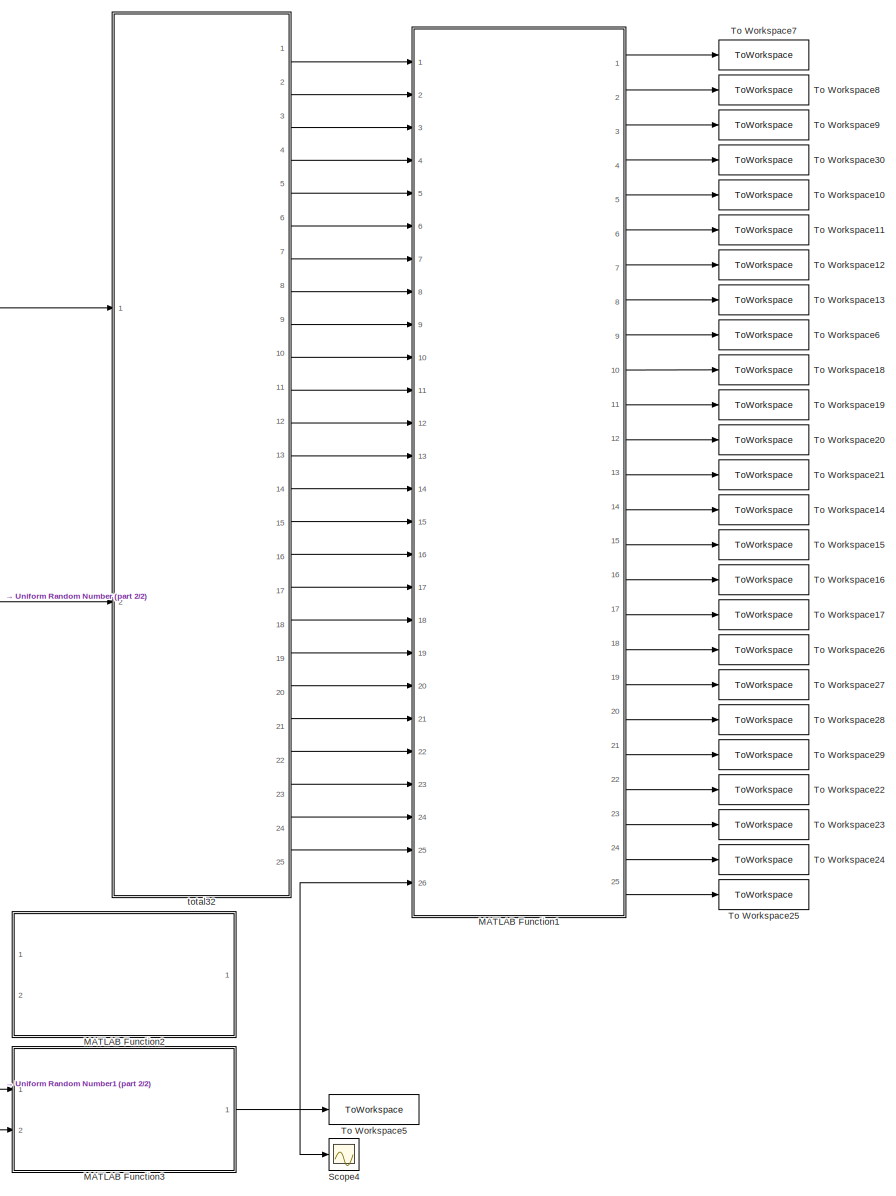
[diagram: root canvas - part 1/2, center side, full height]
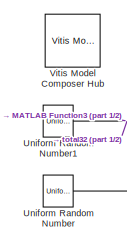
[diagram: root canvas - part 2/2, middle left region]
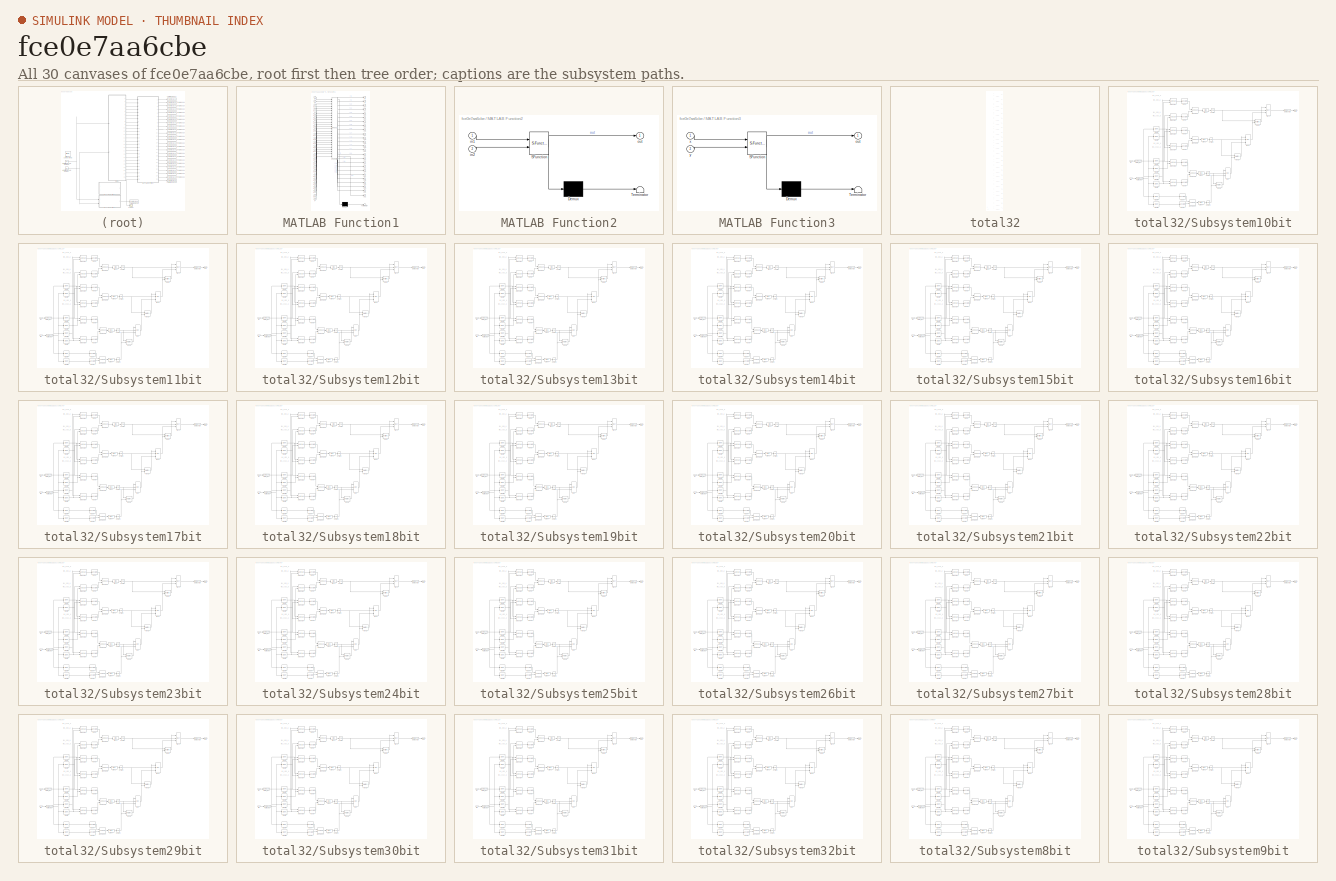
[diagram: thumbnail index - all 30 canvases of the model, root first then tree order]
MODEL slx_fce0e7aa6cbe
KIND model
CONFIG AbsTol = auto
CONFIG EnableMultiTasking = off
CONFIG FixedStep = auto
CONFIG MaxStep = auto
CONFIG MinStep = auto
CONFIG RelTol = 1e-3
CONFIG SampleTimeConstraint = Unconstrained
CONFIG SolverName = VariableStepAuto
CONFIG StartTime = 0.0
CONFIG StopTime = 99
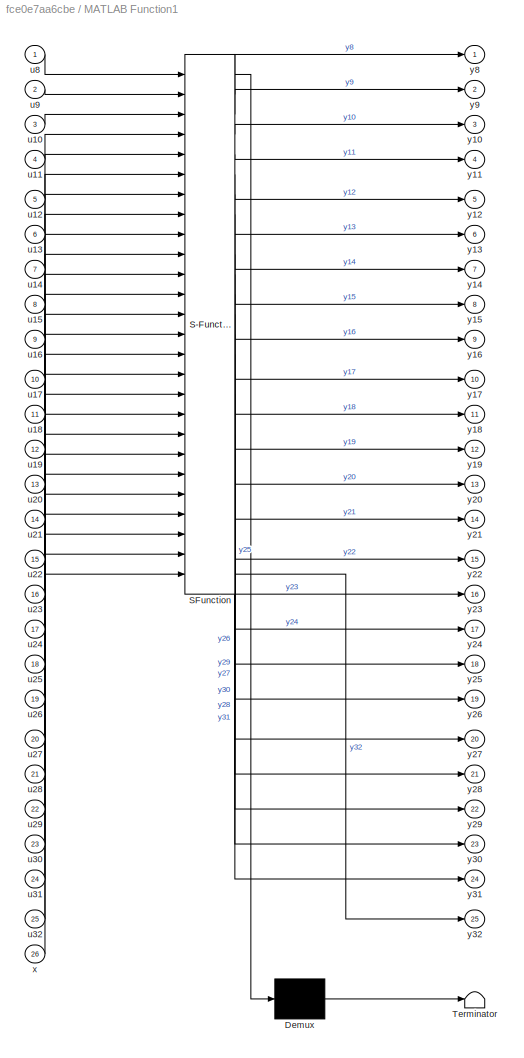
BLOCK [SubSystem] MATLAB Function1
  ErrorFcn = Stateflow.Translate.translate
  PermitHierarchicalResolution = ExplicitOnly
  Ports = [26, 25]
  RequestExecContextInheritance = off
  SFBlockType = MATLAB Function
  TreatAsAtomicUnit = on
BLOCK [Demux] MATLAB Function1/ Demux 
  Outputs = 1
  Ports = [1, 1]
BLOCK [S-Function] MATLAB Function1/ SFunction 
  EnableBusSupport = on
  FunctionName = sf_sfun
  PortCounts = [26 26]
  Ports = [26, 26]
  SFcnIsStateOwnerBlock = off
  SFunctionDeploymentMode = off
  Tag = Stateflow S-Function 1
BLOCK [Terminator] MATLAB Function1/ Terminator 
BLOCK [Inport] MATLAB Function1/u10
  Port = 3
BLOCK [Inport] MATLAB Function1/u11
  Port = 4
BLOCK [Inport] MATLAB Function1/u12
  Port = 5
BLOCK [Inport] MATLAB Function1/u13
  Port = 6
BLOCK [Inport] MATLAB Function1/u14
  Port = 7
BLOCK [Inport] MATLAB Function1/u15
  Port = 8
BLOCK [Inport] MATLAB Function1/u16
  Port = 9
BLOCK [Inport] MATLAB Function1/u17
  Port = 10
BLOCK [Inport] MATLAB Function1/u18
  Port = 11
BLOCK [Inport] MATLAB Function1/u19
  Port = 12
BLOCK [Inport] MATLAB Function1/u20
  Port = 13
BLOCK [Inport] MATLAB Function1/u21
  Port = 14
BLOCK [Inport] MATLAB Function1/u22
  Port = 15
BLOCK [Inport] MATLAB Function1/u23
  Port = 16
BLOCK [Inport] MATLAB Function1/u24
  Port = 17
BLOCK [Inport] MATLAB Function1/u25
  Port = 18
BLOCK [Inport] MATLAB Function1/u26
  Port = 19
BLOCK [Inport] MATLAB Function1/u27
  Port = 20
BLOCK [Inport] MATLAB Function1/u28
  Port = 21
BLOCK [Inport] MATLAB Function1/u29
  Port = 22
BLOCK [Inport] MATLAB Function1/u30
  Port = 23
BLOCK [Inport] MATLAB Function1/u31
  Port = 24
BLOCK [Inport] MATLAB Function1/u32
  Port = 25
BLOCK [Inport] MATLAB Function1/u8
BLOCK [Inport] MATLAB Function1/u9
  Port = 2
BLOCK [Inport] MATLAB Function1/x
  Port = 26
BLOCK [Outport] MATLAB Function1/y10
  Port = 3
BLOCK [Outport] MATLAB Function1/y11
  Port = 4
BLOCK [Outport] MATLAB Function1/y12
  Port = 5
BLOCK [Outport] MATLAB Function1/y13
  Port = 6
BLOCK [Outport] MATLAB Function1/y14
  Port = 7
BLOCK [Outport] MATLAB Function1/y15
  Port = 8
BLOCK [Outport] MATLAB Function1/y16
  Port = 9
BLOCK [Outport] MATLAB Function1/y17
  Port = 10
BLOCK [Outport] MATLAB Function1/y18
  Port = 11
BLOCK [Outport] MATLAB Function1/y19
  Port = 12
BLOCK [Outport] MATLAB Function1/y20
  Port = 13
BLOCK [Outport] MATLAB Function1/y21
  Port = 14
BLOCK [Outport] MATLAB Function1/y22
  Port = 15
BLOCK [Outport] MATLAB Function1/y23
  Port = 16
BLOCK [Outport] MATLAB Function1/y24
  Port = 17
BLOCK [Outport] MATLAB Function1/y25
  Port = 18
BLOCK [Outport] MATLAB Function1/y26
  Port = 19
BLOCK [Outport] MATLAB Function1/y27
  Port = 20
BLOCK [Outport] MATLAB Function1/y28
  Port = 21
BLOCK [Outport] MATLAB Function1/y29
  Port = 22
BLOCK [Outport] MATLAB Function1/y30
  Port = 23
BLOCK [Outport] MATLAB Function1/y31
  Port = 24
BLOCK [Outport] MATLAB Function1/y32
  Port = 25
BLOCK [Outport] MATLAB Function1/y8
BLOCK [Outport] MATLAB Function1/y9
  Port = 2
BLOCK [SubSystem] MATLAB Function2
  Commented = on
  ErrorFcn = Stateflow.Translate.translate
  PermitHierarchicalResolution = ExplicitOnly
  Ports = [2, 1]
  RequestExecContextInheritance = off
  SFBlockType = MATLAB Function
  TreatAsAtomicUnit = on
BLOCK [Demux] MATLAB Function2/ Demux 
  Outputs = 1
  Ports = [1, 1]
BLOCK [S-Function] MATLAB Function2/ SFunction 
  EnableBusSupport = on
  FunctionName = sf_sfun
  PortCounts = [2 2]
  Ports = [2, 2]
  SFcnIsStateOwnerBlock = off
  SFunctionDeploymentMode = off
  Tag = Stateflow S-Function 10
BLOCK [Terminator] MATLAB Function2/ Terminator 
BLOCK [Inport] MATLAB Function2/in1
BLOCK [Inport] MATLAB Function2/in2
  Port = 2
BLOCK [Outport] MATLAB Function2/out
BLOCK [SubSystem] MATLAB Function3
  ErrorFcn = Stateflow.Translate.translate
  PermitHierarchicalResolution = ExplicitOnly
  Ports = [2, 1]
  RequestExecContextInheritance = off
  SFBlockType = MATLAB Function
  TreatAsAtomicUnit = on
BLOCK [Demux] MATLAB Function3/ Demux 
  Outputs = 1
  Ports = [1, 1]
BLOCK [S-Function] MATLAB Function3/ SFunction 
  EnableBusSupport = on
  FunctionName = sf_sfun
  PortCounts = [2 2]
  Ports = [2, 2]
  SFcnIsStateOwnerBlock = off
  SFunctionDeploymentMode = off
  Tag = Stateflow S-Function 4
BLOCK [Terminator] MATLAB Function3/ Terminator 
BLOCK [Outport] MATLAB Function3/out
BLOCK [Inport] MATLAB Function3/x
BLOCK [Inport] MATLAB Function3/y
  Port = 2
BLOCK [Scope] Scope4
  Floating = off
  NumInputPorts = 1
  Ports = [1]
  ScopeSpecificationString = Simulink.scopes.TimeScopeBlockCfg('CurrentConfiguration', extmgr.ConfigurationSet(extmgr.Configuration('Core','General UI',true),extmgr.Configuration('Core','Source UI',true),extmgr.Configuration('Sources','WiredSimulink',true),extmgr.Configuration('Visuals','Time Domain',true,'SerializedDisplays',{struct('MinYLimReal','-0.15485','MaxYLimReal','1.39364','YLabelReal','','MinYLimMag','0.00000','MaxY...<+1409ch>
BLOCK [ToWorkspace] To Workspace10
  FixptAsFi = on
  MaxDataPoints = inf
  Ports = [1]
  SampleTime = -1
  SaveFormat = Structure With Time
  VariableName = out12
BLOCK [ToWorkspace] To Workspace11
  FixptAsFi = on
  MaxDataPoints = inf
  Ports = [1]
  SampleTime = -1
  SaveFormat = Structure With Time
  VariableName = out13
BLOCK [ToWorkspace] To Workspace12
  FixptAsFi = on
  MaxDataPoints = inf
  Ports = [1]
  SampleTime = -1
  SaveFormat = Structure With Time
  VariableName = out14
BLOCK [ToWorkspace] To Workspace13
  FixptAsFi = on
  MaxDataPoints = inf
  Ports = [1]
  SampleTime = -1
  SaveFormat = Structure With Time
  VariableName = out15
BLOCK [ToWorkspace] To Workspace14
  FixptAsFi = on
  MaxDataPoints = inf
  Ports = [1]
  SampleTime = -1
  SaveFormat = Structure With Time
  VariableName = out21
BLOCK [ToWorkspace] To Workspace15
  FixptAsFi = on
  MaxDataPoints = inf
  Ports = [1]
  SampleTime = -1
  SaveFormat = Structure With Time
  VariableName = out22
BLOCK [ToWorkspace] To Workspace16
  FixptAsFi = on
  MaxDataPoints = inf
  Ports = [1]
  SampleTime = -1
  SaveFormat = Structure With Time
  VariableName = out23
BLOCK [ToWorkspace] To Workspace17
  FixptAsFi = on
  MaxDataPoints = inf
  Ports = [1]
  SampleTime = -1
  SaveFormat = Structure With Time
  VariableName = out24
BLOCK [ToWorkspace] To Workspace18
  FixptAsFi = on
  MaxDataPoints = inf
  Ports = [1]
  SampleTime = -1
  SaveFormat = Structure With Time
  VariableName = out17
BLOCK [ToWorkspace] To Workspace19
  FixptAsFi = on
  MaxDataPoints = inf
  Ports = [1]
  SampleTime = -1
  SaveFormat = Structure With Time
  VariableName = out18
BLOCK [ToWorkspace] To Workspace20
  FixptAsFi = on
  MaxDataPoints = inf
  Ports = [1]
  SampleTime = -1
  SaveFormat = Structure With Time
  VariableName = out19
BLOCK [ToWorkspace] To Workspace21
  FixptAsFi = on
  MaxDataPoints = inf
  Ports = [1]
  SampleTime = -1
  SaveFormat = Structure With Time
  VariableName = out20
BLOCK [ToWorkspace] To Workspace22
  FixptAsFi = on
  MaxDataPoints = inf
  Ports = [1]
  SampleTime = -1
  SaveFormat = Structure With Time
  VariableName = out29
BLOCK [ToWorkspace] To Workspace23
  FixptAsFi = on
  MaxDataPoints = inf
  Ports = [1]
  SampleTime = -1
  SaveFormat = Structure With Time
  VariableName = out30
BLOCK [ToWorkspace] To Workspace24
  FixptAsFi = on
  MaxDataPoints = inf
  Ports = [1]
  SampleTime = -1
  SaveFormat = Structure With Time
  VariableName = out31
BLOCK [ToWorkspace] To Workspace25
  FixptAsFi = on
  MaxDataPoints = inf
  Ports = [1]
  SampleTime = -1
  SaveFormat = Structure With Time
  VariableName = out32
BLOCK [ToWorkspace] To Workspace26
  FixptAsFi = on
  MaxDataPoints = inf
  Ports = [1]
  SampleTime = -1
  SaveFormat = Structure With Time
  VariableName = out25
BLOCK [ToWorkspace] To Workspace27
  FixptAsFi = on
  MaxDataPoints = inf
  Ports = [1]
  SampleTime = -1
  SaveFormat = Structure With Time
  VariableName = out26
BLOCK [ToWorkspace] To Workspace28
  FixptAsFi = on
  MaxDataPoints = inf
  Ports = [1]
  SampleTime = -1
  SaveFormat = Structure With Time
  VariableName = out27
BLOCK [ToWorkspace] To Workspace29
  FixptAsFi = on
  MaxDataPoints = inf
  Ports = [1]
  SampleTime = -1
  SaveFormat = Structure With Time
  VariableName = out28
BLOCK [ToWorkspace] To Workspace30
  FixptAsFi = on
  MaxDataPoints = inf
  Ports = [1]
  SampleTime = -1
  SaveFormat = Structure With Time
  VariableName = out11
BLOCK [ToWorkspace] To Workspace5
  FixptAsFi = on
  MaxDataPoints = inf
  Ports = [1]
  SampleTime = -1
  SaveFormat = Structure With Time
  VariableName = outGOLD
BLOCK [ToWorkspace] To Workspace6
  FixptAsFi = on
  MaxDataPoints = inf
  Ports = [1]
  SampleTime = -1
  SaveFormat = Structure With Time
  VariableName = out16
BLOCK [ToWorkspace] To Workspace7
  FixptAsFi = on
  MaxDataPoints = inf
  Ports = [1]
  SampleTime = -1
  SaveFormat = Structure With Time
  VariableName = out8
BLOCK [ToWorkspace] To Workspace8
  FixptAsFi = on
  MaxDataPoints = inf
  Ports = [1]
  SampleTime = -1
  SaveFormat = Structure With Time
  VariableName = out9
BLOCK [ToWorkspace] To Workspace9
  FixptAsFi = on
  MaxDataPoints = inf
  Ports = [1]
  SampleTime = -1
  SaveFormat = Structure With Time
  VariableName = out10
BLOCK [UniformRandomNumber] Uniform Random Number
  Maximum = 0.9
  Minimum = -0.9
  SampleTime = 1
BLOCK [UniformRandomNumber] Uniform Random Number1
  Maximum = 0.9
  Minimum = -0.9
  SampleTime = 1
  Seed = 1
BLOCK [Reference] Vitis Model Composer Hub  REF=vmcUtilities/Vitis Model Composer Hub
  Ports = []
  SourceBlock = vmcUtilities/Vitis Model Composer Hub
  SourceType = Implementation
  Tag = genX
  UserDataPersistent = on
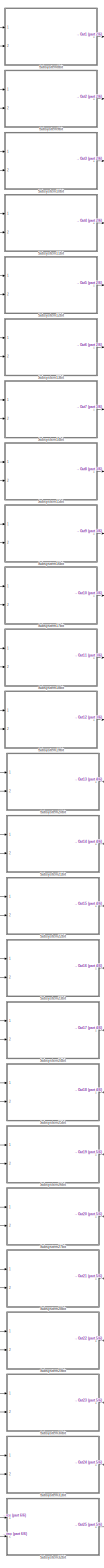
[diagram: total32 - part 1/6, center side, full height]
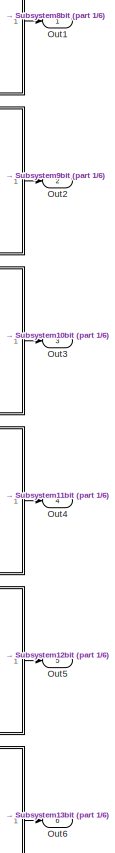
[diagram: total32 - part 2/6, top right region]
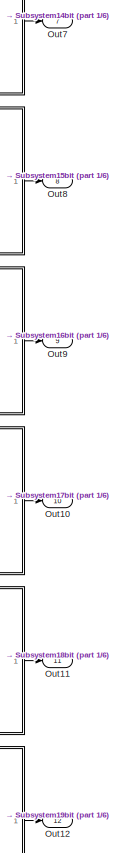
[diagram: total32 - part 3/6, middle right region]
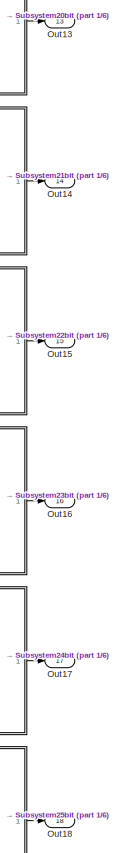
[diagram: total32 - part 4/6, middle right region]
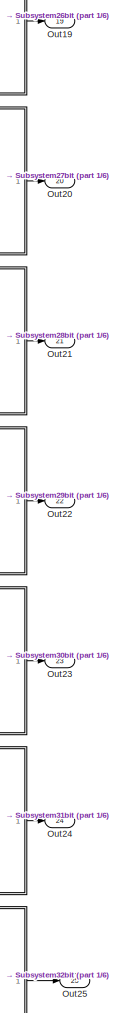
[diagram: total32 - part 5/6, bottom right region]
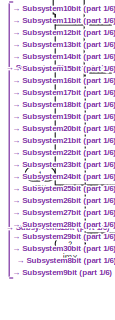
[diagram: total32 - part 6/6, bottom left region]
BLOCK [SubSystem] total32
  Ports = [2, 25]
  RequestExecContextInheritance = off
BLOCK [Outport] total32/Out1
BLOCK [Outport] total32/Out10
  Port = 10
BLOCK [Outport] total32/Out11
  Port = 11
BLOCK [Outport] total32/Out12
  Port = 12
BLOCK [Outport] total32/Out13
  Port = 13
BLOCK [Outport] total32/Out14
  Port = 14
BLOCK [Outport] total32/Out15
  Port = 15
BLOCK [Outport] total32/Out16
  Port = 16
BLOCK [Outport] total32/Out17
  Port = 17
BLOCK [Outport] total32/Out18
  Port = 18
BLOCK [Outport] total32/Out19
  Port = 19
BLOCK [Outport] total32/Out2
  Port = 2
BLOCK [Outport] total32/Out20
  Port = 20
BLOCK [Outport] total32/Out21
  Port = 21
BLOCK [Outport] total32/Out22
  Port = 22
BLOCK [Outport] total32/Out23
  Port = 23
BLOCK [Outport] total32/Out24
  Port = 24
BLOCK [Outport] total32/Out25
  Port = 25
BLOCK [Outport] total32/Out3
  Port = 3
BLOCK [Outport] total32/Out4
  Port = 4
BLOCK [Outport] total32/Out5
  Port = 5
BLOCK [Outport] total32/Out6
  Port = 6
BLOCK [Outport] total32/Out7
  Port = 7
BLOCK [Outport] total32/Out8
  Port = 8
BLOCK [Outport] total32/Out9
  Port = 9
BLOCK [SubSystem] total32/Subsystem10bit
  Commented = on
  Ports = [2, 1]
  RequestExecContextInheritance = off
BLOCK [Reference] total32/Subsystem10bit/CMult1  REF=hdlBasic/CMult
  Ports = [1, 1]
  SourceBlock = hdlBasic/CMult
  SourceType = Constant Multiplier Block
BLOCK [Reference] total32/Subsystem10bit/CMult2  REF=hdlBasic/CMult
  Ports = [1, 1]
  SourceBlock = hdlBasic/CMult
  SourceType = Constant Multiplier Block
BLOCK [Reference] total32/Subsystem10bit/CMult3  REF=hdlBasic/CMult
  Ports = [1, 1]
  SourceBlock = hdlBasic/CMult
  SourceType = Constant Multiplier Block
BLOCK [Reference] total32/Subsystem10bit/CMult4  REF=hdlBasic/CMult
  Ports = [1, 1]
  SourceBlock = hdlBasic/CMult
  SourceType = Constant Multiplier Block
BLOCK [Reference] total32/Subsystem10bit/CMult5  REF=hdlBasic/CMult
  Ports = [1, 1]
  SourceBlock = hdlBasic/CMult
  SourceType = Constant Multiplier Block
BLOCK [Reference] total32/Subsystem10bit/CMult6  REF=hdlBasic/CMult
  Ports = [1, 1]
  SourceBlock = hdlBasic/CMult
  SourceType = Constant Multiplier Block
BLOCK [Reference] total32/Subsystem10bit/CMult7  REF=hdlBasic/CMult
  Ports = [1, 1]
  SourceBlock = hdlBasic/CMult
  SourceType = Constant Multiplier Block
BLOCK [Reference] total32/Subsystem10bit/CMult8  REF=hdlBasic/CMult
  Ports = [1, 1]
  SourceBlock = hdlBasic/CMult
  SourceType = Constant Multiplier Block
BLOCK [Reference] total32/Subsystem10bit/Gate_In1  REF=hdlBasic/Gateway In
  Ports = [1, 1]
  SourceBlock = hdlBasic/Gateway In
  SourceType = Gateway In Block
BLOCK [Reference] total32/Subsystem10bit/Gate_In2  REF=hdlBasic/Gateway In
  Ports = [1, 1]
  SourceBlock = hdlBasic/Gateway In
  SourceType = Gateway In Block
BLOCK [Reference] total32/Subsystem10bit/Gate_out1  REF=hdlBasic/Gateway Out
  Ports = [1, 1]
  SourceBlock = hdlBasic/Gateway Out
  SourceType = Gateway Out Block
BLOCK [Reference] total32/Subsystem10bit/Mux  REF=hdlBasic/Mux
  Ports = [3, 1]
  SourceBlock = hdlBasic/Mux
  SourceType = Bus Multiplexer Block
BLOCK [Reference] total32/Subsystem10bit/Mux1  REF=hdlBasic/Mux
  Ports = [3, 1]
  SourceBlock = hdlBasic/Mux
  SourceType = Bus Multiplexer Block
BLOCK [Reference] total32/Subsystem10bit/Mux2  REF=hdlBasic/Mux
  Ports = [3, 1]
  SourceBlock = hdlBasic/Mux
  SourceType = Bus Multiplexer Block
BLOCK [Outport] total32/Subsystem10bit/Out1
BLOCK [Reference] total32/Subsystem10bit/Scale1  REF=hdlBasic/Scale
  Ports = [1, 1]
  SourceBlock = hdlBasic/Scale
  SourceType = Input Scaler Block
BLOCK [Reference] total32/Subsystem10bit/Scale2  REF=hdlBasic/Scale
  Ports = [1, 1]
  SourceBlock = hdlBasic/Scale
  SourceType = Input Scaler Block
BLOCK [Reference] total32/Subsystem10bit/Scale3  REF=hdlBasic/Scale
  Ports = [1, 1]
  SourceBlock = hdlBasic/Scale
  SourceType = Input Scaler Block
BLOCK [Reference] total32/Subsystem10bit/Scale4  REF=hdlBasic/Scale
  Ports = [1, 1]
  SourceBlock = hdlBasic/Scale
  SourceType = Input Scaler Block
BLOCK [Reference] total32/Subsystem10bit/Slice1  REF=hdlBasic/Slice
  Ports = [1, 1]
  SourceBlock = hdlBasic/Slice
  SourceType = Bit Slice Extractor Block
BLOCK [Reference] total32/Subsystem10bit/Slice2  REF=hdlBasic/Slice
  Ports = [1, 1]
  SourceBlock = hdlBasic/Slice
  SourceType = Bit Slice Extractor Block
BLOCK [Reference] total32/Subsystem10bit/Slice3  REF=hdlBasic/Slice
  Ports = [1, 1]
  SourceBlock = hdlBasic/Slice
  SourceType = Bit Slice Extractor Block
BLOCK [Reference] total32/Subsystem10bit/Slice4  REF=hdlBasic/Slice
  Ports = [1, 1]
  SourceBlock = hdlBasic/Slice
  SourceType = Bit Slice Extractor Block
BLOCK [Reference] total32/Subsystem10bit/abs1  REF=hdlBasic/Absolute
  Ports = [1, 1]
  SourceBlock = hdlBasic/Absolute
  SourceType = Absolute Block
BLOCK [Reference] total32/Subsystem10bit/abs2  REF=hdlBasic/Absolute
  Ports = [1, 1]
  SourceBlock = hdlBasic/Absolute
  SourceType = Absolute Block
BLOCK [Reference] total32/Subsystem10bit/abs3  REF=hdlBasic/Absolute
  Ports = [1, 1]
  SourceBlock = hdlBasic/Absolute
  SourceType = Absolute Block
BLOCK [Reference] total32/Subsystem10bit/abs4  REF=hdlBasic/Absolute
  Ports = [1, 1]
  SourceBlock = hdlBasic/Absolute
  SourceType = Absolute Block
BLOCK [Reference] total32/Subsystem10bit/abs5  REF=hdlBasic/Absolute
  Ports = [1, 1]
  SourceBlock = hdlBasic/Absolute
  SourceType = Absolute Block
BLOCK [Reference] total32/Subsystem10bit/abs6  REF=hdlBasic/Absolute
  Ports = [1, 1]
  SourceBlock = hdlBasic/Absolute
  SourceType = Absolute Block
BLOCK [Reference] total32/Subsystem10bit/abs7  REF=hdlBasic/Absolute
  Ports = [1, 1]
  SourceBlock = hdlBasic/Absolute
  SourceType = Absolute Block
BLOCK [Reference] total32/Subsystem10bit/abs8  REF=hdlBasic/Absolute
  Ports = [1, 1]
  SourceBlock = hdlBasic/Absolute
  SourceType = Absolute Block
BLOCK [Reference] total32/Subsystem10bit/addsub1  REF=hdlBasic/AddSub
  Ports = [2, 1]
  SourceBlock = hdlBasic/AddSub
  SourceType = Adder/Subtracter Block
BLOCK [Reference] total32/Subsystem10bit/addsub10  REF=hdlBasic/AddSub
  Ports = [2, 1]
  SourceBlock = hdlBasic/AddSub
  SourceType = Adder/Subtracter Block
BLOCK [Reference] total32/Subsystem10bit/addsub2  REF=hdlBasic/AddSub
  Ports = [2, 1]
  SourceBlock = hdlBasic/AddSub
  SourceType = Adder/Subtracter Block
BLOCK [Reference] total32/Subsystem10bit/addsub3  REF=hdlBasic/AddSub
  Ports = [2, 1]
  SourceBlock = hdlBasic/AddSub
  SourceType = Adder/Subtracter Block
BLOCK [Reference] total32/Subsystem10bit/addsub4  REF=hdlBasic/AddSub
  Ports = [2, 1]
  SourceBlock = hdlBasic/AddSub
  SourceType = Adder/Subtracter Block
BLOCK [Reference] total32/Subsystem10bit/addsub5  REF=hdlBasic/AddSub
  Ports = [2, 1]
  SourceBlock = hdlBasic/AddSub
  SourceType = Adder/Subtracter Block
BLOCK [Reference] total32/Subsystem10bit/addsub6  REF=hdlBasic/AddSub
  Ports = [2, 1]
  SourceBlock = hdlBasic/AddSub
  SourceType = Adder/Subtracter Block
BLOCK [Reference] total32/Subsystem10bit/addsub7  REF=hdlBasic/AddSub
  Ports = [2, 1]
  SourceBlock = hdlBasic/AddSub
  SourceType = Adder/Subtracter Block
BLOCK [Reference] total32/Subsystem10bit/addsub8  REF=hdlBasic/AddSub
  Ports = [2, 1]
  SourceBlock = hdlBasic/AddSub
  SourceType = Adder/Subtracter Block
BLOCK [Reference] total32/Subsystem10bit/addsub9  REF=hdlBasic/AddSub
  Ports = [2, 1]
  SourceBlock = hdlBasic/AddSub
  SourceType = Adder/Subtracter Block
BLOCK [Reference] total32/Subsystem10bit/bool1  REF=hdlBasic/Relational
  Ports = [2, 1]
  SourceBlock = hdlBasic/Relational
  SourceType = Arithmetic Relational Operator Block
BLOCK [Reference] total32/Subsystem10bit/bool2  REF=hdlBasic/Relational
  Ports = [2, 1]
  SourceBlock = hdlBasic/Relational
  SourceType = Arithmetic Relational Operator Block
BLOCK [Reference] total32/Subsystem10bit/bool3  REF=hdlBasic/Relational
  Ports = [2, 1]
  SourceBlock = hdlBasic/Relational
  SourceType = Arithmetic Relational Operator Block
BLOCK [Inport] total32/Subsystem10bit/imx
  Port = 2
BLOCK [Inport] total32/Subsystem10bit/rex
BLOCK [SubSystem] total32/Subsystem11bit
  Commented = on
  Ports = [2, 1]
  RequestExecContextInheritance = off
BLOCK [Reference] total32/Subsystem11bit/CMult1  REF=hdlBasic/CMult
  Ports = [1, 1]
  SourceBlock = hdlBasic/CMult
  SourceType = Constant Multiplier Block
BLOCK [Reference] total32/Subsystem11bit/CMult2  REF=hdlBasic/CMult
  Ports = [1, 1]
  SourceBlock = hdlBasic/CMult
  SourceType = Constant Multiplier Block
BLOCK [Reference] total32/Subsystem11bit/CMult3  REF=hdlBasic/CMult
  Ports = [1, 1]
  SourceBlock = hdlBasic/CMult
  SourceType = Constant Multiplier Block
BLOCK [Reference] total32/Subsystem11bit/CMult4  REF=hdlBasic/CMult
  Ports = [1, 1]
  SourceBlock = hdlBasic/CMult
  SourceType = Constant Multiplier Block
BLOCK [Reference] total32/Subsystem11bit/CMult5  REF=hdlBasic/CMult
  Ports = [1, 1]
  SourceBlock = hdlBasic/CMult
  SourceType = Constant Multiplier Block
BLOCK [Reference] total32/Subsystem11bit/CMult6  REF=hdlBasic/CMult
  Ports = [1, 1]
  SourceBlock = hdlBasic/CMult
  SourceType = Constant Multiplier Block
BLOCK [Reference] total32/Subsystem11bit/CMult7  REF=hdlBasic/CMult
  Ports = [1, 1]
  SourceBlock = hdlBasic/CMult
  SourceType = Constant Multiplier Block
BLOCK [Reference] total32/Subsystem11bit/CMult8  REF=hdlBasic/CMult
  Ports = [1, 1]
  SourceBlock = hdlBasic/CMult
  SourceType = Constant Multiplier Block
BLOCK [Reference] total32/Subsystem11bit/Gate_In1  REF=hdlBasic/Gateway In
  Ports = [1, 1]
  SourceBlock = hdlBasic/Gateway In
  SourceType = Gateway In Block
BLOCK [Reference] total32/Subsystem11bit/Gate_In2  REF=hdlBasic/Gateway In
  Ports = [1, 1]
  SourceBlock = hdlBasic/Gateway In
  SourceType = Gateway In Block
BLOCK [Reference] total32/Subsystem11bit/Gate_out1  REF=hdlBasic/Gateway Out
  Ports = [1, 1]
  SourceBlock = hdlBasic/Gateway Out
  SourceType = Gateway Out Block
BLOCK [Reference] total32/Subsystem11bit/Mux  REF=hdlBasic/Mux
  Ports = [3, 1]
  SourceBlock = hdlBasic/Mux
  SourceType = Bus Multiplexer Block
BLOCK [Reference] total32/Subsystem11bit/Mux1  REF=hdlBasic/Mux
  Ports = [3, 1]
  SourceBlock = hdlBasic/Mux
  SourceType = Bus Multiplexer Block
BLOCK [Reference] total32/Subsystem11bit/Mux2  REF=hdlBasic/Mux
  Ports = [3, 1]
  SourceBlock = hdlBasic/Mux
  SourceType = Bus Multiplexer Block
BLOCK [Outport] total32/Subsystem11bit/Out1
BLOCK [Reference] total32/Subsystem11bit/Scale1  REF=hdlBasic/Scale
  Ports = [1, 1]
  SourceBlock = hdlBasic/Scale
  SourceType = Input Scaler Block
BLOCK [Reference] total32/Subsystem11bit/Scale2  REF=hdlBasic/Scale
  Ports = [1, 1]
  SourceBlock = hdlBasic/Scale
  SourceType = Input Scaler Block
BLOCK [Reference] total32/Subsystem11bit/Scale3  REF=hdlBasic/Scale
  Ports = [1, 1]
  SourceBlock = hdlBasic/Scale
  SourceType = Input Scaler Block
BLOCK [Reference] total32/Subsystem11bit/Scale4  REF=hdlBasic/Scale
  Ports = [1, 1]
  SourceBlock = hdlBasic/Scale
  SourceType = Input Scaler Block
BLOCK [Reference] total32/Subsystem11bit/Slice1  REF=hdlBasic/Slice
  Ports = [1, 1]
  SourceBlock = hdlBasic/Slice
  SourceType = Bit Slice Extractor Block
BLOCK [Reference] total32/Subsystem11bit/Slice2  REF=hdlBasic/Slice
  Ports = [1, 1]
  SourceBlock = hdlBasic/Slice
  SourceType = Bit Slice Extractor Block
BLOCK [Reference] total32/Subsystem11bit/Slice3  REF=hdlBasic/Slice
  Ports = [1, 1]
  SourceBlock = hdlBasic/Slice
  SourceType = Bit Slice Extractor Block
BLOCK [Reference] total32/Subsystem11bit/Slice4  REF=hdlBasic/Slice
  Ports = [1, 1]
  SourceBlock = hdlBasic/Slice
  SourceType = Bit Slice Extractor Block
BLOCK [Reference] total32/Subsystem11bit/abs1  REF=hdlBasic/Absolute
  Ports = [1, 1]
  SourceBlock = hdlBasic/Absolute
  SourceType = Absolute Block
BLOCK [Reference] total32/Subsystem11bit/abs2  REF=hdlBasic/Absolute
  Ports = [1, 1]
  SourceBlock = hdlBasic/Absolute
  SourceType = Absolute Block
BLOCK [Reference] total32/Subsystem11bit/abs3  REF=hdlBasic/Absolute
  Ports = [1, 1]
  SourceBlock = hdlBasic/Absolute
  SourceType = Absolute Block
BLOCK [Reference] total32/Subsystem11bit/abs4  REF=hdlBasic/Absolute
  Ports = [1, 1]
  SourceBlock = hdlBasic/Absolute
  SourceType = Absolute Block
BLOCK [Reference] total32/Subsystem11bit/abs5  REF=hdlBasic/Absolute
  Ports = [1, 1]
  SourceBlock = hdlBasic/Absolute
  SourceType = Absolute Block
BLOCK [Reference] total32/Subsystem11bit/abs6  REF=hdlBasic/Absolute
  Ports = [1, 1]
  SourceBlock = hdlBasic/Absolute
  SourceType = Absolute Block
BLOCK [Reference] total32/Subsystem11bit/abs7  REF=hdlBasic/Absolute
  Ports = [1, 1]
  SourceBlock = hdlBasic/Absolute
  SourceType = Absolute Block
BLOCK [Reference] total32/Subsystem11bit/abs8  REF=hdlBasic/Absolute
  Ports = [1, 1]
  SourceBlock = hdlBasic/Absolute
  SourceType = Absolute Block
BLOCK [Reference] total32/Subsystem11bit/addsub1  REF=hdlBasic/AddSub
  Ports = [2, 1]
  SourceBlock = hdlBasic/AddSub
  SourceType = Adder/Subtracter Block
BLOCK [Reference] total32/Subsystem11bit/addsub10  REF=hdlBasic/AddSub
  Ports = [2, 1]
  SourceBlock = hdlBasic/AddSub
  SourceType = Adder/Subtracter Block
BLOCK [Reference] total32/Subsystem11bit/addsub2  REF=hdlBasic/AddSub
  Ports = [2, 1]
  SourceBlock = hdlBasic/AddSub
  SourceType = Adder/Subtracter Block
BLOCK [Reference] total32/Subsystem11bit/addsub3  REF=hdlBasic/AddSub
  Ports = [2, 1]
  SourceBlock = hdlBasic/AddSub
  SourceType = Adder/Subtracter Block
BLOCK [Reference] total32/Subsystem11bit/addsub4  REF=hdlBasic/AddSub
  Ports = [2, 1]
  SourceBlock = hdlBasic/AddSub
  SourceType = Adder/Subtracter Block
BLOCK [Reference] total32/Subsystem11bit/addsub5  REF=hdlBasic/AddSub
  Ports = [2, 1]
  SourceBlock = hdlBasic/AddSub
  SourceType = Adder/Subtracter Block
BLOCK [Reference] total32/Subsystem11bit/addsub6  REF=hdlBasic/AddSub
  Ports = [2, 1]
  SourceBlock = hdlBasic/AddSub
  SourceType = Adder/Subtracter Block
BLOCK [Reference] total32/Subsystem11bit/addsub7  REF=hdlBasic/AddSub
  Ports = [2, 1]
  SourceBlock = hdlBasic/AddSub
  SourceType = Adder/Subtracter Block
BLOCK [Reference] total32/Subsystem11bit/addsub8  REF=hdlBasic/AddSub
  Ports = [2, 1]
  SourceBlock = hdlBasic/AddSub
  SourceType = Adder/Subtracter Block
BLOCK [Reference] total32/Subsystem11bit/addsub9  REF=hdlBasic/AddSub
  Ports = [2, 1]
  SourceBlock = hdlBasic/AddSub
  SourceType = Adder/Subtracter Block
BLOCK [Reference] total32/Subsystem11bit/bool1  REF=hdlBasic/Relational
  Ports = [2, 1]
  SourceBlock = hdlBasic/Relational
  SourceType = Arithmetic Relational Operator Block
BLOCK [Reference] total32/Subsystem11bit/bool2  REF=hdlBasic/Relational
  Ports = [2, 1]
  SourceBlock = hdlBasic/Relational
  SourceType = Arithmetic Relational Operator Block
BLOCK [Reference] total32/Subsystem11bit/bool3  REF=hdlBasic/Relational
  Ports = [2, 1]
  SourceBlock = hdlBasic/Relational
  SourceType = Arithmetic Relational Operator Block
BLOCK [Inport] total32/Subsystem11bit/imx
  Port = 2
BLOCK [Inport] total32/Subsystem11bit/rex
BLOCK [SubSystem] total32/Subsystem12bit
  Commented = on
  Ports = [2, 1]
  RequestExecContextInheritance = off
BLOCK [Reference] total32/Subsystem12bit/CMult1  REF=hdlBasic/CMult
  Ports = [1, 1]
  SourceBlock = hdlBasic/CMult
  SourceType = Constant Multiplier Block
BLOCK [Reference] total32/Subsystem12bit/CMult2  REF=hdlBasic/CMult
  Ports = [1, 1]
  SourceBlock = hdlBasic/CMult
  SourceType = Constant Multiplier Block
BLOCK [Reference] total32/Subsystem12bit/CMult3  REF=hdlBasic/CMult
  Ports = [1, 1]
  SourceBlock = hdlBasic/CMult
  SourceType = Constant Multiplier Block
BLOCK [Reference] total32/Subsystem12bit/CMult4  REF=hdlBasic/CMult
  Ports = [1, 1]
  SourceBlock = hdlBasic/CMult
  SourceType = Constant Multiplier Block
BLOCK [Reference] total32/Subsystem12bit/CMult5  REF=hdlBasic/CMult
  Ports = [1, 1]
  SourceBlock = hdlBasic/CMult
  SourceType = Constant Multiplier Block
BLOCK [Reference] total32/Subsystem12bit/CMult6  REF=hdlBasic/CMult
  Ports = [1, 1]
  SourceBlock = hdlBasic/CMult
  SourceType = Constant Multiplier Block
BLOCK [Reference] total32/Subsystem12bit/CMult7  REF=hdlBasic/CMult
  Ports = [1, 1]
  SourceBlock = hdlBasic/CMult
  SourceType = Constant Multiplier Block
BLOCK [Reference] total32/Subsystem12bit/CMult8  REF=hdlBasic/CMult
  Ports = [1, 1]
  SourceBlock = hdlBasic/CMult
  SourceType = Constant Multiplier Block
BLOCK [Reference] total32/Subsystem12bit/Gate_In1  REF=hdlBasic/Gateway In
  Ports = [1, 1]
  SourceBlock = hdlBasic/Gateway In
  SourceType = Gateway In Block
BLOCK [Reference] total32/Subsystem12bit/Gate_In2  REF=hdlBasic/Gateway In
  Ports = [1, 1]
  SourceBlock = hdlBasic/Gateway In
  SourceType = Gateway In Block
BLOCK [Reference] total32/Subsystem12bit/Gate_out1  REF=hdlBasic/Gateway Out
  Ports = [1, 1]
  SourceBlock = hdlBasic/Gateway Out
  SourceType = Gateway Out Block
BLOCK [Reference] total32/Subsystem12bit/Mux  REF=hdlBasic/Mux
  Ports = [3, 1]
  SourceBlock = hdlBasic/Mux
  SourceType = Bus Multiplexer Block
BLOCK [Reference] total32/Subsystem12bit/Mux1  REF=hdlBasic/Mux
  Ports = [3, 1]
  SourceBlock = hdlBasic/Mux
  SourceType = Bus Multiplexer Block
BLOCK [Reference] total32/Subsystem12bit/Mux2  REF=hdlBasic/Mux
  Ports = [3, 1]
  SourceBlock = hdlBasic/Mux
  SourceType = Bus Multiplexer Block
BLOCK [Outport] total32/Subsystem12bit/Out1
BLOCK [Reference] total32/Subsystem12bit/Scale1  REF=hdlBasic/Scale
  Ports = [1, 1]
  SourceBlock = hdlBasic/Scale
  SourceType = Input Scaler Block
BLOCK [Reference] total32/Subsystem12bit/Scale2  REF=hdlBasic/Scale
  Ports = [1, 1]
  SourceBlock = hdlBasic/Scale
  SourceType = Input Scaler Block
BLOCK [Reference] total32/Subsystem12bit/Scale3  REF=hdlBasic/Scale
  Ports = [1, 1]
  SourceBlock = hdlBasic/Scale
  SourceType = Input Scaler Block
BLOCK [Reference] total32/Subsystem12bit/Scale4  REF=hdlBasic/Scale
  Ports = [1, 1]
  SourceBlock = hdlBasic/Scale
  SourceType = Input Scaler Block
BLOCK [Reference] total32/Subsystem12bit/Slice1  REF=hdlBasic/Slice
  Ports = [1, 1]
  SourceBlock = hdlBasic/Slice
  SourceType = Bit Slice Extractor Block
BLOCK [Reference] total32/Subsystem12bit/Slice2  REF=hdlBasic/Slice
  Ports = [1, 1]
  SourceBlock = hdlBasic/Slice
  SourceType = Bit Slice Extractor Block
BLOCK [Reference] total32/Subsystem12bit/Slice3  REF=hdlBasic/Slice
  Ports = [1, 1]
  SourceBlock = hdlBasic/Slice
  SourceType = Bit Slice Extractor Block
BLOCK [Reference] total32/Subsystem12bit/Slice4  REF=hdlBasic/Slice
  Ports = [1, 1]
  SourceBlock = hdlBasic/Slice
  SourceType = Bit Slice Extractor Block
BLOCK [Reference] total32/Subsystem12bit/abs1  REF=hdlBasic/Absolute
  Ports = [1, 1]
  SourceBlock = hdlBasic/Absolute
  SourceType = Absolute Block
BLOCK [Reference] total32/Subsystem12bit/abs2  REF=hdlBasic/Absolute
  Ports = [1, 1]
  SourceBlock = hdlBasic/Absolute
  SourceType = Absolute Block
BLOCK [Reference] total32/Subsystem12bit/abs3  REF=hdlBasic/Absolute
  Ports = [1, 1]
  SourceBlock = hdlBasic/Absolute
  SourceType = Absolute Block
BLOCK [Reference] total32/Subsystem12bit/abs4  REF=hdlBasic/Absolute
  Ports = [1, 1]
  SourceBlock = hdlBasic/Absolute
  SourceType = Absolute Block
BLOCK [Reference] total32/Subsystem12bit/abs5  REF=hdlBasic/Absolute
  Ports = [1, 1]
  SourceBlock = hdlBasic/Absolute
  SourceType = Absolute Block
BLOCK [Reference] total32/Subsystem12bit/abs6  REF=hdlBasic/Absolute
  Ports = [1, 1]
  SourceBlock = hdlBasic/Absolute
  SourceType = Absolute Block
BLOCK [Reference] total32/Subsystem12bit/abs7  REF=hdlBasic/Absolute
  Ports = [1, 1]
  SourceBlock = hdlBasic/Absolute
  SourceType = Absolute Block
BLOCK [Reference] total32/Subsystem12bit/abs8  REF=hdlBasic/Absolute
  Ports = [1, 1]
  SourceBlock = hdlBasic/Absolute
  SourceType = Absolute Block
BLOCK [Reference] total32/Subsystem12bit/addsub1  REF=hdlBasic/AddSub
  Ports = [2, 1]
  SourceBlock = hdlBasic/AddSub
  SourceType = Adder/Subtracter Block
BLOCK [Reference] total32/Subsystem12bit/addsub10  REF=hdlBasic/AddSub
  Ports = [2, 1]
  SourceBlock = hdlBasic/AddSub
  SourceType = Adder/Subtracter Block
BLOCK [Reference] total32/Subsystem12bit/addsub2  REF=hdlBasic/AddSub
  Ports = [2, 1]
  SourceBlock = hdlBasic/AddSub
  SourceType = Adder/Subtracter Block
BLOCK [Reference] total32/Subsystem12bit/addsub3  REF=hdlBasic/AddSub
  Ports = [2, 1]
  SourceBlock = hdlBasic/AddSub
  SourceType = Adder/Subtracter Block
BLOCK [Reference] total32/Subsystem12bit/addsub4  REF=hdlBasic/AddSub
  Ports = [2, 1]
  SourceBlock = hdlBasic/AddSub
  SourceType = Adder/Subtracter Block
BLOCK [Reference] total32/Subsystem12bit/addsub5  REF=hdlBasic/AddSub
  Ports = [2, 1]
  SourceBlock = hdlBasic/AddSub
  SourceType = Adder/Subtracter Block
BLOCK [Reference] total32/Subsystem12bit/addsub6  REF=hdlBasic/AddSub
  Ports = [2, 1]
  SourceBlock = hdlBasic/AddSub
  SourceType = Adder/Subtracter Block
BLOCK [Reference] total32/Subsystem12bit/addsub7  REF=hdlBasic/AddSub
  Ports = [2, 1]
  SourceBlock = hdlBasic/AddSub
  SourceType = Adder/Subtracter Block
BLOCK [Reference] total32/Subsystem12bit/addsub8  REF=hdlBasic/AddSub
  Ports = [2, 1]
  SourceBlock = hdlBasic/AddSub
  SourceType = Adder/Subtracter Block
BLOCK [Reference] total32/Subsystem12bit/addsub9  REF=hdlBasic/AddSub
  Ports = [2, 1]
  SourceBlock = hdlBasic/AddSub
  SourceType = Adder/Subtracter Block
BLOCK [Reference] total32/Subsystem12bit/bool1  REF=hdlBasic/Relational
  Ports = [2, 1]
  SourceBlock = hdlBasic/Relational
  SourceType = Arithmetic Relational Operator Block
BLOCK [Reference] total32/Subsystem12bit/bool2  REF=hdlBasic/Relational
  Ports = [2, 1]
  SourceBlock = hdlBasic/Relational
  SourceType = Arithmetic Relational Operator Block
BLOCK [Reference] total32/Subsystem12bit/bool3  REF=hdlBasic/Relational
  Ports = [2, 1]
  SourceBlock = hdlBasic/Relational
  SourceType = Arithmetic Relational Operator Block
BLOCK [Inport] total32/Subsystem12bit/imx
  Port = 2
BLOCK [Inport] total32/Subsystem12bit/rex
BLOCK [SubSystem] total32/Subsystem13bit
  Commented = on
  Ports = [2, 1]
  RequestExecContextInheritance = off
BLOCK [Reference] total32/Subsystem13bit/CMult1  REF=hdlBasic/CMult
  Ports = [1, 1]
  SourceBlock = hdlBasic/CMult
  SourceType = Constant Multiplier Block
BLOCK [Reference] total32/Subsystem13bit/CMult2  REF=hdlBasic/CMult
  Ports = [1, 1]
  SourceBlock = hdlBasic/CMult
  SourceType = Constant Multiplier Block
BLOCK [Reference] total32/Subsystem13bit/CMult3  REF=hdlBasic/CMult
  Ports = [1, 1]
  SourceBlock = hdlBasic/CMult
  SourceType = Constant Multiplier Block
BLOCK [Reference] total32/Subsystem13bit/CMult4  REF=hdlBasic/CMult
  Ports = [1, 1]
  SourceBlock = hdlBasic/CMult
  SourceType = Constant Multiplier Block
BLOCK [Reference] total32/Subsystem13bit/CMult5  REF=hdlBasic/CMult
  Ports = [1, 1]
  SourceBlock = hdlBasic/CMult
  SourceType = Constant Multiplier Block
BLOCK [Reference] total32/Subsystem13bit/CMult6  REF=hdlBasic/CMult
  Ports = [1, 1]
  SourceBlock = hdlBasic/CMult
  SourceType = Constant Multiplier Block
BLOCK [Reference] total32/Subsystem13bit/CMult7  REF=hdlBasic/CMult
  Ports = [1, 1]
  SourceBlock = hdlBasic/CMult
  SourceType = Constant Multiplier Block
BLOCK [Reference] total32/Subsystem13bit/CMult8  REF=hdlBasic/CMult
  Ports = [1, 1]
  SourceBlock = hdlBasic/CMult
  SourceType = Constant Multiplier Block
BLOCK [Reference] total32/Subsystem13bit/Gate_In1  REF=hdlBasic/Gateway In
  Ports = [1, 1]
  SourceBlock = hdlBasic/Gateway In
  SourceType = Gateway In Block
BLOCK [Reference] total32/Subsystem13bit/Gate_In2  REF=hdlBasic/Gateway In
  Ports = [1, 1]
  SourceBlock = hdlBasic/Gateway In
  SourceType = Gateway In Block
BLOCK [Reference] total32/Subsystem13bit/Gate_out1  REF=hdlBasic/Gateway Out
  Ports = [1, 1]
  SourceBlock = hdlBasic/Gateway Out
  SourceType = Gateway Out Block
BLOCK [Reference] total32/Subsystem13bit/Mux  REF=hdlBasic/Mux
  Ports = [3, 1]
  SourceBlock = hdlBasic/Mux
  SourceType = Bus Multiplexer Block
BLOCK [Reference] total32/Subsystem13bit/Mux1  REF=hdlBasic/Mux
  Ports = [3, 1]
  SourceBlock = hdlBasic/Mux
  SourceType = Bus Multiplexer Block
BLOCK [Reference] total32/Subsystem13bit/Mux2  REF=hdlBasic/Mux
  Ports = [3, 1]
  SourceBlock = hdlBasic/Mux
  SourceType = Bus Multiplexer Block
BLOCK [Outport] total32/Subsystem13bit/Out1
BLOCK [Reference] total32/Subsystem13bit/Scale1  REF=hdlBasic/Scale
  Ports = [1, 1]
  SourceBlock = hdlBasic/Scale
  SourceType = Input Scaler Block
BLOCK [Reference] total32/Subsystem13bit/Scale2  REF=hdlBasic/Scale
  Ports = [1, 1]
  SourceBlock = hdlBasic/Scale
  SourceType = Input Scaler Block
BLOCK [Reference] total32/Subsystem13bit/Scale3  REF=hdlBasic/Scale
  Ports = [1, 1]
  SourceBlock = hdlBasic/Scale
  SourceType = Input Scaler Block
BLOCK [Reference] total32/Subsystem13bit/Scale4  REF=hdlBasic/Scale
  Ports = [1, 1]
  SourceBlock = hdlBasic/Scale
  SourceType = Input Scaler Block
BLOCK [Reference] total32/Subsystem13bit/Slice1  REF=hdlBasic/Slice
  Ports = [1, 1]
  SourceBlock = hdlBasic/Slice
  SourceType = Bit Slice Extractor Block
BLOCK [Reference] total32/Subsystem13bit/Slice2  REF=hdlBasic/Slice
  Ports = [1, 1]
  SourceBlock = hdlBasic/Slice
  SourceType = Bit Slice Extractor Block
BLOCK [Reference] total32/Subsystem13bit/Slice3  REF=hdlBasic/Slice
  Ports = [1, 1]
  SourceBlock = hdlBasic/Slice
  SourceType = Bit Slice Extractor Block
BLOCK [Reference] total32/Subsystem13bit/Slice4  REF=hdlBasic/Slice
  Ports = [1, 1]
  SourceBlock = hdlBasic/Slice
  SourceType = Bit Slice Extractor Block
BLOCK [Reference] total32/Subsystem13bit/abs1  REF=hdlBasic/Absolute
  Ports = [1, 1]
  SourceBlock = hdlBasic/Absolute
  SourceType = Absolute Block
BLOCK [Reference] total32/Subsystem13bit/abs2  REF=hdlBasic/Absolute
  Ports = [1, 1]
  SourceBlock = hdlBasic/Absolute
  SourceType = Absolute Block
BLOCK [Reference] total32/Subsystem13bit/abs3  REF=hdlBasic/Absolute
  Ports = [1, 1]
  SourceBlock = hdlBasic/Absolute
  SourceType = Absolute Block
BLOCK [Reference] total32/Subsystem13bit/abs4  REF=hdlBasic/Absolute
  Ports = [1, 1]
  SourceBlock = hdlBasic/Absolute
  SourceType = Absolute Block
BLOCK [Reference] total32/Subsystem13bit/abs5  REF=hdlBasic/Absolute
  Ports = [1, 1]
  SourceBlock = hdlBasic/Absolute
  SourceType = Absolute Block
BLOCK [Reference] total32/Subsystem13bit/abs6  REF=hdlBasic/Absolute
  Ports = [1, 1]
  SourceBlock = hdlBasic/Absolute
  SourceType = Absolute Block
BLOCK [Reference] total32/Subsystem13bit/abs7  REF=hdlBasic/Absolute
  Ports = [1, 1]
  SourceBlock = hdlBasic/Absolute
  SourceType = Absolute Block
BLOCK [Reference] total32/Subsystem13bit/abs8  REF=hdlBasic/Absolute
  Ports = [1, 1]
  SourceBlock = hdlBasic/Absolute
  SourceType = Absolute Block
BLOCK [Reference] total32/Subsystem13bit/addsub1  REF=hdlBasic/AddSub
  Ports = [2, 1]
  SourceBlock = hdlBasic/AddSub
  SourceType = Adder/Subtracter Block
BLOCK [Reference] total32/Subsystem13bit/addsub10  REF=hdlBasic/AddSub
  Ports = [2, 1]
  SourceBlock = hdlBasic/AddSub
  SourceType = Adder/Subtracter Block
BLOCK [Reference] total32/Subsystem13bit/addsub2  REF=hdlBasic/AddSub
  Ports = [2, 1]
  SourceBlock = hdlBasic/AddSub
  SourceType = Adder/Subtracter Block
BLOCK [Reference] total32/Subsystem13bit/addsub3  REF=hdlBasic/AddSub
  Ports = [2, 1]
  SourceBlock = hdlBasic/AddSub
  SourceType = Adder/Subtracter Block
BLOCK [Reference] total32/Subsystem13bit/addsub4  REF=hdlBasic/AddSub
  Ports = [2, 1]
  SourceBlock = hdlBasic/AddSub
  SourceType = Adder/Subtracter Block
BLOCK [Reference] total32/Subsystem13bit/addsub5  REF=hdlBasic/AddSub
  Ports = [2, 1]
  SourceBlock = hdlBasic/AddSub
  SourceType = Adder/Subtracter Block
BLOCK [Reference] total32/Subsystem13bit/addsub6  REF=hdlBasic/AddSub
  Ports = [2, 1]
  SourceBlock = hdlBasic/AddSub
  SourceType = Adder/Subtracter Block
BLOCK [Reference] total32/Subsystem13bit/addsub7  REF=hdlBasic/AddSub
  Ports = [2, 1]
  SourceBlock = hdlBasic/AddSub
  SourceType = Adder/Subtracter Block
BLOCK [Reference] total32/Subsystem13bit/addsub8  REF=hdlBasic/AddSub
  Ports = [2, 1]
  SourceBlock = hdlBasic/AddSub
  SourceType = Adder/Subtracter Block
BLOCK [Reference] total32/Subsystem13bit/addsub9  REF=hdlBasic/AddSub
  Ports = [2, 1]
  SourceBlock = hdlBasic/AddSub
  SourceType = Adder/Subtracter Block
BLOCK [Reference] total32/Subsystem13bit/bool1  REF=hdlBasic/Relational
  Ports = [2, 1]
  SourceBlock = hdlBasic/Relational
  SourceType = Arithmetic Relational Operator Block
BLOCK [Reference] total32/Subsystem13bit/bool2  REF=hdlBasic/Relational
  Ports = [2, 1]
  SourceBlock = hdlBasic/Relational
  SourceType = Arithmetic Relational Operator Block
BLOCK [Reference] total32/Subsystem13bit/bool3  REF=hdlBasic/Relational
  Ports = [2, 1]
  SourceBlock = hdlBasic/Relational
  SourceType = Arithmetic Relational Operator Block
BLOCK [Inport] total32/Subsystem13bit/imx
  Port = 2
BLOCK [Inport] total32/Subsystem13bit/rex
BLOCK [SubSystem] total32/Subsystem14bit
  Commented = on
  Ports = [2, 1]
  RequestExecContextInheritance = off
BLOCK [Reference] total32/Subsystem14bit/CMult1  REF=hdlBasic/CMult
  Ports = [1, 1]
  SourceBlock = hdlBasic/CMult
  SourceType = Constant Multiplier Block
BLOCK [Reference] total32/Subsystem14bit/CMult2  REF=hdlBasic/CMult
  Ports = [1, 1]
  SourceBlock = hdlBasic/CMult
  SourceType = Constant Multiplier Block
BLOCK [Reference] total32/Subsystem14bit/CMult3  REF=hdlBasic/CMult
  Ports = [1, 1]
  SourceBlock = hdlBasic/CMult
  SourceType = Constant Multiplier Block
BLOCK [Reference] total32/Subsystem14bit/CMult4  REF=hdlBasic/CMult
  Ports = [1, 1]
  SourceBlock = hdlBasic/CMult
  SourceType = Constant Multiplier Block
BLOCK [Reference] total32/Subsystem14bit/CMult5  REF=hdlBasic/CMult
  Ports = [1, 1]
  SourceBlock = hdlBasic/CMult
  SourceType = Constant Multiplier Block
BLOCK [Reference] total32/Subsystem14bit/CMult6  REF=hdlBasic/CMult
  Ports = [1, 1]
  SourceBlock = hdlBasic/CMult
  SourceType = Constant Multiplier Block
BLOCK [Reference] total32/Subsystem14bit/CMult7  REF=hdlBasic/CMult
  Ports = [1, 1]
  SourceBlock = hdlBasic/CMult
  SourceType = Constant Multiplier Block
BLOCK [Reference] total32/Subsystem14bit/CMult8  REF=hdlBasic/CMult
  Ports = [1, 1]
  SourceBlock = hdlBasic/CMult
  SourceType = Constant Multiplier Block
BLOCK [Reference] total32/Subsystem14bit/Gate_In1  REF=hdlBasic/Gateway In
  Ports = [1, 1]
  SourceBlock = hdlBasic/Gateway In
  SourceType = Gateway In Block
BLOCK [Reference] total32/Subsystem14bit/Gate_In2  REF=hdlBasic/Gateway In
  Ports = [1, 1]
  SourceBlock = hdlBasic/Gateway In
  SourceType = Gateway In Block
BLOCK [Reference] total32/Subsystem14bit/Gate_out1  REF=hdlBasic/Gateway Out
  Ports = [1, 1]
  SourceBlock = hdlBasic/Gateway Out
  SourceType = Gateway Out Block
BLOCK [Reference] total32/Subsystem14bit/Mux  REF=hdlBasic/Mux
  Ports = [3, 1]
  SourceBlock = hdlBasic/Mux
  SourceType = Bus Multiplexer Block
BLOCK [Reference] total32/Subsystem14bit/Mux1  REF=hdlBasic/Mux
  Ports = [3, 1]
  SourceBlock = hdlBasic/Mux
  SourceType = Bus Multiplexer Block
BLOCK [Reference] total32/Subsystem14bit/Mux2  REF=hdlBasic/Mux
  Ports = [3, 1]
  SourceBlock = hdlBasic/Mux
  SourceType = Bus Multiplexer Block
BLOCK [Outport] total32/Subsystem14bit/Out1
BLOCK [Reference] total32/Subsystem14bit/Scale1  REF=hdlBasic/Scale
  Ports = [1, 1]
  SourceBlock = hdlBasic/Scale
  SourceType = Input Scaler Block
BLOCK [Reference] total32/Subsystem14bit/Scale2  REF=hdlBasic/Scale
  Ports = [1, 1]
  SourceBlock = hdlBasic/Scale
  SourceType = Input Scaler Block
BLOCK [Reference] total32/Subsystem14bit/Scale3  REF=hdlBasic/Scale
  Ports = [1, 1]
  SourceBlock = hdlBasic/Scale
  SourceType = Input Scaler Block
BLOCK [Reference] total32/Subsystem14bit/Scale4  REF=hdlBasic/Scale
  Ports = [1, 1]
  SourceBlock = hdlBasic/Scale
  SourceType = Input Scaler Block
BLOCK [Reference] total32/Subsystem14bit/Slice1  REF=hdlBasic/Slice
  Ports = [1, 1]
  SourceBlock = hdlBasic/Slice
  SourceType = Bit Slice Extractor Block
BLOCK [Reference] total32/Subsystem14bit/Slice2  REF=hdlBasic/Slice
  Ports = [1, 1]
  SourceBlock = hdlBasic/Slice
  SourceType = Bit Slice Extractor Block
BLOCK [Reference] total32/Subsystem14bit/Slice3  REF=hdlBasic/Slice
  Ports = [1, 1]
  SourceBlock = hdlBasic/Slice
  SourceType = Bit Slice Extractor Block
BLOCK [Reference] total32/Subsystem14bit/Slice4  REF=hdlBasic/Slice
  Ports = [1, 1]
  SourceBlock = hdlBasic/Slice
  SourceType = Bit Slice Extractor Block
BLOCK [Reference] total32/Subsystem14bit/abs1  REF=hdlBasic/Absolute
  Ports = [1, 1]
  SourceBlock = hdlBasic/Absolute
  SourceType = Absolute Block
BLOCK [Reference] total32/Subsystem14bit/abs2  REF=hdlBasic/Absolute
  Ports = [1, 1]
  SourceBlock = hdlBasic/Absolute
  SourceType = Absolute Block
BLOCK [Reference] total32/Subsystem14bit/abs3  REF=hdlBasic/Absolute
  Ports = [1, 1]
  SourceBlock = hdlBasic/Absolute
  SourceType = Absolute Block
BLOCK [Reference] total32/Subsystem14bit/abs4  REF=hdlBasic/Absolute
  Ports = [1, 1]
  SourceBlock = hdlBasic/Absolute
  SourceType = Absolute Block
BLOCK [Reference] total32/Subsystem14bit/abs5  REF=hdlBasic/Absolute
  Ports = [1, 1]
  SourceBlock = hdlBasic/Absolute
  SourceType = Absolute Block
BLOCK [Reference] total32/Subsystem14bit/abs6  REF=hdlBasic/Absolute
  Ports = [1, 1]
  SourceBlock = hdlBasic/Absolute
  SourceType = Absolute Block
BLOCK [Reference] total32/Subsystem14bit/abs7  REF=hdlBasic/Absolute
  Ports = [1, 1]
  SourceBlock = hdlBasic/Absolute
  SourceType = Absolute Block
BLOCK [Reference] total32/Subsystem14bit/abs8  REF=hdlBasic/Absolute
  Ports = [1, 1]
  SourceBlock = hdlBasic/Absolute
  SourceType = Absolute Block
BLOCK [Reference] total32/Subsystem14bit/addsub1  REF=hdlBasic/AddSub
  Ports = [2, 1]
  SourceBlock = hdlBasic/AddSub
  SourceType = Adder/Subtracter Block
BLOCK [Reference] total32/Subsystem14bit/addsub10  REF=hdlBasic/AddSub
  Ports = [2, 1]
  SourceBlock = hdlBasic/AddSub
  SourceType = Adder/Subtracter Block
BLOCK [Reference] total32/Subsystem14bit/addsub2  REF=hdlBasic/AddSub
  Ports = [2, 1]
  SourceBlock = hdlBasic/AddSub
  SourceType = Adder/Subtracter Block
BLOCK [Reference] total32/Subsystem14bit/addsub3  REF=hdlBasic/AddSub
  Ports = [2, 1]
  SourceBlock = hdlBasic/AddSub
  SourceType = Adder/Subtracter Block
BLOCK [Reference] total32/Subsystem14bit/addsub4  REF=hdlBasic/AddSub
  Ports = [2, 1]
  SourceBlock = hdlBasic/AddSub
  SourceType = Adder/Subtracter Block
BLOCK [Reference] total32/Subsystem14bit/addsub5  REF=hdlBasic/AddSub
  Ports = [2, 1]
  SourceBlock = hdlBasic/AddSub
  SourceType = Adder/Subtracter Block
BLOCK [Reference] total32/Subsystem14bit/addsub6  REF=hdlBasic/AddSub
  Ports = [2, 1]
  SourceBlock = hdlBasic/AddSub
  SourceType = Adder/Subtracter Block
BLOCK [Reference] total32/Subsystem14bit/addsub7  REF=hdlBasic/AddSub
  Ports = [2, 1]
  SourceBlock = hdlBasic/AddSub
  SourceType = Adder/Subtracter Block
BLOCK [Reference] total32/Subsystem14bit/addsub8  REF=hdlBasic/AddSub
  Ports = [2, 1]
  SourceBlock = hdlBasic/AddSub
  SourceType = Adder/Subtracter Block
BLOCK [Reference] total32/Subsystem14bit/addsub9  REF=hdlBasic/AddSub
  Ports = [2, 1]
  SourceBlock = hdlBasic/AddSub
  SourceType = Adder/Subtracter Block
BLOCK [Reference] total32/Subsystem14bit/bool1  REF=hdlBasic/Relational
  Ports = [2, 1]
  SourceBlock = hdlBasic/Relational
  SourceType = Arithmetic Relational Operator Block
BLOCK [Reference] total32/Subsystem14bit/bool2  REF=hdlBasic/Relational
  Ports = [2, 1]
  SourceBlock = hdlBasic/Relational
  SourceType = Arithmetic Relational Operator Block
BLOCK [Reference] total32/Subsystem14bit/bool3  REF=hdlBasic/Relational
  Ports = [2, 1]
  SourceBlock = hdlBasic/Relational
  SourceType = Arithmetic Relational Operator Block
BLOCK [Inport] total32/Subsystem14bit/imx
  Port = 2
BLOCK [Inport] total32/Subsystem14bit/rex
BLOCK [SubSystem] total32/Subsystem15bit
  Commented = on
  Ports = [2, 1]
  RequestExecContextInheritance = off
BLOCK [Reference] total32/Subsystem15bit/CMult1  REF=hdlBasic/CMult
  Ports = [1, 1]
  SourceBlock = hdlBasic/CMult
  SourceType = Constant Multiplier Block
BLOCK [Reference] total32/Subsystem15bit/CMult2  REF=hdlBasic/CMult
  Ports = [1, 1]
  SourceBlock = hdlBasic/CMult
  SourceType = Constant Multiplier Block
BLOCK [Reference] total32/Subsystem15bit/CMult3  REF=hdlBasic/CMult
  Ports = [1, 1]
  SourceBlock = hdlBasic/CMult
  SourceType = Constant Multiplier Block
BLOCK [Reference] total32/Subsystem15bit/CMult4  REF=hdlBasic/CMult
  Ports = [1, 1]
  SourceBlock = hdlBasic/CMult
  SourceType = Constant Multiplier Block
BLOCK [Reference] total32/Subsystem15bit/CMult5  REF=hdlBasic/CMult
  Ports = [1, 1]
  SourceBlock = hdlBasic/CMult
  SourceType = Constant Multiplier Block
BLOCK [Reference] total32/Subsystem15bit/CMult6  REF=hdlBasic/CMult
  Ports = [1, 1]
  SourceBlock = hdlBasic/CMult
  SourceType = Constant Multiplier Block
BLOCK [Reference] total32/Subsystem15bit/CMult7  REF=hdlBasic/CMult
  Ports = [1, 1]
  SourceBlock = hdlBasic/CMult
  SourceType = Constant Multiplier Block
BLOCK [Reference] total32/Subsystem15bit/CMult8  REF=hdlBasic/CMult
  Ports = [1, 1]
  SourceBlock = hdlBasic/CMult
  SourceType = Constant Multiplier Block
BLOCK [Reference] total32/Subsystem15bit/Gate_In1  REF=hdlBasic/Gateway In
  Ports = [1, 1]
  SourceBlock = hdlBasic/Gateway In
  SourceType = Gateway In Block
BLOCK [Reference] total32/Subsystem15bit/Gate_In2  REF=hdlBasic/Gateway In
  Ports = [1, 1]
  SourceBlock = hdlBasic/Gateway In
  SourceType = Gateway In Block
BLOCK [Reference] total32/Subsystem15bit/Gate_out1  REF=hdlBasic/Gateway Out
  Ports = [1, 1]
  SourceBlock = hdlBasic/Gateway Out
  SourceType = Gateway Out Block
BLOCK [Reference] total32/Subsystem15bit/Mux  REF=hdlBasic/Mux
  Ports = [3, 1]
  SourceBlock = hdlBasic/Mux
  SourceType = Bus Multiplexer Block
BLOCK [Reference] total32/Subsystem15bit/Mux1  REF=hdlBasic/Mux
  Ports = [3, 1]
  SourceBlock = hdlBasic/Mux
  SourceType = Bus Multiplexer Block
BLOCK [Reference] total32/Subsystem15bit/Mux2  REF=hdlBasic/Mux
  Ports = [3, 1]
  SourceBlock = hdlBasic/Mux
  SourceType = Bus Multiplexer Block
BLOCK [Outport] total32/Subsystem15bit/Out1
BLOCK [Reference] total32/Subsystem15bit/Scale1  REF=hdlBasic/Scale
  Ports = [1, 1]
  SourceBlock = hdlBasic/Scale
  SourceType = Input Scaler Block
BLOCK [Reference] total32/Subsystem15bit/Scale2  REF=hdlBasic/Scale
  Ports = [1, 1]
  SourceBlock = hdlBasic/Scale
  SourceType = Input Scaler Block
BLOCK [Reference] total32/Subsystem15bit/Scale3  REF=hdlBasic/Scale
  Ports = [1, 1]
  SourceBlock = hdlBasic/Scale
  SourceType = Input Scaler Block
BLOCK [Reference] total32/Subsystem15bit/Scale4  REF=hdlBasic/Scale
  Ports = [1, 1]
  SourceBlock = hdlBasic/Scale
  SourceType = Input Scaler Block
BLOCK [Reference] total32/Subsystem15bit/Slice1  REF=hdlBasic/Slice
  Ports = [1, 1]
  SourceBlock = hdlBasic/Slice
  SourceType = Bit Slice Extractor Block
BLOCK [Reference] total32/Subsystem15bit/Slice2  REF=hdlBasic/Slice
  Ports = [1, 1]
  SourceBlock = hdlBasic/Slice
  SourceType = Bit Slice Extractor Block
BLOCK [Reference] total32/Subsystem15bit/Slice3  REF=hdlBasic/Slice
  Ports = [1, 1]
  SourceBlock = hdlBasic/Slice
  SourceType = Bit Slice Extractor Block
BLOCK [Reference] total32/Subsystem15bit/Slice4  REF=hdlBasic/Slice
  Ports = [1, 1]
  SourceBlock = hdlBasic/Slice
  SourceType = Bit Slice Extractor Block
BLOCK [Reference] total32/Subsystem15bit/abs1  REF=hdlBasic/Absolute
  Ports = [1, 1]
  SourceBlock = hdlBasic/Absolute
  SourceType = Absolute Block
BLOCK [Reference] total32/Subsystem15bit/abs2  REF=hdlBasic/Absolute
  Ports = [1, 1]
  SourceBlock = hdlBasic/Absolute
  SourceType = Absolute Block
BLOCK [Reference] total32/Subsystem15bit/abs3  REF=hdlBasic/Absolute
  Ports = [1, 1]
  SourceBlock = hdlBasic/Absolute
  SourceType = Absolute Block
BLOCK [Reference] total32/Subsystem15bit/abs4  REF=hdlBasic/Absolute
  Ports = [1, 1]
  SourceBlock = hdlBasic/Absolute
  SourceType = Absolute Block
BLOCK [Reference] total32/Subsystem15bit/abs5  REF=hdlBasic/Absolute
  Ports = [1, 1]
  SourceBlock = hdlBasic/Absolute
  SourceType = Absolute Block
BLOCK [Reference] total32/Subsystem15bit/abs6  REF=hdlBasic/Absolute
  Ports = [1, 1]
  SourceBlock = hdlBasic/Absolute
  SourceType = Absolute Block
BLOCK [Reference] total32/Subsystem15bit/abs7  REF=hdlBasic/Absolute
  Ports = [1, 1]
  SourceBlock = hdlBasic/Absolute
  SourceType = Absolute Block
BLOCK [Reference] total32/Subsystem15bit/abs8  REF=hdlBasic/Absolute
  Ports = [1, 1]
  SourceBlock = hdlBasic/Absolute
  SourceType = Absolute Block
BLOCK [Reference] total32/Subsystem15bit/addsub1  REF=hdlBasic/AddSub
  Ports = [2, 1]
  SourceBlock = hdlBasic/AddSub
  SourceType = Adder/Subtracter Block
BLOCK [Reference] total32/Subsystem15bit/addsub10  REF=hdlBasic/AddSub
  Ports = [2, 1]
  SourceBlock = hdlBasic/AddSub
  SourceType = Adder/Subtracter Block
BLOCK [Reference] total32/Subsystem15bit/addsub2  REF=hdlBasic/AddSub
  Ports = [2, 1]
  SourceBlock = hdlBasic/AddSub
  SourceType = Adder/Subtracter Block
BLOCK [Reference] total32/Subsystem15bit/addsub3  REF=hdlBasic/AddSub
  Ports = [2, 1]
  SourceBlock = hdlBasic/AddSub
  SourceType = Adder/Subtracter Block
BLOCK [Reference] total32/Subsystem15bit/addsub4  REF=hdlBasic/AddSub
  Ports = [2, 1]
  SourceBlock = hdlBasic/AddSub
  SourceType = Adder/Subtracter Block
BLOCK [Reference] total32/Subsystem15bit/addsub5  REF=hdlBasic/AddSub
  Ports = [2, 1]
  SourceBlock = hdlBasic/AddSub
  SourceType = Adder/Subtracter Block
BLOCK [Reference] total32/Subsystem15bit/addsub6  REF=hdlBasic/AddSub
  Ports = [2, 1]
  SourceBlock = hdlBasic/AddSub
  SourceType = Adder/Subtracter Block
BLOCK [Reference] total32/Subsystem15bit/addsub7  REF=hdlBasic/AddSub
  Ports = [2, 1]
  SourceBlock = hdlBasic/AddSub
  SourceType = Adder/Subtracter Block
BLOCK [Reference] total32/Subsystem15bit/addsub8  REF=hdlBasic/AddSub
  Ports = [2, 1]
  SourceBlock = hdlBasic/AddSub
  SourceType = Adder/Subtracter Block
BLOCK [Reference] total32/Subsystem15bit/addsub9  REF=hdlBasic/AddSub
  Ports = [2, 1]
  SourceBlock = hdlBasic/AddSub
  SourceType = Adder/Subtracter Block
BLOCK [Reference] total32/Subsystem15bit/bool1  REF=hdlBasic/Relational
  Ports = [2, 1]
  SourceBlock = hdlBasic/Relational
  SourceType = Arithmetic Relational Operator Block
BLOCK [Reference] total32/Subsystem15bit/bool2  REF=hdlBasic/Relational
  Ports = [2, 1]
  SourceBlock = hdlBasic/Relational
  SourceType = Arithmetic Relational Operator Block
BLOCK [Reference] total32/Subsystem15bit/bool3  REF=hdlBasic/Relational
  Ports = [2, 1]
  SourceBlock = hdlBasic/Relational
  SourceType = Arithmetic Relational Operator Block
BLOCK [Inport] total32/Subsystem15bit/imx
  Port = 2
BLOCK [Inport] total32/Subsystem15bit/rex
BLOCK [SubSystem] total32/Subsystem16bit
  Commented = on
  Ports = [2, 1]
  RequestExecContextInheritance = off
BLOCK [Reference] total32/Subsystem16bit/CMult1  REF=hdlBasic/CMult
  Ports = [1, 1]
  SourceBlock = hdlBasic/CMult
  SourceType = Constant Multiplier Block
BLOCK [Reference] total32/Subsystem16bit/CMult2  REF=hdlBasic/CMult
  Ports = [1, 1]
  SourceBlock = hdlBasic/CMult
  SourceType = Constant Multiplier Block
BLOCK [Reference] total32/Subsystem16bit/CMult3  REF=hdlBasic/CMult
  Ports = [1, 1]
  SourceBlock = hdlBasic/CMult
  SourceType = Constant Multiplier Block
BLOCK [Reference] total32/Subsystem16bit/CMult4  REF=hdlBasic/CMult
  Ports = [1, 1]
  SourceBlock = hdlBasic/CMult
  SourceType = Constant Multiplier Block
BLOCK [Reference] total32/Subsystem16bit/CMult5  REF=hdlBasic/CMult
  Ports = [1, 1]
  SourceBlock = hdlBasic/CMult
  SourceType = Constant Multiplier Block
BLOCK [Reference] total32/Subsystem16bit/CMult6  REF=hdlBasic/CMult
  Ports = [1, 1]
  SourceBlock = hdlBasic/CMult
  SourceType = Constant Multiplier Block
BLOCK [Reference] total32/Subsystem16bit/CMult7  REF=hdlBasic/CMult
  Ports = [1, 1]
  SourceBlock = hdlBasic/CMult
  SourceType = Constant Multiplier Block
BLOCK [Reference] total32/Subsystem16bit/CMult8  REF=hdlBasic/CMult
  Ports = [1, 1]
  SourceBlock = hdlBasic/CMult
  SourceType = Constant Multiplier Block
BLOCK [Reference] total32/Subsystem16bit/Gate_In1  REF=hdlBasic/Gateway In
  Ports = [1, 1]
  SourceBlock = hdlBasic/Gateway In
  SourceType = Gateway In Block
BLOCK [Reference] total32/Subsystem16bit/Gate_In2  REF=hdlBasic/Gateway In
  Ports = [1, 1]
  SourceBlock = hdlBasic/Gateway In
  SourceType = Gateway In Block
BLOCK [Reference] total32/Subsystem16bit/Gate_out1  REF=hdlBasic/Gateway Out
  Ports = [1, 1]
  SourceBlock = hdlBasic/Gateway Out
  SourceType = Gateway Out Block
BLOCK [Reference] total32/Subsystem16bit/Mux  REF=hdlBasic/Mux
  Ports = [3, 1]
  SourceBlock = hdlBasic/Mux
  SourceType = Bus Multiplexer Block
BLOCK [Reference] total32/Subsystem16bit/Mux1  REF=hdlBasic/Mux
  Ports = [3, 1]
  SourceBlock = hdlBasic/Mux
  SourceType = Bus Multiplexer Block
BLOCK [Reference] total32/Subsystem16bit/Mux2  REF=hdlBasic/Mux
  Ports = [3, 1]
  SourceBlock = hdlBasic/Mux
  SourceType = Bus Multiplexer Block
BLOCK [Outport] total32/Subsystem16bit/Out1
BLOCK [Reference] total32/Subsystem16bit/Scale1  REF=hdlBasic/Scale
  Ports = [1, 1]
  SourceBlock = hdlBasic/Scale
  SourceType = Input Scaler Block
BLOCK [Reference] total32/Subsystem16bit/Scale2  REF=hdlBasic/Scale
  Ports = [1, 1]
  SourceBlock = hdlBasic/Scale
  SourceType = Input Scaler Block
BLOCK [Reference] total32/Subsystem16bit/Scale3  REF=hdlBasic/Scale
  Ports = [1, 1]
  SourceBlock = hdlBasic/Scale
  SourceType = Input Scaler Block
BLOCK [Reference] total32/Subsystem16bit/Scale4  REF=hdlBasic/Scale
  Ports = [1, 1]
  SourceBlock = hdlBasic/Scale
  SourceType = Input Scaler Block
BLOCK [Reference] total32/Subsystem16bit/Slice1  REF=hdlBasic/Slice
  Ports = [1, 1]
  SourceBlock = hdlBasic/Slice
  SourceType = Bit Slice Extractor Block
BLOCK [Reference] total32/Subsystem16bit/Slice2  REF=hdlBasic/Slice
  Ports = [1, 1]
  SourceBlock = hdlBasic/Slice
  SourceType = Bit Slice Extractor Block
BLOCK [Reference] total32/Subsystem16bit/Slice3  REF=hdlBasic/Slice
  Ports = [1, 1]
  SourceBlock = hdlBasic/Slice
  SourceType = Bit Slice Extractor Block
BLOCK [Reference] total32/Subsystem16bit/Slice4  REF=hdlBasic/Slice
  Ports = [1, 1]
  SourceBlock = hdlBasic/Slice
  SourceType = Bit Slice Extractor Block
BLOCK [Reference] total32/Subsystem16bit/abs1  REF=hdlBasic/Absolute
  Ports = [1, 1]
  SourceBlock = hdlBasic/Absolute
  SourceType = Absolute Block
BLOCK [Reference] total32/Subsystem16bit/abs2  REF=hdlBasic/Absolute
  Ports = [1, 1]
  SourceBlock = hdlBasic/Absolute
  SourceType = Absolute Block
BLOCK [Reference] total32/Subsystem16bit/abs3  REF=hdlBasic/Absolute
  Ports = [1, 1]
  SourceBlock = hdlBasic/Absolute
  SourceType = Absolute Block
BLOCK [Reference] total32/Subsystem16bit/abs4  REF=hdlBasic/Absolute
  Ports = [1, 1]
  SourceBlock = hdlBasic/Absolute
  SourceType = Absolute Block
BLOCK [Reference] total32/Subsystem16bit/abs5  REF=hdlBasic/Absolute
  Ports = [1, 1]
  SourceBlock = hdlBasic/Absolute
  SourceType = Absolute Block
BLOCK [Reference] total32/Subsystem16bit/abs6  REF=hdlBasic/Absolute
  Ports = [1, 1]
  SourceBlock = hdlBasic/Absolute
  SourceType = Absolute Block
BLOCK [Reference] total32/Subsystem16bit/abs7  REF=hdlBasic/Absolute
  Ports = [1, 1]
  SourceBlock = hdlBasic/Absolute
  SourceType = Absolute Block
BLOCK [Reference] total32/Subsystem16bit/abs8  REF=hdlBasic/Absolute
  Ports = [1, 1]
  SourceBlock = hdlBasic/Absolute
  SourceType = Absolute Block
BLOCK [Reference] total32/Subsystem16bit/addsub1  REF=hdlBasic/AddSub
  Ports = [2, 1]
  SourceBlock = hdlBasic/AddSub
  SourceType = Adder/Subtracter Block
BLOCK [Reference] total32/Subsystem16bit/addsub10  REF=hdlBasic/AddSub
  Ports = [2, 1]
  SourceBlock = hdlBasic/AddSub
  SourceType = Adder/Subtracter Block
BLOCK [Reference] total32/Subsystem16bit/addsub2  REF=hdlBasic/AddSub
  Ports = [2, 1]
  SourceBlock = hdlBasic/AddSub
  SourceType = Adder/Subtracter Block
BLOCK [Reference] total32/Subsystem16bit/addsub3  REF=hdlBasic/AddSub
  Ports = [2, 1]
  SourceBlock = hdlBasic/AddSub
  SourceType = Adder/Subtracter Block
BLOCK [Reference] total32/Subsystem16bit/addsub4  REF=hdlBasic/AddSub
  Ports = [2, 1]
  SourceBlock = hdlBasic/AddSub
  SourceType = Adder/Subtracter Block
BLOCK [Reference] total32/Subsystem16bit/addsub5  REF=hdlBasic/AddSub
  Ports = [2, 1]
  SourceBlock = hdlBasic/AddSub
  SourceType = Adder/Subtracter Block
BLOCK [Reference] total32/Subsystem16bit/addsub6  REF=hdlBasic/AddSub
  Ports = [2, 1]
  SourceBlock = hdlBasic/AddSub
  SourceType = Adder/Subtracter Block
BLOCK [Reference] total32/Subsystem16bit/addsub7  REF=hdlBasic/AddSub
  Ports = [2, 1]
  SourceBlock = hdlBasic/AddSub
  SourceType = Adder/Subtracter Block
BLOCK [Reference] total32/Subsystem16bit/addsub8  REF=hdlBasic/AddSub
  Ports = [2, 1]
  SourceBlock = hdlBasic/AddSub
  SourceType = Adder/Subtracter Block
BLOCK [Reference] total32/Subsystem16bit/addsub9  REF=hdlBasic/AddSub
  Ports = [2, 1]
  SourceBlock = hdlBasic/AddSub
  SourceType = Adder/Subtracter Block
BLOCK [Reference] total32/Subsystem16bit/bool1  REF=hdlBasic/Relational
  Ports = [2, 1]
  SourceBlock = hdlBasic/Relational
  SourceType = Arithmetic Relational Operator Block
BLOCK [Reference] total32/Subsystem16bit/bool2  REF=hdlBasic/Relational
  Ports = [2, 1]
  SourceBlock = hdlBasic/Relational
  SourceType = Arithmetic Relational Operator Block
BLOCK [Reference] total32/Subsystem16bit/bool3  REF=hdlBasic/Relational
  Ports = [2, 1]
  SourceBlock = hdlBasic/Relational
  SourceType = Arithmetic Relational Operator Block
BLOCK [Inport] total32/Subsystem16bit/imx
  Port = 2
BLOCK [Inport] total32/Subsystem16bit/rex
BLOCK [SubSystem] total32/Subsystem17bit
  Commented = on
  Ports = [2, 1]
  RequestExecContextInheritance = off
BLOCK [Reference] total32/Subsystem17bit/CMult1  REF=hdlBasic/CMult
  Ports = [1, 1]
  SourceBlock = hdlBasic/CMult
  SourceType = Constant Multiplier Block
BLOCK [Reference] total32/Subsystem17bit/CMult2  REF=hdlBasic/CMult
  Ports = [1, 1]
  SourceBlock = hdlBasic/CMult
  SourceType = Constant Multiplier Block
BLOCK [Reference] total32/Subsystem17bit/CMult3  REF=hdlBasic/CMult
  Ports = [1, 1]
  SourceBlock = hdlBasic/CMult
  SourceType = Constant Multiplier Block
BLOCK [Reference] total32/Subsystem17bit/CMult4  REF=hdlBasic/CMult
  Ports = [1, 1]
  SourceBlock = hdlBasic/CMult
  SourceType = Constant Multiplier Block
BLOCK [Reference] total32/Subsystem17bit/CMult5  REF=hdlBasic/CMult
  Ports = [1, 1]
  SourceBlock = hdlBasic/CMult
  SourceType = Constant Multiplier Block
BLOCK [Reference] total32/Subsystem17bit/CMult6  REF=hdlBasic/CMult
  Ports = [1, 1]
  SourceBlock = hdlBasic/CMult
  SourceType = Constant Multiplier Block
BLOCK [Reference] total32/Subsystem17bit/CMult7  REF=hdlBasic/CMult
  Ports = [1, 1]
  SourceBlock = hdlBasic/CMult
  SourceType = Constant Multiplier Block
BLOCK [Reference] total32/Subsystem17bit/CMult8  REF=hdlBasic/CMult
  Ports = [1, 1]
  SourceBlock = hdlBasic/CMult
  SourceType = Constant Multiplier Block
BLOCK [Reference] total32/Subsystem17bit/Gate_In1  REF=hdlBasic/Gateway In
  Ports = [1, 1]
  SourceBlock = hdlBasic/Gateway In
  SourceType = Gateway In Block
BLOCK [Reference] total32/Subsystem17bit/Gate_In2  REF=hdlBasic/Gateway In
  Ports = [1, 1]
  SourceBlock = hdlBasic/Gateway In
  SourceType = Gateway In Block
BLOCK [Reference] total32/Subsystem17bit/Gate_out1  REF=hdlBasic/Gateway Out
  Ports = [1, 1]
  SourceBlock = hdlBasic/Gateway Out
  SourceType = Gateway Out Block
BLOCK [Reference] total32/Subsystem17bit/Mux  REF=hdlBasic/Mux
  Ports = [3, 1]
  SourceBlock = hdlBasic/Mux
  SourceType = Bus Multiplexer Block
BLOCK [Reference] total32/Subsystem17bit/Mux1  REF=hdlBasic/Mux
  Ports = [3, 1]
  SourceBlock = hdlBasic/Mux
  SourceType = Bus Multiplexer Block
BLOCK [Reference] total32/Subsystem17bit/Mux2  REF=hdlBasic/Mux
  Ports = [3, 1]
  SourceBlock = hdlBasic/Mux
  SourceType = Bus Multiplexer Block
BLOCK [Outport] total32/Subsystem17bit/Out1
BLOCK [Reference] total32/Subsystem17bit/Scale1  REF=hdlBasic/Scale
  Ports = [1, 1]
  SourceBlock = hdlBasic/Scale
  SourceType = Input Scaler Block
BLOCK [Reference] total32/Subsystem17bit/Scale2  REF=hdlBasic/Scale
  Ports = [1, 1]
  SourceBlock = hdlBasic/Scale
  SourceType = Input Scaler Block
BLOCK [Reference] total32/Subsystem17bit/Scale3  REF=hdlBasic/Scale
  Ports = [1, 1]
  SourceBlock = hdlBasic/Scale
  SourceType = Input Scaler Block
BLOCK [Reference] total32/Subsystem17bit/Scale4  REF=hdlBasic/Scale
  Ports = [1, 1]
  SourceBlock = hdlBasic/Scale
  SourceType = Input Scaler Block
BLOCK [Reference] total32/Subsystem17bit/Slice1  REF=hdlBasic/Slice
  Ports = [1, 1]
  SourceBlock = hdlBasic/Slice
  SourceType = Bit Slice Extractor Block
BLOCK [Reference] total32/Subsystem17bit/Slice2  REF=hdlBasic/Slice
  Ports = [1, 1]
  SourceBlock = hdlBasic/Slice
  SourceType = Bit Slice Extractor Block
BLOCK [Reference] total32/Subsystem17bit/Slice3  REF=hdlBasic/Slice
  Ports = [1, 1]
  SourceBlock = hdlBasic/Slice
  SourceType = Bit Slice Extractor Block
BLOCK [Reference] total32/Subsystem17bit/Slice4  REF=hdlBasic/Slice
  Ports = [1, 1]
  SourceBlock = hdlBasic/Slice
  SourceType = Bit Slice Extractor Block
BLOCK [Reference] total32/Subsystem17bit/abs1  REF=hdlBasic/Absolute
  Ports = [1, 1]
  SourceBlock = hdlBasic/Absolute
  SourceType = Absolute Block
BLOCK [Reference] total32/Subsystem17bit/abs2  REF=hdlBasic/Absolute
  Ports = [1, 1]
  SourceBlock = hdlBasic/Absolute
  SourceType = Absolute Block
BLOCK [Reference] total32/Subsystem17bit/abs3  REF=hdlBasic/Absolute
  Ports = [1, 1]
  SourceBlock = hdlBasic/Absolute
  SourceType = Absolute Block
BLOCK [Reference] total32/Subsystem17bit/abs4  REF=hdlBasic/Absolute
  Ports = [1, 1]
  SourceBlock = hdlBasic/Absolute
  SourceType = Absolute Block
BLOCK [Reference] total32/Subsystem17bit/abs5  REF=hdlBasic/Absolute
  Ports = [1, 1]
  SourceBlock = hdlBasic/Absolute
  SourceType = Absolute Block
BLOCK [Reference] total32/Subsystem17bit/abs6  REF=hdlBasic/Absolute
  Ports = [1, 1]
  SourceBlock = hdlBasic/Absolute
  SourceType = Absolute Block
BLOCK [Reference] total32/Subsystem17bit/abs7  REF=hdlBasic/Absolute
  Ports = [1, 1]
  SourceBlock = hdlBasic/Absolute
  SourceType = Absolute Block
BLOCK [Reference] total32/Subsystem17bit/abs8  REF=hdlBasic/Absolute
  Ports = [1, 1]
  SourceBlock = hdlBasic/Absolute
  SourceType = Absolute Block
BLOCK [Reference] total32/Subsystem17bit/addsub1  REF=hdlBasic/AddSub
  Ports = [2, 1]
  SourceBlock = hdlBasic/AddSub
  SourceType = Adder/Subtracter Block
BLOCK [Reference] total32/Subsystem17bit/addsub10  REF=hdlBasic/AddSub
  Ports = [2, 1]
  SourceBlock = hdlBasic/AddSub
  SourceType = Adder/Subtracter Block
BLOCK [Reference] total32/Subsystem17bit/addsub2  REF=hdlBasic/AddSub
  Ports = [2, 1]
  SourceBlock = hdlBasic/AddSub
  SourceType = Adder/Subtracter Block
BLOCK [Reference] total32/Subsystem17bit/addsub3  REF=hdlBasic/AddSub
  Ports = [2, 1]
  SourceBlock = hdlBasic/AddSub
  SourceType = Adder/Subtracter Block
BLOCK [Reference] total32/Subsystem17bit/addsub4  REF=hdlBasic/AddSub
  Ports = [2, 1]
  SourceBlock = hdlBasic/AddSub
  SourceType = Adder/Subtracter Block
BLOCK [Reference] total32/Subsystem17bit/addsub5  REF=hdlBasic/AddSub
  Ports = [2, 1]
  SourceBlock = hdlBasic/AddSub
  SourceType = Adder/Subtracter Block
BLOCK [Reference] total32/Subsystem17bit/addsub6  REF=hdlBasic/AddSub
  Ports = [2, 1]
  SourceBlock = hdlBasic/AddSub
  SourceType = Adder/Subtracter Block
BLOCK [Reference] total32/Subsystem17bit/addsub7  REF=hdlBasic/AddSub
  Ports = [2, 1]
  SourceBlock = hdlBasic/AddSub
  SourceType = Adder/Subtracter Block
BLOCK [Reference] total32/Subsystem17bit/addsub8  REF=hdlBasic/AddSub
  Ports = [2, 1]
  SourceBlock = hdlBasic/AddSub
  SourceType = Adder/Subtracter Block
BLOCK [Reference] total32/Subsystem17bit/addsub9  REF=hdlBasic/AddSub
  Ports = [2, 1]
  SourceBlock = hdlBasic/AddSub
  SourceType = Adder/Subtracter Block
BLOCK [Reference] total32/Subsystem17bit/bool1  REF=hdlBasic/Relational
  Ports = [2, 1]
  SourceBlock = hdlBasic/Relational
  SourceType = Arithmetic Relational Operator Block
BLOCK [Reference] total32/Subsystem17bit/bool2  REF=hdlBasic/Relational
  Ports = [2, 1]
  SourceBlock = hdlBasic/Relational
  SourceType = Arithmetic Relational Operator Block
BLOCK [Reference] total32/Subsystem17bit/bool3  REF=hdlBasic/Relational
  Ports = [2, 1]
  SourceBlock = hdlBasic/Relational
  SourceType = Arithmetic Relational Operator Block
BLOCK [Inport] total32/Subsystem17bit/imx
  Port = 2
BLOCK [Inport] total32/Subsystem17bit/rex
BLOCK [SubSystem] total32/Subsystem18bit
  Commented = on
  Ports = [2, 1]
  RequestExecContextInheritance = off
BLOCK [Reference] total32/Subsystem18bit/CMult1  REF=hdlBasic/CMult
  Ports = [1, 1]
  SourceBlock = hdlBasic/CMult
  SourceType = Constant Multiplier Block
BLOCK [Reference] total32/Subsystem18bit/CMult2  REF=hdlBasic/CMult
  Ports = [1, 1]
  SourceBlock = hdlBasic/CMult
  SourceType = Constant Multiplier Block
BLOCK [Reference] total32/Subsystem18bit/CMult3  REF=hdlBasic/CMult
  Ports = [1, 1]
  SourceBlock = hdlBasic/CMult
  SourceType = Constant Multiplier Block
BLOCK [Reference] total32/Subsystem18bit/CMult4  REF=hdlBasic/CMult
  Ports = [1, 1]
  SourceBlock = hdlBasic/CMult
  SourceType = Constant Multiplier Block
BLOCK [Reference] total32/Subsystem18bit/CMult5  REF=hdlBasic/CMult
  Ports = [1, 1]
  SourceBlock = hdlBasic/CMult
  SourceType = Constant Multiplier Block
BLOCK [Reference] total32/Subsystem18bit/CMult6  REF=hdlBasic/CMult
  Ports = [1, 1]
  SourceBlock = hdlBasic/CMult
  SourceType = Constant Multiplier Block
BLOCK [Reference] total32/Subsystem18bit/CMult7  REF=hdlBasic/CMult
  Ports = [1, 1]
  SourceBlock = hdlBasic/CMult
  SourceType = Constant Multiplier Block
BLOCK [Reference] total32/Subsystem18bit/CMult8  REF=hdlBasic/CMult
  Ports = [1, 1]
  SourceBlock = hdlBasic/CMult
  SourceType = Constant Multiplier Block
BLOCK [Reference] total32/Subsystem18bit/Gate_In1  REF=hdlBasic/Gateway In
  Ports = [1, 1]
  SourceBlock = hdlBasic/Gateway In
  SourceType = Gateway In Block
BLOCK [Reference] total32/Subsystem18bit/Gate_In2  REF=hdlBasic/Gateway In
  Ports = [1, 1]
  SourceBlock = hdlBasic/Gateway In
  SourceType = Gateway In Block
BLOCK [Reference] total32/Subsystem18bit/Gate_out1  REF=hdlBasic/Gateway Out
  Ports = [1, 1]
  SourceBlock = hdlBasic/Gateway Out
  SourceType = Gateway Out Block
BLOCK [Reference] total32/Subsystem18bit/Mux  REF=hdlBasic/Mux
  Ports = [3, 1]
  SourceBlock = hdlBasic/Mux
  SourceType = Bus Multiplexer Block
BLOCK [Reference] total32/Subsystem18bit/Mux1  REF=hdlBasic/Mux
  Ports = [3, 1]
  SourceBlock = hdlBasic/Mux
  SourceType = Bus Multiplexer Block
BLOCK [Reference] total32/Subsystem18bit/Mux2  REF=hdlBasic/Mux
  Ports = [3, 1]
  SourceBlock = hdlBasic/Mux
  SourceType = Bus Multiplexer Block
BLOCK [Outport] total32/Subsystem18bit/Out1
BLOCK [Reference] total32/Subsystem18bit/Scale1  REF=hdlBasic/Scale
  Ports = [1, 1]
  SourceBlock = hdlBasic/Scale
  SourceType = Input Scaler Block
BLOCK [Reference] total32/Subsystem18bit/Scale2  REF=hdlBasic/Scale
  Ports = [1, 1]
  SourceBlock = hdlBasic/Scale
  SourceType = Input Scaler Block
BLOCK [Reference] total32/Subsystem18bit/Scale3  REF=hdlBasic/Scale
  Ports = [1, 1]
  SourceBlock = hdlBasic/Scale
  SourceType = Input Scaler Block
BLOCK [Reference] total32/Subsystem18bit/Scale4  REF=hdlBasic/Scale
  Ports = [1, 1]
  SourceBlock = hdlBasic/Scale
  SourceType = Input Scaler Block
BLOCK [Reference] total32/Subsystem18bit/Slice1  REF=hdlBasic/Slice
  Ports = [1, 1]
  SourceBlock = hdlBasic/Slice
  SourceType = Bit Slice Extractor Block
BLOCK [Reference] total32/Subsystem18bit/Slice2  REF=hdlBasic/Slice
  Ports = [1, 1]
  SourceBlock = hdlBasic/Slice
  SourceType = Bit Slice Extractor Block
BLOCK [Reference] total32/Subsystem18bit/Slice3  REF=hdlBasic/Slice
  Ports = [1, 1]
  SourceBlock = hdlBasic/Slice
  SourceType = Bit Slice Extractor Block
BLOCK [Reference] total32/Subsystem18bit/Slice4  REF=hdlBasic/Slice
  Ports = [1, 1]
  SourceBlock = hdlBasic/Slice
  SourceType = Bit Slice Extractor Block
BLOCK [Reference] total32/Subsystem18bit/abs1  REF=hdlBasic/Absolute
  Ports = [1, 1]
  SourceBlock = hdlBasic/Absolute
  SourceType = Absolute Block
BLOCK [Reference] total32/Subsystem18bit/abs2  REF=hdlBasic/Absolute
  Ports = [1, 1]
  SourceBlock = hdlBasic/Absolute
  SourceType = Absolute Block
BLOCK [Reference] total32/Subsystem18bit/abs3  REF=hdlBasic/Absolute
  Ports = [1, 1]
  SourceBlock = hdlBasic/Absolute
  SourceType = Absolute Block
BLOCK [Reference] total32/Subsystem18bit/abs4  REF=hdlBasic/Absolute
  Ports = [1, 1]
  SourceBlock = hdlBasic/Absolute
  SourceType = Absolute Block
BLOCK [Reference] total32/Subsystem18bit/abs5  REF=hdlBasic/Absolute
  Ports = [1, 1]
  SourceBlock = hdlBasic/Absolute
  SourceType = Absolute Block
BLOCK [Reference] total32/Subsystem18bit/abs6  REF=hdlBasic/Absolute
  Ports = [1, 1]
  SourceBlock = hdlBasic/Absolute
  SourceType = Absolute Block
BLOCK [Reference] total32/Subsystem18bit/abs7  REF=hdlBasic/Absolute
  Ports = [1, 1]
  SourceBlock = hdlBasic/Absolute
  SourceType = Absolute Block
BLOCK [Reference] total32/Subsystem18bit/abs8  REF=hdlBasic/Absolute
  Ports = [1, 1]
  SourceBlock = hdlBasic/Absolute
  SourceType = Absolute Block
BLOCK [Reference] total32/Subsystem18bit/addsub1  REF=hdlBasic/AddSub
  Ports = [2, 1]
  SourceBlock = hdlBasic/AddSub
  SourceType = Adder/Subtracter Block
BLOCK [Reference] total32/Subsystem18bit/addsub10  REF=hdlBasic/AddSub
  Ports = [2, 1]
  SourceBlock = hdlBasic/AddSub
  SourceType = Adder/Subtracter Block
BLOCK [Reference] total32/Subsystem18bit/addsub2  REF=hdlBasic/AddSub
  Ports = [2, 1]
  SourceBlock = hdlBasic/AddSub
  SourceType = Adder/Subtracter Block
BLOCK [Reference] total32/Subsystem18bit/addsub3  REF=hdlBasic/AddSub
  Ports = [2, 1]
  SourceBlock = hdlBasic/AddSub
  SourceType = Adder/Subtracter Block
BLOCK [Reference] total32/Subsystem18bit/addsub4  REF=hdlBasic/AddSub
  Ports = [2, 1]
  SourceBlock = hdlBasic/AddSub
  SourceType = Adder/Subtracter Block
BLOCK [Reference] total32/Subsystem18bit/addsub5  REF=hdlBasic/AddSub
  Ports = [2, 1]
  SourceBlock = hdlBasic/AddSub
  SourceType = Adder/Subtracter Block
BLOCK [Reference] total32/Subsystem18bit/addsub6  REF=hdlBasic/AddSub
  Ports = [2, 1]
  SourceBlock = hdlBasic/AddSub
  SourceType = Adder/Subtracter Block
BLOCK [Reference] total32/Subsystem18bit/addsub7  REF=hdlBasic/AddSub
  Ports = [2, 1]
  SourceBlock = hdlBasic/AddSub
  SourceType = Adder/Subtracter Block
BLOCK [Reference] total32/Subsystem18bit/addsub8  REF=hdlBasic/AddSub
  Ports = [2, 1]
  SourceBlock = hdlBasic/AddSub
  SourceType = Adder/Subtracter Block
BLOCK [Reference] total32/Subsystem18bit/addsub9  REF=hdlBasic/AddSub
  Ports = [2, 1]
  SourceBlock = hdlBasic/AddSub
  SourceType = Adder/Subtracter Block
BLOCK [Reference] total32/Subsystem18bit/bool1  REF=hdlBasic/Relational
  Ports = [2, 1]
  SourceBlock = hdlBasic/Relational
  SourceType = Arithmetic Relational Operator Block
BLOCK [Reference] total32/Subsystem18bit/bool2  REF=hdlBasic/Relational
  Ports = [2, 1]
  SourceBlock = hdlBasic/Relational
  SourceType = Arithmetic Relational Operator Block
BLOCK [Reference] total32/Subsystem18bit/bool3  REF=hdlBasic/Relational
  Ports = [2, 1]
  SourceBlock = hdlBasic/Relational
  SourceType = Arithmetic Relational Operator Block
BLOCK [Inport] total32/Subsystem18bit/imx
  Port = 2
BLOCK [Inport] total32/Subsystem18bit/rex
BLOCK [SubSystem] total32/Subsystem19bit
  Commented = on
  Ports = [2, 1]
  RequestExecContextInheritance = off
BLOCK [Reference] total32/Subsystem19bit/CMult1  REF=hdlBasic/CMult
  Ports = [1, 1]
  SourceBlock = hdlBasic/CMult
  SourceType = Constant Multiplier Block
BLOCK [Reference] total32/Subsystem19bit/CMult2  REF=hdlBasic/CMult
  Ports = [1, 1]
  SourceBlock = hdlBasic/CMult
  SourceType = Constant Multiplier Block
BLOCK [Reference] total32/Subsystem19bit/CMult3  REF=hdlBasic/CMult
  Ports = [1, 1]
  SourceBlock = hdlBasic/CMult
  SourceType = Constant Multiplier Block
BLOCK [Reference] total32/Subsystem19bit/CMult4  REF=hdlBasic/CMult
  Ports = [1, 1]
  SourceBlock = hdlBasic/CMult
  SourceType = Constant Multiplier Block
BLOCK [Reference] total32/Subsystem19bit/CMult5  REF=hdlBasic/CMult
  Ports = [1, 1]
  SourceBlock = hdlBasic/CMult
  SourceType = Constant Multiplier Block
BLOCK [Reference] total32/Subsystem19bit/CMult6  REF=hdlBasic/CMult
  Ports = [1, 1]
  SourceBlock = hdlBasic/CMult
  SourceType = Constant Multiplier Block
BLOCK [Reference] total32/Subsystem19bit/CMult7  REF=hdlBasic/CMult
  Ports = [1, 1]
  SourceBlock = hdlBasic/CMult
  SourceType = Constant Multiplier Block
BLOCK [Reference] total32/Subsystem19bit/CMult8  REF=hdlBasic/CMult
  Ports = [1, 1]
  SourceBlock = hdlBasic/CMult
  SourceType = Constant Multiplier Block
BLOCK [Reference] total32/Subsystem19bit/Gate_In1  REF=hdlBasic/Gateway In
  Ports = [1, 1]
  SourceBlock = hdlBasic/Gateway In
  SourceType = Gateway In Block
BLOCK [Reference] total32/Subsystem19bit/Gate_In2  REF=hdlBasic/Gateway In
  Ports = [1, 1]
  SourceBlock = hdlBasic/Gateway In
  SourceType = Gateway In Block
BLOCK [Reference] total32/Subsystem19bit/Gate_out1  REF=hdlBasic/Gateway Out
  Ports = [1, 1]
  SourceBlock = hdlBasic/Gateway Out
  SourceType = Gateway Out Block
BLOCK [Reference] total32/Subsystem19bit/Mux  REF=hdlBasic/Mux
  Ports = [3, 1]
  SourceBlock = hdlBasic/Mux
  SourceType = Bus Multiplexer Block
BLOCK [Reference] total32/Subsystem19bit/Mux1  REF=hdlBasic/Mux
  Ports = [3, 1]
  SourceBlock = hdlBasic/Mux
  SourceType = Bus Multiplexer Block
BLOCK [Reference] total32/Subsystem19bit/Mux2  REF=hdlBasic/Mux
  Ports = [3, 1]
  SourceBlock = hdlBasic/Mux
  SourceType = Bus Multiplexer Block
BLOCK [Outport] total32/Subsystem19bit/Out1
BLOCK [Reference] total32/Subsystem19bit/Scale1  REF=hdlBasic/Scale
  Ports = [1, 1]
  SourceBlock = hdlBasic/Scale
  SourceType = Input Scaler Block
BLOCK [Reference] total32/Subsystem19bit/Scale2  REF=hdlBasic/Scale
  Ports = [1, 1]
  SourceBlock = hdlBasic/Scale
  SourceType = Input Scaler Block
BLOCK [Reference] total32/Subsystem19bit/Scale3  REF=hdlBasic/Scale
  Ports = [1, 1]
  SourceBlock = hdlBasic/Scale
  SourceType = Input Scaler Block
BLOCK [Reference] total32/Subsystem19bit/Scale4  REF=hdlBasic/Scale
  Ports = [1, 1]
  SourceBlock = hdlBasic/Scale
  SourceType = Input Scaler Block
BLOCK [Reference] total32/Subsystem19bit/Slice1  REF=hdlBasic/Slice
  Ports = [1, 1]
  SourceBlock = hdlBasic/Slice
  SourceType = Bit Slice Extractor Block
BLOCK [Reference] total32/Subsystem19bit/Slice2  REF=hdlBasic/Slice
  Ports = [1, 1]
  SourceBlock = hdlBasic/Slice
  SourceType = Bit Slice Extractor Block
BLOCK [Reference] total32/Subsystem19bit/Slice3  REF=hdlBasic/Slice
  Ports = [1, 1]
  SourceBlock = hdlBasic/Slice
  SourceType = Bit Slice Extractor Block
BLOCK [Reference] total32/Subsystem19bit/Slice4  REF=hdlBasic/Slice
  Ports = [1, 1]
  SourceBlock = hdlBasic/Slice
  SourceType = Bit Slice Extractor Block
BLOCK [Reference] total32/Subsystem19bit/abs1  REF=hdlBasic/Absolute
  Ports = [1, 1]
  SourceBlock = hdlBasic/Absolute
  SourceType = Absolute Block
BLOCK [Reference] total32/Subsystem19bit/abs2  REF=hdlBasic/Absolute
  Ports = [1, 1]
  SourceBlock = hdlBasic/Absolute
  SourceType = Absolute Block
BLOCK [Reference] total32/Subsystem19bit/abs3  REF=hdlBasic/Absolute
  Ports = [1, 1]
  SourceBlock = hdlBasic/Absolute
  SourceType = Absolute Block
BLOCK [Reference] total32/Subsystem19bit/abs4  REF=hdlBasic/Absolute
  Ports = [1, 1]
  SourceBlock = hdlBasic/Absolute
  SourceType = Absolute Block
BLOCK [Reference] total32/Subsystem19bit/abs5  REF=hdlBasic/Absolute
  Ports = [1, 1]
  SourceBlock = hdlBasic/Absolute
  SourceType = Absolute Block
BLOCK [Reference] total32/Subsystem19bit/abs6  REF=hdlBasic/Absolute
  Ports = [1, 1]
  SourceBlock = hdlBasic/Absolute
  SourceType = Absolute Block
BLOCK [Reference] total32/Subsystem19bit/abs7  REF=hdlBasic/Absolute
  Ports = [1, 1]
  SourceBlock = hdlBasic/Absolute
  SourceType = Absolute Block
BLOCK [Reference] total32/Subsystem19bit/abs8  REF=hdlBasic/Absolute
  Ports = [1, 1]
  SourceBlock = hdlBasic/Absolute
  SourceType = Absolute Block
BLOCK [Reference] total32/Subsystem19bit/addsub1  REF=hdlBasic/AddSub
  Ports = [2, 1]
  SourceBlock = hdlBasic/AddSub
  SourceType = Adder/Subtracter Block
BLOCK [Reference] total32/Subsystem19bit/addsub10  REF=hdlBasic/AddSub
  Ports = [2, 1]
  SourceBlock = hdlBasic/AddSub
  SourceType = Adder/Subtracter Block
BLOCK [Reference] total32/Subsystem19bit/addsub2  REF=hdlBasic/AddSub
  Ports = [2, 1]
  SourceBlock = hdlBasic/AddSub
  SourceType = Adder/Subtracter Block
BLOCK [Reference] total32/Subsystem19bit/addsub3  REF=hdlBasic/AddSub
  Ports = [2, 1]
  SourceBlock = hdlBasic/AddSub
  SourceType = Adder/Subtracter Block
BLOCK [Reference] total32/Subsystem19bit/addsub4  REF=hdlBasic/AddSub
  Ports = [2, 1]
  SourceBlock = hdlBasic/AddSub
  SourceType = Adder/Subtracter Block
BLOCK [Reference] total32/Subsystem19bit/addsub5  REF=hdlBasic/AddSub
  Ports = [2, 1]
  SourceBlock = hdlBasic/AddSub
  SourceType = Adder/Subtracter Block
BLOCK [Reference] total32/Subsystem19bit/addsub6  REF=hdlBasic/AddSub
  Ports = [2, 1]
  SourceBlock = hdlBasic/AddSub
  SourceType = Adder/Subtracter Block
BLOCK [Reference] total32/Subsystem19bit/addsub7  REF=hdlBasic/AddSub
  Ports = [2, 1]
  SourceBlock = hdlBasic/AddSub
  SourceType = Adder/Subtracter Block
BLOCK [Reference] total32/Subsystem19bit/addsub8  REF=hdlBasic/AddSub
  Ports = [2, 1]
  SourceBlock = hdlBasic/AddSub
  SourceType = Adder/Subtracter Block
BLOCK [Reference] total32/Subsystem19bit/addsub9  REF=hdlBasic/AddSub
  Ports = [2, 1]
  SourceBlock = hdlBasic/AddSub
  SourceType = Adder/Subtracter Block
BLOCK [Reference] total32/Subsystem19bit/bool1  REF=hdlBasic/Relational
  Ports = [2, 1]
  SourceBlock = hdlBasic/Relational
  SourceType = Arithmetic Relational Operator Block
BLOCK [Reference] total32/Subsystem19bit/bool2  REF=hdlBasic/Relational
  Ports = [2, 1]
  SourceBlock = hdlBasic/Relational
  SourceType = Arithmetic Relational Operator Block
BLOCK [Reference] total32/Subsystem19bit/bool3  REF=hdlBasic/Relational
  Ports = [2, 1]
  SourceBlock = hdlBasic/Relational
  SourceType = Arithmetic Relational Operator Block
BLOCK [Inport] total32/Subsystem19bit/imx
  Port = 2
BLOCK [Inport] total32/Subsystem19bit/rex
BLOCK [SubSystem] total32/Subsystem20bit
  Commented = on
  Ports = [2, 1]
  RequestExecContextInheritance = off
BLOCK [Reference] total32/Subsystem20bit/CMult1  REF=hdlBasic/CMult
  Ports = [1, 1]
  SourceBlock = hdlBasic/CMult
  SourceType = Constant Multiplier Block
BLOCK [Reference] total32/Subsystem20bit/CMult2  REF=hdlBasic/CMult
  Ports = [1, 1]
  SourceBlock = hdlBasic/CMult
  SourceType = Constant Multiplier Block
BLOCK [Reference] total32/Subsystem20bit/CMult3  REF=hdlBasic/CMult
  Ports = [1, 1]
  SourceBlock = hdlBasic/CMult
  SourceType = Constant Multiplier Block
BLOCK [Reference] total32/Subsystem20bit/CMult4  REF=hdlBasic/CMult
  Ports = [1, 1]
  SourceBlock = hdlBasic/CMult
  SourceType = Constant Multiplier Block
BLOCK [Reference] total32/Subsystem20bit/CMult5  REF=hdlBasic/CMult
  Ports = [1, 1]
  SourceBlock = hdlBasic/CMult
  SourceType = Constant Multiplier Block
BLOCK [Reference] total32/Subsystem20bit/CMult6  REF=hdlBasic/CMult
  Ports = [1, 1]
  SourceBlock = hdlBasic/CMult
  SourceType = Constant Multiplier Block
BLOCK [Reference] total32/Subsystem20bit/CMult7  REF=hdlBasic/CMult
  Ports = [1, 1]
  SourceBlock = hdlBasic/CMult
  SourceType = Constant Multiplier Block
BLOCK [Reference] total32/Subsystem20bit/CMult8  REF=hdlBasic/CMult
  Ports = [1, 1]
  SourceBlock = hdlBasic/CMult
  SourceType = Constant Multiplier Block
BLOCK [Reference] total32/Subsystem20bit/Gate_In1  REF=hdlBasic/Gateway In
  Ports = [1, 1]
  SourceBlock = hdlBasic/Gateway In
  SourceType = Gateway In Block
BLOCK [Reference] total32/Subsystem20bit/Gate_In2  REF=hdlBasic/Gateway In
  Ports = [1, 1]
  SourceBlock = hdlBasic/Gateway In
  SourceType = Gateway In Block
BLOCK [Reference] total32/Subsystem20bit/Gate_out1  REF=hdlBasic/Gateway Out
  Ports = [1, 1]
  SourceBlock = hdlBasic/Gateway Out
  SourceType = Gateway Out Block
BLOCK [Reference] total32/Subsystem20bit/Mux  REF=hdlBasic/Mux
  Ports = [3, 1]
  SourceBlock = hdlBasic/Mux
  SourceType = Bus Multiplexer Block
BLOCK [Reference] total32/Subsystem20bit/Mux1  REF=hdlBasic/Mux
  Ports = [3, 1]
  SourceBlock = hdlBasic/Mux
  SourceType = Bus Multiplexer Block
BLOCK [Reference] total32/Subsystem20bit/Mux2  REF=hdlBasic/Mux
  Ports = [3, 1]
  SourceBlock = hdlBasic/Mux
  SourceType = Bus Multiplexer Block
BLOCK [Outport] total32/Subsystem20bit/Out1
BLOCK [Reference] total32/Subsystem20bit/Scale1  REF=hdlBasic/Scale
  Ports = [1, 1]
  SourceBlock = hdlBasic/Scale
  SourceType = Input Scaler Block
BLOCK [Reference] total32/Subsystem20bit/Scale2  REF=hdlBasic/Scale
  Ports = [1, 1]
  SourceBlock = hdlBasic/Scale
  SourceType = Input Scaler Block
BLOCK [Reference] total32/Subsystem20bit/Scale3  REF=hdlBasic/Scale
  Ports = [1, 1]
  SourceBlock = hdlBasic/Scale
  SourceType = Input Scaler Block
BLOCK [Reference] total32/Subsystem20bit/Scale4  REF=hdlBasic/Scale
  Ports = [1, 1]
  SourceBlock = hdlBasic/Scale
  SourceType = Input Scaler Block
BLOCK [Reference] total32/Subsystem20bit/Slice1  REF=hdlBasic/Slice
  Ports = [1, 1]
  SourceBlock = hdlBasic/Slice
  SourceType = Bit Slice Extractor Block
BLOCK [Reference] total32/Subsystem20bit/Slice2  REF=hdlBasic/Slice
  Ports = [1, 1]
  SourceBlock = hdlBasic/Slice
  SourceType = Bit Slice Extractor Block
BLOCK [Reference] total32/Subsystem20bit/Slice3  REF=hdlBasic/Slice
  Ports = [1, 1]
  SourceBlock = hdlBasic/Slice
  SourceType = Bit Slice Extractor Block
BLOCK [Reference] total32/Subsystem20bit/Slice4  REF=hdlBasic/Slice
  Ports = [1, 1]
  SourceBlock = hdlBasic/Slice
  SourceType = Bit Slice Extractor Block
BLOCK [Reference] total32/Subsystem20bit/abs1  REF=hdlBasic/Absolute
  Ports = [1, 1]
  SourceBlock = hdlBasic/Absolute
  SourceType = Absolute Block
BLOCK [Reference] total32/Subsystem20bit/abs2  REF=hdlBasic/Absolute
  Ports = [1, 1]
  SourceBlock = hdlBasic/Absolute
  SourceType = Absolute Block
BLOCK [Reference] total32/Subsystem20bit/abs3  REF=hdlBasic/Absolute
  Ports = [1, 1]
  SourceBlock = hdlBasic/Absolute
  SourceType = Absolute Block
BLOCK [Reference] total32/Subsystem20bit/abs4  REF=hdlBasic/Absolute
  Ports = [1, 1]
  SourceBlock = hdlBasic/Absolute
  SourceType = Absolute Block
BLOCK [Reference] total32/Subsystem20bit/abs5  REF=hdlBasic/Absolute
  Ports = [1, 1]
  SourceBlock = hdlBasic/Absolute
  SourceType = Absolute Block
BLOCK [Reference] total32/Subsystem20bit/abs6  REF=hdlBasic/Absolute
  Ports = [1, 1]
  SourceBlock = hdlBasic/Absolute
  SourceType = Absolute Block
BLOCK [Reference] total32/Subsystem20bit/abs7  REF=hdlBasic/Absolute
  Ports = [1, 1]
  SourceBlock = hdlBasic/Absolute
  SourceType = Absolute Block
BLOCK [Reference] total32/Subsystem20bit/abs8  REF=hdlBasic/Absolute
  Ports = [1, 1]
  SourceBlock = hdlBasic/Absolute
  SourceType = Absolute Block
BLOCK [Reference] total32/Subsystem20bit/addsub1  REF=hdlBasic/AddSub
  Ports = [2, 1]
  SourceBlock = hdlBasic/AddSub
  SourceType = Adder/Subtracter Block
BLOCK [Reference] total32/Subsystem20bit/addsub10  REF=hdlBasic/AddSub
  Ports = [2, 1]
  SourceBlock = hdlBasic/AddSub
  SourceType = Adder/Subtracter Block
BLOCK [Reference] total32/Subsystem20bit/addsub2  REF=hdlBasic/AddSub
  Ports = [2, 1]
  SourceBlock = hdlBasic/AddSub
  SourceType = Adder/Subtracter Block
BLOCK [Reference] total32/Subsystem20bit/addsub3  REF=hdlBasic/AddSub
  Ports = [2, 1]
  SourceBlock = hdlBasic/AddSub
  SourceType = Adder/Subtracter Block
BLOCK [Reference] total32/Subsystem20bit/addsub4  REF=hdlBasic/AddSub
  Ports = [2, 1]
  SourceBlock = hdlBasic/AddSub
  SourceType = Adder/Subtracter Block
BLOCK [Reference] total32/Subsystem20bit/addsub5  REF=hdlBasic/AddSub
  Ports = [2, 1]
  SourceBlock = hdlBasic/AddSub
  SourceType = Adder/Subtracter Block
BLOCK [Reference] total32/Subsystem20bit/addsub6  REF=hdlBasic/AddSub
  Ports = [2, 1]
  SourceBlock = hdlBasic/AddSub
  SourceType = Adder/Subtracter Block
BLOCK [Reference] total32/Subsystem20bit/addsub7  REF=hdlBasic/AddSub
  Ports = [2, 1]
  SourceBlock = hdlBasic/AddSub
  SourceType = Adder/Subtracter Block
BLOCK [Reference] total32/Subsystem20bit/addsub8  REF=hdlBasic/AddSub
  Ports = [2, 1]
  SourceBlock = hdlBasic/AddSub
  SourceType = Adder/Subtracter Block
BLOCK [Reference] total32/Subsystem20bit/addsub9  REF=hdlBasic/AddSub
  Ports = [2, 1]
  SourceBlock = hdlBasic/AddSub
  SourceType = Adder/Subtracter Block
BLOCK [Reference] total32/Subsystem20bit/bool1  REF=hdlBasic/Relational
  Ports = [2, 1]
  SourceBlock = hdlBasic/Relational
  SourceType = Arithmetic Relational Operator Block
BLOCK [Reference] total32/Subsystem20bit/bool2  REF=hdlBasic/Relational
  Ports = [2, 1]
  SourceBlock = hdlBasic/Relational
  SourceType = Arithmetic Relational Operator Block
BLOCK [Reference] total32/Subsystem20bit/bool3  REF=hdlBasic/Relational
  Ports = [2, 1]
  SourceBlock = hdlBasic/Relational
  SourceType = Arithmetic Relational Operator Block
BLOCK [Inport] total32/Subsystem20bit/imx
  Port = 2
BLOCK [Inport] total32/Subsystem20bit/rex
BLOCK [SubSystem] total32/Subsystem21bit
  Commented = on
  Ports = [2, 1]
  RequestExecContextInheritance = off
BLOCK [Reference] total32/Subsystem21bit/CMult1  REF=hdlBasic/CMult
  Ports = [1, 1]
  SourceBlock = hdlBasic/CMult
  SourceType = Constant Multiplier Block
BLOCK [Reference] total32/Subsystem21bit/CMult2  REF=hdlBasic/CMult
  Ports = [1, 1]
  SourceBlock = hdlBasic/CMult
  SourceType = Constant Multiplier Block
BLOCK [Reference] total32/Subsystem21bit/CMult3  REF=hdlBasic/CMult
  Ports = [1, 1]
  SourceBlock = hdlBasic/CMult
  SourceType = Constant Multiplier Block
BLOCK [Reference] total32/Subsystem21bit/CMult4  REF=hdlBasic/CMult
  Ports = [1, 1]
  SourceBlock = hdlBasic/CMult
  SourceType = Constant Multiplier Block
BLOCK [Reference] total32/Subsystem21bit/CMult5  REF=hdlBasic/CMult
  Ports = [1, 1]
  SourceBlock = hdlBasic/CMult
  SourceType = Constant Multiplier Block
BLOCK [Reference] total32/Subsystem21bit/CMult6  REF=hdlBasic/CMult
  Ports = [1, 1]
  SourceBlock = hdlBasic/CMult
  SourceType = Constant Multiplier Block
BLOCK [Reference] total32/Subsystem21bit/CMult7  REF=hdlBasic/CMult
  Ports = [1, 1]
  SourceBlock = hdlBasic/CMult
  SourceType = Constant Multiplier Block
BLOCK [Reference] total32/Subsystem21bit/CMult8  REF=hdlBasic/CMult
  Ports = [1, 1]
  SourceBlock = hdlBasic/CMult
  SourceType = Constant Multiplier Block
BLOCK [Reference] total32/Subsystem21bit/Gate_In1  REF=hdlBasic/Gateway In
  Ports = [1, 1]
  SourceBlock = hdlBasic/Gateway In
  SourceType = Gateway In Block
BLOCK [Reference] total32/Subsystem21bit/Gate_In2  REF=hdlBasic/Gateway In
  Ports = [1, 1]
  SourceBlock = hdlBasic/Gateway In
  SourceType = Gateway In Block
BLOCK [Reference] total32/Subsystem21bit/Gate_out1  REF=hdlBasic/Gateway Out
  Ports = [1, 1]
  SourceBlock = hdlBasic/Gateway Out
  SourceType = Gateway Out Block
BLOCK [Reference] total32/Subsystem21bit/Mux  REF=hdlBasic/Mux
  Ports = [3, 1]
  SourceBlock = hdlBasic/Mux
  SourceType = Bus Multiplexer Block
BLOCK [Reference] total32/Subsystem21bit/Mux1  REF=hdlBasic/Mux
  Ports = [3, 1]
  SourceBlock = hdlBasic/Mux
  SourceType = Bus Multiplexer Block
BLOCK [Reference] total32/Subsystem21bit/Mux2  REF=hdlBasic/Mux
  Ports = [3, 1]
  SourceBlock = hdlBasic/Mux
  SourceType = Bus Multiplexer Block
BLOCK [Outport] total32/Subsystem21bit/Out1
BLOCK [Reference] total32/Subsystem21bit/Scale1  REF=hdlBasic/Scale
  Ports = [1, 1]
  SourceBlock = hdlBasic/Scale
  SourceType = Input Scaler Block
BLOCK [Reference] total32/Subsystem21bit/Scale2  REF=hdlBasic/Scale
  Ports = [1, 1]
  SourceBlock = hdlBasic/Scale
  SourceType = Input Scaler Block
BLOCK [Reference] total32/Subsystem21bit/Scale3  REF=hdlBasic/Scale
  Ports = [1, 1]
  SourceBlock = hdlBasic/Scale
  SourceType = Input Scaler Block
BLOCK [Reference] total32/Subsystem21bit/Scale4  REF=hdlBasic/Scale
  Ports = [1, 1]
  SourceBlock = hdlBasic/Scale
  SourceType = Input Scaler Block
BLOCK [Reference] total32/Subsystem21bit/Slice1  REF=hdlBasic/Slice
  Ports = [1, 1]
  SourceBlock = hdlBasic/Slice
  SourceType = Bit Slice Extractor Block
BLOCK [Reference] total32/Subsystem21bit/Slice2  REF=hdlBasic/Slice
  Ports = [1, 1]
  SourceBlock = hdlBasic/Slice
  SourceType = Bit Slice Extractor Block
BLOCK [Reference] total32/Subsystem21bit/Slice3  REF=hdlBasic/Slice
  Ports = [1, 1]
  SourceBlock = hdlBasic/Slice
  SourceType = Bit Slice Extractor Block
BLOCK [Reference] total32/Subsystem21bit/Slice4  REF=hdlBasic/Slice
  Ports = [1, 1]
  SourceBlock = hdlBasic/Slice
  SourceType = Bit Slice Extractor Block
BLOCK [Reference] total32/Subsystem21bit/abs1  REF=hdlBasic/Absolute
  Ports = [1, 1]
  SourceBlock = hdlBasic/Absolute
  SourceType = Absolute Block
BLOCK [Reference] total32/Subsystem21bit/abs2  REF=hdlBasic/Absolute
  Ports = [1, 1]
  SourceBlock = hdlBasic/Absolute
  SourceType = Absolute Block
BLOCK [Reference] total32/Subsystem21bit/abs3  REF=hdlBasic/Absolute
  Ports = [1, 1]
  SourceBlock = hdlBasic/Absolute
  SourceType = Absolute Block
BLOCK [Reference] total32/Subsystem21bit/abs4  REF=hdlBasic/Absolute
  Ports = [1, 1]
  SourceBlock = hdlBasic/Absolute
  SourceType = Absolute Block
BLOCK [Reference] total32/Subsystem21bit/abs5  REF=hdlBasic/Absolute
  Ports = [1, 1]
  SourceBlock = hdlBasic/Absolute
  SourceType = Absolute Block
BLOCK [Reference] total32/Subsystem21bit/abs6  REF=hdlBasic/Absolute
  Ports = [1, 1]
  SourceBlock = hdlBasic/Absolute
  SourceType = Absolute Block
BLOCK [Reference] total32/Subsystem21bit/abs7  REF=hdlBasic/Absolute
  Ports = [1, 1]
  SourceBlock = hdlBasic/Absolute
  SourceType = Absolute Block
BLOCK [Reference] total32/Subsystem21bit/abs8  REF=hdlBasic/Absolute
  Ports = [1, 1]
  SourceBlock = hdlBasic/Absolute
  SourceType = Absolute Block
BLOCK [Reference] total32/Subsystem21bit/addsub1  REF=hdlBasic/AddSub
  Ports = [2, 1]
  SourceBlock = hdlBasic/AddSub
  SourceType = Adder/Subtracter Block
BLOCK [Reference] total32/Subsystem21bit/addsub10  REF=hdlBasic/AddSub
  Ports = [2, 1]
  SourceBlock = hdlBasic/AddSub
  SourceType = Adder/Subtracter Block
BLOCK [Reference] total32/Subsystem21bit/addsub2  REF=hdlBasic/AddSub
  Ports = [2, 1]
  SourceBlock = hdlBasic/AddSub
  SourceType = Adder/Subtracter Block
BLOCK [Reference] total32/Subsystem21bit/addsub3  REF=hdlBasic/AddSub
  Ports = [2, 1]
  SourceBlock = hdlBasic/AddSub
  SourceType = Adder/Subtracter Block
BLOCK [Reference] total32/Subsystem21bit/addsub4  REF=hdlBasic/AddSub
  Ports = [2, 1]
  SourceBlock = hdlBasic/AddSub
  SourceType = Adder/Subtracter Block
BLOCK [Reference] total32/Subsystem21bit/addsub5  REF=hdlBasic/AddSub
  Ports = [2, 1]
  SourceBlock = hdlBasic/AddSub
  SourceType = Adder/Subtracter Block
BLOCK [Reference] total32/Subsystem21bit/addsub6  REF=hdlBasic/AddSub
  Ports = [2, 1]
  SourceBlock = hdlBasic/AddSub
  SourceType = Adder/Subtracter Block
BLOCK [Reference] total32/Subsystem21bit/addsub7  REF=hdlBasic/AddSub
  Ports = [2, 1]
  SourceBlock = hdlBasic/AddSub
  SourceType = Adder/Subtracter Block
BLOCK [Reference] total32/Subsystem21bit/addsub8  REF=hdlBasic/AddSub
  Ports = [2, 1]
  SourceBlock = hdlBasic/AddSub
  SourceType = Adder/Subtracter Block
BLOCK [Reference] total32/Subsystem21bit/addsub9  REF=hdlBasic/AddSub
  Ports = [2, 1]
  SourceBlock = hdlBasic/AddSub
  SourceType = Adder/Subtracter Block
BLOCK [Reference] total32/Subsystem21bit/bool1  REF=hdlBasic/Relational
  Ports = [2, 1]
  SourceBlock = hdlBasic/Relational
  SourceType = Arithmetic Relational Operator Block
BLOCK [Reference] total32/Subsystem21bit/bool2  REF=hdlBasic/Relational
  Ports = [2, 1]
  SourceBlock = hdlBasic/Relational
  SourceType = Arithmetic Relational Operator Block
BLOCK [Reference] total32/Subsystem21bit/bool3  REF=hdlBasic/Relational
  Ports = [2, 1]
  SourceBlock = hdlBasic/Relational
  SourceType = Arithmetic Relational Operator Block
BLOCK [Inport] total32/Subsystem21bit/imx
  Port = 2
BLOCK [Inport] total32/Subsystem21bit/rex
BLOCK [SubSystem] total32/Subsystem22bit
  Commented = on
  Ports = [2, 1]
  RequestExecContextInheritance = off
BLOCK [Reference] total32/Subsystem22bit/CMult1  REF=hdlBasic/CMult
  Ports = [1, 1]
  SourceBlock = hdlBasic/CMult
  SourceType = Constant Multiplier Block
BLOCK [Reference] total32/Subsystem22bit/CMult2  REF=hdlBasic/CMult
  Ports = [1, 1]
  SourceBlock = hdlBasic/CMult
  SourceType = Constant Multiplier Block
BLOCK [Reference] total32/Subsystem22bit/CMult3  REF=hdlBasic/CMult
  Ports = [1, 1]
  SourceBlock = hdlBasic/CMult
  SourceType = Constant Multiplier Block
BLOCK [Reference] total32/Subsystem22bit/CMult4  REF=hdlBasic/CMult
  Ports = [1, 1]
  SourceBlock = hdlBasic/CMult
  SourceType = Constant Multiplier Block
BLOCK [Reference] total32/Subsystem22bit/CMult5  REF=hdlBasic/CMult
  Ports = [1, 1]
  SourceBlock = hdlBasic/CMult
  SourceType = Constant Multiplier Block
BLOCK [Reference] total32/Subsystem22bit/CMult6  REF=hdlBasic/CMult
  Ports = [1, 1]
  SourceBlock = hdlBasic/CMult
  SourceType = Constant Multiplier Block
BLOCK [Reference] total32/Subsystem22bit/CMult7  REF=hdlBasic/CMult
  Ports = [1, 1]
  SourceBlock = hdlBasic/CMult
  SourceType = Constant Multiplier Block
BLOCK [Reference] total32/Subsystem22bit/CMult8  REF=hdlBasic/CMult
  Ports = [1, 1]
  SourceBlock = hdlBasic/CMult
  SourceType = Constant Multiplier Block
BLOCK [Reference] total32/Subsystem22bit/Gate_In1  REF=hdlBasic/Gateway In
  Ports = [1, 1]
  SourceBlock = hdlBasic/Gateway In
  SourceType = Gateway In Block
BLOCK [Reference] total32/Subsystem22bit/Gate_In2  REF=hdlBasic/Gateway In
  Ports = [1, 1]
  SourceBlock = hdlBasic/Gateway In
  SourceType = Gateway In Block
BLOCK [Reference] total32/Subsystem22bit/Gate_out1  REF=hdlBasic/Gateway Out
  Ports = [1, 1]
  SourceBlock = hdlBasic/Gateway Out
  SourceType = Gateway Out Block
BLOCK [Reference] total32/Subsystem22bit/Mux  REF=hdlBasic/Mux
  Ports = [3, 1]
  SourceBlock = hdlBasic/Mux
  SourceType = Bus Multiplexer Block
BLOCK [Reference] total32/Subsystem22bit/Mux1  REF=hdlBasic/Mux
  Ports = [3, 1]
  SourceBlock = hdlBasic/Mux
  SourceType = Bus Multiplexer Block
BLOCK [Reference] total32/Subsystem22bit/Mux2  REF=hdlBasic/Mux
  Ports = [3, 1]
  SourceBlock = hdlBasic/Mux
  SourceType = Bus Multiplexer Block
BLOCK [Outport] total32/Subsystem22bit/Out1
BLOCK [Reference] total32/Subsystem22bit/Scale1  REF=hdlBasic/Scale
  Ports = [1, 1]
  SourceBlock = hdlBasic/Scale
  SourceType = Input Scaler Block
BLOCK [Reference] total32/Subsystem22bit/Scale2  REF=hdlBasic/Scale
  Ports = [1, 1]
  SourceBlock = hdlBasic/Scale
  SourceType = Input Scaler Block
BLOCK [Reference] total32/Subsystem22bit/Scale3  REF=hdlBasic/Scale
  Ports = [1, 1]
  SourceBlock = hdlBasic/Scale
  SourceType = Input Scaler Block
BLOCK [Reference] total32/Subsystem22bit/Scale4  REF=hdlBasic/Scale
  Ports = [1, 1]
  SourceBlock = hdlBasic/Scale
  SourceType = Input Scaler Block
BLOCK [Reference] total32/Subsystem22bit/Slice1  REF=hdlBasic/Slice
  Ports = [1, 1]
  SourceBlock = hdlBasic/Slice
  SourceType = Bit Slice Extractor Block
BLOCK [Reference] total32/Subsystem22bit/Slice2  REF=hdlBasic/Slice
  Ports = [1, 1]
  SourceBlock = hdlBasic/Slice
  SourceType = Bit Slice Extractor Block
BLOCK [Reference] total32/Subsystem22bit/Slice3  REF=hdlBasic/Slice
  Ports = [1, 1]
  SourceBlock = hdlBasic/Slice
  SourceType = Bit Slice Extractor Block
BLOCK [Reference] total32/Subsystem22bit/Slice4  REF=hdlBasic/Slice
  Ports = [1, 1]
  SourceBlock = hdlBasic/Slice
  SourceType = Bit Slice Extractor Block
BLOCK [Reference] total32/Subsystem22bit/abs1  REF=hdlBasic/Absolute
  Ports = [1, 1]
  SourceBlock = hdlBasic/Absolute
  SourceType = Absolute Block
BLOCK [Reference] total32/Subsystem22bit/abs2  REF=hdlBasic/Absolute
  Ports = [1, 1]
  SourceBlock = hdlBasic/Absolute
  SourceType = Absolute Block
BLOCK [Reference] total32/Subsystem22bit/abs3  REF=hdlBasic/Absolute
  Ports = [1, 1]
  SourceBlock = hdlBasic/Absolute
  SourceType = Absolute Block
BLOCK [Reference] total32/Subsystem22bit/abs4  REF=hdlBasic/Absolute
  Ports = [1, 1]
  SourceBlock = hdlBasic/Absolute
  SourceType = Absolute Block
BLOCK [Reference] total32/Subsystem22bit/abs5  REF=hdlBasic/Absolute
  Ports = [1, 1]
  SourceBlock = hdlBasic/Absolute
  SourceType = Absolute Block
BLOCK [Reference] total32/Subsystem22bit/abs6  REF=hdlBasic/Absolute
  Ports = [1, 1]
  SourceBlock = hdlBasic/Absolute
  SourceType = Absolute Block
BLOCK [Reference] total32/Subsystem22bit/abs7  REF=hdlBasic/Absolute
  Ports = [1, 1]
  SourceBlock = hdlBasic/Absolute
  SourceType = Absolute Block
BLOCK [Reference] total32/Subsystem22bit/abs8  REF=hdlBasic/Absolute
  Ports = [1, 1]
  SourceBlock = hdlBasic/Absolute
  SourceType = Absolute Block
BLOCK [Reference] total32/Subsystem22bit/addsub1  REF=hdlBasic/AddSub
  Ports = [2, 1]
  SourceBlock = hdlBasic/AddSub
  SourceType = Adder/Subtracter Block
BLOCK [Reference] total32/Subsystem22bit/addsub10  REF=hdlBasic/AddSub
  Ports = [2, 1]
  SourceBlock = hdlBasic/AddSub
  SourceType = Adder/Subtracter Block
BLOCK [Reference] total32/Subsystem22bit/addsub2  REF=hdlBasic/AddSub
  Ports = [2, 1]
  SourceBlock = hdlBasic/AddSub
  SourceType = Adder/Subtracter Block
BLOCK [Reference] total32/Subsystem22bit/addsub3  REF=hdlBasic/AddSub
  Ports = [2, 1]
  SourceBlock = hdlBasic/AddSub
  SourceType = Adder/Subtracter Block
BLOCK [Reference] total32/Subsystem22bit/addsub4  REF=hdlBasic/AddSub
  Ports = [2, 1]
  SourceBlock = hdlBasic/AddSub
  SourceType = Adder/Subtracter Block
BLOCK [Reference] total32/Subsystem22bit/addsub5  REF=hdlBasic/AddSub
  Ports = [2, 1]
  SourceBlock = hdlBasic/AddSub
  SourceType = Adder/Subtracter Block
BLOCK [Reference] total32/Subsystem22bit/addsub6  REF=hdlBasic/AddSub
  Ports = [2, 1]
  SourceBlock = hdlBasic/AddSub
  SourceType = Adder/Subtracter Block
BLOCK [Reference] total32/Subsystem22bit/addsub7  REF=hdlBasic/AddSub
  Ports = [2, 1]
  SourceBlock = hdlBasic/AddSub
  SourceType = Adder/Subtracter Block
BLOCK [Reference] total32/Subsystem22bit/addsub8  REF=hdlBasic/AddSub
  Ports = [2, 1]
  SourceBlock = hdlBasic/AddSub
  SourceType = Adder/Subtracter Block
BLOCK [Reference] total32/Subsystem22bit/addsub9  REF=hdlBasic/AddSub
  Ports = [2, 1]
  SourceBlock = hdlBasic/AddSub
  SourceType = Adder/Subtracter Block
BLOCK [Reference] total32/Subsystem22bit/bool1  REF=hdlBasic/Relational
  Ports = [2, 1]
  SourceBlock = hdlBasic/Relational
  SourceType = Arithmetic Relational Operator Block
BLOCK [Reference] total32/Subsystem22bit/bool2  REF=hdlBasic/Relational
  Ports = [2, 1]
  SourceBlock = hdlBasic/Relational
  SourceType = Arithmetic Relational Operator Block
BLOCK [Reference] total32/Subsystem22bit/bool3  REF=hdlBasic/Relational
  Ports = [2, 1]
  SourceBlock = hdlBasic/Relational
  SourceType = Arithmetic Relational Operator Block
BLOCK [Inport] total32/Subsystem22bit/imx
  Port = 2
BLOCK [Inport] total32/Subsystem22bit/rex
BLOCK [SubSystem] total32/Subsystem23bit
  Commented = on
  Ports = [2, 1]
  RequestExecContextInheritance = off
BLOCK [Reference] total32/Subsystem23bit/CMult1  REF=hdlBasic/CMult
  Ports = [1, 1]
  SourceBlock = hdlBasic/CMult
  SourceType = Constant Multiplier Block
BLOCK [Reference] total32/Subsystem23bit/CMult2  REF=hdlBasic/CMult
  Ports = [1, 1]
  SourceBlock = hdlBasic/CMult
  SourceType = Constant Multiplier Block
BLOCK [Reference] total32/Subsystem23bit/CMult3  REF=hdlBasic/CMult
  Ports = [1, 1]
  SourceBlock = hdlBasic/CMult
  SourceType = Constant Multiplier Block
BLOCK [Reference] total32/Subsystem23bit/CMult4  REF=hdlBasic/CMult
  Ports = [1, 1]
  SourceBlock = hdlBasic/CMult
  SourceType = Constant Multiplier Block
BLOCK [Reference] total32/Subsystem23bit/CMult5  REF=hdlBasic/CMult
  Ports = [1, 1]
  SourceBlock = hdlBasic/CMult
  SourceType = Constant Multiplier Block
BLOCK [Reference] total32/Subsystem23bit/CMult6  REF=hdlBasic/CMult
  Ports = [1, 1]
  SourceBlock = hdlBasic/CMult
  SourceType = Constant Multiplier Block
BLOCK [Reference] total32/Subsystem23bit/CMult7  REF=hdlBasic/CMult
  Ports = [1, 1]
  SourceBlock = hdlBasic/CMult
  SourceType = Constant Multiplier Block
BLOCK [Reference] total32/Subsystem23bit/CMult8  REF=hdlBasic/CMult
  Ports = [1, 1]
  SourceBlock = hdlBasic/CMult
  SourceType = Constant Multiplier Block
BLOCK [Reference] total32/Subsystem23bit/Gate_In1  REF=hdlBasic/Gateway In
  Ports = [1, 1]
  SourceBlock = hdlBasic/Gateway In
  SourceType = Gateway In Block
BLOCK [Reference] total32/Subsystem23bit/Gate_In2  REF=hdlBasic/Gateway In
  Ports = [1, 1]
  SourceBlock = hdlBasic/Gateway In
  SourceType = Gateway In Block
BLOCK [Reference] total32/Subsystem23bit/Gate_out1  REF=hdlBasic/Gateway Out
  Ports = [1, 1]
  SourceBlock = hdlBasic/Gateway Out
  SourceType = Gateway Out Block
BLOCK [Reference] total32/Subsystem23bit/Mux  REF=hdlBasic/Mux
  Ports = [3, 1]
  SourceBlock = hdlBasic/Mux
  SourceType = Bus Multiplexer Block
BLOCK [Reference] total32/Subsystem23bit/Mux1  REF=hdlBasic/Mux
  Ports = [3, 1]
  SourceBlock = hdlBasic/Mux
  SourceType = Bus Multiplexer Block
BLOCK [Reference] total32/Subsystem23bit/Mux2  REF=hdlBasic/Mux
  Ports = [3, 1]
  SourceBlock = hdlBasic/Mux
  SourceType = Bus Multiplexer Block
BLOCK [Outport] total32/Subsystem23bit/Out1
BLOCK [Reference] total32/Subsystem23bit/Scale1  REF=hdlBasic/Scale
  Ports = [1, 1]
  SourceBlock = hdlBasic/Scale
  SourceType = Input Scaler Block
BLOCK [Reference] total32/Subsystem23bit/Scale2  REF=hdlBasic/Scale
  Ports = [1, 1]
  SourceBlock = hdlBasic/Scale
  SourceType = Input Scaler Block
BLOCK [Reference] total32/Subsystem23bit/Scale3  REF=hdlBasic/Scale
  Ports = [1, 1]
  SourceBlock = hdlBasic/Scale
  SourceType = Input Scaler Block
BLOCK [Reference] total32/Subsystem23bit/Scale4  REF=hdlBasic/Scale
  Ports = [1, 1]
  SourceBlock = hdlBasic/Scale
  SourceType = Input Scaler Block
BLOCK [Reference] total32/Subsystem23bit/Slice1  REF=hdlBasic/Slice
  Ports = [1, 1]
  SourceBlock = hdlBasic/Slice
  SourceType = Bit Slice Extractor Block
BLOCK [Reference] total32/Subsystem23bit/Slice2  REF=hdlBasic/Slice
  Ports = [1, 1]
  SourceBlock = hdlBasic/Slice
  SourceType = Bit Slice Extractor Block
BLOCK [Reference] total32/Subsystem23bit/Slice3  REF=hdlBasic/Slice
  Ports = [1, 1]
  SourceBlock = hdlBasic/Slice
  SourceType = Bit Slice Extractor Block
BLOCK [Reference] total32/Subsystem23bit/Slice4  REF=hdlBasic/Slice
  Ports = [1, 1]
  SourceBlock = hdlBasic/Slice
  SourceType = Bit Slice Extractor Block
BLOCK [Reference] total32/Subsystem23bit/abs1  REF=hdlBasic/Absolute
  Ports = [1, 1]
  SourceBlock = hdlBasic/Absolute
  SourceType = Absolute Block
BLOCK [Reference] total32/Subsystem23bit/abs2  REF=hdlBasic/Absolute
  Ports = [1, 1]
  SourceBlock = hdlBasic/Absolute
  SourceType = Absolute Block
BLOCK [Reference] total32/Subsystem23bit/abs3  REF=hdlBasic/Absolute
  Ports = [1, 1]
  SourceBlock = hdlBasic/Absolute
  SourceType = Absolute Block
BLOCK [Reference] total32/Subsystem23bit/abs4  REF=hdlBasic/Absolute
  Ports = [1, 1]
  SourceBlock = hdlBasic/Absolute
  SourceType = Absolute Block
BLOCK [Reference] total32/Subsystem23bit/abs5  REF=hdlBasic/Absolute
  Ports = [1, 1]
  SourceBlock = hdlBasic/Absolute
  SourceType = Absolute Block
BLOCK [Reference] total32/Subsystem23bit/abs6  REF=hdlBasic/Absolute
  Ports = [1, 1]
  SourceBlock = hdlBasic/Absolute
  SourceType = Absolute Block
BLOCK [Reference] total32/Subsystem23bit/abs7  REF=hdlBasic/Absolute
  Ports = [1, 1]
  SourceBlock = hdlBasic/Absolute
  SourceType = Absolute Block
BLOCK [Reference] total32/Subsystem23bit/abs8  REF=hdlBasic/Absolute
  Ports = [1, 1]
  SourceBlock = hdlBasic/Absolute
  SourceType = Absolute Block
BLOCK [Reference] total32/Subsystem23bit/addsub1  REF=hdlBasic/AddSub
  Ports = [2, 1]
  SourceBlock = hdlBasic/AddSub
  SourceType = Adder/Subtracter Block
BLOCK [Reference] total32/Subsystem23bit/addsub10  REF=hdlBasic/AddSub
  Ports = [2, 1]
  SourceBlock = hdlBasic/AddSub
  SourceType = Adder/Subtracter Block
BLOCK [Reference] total32/Subsystem23bit/addsub2  REF=hdlBasic/AddSub
  Ports = [2, 1]
  SourceBlock = hdlBasic/AddSub
  SourceType = Adder/Subtracter Block
BLOCK [Reference] total32/Subsystem23bit/addsub3  REF=hdlBasic/AddSub
  Ports = [2, 1]
  SourceBlock = hdlBasic/AddSub
  SourceType = Adder/Subtracter Block
BLOCK [Reference] total32/Subsystem23bit/addsub4  REF=hdlBasic/AddSub
  Ports = [2, 1]
  SourceBlock = hdlBasic/AddSub
  SourceType = Adder/Subtracter Block
BLOCK [Reference] total32/Subsystem23bit/addsub5  REF=hdlBasic/AddSub
  Ports = [2, 1]
  SourceBlock = hdlBasic/AddSub
  SourceType = Adder/Subtracter Block
BLOCK [Reference] total32/Subsystem23bit/addsub6  REF=hdlBasic/AddSub
  Ports = [2, 1]
  SourceBlock = hdlBasic/AddSub
  SourceType = Adder/Subtracter Block
BLOCK [Reference] total32/Subsystem23bit/addsub7  REF=hdlBasic/AddSub
  Ports = [2, 1]
  SourceBlock = hdlBasic/AddSub
  SourceType = Adder/Subtracter Block
BLOCK [Reference] total32/Subsystem23bit/addsub8  REF=hdlBasic/AddSub
  Ports = [2, 1]
  SourceBlock = hdlBasic/AddSub
  SourceType = Adder/Subtracter Block
BLOCK [Reference] total32/Subsystem23bit/addsub9  REF=hdlBasic/AddSub
  Ports = [2, 1]
  SourceBlock = hdlBasic/AddSub
  SourceType = Adder/Subtracter Block
BLOCK [Reference] total32/Subsystem23bit/bool1  REF=hdlBasic/Relational
  Ports = [2, 1]
  SourceBlock = hdlBasic/Relational
  SourceType = Arithmetic Relational Operator Block
BLOCK [Reference] total32/Subsystem23bit/bool2  REF=hdlBasic/Relational
  Ports = [2, 1]
  SourceBlock = hdlBasic/Relational
  SourceType = Arithmetic Relational Operator Block
BLOCK [Reference] total32/Subsystem23bit/bool3  REF=hdlBasic/Relational
  Ports = [2, 1]
  SourceBlock = hdlBasic/Relational
  SourceType = Arithmetic Relational Operator Block
BLOCK [Inport] total32/Subsystem23bit/imx
  Port = 2
BLOCK [Inport] total32/Subsystem23bit/rex
BLOCK [SubSystem] total32/Subsystem24bit
  Commented = on
  Ports = [2, 1]
  RequestExecContextInheritance = off
BLOCK [Reference] total32/Subsystem24bit/CMult1  REF=hdlBasic/CMult
  Ports = [1, 1]
  SourceBlock = hdlBasic/CMult
  SourceType = Constant Multiplier Block
BLOCK [Reference] total32/Subsystem24bit/CMult2  REF=hdlBasic/CMult
  Ports = [1, 1]
  SourceBlock = hdlBasic/CMult
  SourceType = Constant Multiplier Block
BLOCK [Reference] total32/Subsystem24bit/CMult3  REF=hdlBasic/CMult
  Ports = [1, 1]
  SourceBlock = hdlBasic/CMult
  SourceType = Constant Multiplier Block
BLOCK [Reference] total32/Subsystem24bit/CMult4  REF=hdlBasic/CMult
  Ports = [1, 1]
  SourceBlock = hdlBasic/CMult
  SourceType = Constant Multiplier Block
BLOCK [Reference] total32/Subsystem24bit/CMult5  REF=hdlBasic/CMult
  Ports = [1, 1]
  SourceBlock = hdlBasic/CMult
  SourceType = Constant Multiplier Block
BLOCK [Reference] total32/Subsystem24bit/CMult6  REF=hdlBasic/CMult
  Ports = [1, 1]
  SourceBlock = hdlBasic/CMult
  SourceType = Constant Multiplier Block
BLOCK [Reference] total32/Subsystem24bit/CMult7  REF=hdlBasic/CMult
  Ports = [1, 1]
  SourceBlock = hdlBasic/CMult
  SourceType = Constant Multiplier Block
BLOCK [Reference] total32/Subsystem24bit/CMult8  REF=hdlBasic/CMult
  Ports = [1, 1]
  SourceBlock = hdlBasic/CMult
  SourceType = Constant Multiplier Block
BLOCK [Reference] total32/Subsystem24bit/Gate_In1  REF=hdlBasic/Gateway In
  Ports = [1, 1]
  SourceBlock = hdlBasic/Gateway In
  SourceType = Gateway In Block
BLOCK [Reference] total32/Subsystem24bit/Gate_In2  REF=hdlBasic/Gateway In
  Ports = [1, 1]
  SourceBlock = hdlBasic/Gateway In
  SourceType = Gateway In Block
BLOCK [Reference] total32/Subsystem24bit/Gate_out1  REF=hdlBasic/Gateway Out
  Ports = [1, 1]
  SourceBlock = hdlBasic/Gateway Out
  SourceType = Gateway Out Block
BLOCK [Reference] total32/Subsystem24bit/Mux  REF=hdlBasic/Mux
  Ports = [3, 1]
  SourceBlock = hdlBasic/Mux
  SourceType = Bus Multiplexer Block
BLOCK [Reference] total32/Subsystem24bit/Mux1  REF=hdlBasic/Mux
  Ports = [3, 1]
  SourceBlock = hdlBasic/Mux
  SourceType = Bus Multiplexer Block
BLOCK [Reference] total32/Subsystem24bit/Mux2  REF=hdlBasic/Mux
  Ports = [3, 1]
  SourceBlock = hdlBasic/Mux
  SourceType = Bus Multiplexer Block
BLOCK [Outport] total32/Subsystem24bit/Out1
BLOCK [Reference] total32/Subsystem24bit/Scale1  REF=hdlBasic/Scale
  Ports = [1, 1]
  SourceBlock = hdlBasic/Scale
  SourceType = Input Scaler Block
BLOCK [Reference] total32/Subsystem24bit/Scale2  REF=hdlBasic/Scale
  Ports = [1, 1]
  SourceBlock = hdlBasic/Scale
  SourceType = Input Scaler Block
BLOCK [Reference] total32/Subsystem24bit/Scale3  REF=hdlBasic/Scale
  Ports = [1, 1]
  SourceBlock = hdlBasic/Scale
  SourceType = Input Scaler Block
BLOCK [Reference] total32/Subsystem24bit/Scale4  REF=hdlBasic/Scale
  Ports = [1, 1]
  SourceBlock = hdlBasic/Scale
  SourceType = Input Scaler Block
BLOCK [Reference] total32/Subsystem24bit/Slice1  REF=hdlBasic/Slice
  Ports = [1, 1]
  SourceBlock = hdlBasic/Slice
  SourceType = Bit Slice Extractor Block
BLOCK [Reference] total32/Subsystem24bit/Slice2  REF=hdlBasic/Slice
  Ports = [1, 1]
  SourceBlock = hdlBasic/Slice
  SourceType = Bit Slice Extractor Block
BLOCK [Reference] total32/Subsystem24bit/Slice3  REF=hdlBasic/Slice
  Ports = [1, 1]
  SourceBlock = hdlBasic/Slice
  SourceType = Bit Slice Extractor Block
BLOCK [Reference] total32/Subsystem24bit/Slice4  REF=hdlBasic/Slice
  Ports = [1, 1]
  SourceBlock = hdlBasic/Slice
  SourceType = Bit Slice Extractor Block
BLOCK [Reference] total32/Subsystem24bit/abs1  REF=hdlBasic/Absolute
  Ports = [1, 1]
  SourceBlock = hdlBasic/Absolute
  SourceType = Absolute Block
BLOCK [Reference] total32/Subsystem24bit/abs2  REF=hdlBasic/Absolute
  Ports = [1, 1]
  SourceBlock = hdlBasic/Absolute
  SourceType = Absolute Block
BLOCK [Reference] total32/Subsystem24bit/abs3  REF=hdlBasic/Absolute
  Ports = [1, 1]
  SourceBlock = hdlBasic/Absolute
  SourceType = Absolute Block
BLOCK [Reference] total32/Subsystem24bit/abs4  REF=hdlBasic/Absolute
  Ports = [1, 1]
  SourceBlock = hdlBasic/Absolute
  SourceType = Absolute Block
BLOCK [Reference] total32/Subsystem24bit/abs5  REF=hdlBasic/Absolute
  Ports = [1, 1]
  SourceBlock = hdlBasic/Absolute
  SourceType = Absolute Block
BLOCK [Reference] total32/Subsystem24bit/abs6  REF=hdlBasic/Absolute
  Ports = [1, 1]
  SourceBlock = hdlBasic/Absolute
  SourceType = Absolute Block
BLOCK [Reference] total32/Subsystem24bit/abs7  REF=hdlBasic/Absolute
  Ports = [1, 1]
  SourceBlock = hdlBasic/Absolute
  SourceType = Absolute Block
BLOCK [Reference] total32/Subsystem24bit/abs8  REF=hdlBasic/Absolute
  Ports = [1, 1]
  SourceBlock = hdlBasic/Absolute
  SourceType = Absolute Block
BLOCK [Reference] total32/Subsystem24bit/addsub1  REF=hdlBasic/AddSub
  Ports = [2, 1]
  SourceBlock = hdlBasic/AddSub
  SourceType = Adder/Subtracter Block
BLOCK [Reference] total32/Subsystem24bit/addsub10  REF=hdlBasic/AddSub
  Ports = [2, 1]
  SourceBlock = hdlBasic/AddSub
  SourceType = Adder/Subtracter Block
BLOCK [Reference] total32/Subsystem24bit/addsub2  REF=hdlBasic/AddSub
  Ports = [2, 1]
  SourceBlock = hdlBasic/AddSub
  SourceType = Adder/Subtracter Block
BLOCK [Reference] total32/Subsystem24bit/addsub3  REF=hdlBasic/AddSub
  Ports = [2, 1]
  SourceBlock = hdlBasic/AddSub
  SourceType = Adder/Subtracter Block
BLOCK [Reference] total32/Subsystem24bit/addsub4  REF=hdlBasic/AddSub
  Ports = [2, 1]
  SourceBlock = hdlBasic/AddSub
  SourceType = Adder/Subtracter Block
BLOCK [Reference] total32/Subsystem24bit/addsub5  REF=hdlBasic/AddSub
  Ports = [2, 1]
  SourceBlock = hdlBasic/AddSub
  SourceType = Adder/Subtracter Block
BLOCK [Reference] total32/Subsystem24bit/addsub6  REF=hdlBasic/AddSub
  Ports = [2, 1]
  SourceBlock = hdlBasic/AddSub
  SourceType = Adder/Subtracter Block
BLOCK [Reference] total32/Subsystem24bit/addsub7  REF=hdlBasic/AddSub
  Ports = [2, 1]
  SourceBlock = hdlBasic/AddSub
  SourceType = Adder/Subtracter Block
BLOCK [Reference] total32/Subsystem24bit/addsub8  REF=hdlBasic/AddSub
  Ports = [2, 1]
  SourceBlock = hdlBasic/AddSub
  SourceType = Adder/Subtracter Block
BLOCK [Reference] total32/Subsystem24bit/addsub9  REF=hdlBasic/AddSub
  Ports = [2, 1]
  SourceBlock = hdlBasic/AddSub
  SourceType = Adder/Subtracter Block
BLOCK [Reference] total32/Subsystem24bit/bool1  REF=hdlBasic/Relational
  Ports = [2, 1]
  SourceBlock = hdlBasic/Relational
  SourceType = Arithmetic Relational Operator Block
BLOCK [Reference] total32/Subsystem24bit/bool2  REF=hdlBasic/Relational
  Ports = [2, 1]
  SourceBlock = hdlBasic/Relational
  SourceType = Arithmetic Relational Operator Block
BLOCK [Reference] total32/Subsystem24bit/bool3  REF=hdlBasic/Relational
  Ports = [2, 1]
  SourceBlock = hdlBasic/Relational
  SourceType = Arithmetic Relational Operator Block
BLOCK [Inport] total32/Subsystem24bit/imx
  Port = 2
BLOCK [Inport] total32/Subsystem24bit/rex
BLOCK [SubSystem] total32/Subsystem25bit
  Commented = on
  Ports = [2, 1]
  RequestExecContextInheritance = off
BLOCK [Reference] total32/Subsystem25bit/CMult1  REF=hdlBasic/CMult
  Ports = [1, 1]
  SourceBlock = hdlBasic/CMult
  SourceType = Constant Multiplier Block
BLOCK [Reference] total32/Subsystem25bit/CMult2  REF=hdlBasic/CMult
  Ports = [1, 1]
  SourceBlock = hdlBasic/CMult
  SourceType = Constant Multiplier Block
BLOCK [Reference] total32/Subsystem25bit/CMult3  REF=hdlBasic/CMult
  Ports = [1, 1]
  SourceBlock = hdlBasic/CMult
  SourceType = Constant Multiplier Block
BLOCK [Reference] total32/Subsystem25bit/CMult4  REF=hdlBasic/CMult
  Ports = [1, 1]
  SourceBlock = hdlBasic/CMult
  SourceType = Constant Multiplier Block
BLOCK [Reference] total32/Subsystem25bit/CMult5  REF=hdlBasic/CMult
  Ports = [1, 1]
  SourceBlock = hdlBasic/CMult
  SourceType = Constant Multiplier Block
BLOCK [Reference] total32/Subsystem25bit/CMult6  REF=hdlBasic/CMult
  Ports = [1, 1]
  SourceBlock = hdlBasic/CMult
  SourceType = Constant Multiplier Block
BLOCK [Reference] total32/Subsystem25bit/CMult7  REF=hdlBasic/CMult
  Ports = [1, 1]
  SourceBlock = hdlBasic/CMult
  SourceType = Constant Multiplier Block
BLOCK [Reference] total32/Subsystem25bit/CMult8  REF=hdlBasic/CMult
  Ports = [1, 1]
  SourceBlock = hdlBasic/CMult
  SourceType = Constant Multiplier Block
BLOCK [Reference] total32/Subsystem25bit/Gate_In1  REF=hdlBasic/Gateway In
  Ports = [1, 1]
  SourceBlock = hdlBasic/Gateway In
  SourceType = Gateway In Block
BLOCK [Reference] total32/Subsystem25bit/Gate_In2  REF=hdlBasic/Gateway In
  Ports = [1, 1]
  SourceBlock = hdlBasic/Gateway In
  SourceType = Gateway In Block
BLOCK [Reference] total32/Subsystem25bit/Gate_out1  REF=hdlBasic/Gateway Out
  Ports = [1, 1]
  SourceBlock = hdlBasic/Gateway Out
  SourceType = Gateway Out Block
BLOCK [Reference] total32/Subsystem25bit/Mux  REF=hdlBasic/Mux
  Ports = [3, 1]
  SourceBlock = hdlBasic/Mux
  SourceType = Bus Multiplexer Block
BLOCK [Reference] total32/Subsystem25bit/Mux1  REF=hdlBasic/Mux
  Ports = [3, 1]
  SourceBlock = hdlBasic/Mux
  SourceType = Bus Multiplexer Block
BLOCK [Reference] total32/Subsystem25bit/Mux2  REF=hdlBasic/Mux
  Ports = [3, 1]
  SourceBlock = hdlBasic/Mux
  SourceType = Bus Multiplexer Block
BLOCK [Outport] total32/Subsystem25bit/Out1
BLOCK [Reference] total32/Subsystem25bit/Scale1  REF=hdlBasic/Scale
  Ports = [1, 1]
  SourceBlock = hdlBasic/Scale
  SourceType = Input Scaler Block
BLOCK [Reference] total32/Subsystem25bit/Scale2  REF=hdlBasic/Scale
  Ports = [1, 1]
  SourceBlock = hdlBasic/Scale
  SourceType = Input Scaler Block
BLOCK [Reference] total32/Subsystem25bit/Scale3  REF=hdlBasic/Scale
  Ports = [1, 1]
  SourceBlock = hdlBasic/Scale
  SourceType = Input Scaler Block
BLOCK [Reference] total32/Subsystem25bit/Scale4  REF=hdlBasic/Scale
  Ports = [1, 1]
  SourceBlock = hdlBasic/Scale
  SourceType = Input Scaler Block
BLOCK [Reference] total32/Subsystem25bit/Slice1  REF=hdlBasic/Slice
  Ports = [1, 1]
  SourceBlock = hdlBasic/Slice
  SourceType = Bit Slice Extractor Block
BLOCK [Reference] total32/Subsystem25bit/Slice2  REF=hdlBasic/Slice
  Ports = [1, 1]
  SourceBlock = hdlBasic/Slice
  SourceType = Bit Slice Extractor Block
BLOCK [Reference] total32/Subsystem25bit/Slice3  REF=hdlBasic/Slice
  Ports = [1, 1]
  SourceBlock = hdlBasic/Slice
  SourceType = Bit Slice Extractor Block
BLOCK [Reference] total32/Subsystem25bit/Slice4  REF=hdlBasic/Slice
  Ports = [1, 1]
  SourceBlock = hdlBasic/Slice
  SourceType = Bit Slice Extractor Block
BLOCK [Reference] total32/Subsystem25bit/abs1  REF=hdlBasic/Absolute
  Ports = [1, 1]
  SourceBlock = hdlBasic/Absolute
  SourceType = Absolute Block
BLOCK [Reference] total32/Subsystem25bit/abs2  REF=hdlBasic/Absolute
  Ports = [1, 1]
  SourceBlock = hdlBasic/Absolute
  SourceType = Absolute Block
BLOCK [Reference] total32/Subsystem25bit/abs3  REF=hdlBasic/Absolute
  Ports = [1, 1]
  SourceBlock = hdlBasic/Absolute
  SourceType = Absolute Block
BLOCK [Reference] total32/Subsystem25bit/abs4  REF=hdlBasic/Absolute
  Ports = [1, 1]
  SourceBlock = hdlBasic/Absolute
  SourceType = Absolute Block
BLOCK [Reference] total32/Subsystem25bit/abs5  REF=hdlBasic/Absolute
  Ports = [1, 1]
  SourceBlock = hdlBasic/Absolute
  SourceType = Absolute Block
BLOCK [Reference] total32/Subsystem25bit/abs6  REF=hdlBasic/Absolute
  Ports = [1, 1]
  SourceBlock = hdlBasic/Absolute
  SourceType = Absolute Block
BLOCK [Reference] total32/Subsystem25bit/abs7  REF=hdlBasic/Absolute
  Ports = [1, 1]
  SourceBlock = hdlBasic/Absolute
  SourceType = Absolute Block
BLOCK [Reference] total32/Subsystem25bit/abs8  REF=hdlBasic/Absolute
  Ports = [1, 1]
  SourceBlock = hdlBasic/Absolute
  SourceType = Absolute Block
BLOCK [Reference] total32/Subsystem25bit/addsub1  REF=hdlBasic/AddSub
  Ports = [2, 1]
  SourceBlock = hdlBasic/AddSub
  SourceType = Adder/Subtracter Block
BLOCK [Reference] total32/Subsystem25bit/addsub10  REF=hdlBasic/AddSub
  Ports = [2, 1]
  SourceBlock = hdlBasic/AddSub
  SourceType = Adder/Subtracter Block
BLOCK [Reference] total32/Subsystem25bit/addsub2  REF=hdlBasic/AddSub
  Ports = [2, 1]
  SourceBlock = hdlBasic/AddSub
  SourceType = Adder/Subtracter Block
BLOCK [Reference] total32/Subsystem25bit/addsub3  REF=hdlBasic/AddSub
  Ports = [2, 1]
  SourceBlock = hdlBasic/AddSub
  SourceType = Adder/Subtracter Block
BLOCK [Reference] total32/Subsystem25bit/addsub4  REF=hdlBasic/AddSub
  Ports = [2, 1]
  SourceBlock = hdlBasic/AddSub
  SourceType = Adder/Subtracter Block
BLOCK [Reference] total32/Subsystem25bit/addsub5  REF=hdlBasic/AddSub
  Ports = [2, 1]
  SourceBlock = hdlBasic/AddSub
  SourceType = Adder/Subtracter Block
BLOCK [Reference] total32/Subsystem25bit/addsub6  REF=hdlBasic/AddSub
  Ports = [2, 1]
  SourceBlock = hdlBasic/AddSub
  SourceType = Adder/Subtracter Block
BLOCK [Reference] total32/Subsystem25bit/addsub7  REF=hdlBasic/AddSub
  Ports = [2, 1]
  SourceBlock = hdlBasic/AddSub
  SourceType = Adder/Subtracter Block
BLOCK [Reference] total32/Subsystem25bit/addsub8  REF=hdlBasic/AddSub
  Ports = [2, 1]
  SourceBlock = hdlBasic/AddSub
  SourceType = Adder/Subtracter Block
BLOCK [Reference] total32/Subsystem25bit/addsub9  REF=hdlBasic/AddSub
  Ports = [2, 1]
  SourceBlock = hdlBasic/AddSub
  SourceType = Adder/Subtracter Block
BLOCK [Reference] total32/Subsystem25bit/bool1  REF=hdlBasic/Relational
  Ports = [2, 1]
  SourceBlock = hdlBasic/Relational
  SourceType = Arithmetic Relational Operator Block
BLOCK [Reference] total32/Subsystem25bit/bool2  REF=hdlBasic/Relational
  Ports = [2, 1]
  SourceBlock = hdlBasic/Relational
  SourceType = Arithmetic Relational Operator Block
BLOCK [Reference] total32/Subsystem25bit/bool3  REF=hdlBasic/Relational
  Ports = [2, 1]
  SourceBlock = hdlBasic/Relational
  SourceType = Arithmetic Relational Operator Block
BLOCK [Inport] total32/Subsystem25bit/imx
  Port = 2
BLOCK [Inport] total32/Subsystem25bit/rex
BLOCK [SubSystem] total32/Subsystem26bit
  Commented = on
  Ports = [2, 1]
  RequestExecContextInheritance = off
BLOCK [Reference] total32/Subsystem26bit/CMult1  REF=hdlBasic/CMult
  Ports = [1, 1]
  SourceBlock = hdlBasic/CMult
  SourceType = Constant Multiplier Block
BLOCK [Reference] total32/Subsystem26bit/CMult2  REF=hdlBasic/CMult
  Ports = [1, 1]
  SourceBlock = hdlBasic/CMult
  SourceType = Constant Multiplier Block
BLOCK [Reference] total32/Subsystem26bit/CMult3  REF=hdlBasic/CMult
  Ports = [1, 1]
  SourceBlock = hdlBasic/CMult
  SourceType = Constant Multiplier Block
BLOCK [Reference] total32/Subsystem26bit/CMult4  REF=hdlBasic/CMult
  Ports = [1, 1]
  SourceBlock = hdlBasic/CMult
  SourceType = Constant Multiplier Block
BLOCK [Reference] total32/Subsystem26bit/CMult5  REF=hdlBasic/CMult
  Ports = [1, 1]
  SourceBlock = hdlBasic/CMult
  SourceType = Constant Multiplier Block
BLOCK [Reference] total32/Subsystem26bit/CMult6  REF=hdlBasic/CMult
  Ports = [1, 1]
  SourceBlock = hdlBasic/CMult
  SourceType = Constant Multiplier Block
BLOCK [Reference] total32/Subsystem26bit/CMult7  REF=hdlBasic/CMult
  Ports = [1, 1]
  SourceBlock = hdlBasic/CMult
  SourceType = Constant Multiplier Block
BLOCK [Reference] total32/Subsystem26bit/CMult8  REF=hdlBasic/CMult
  Ports = [1, 1]
  SourceBlock = hdlBasic/CMult
  SourceType = Constant Multiplier Block
BLOCK [Reference] total32/Subsystem26bit/Gate_In1  REF=hdlBasic/Gateway In
  Ports = [1, 1]
  SourceBlock = hdlBasic/Gateway In
  SourceType = Gateway In Block
BLOCK [Reference] total32/Subsystem26bit/Gate_In2  REF=hdlBasic/Gateway In
  Ports = [1, 1]
  SourceBlock = hdlBasic/Gateway In
  SourceType = Gateway In Block
BLOCK [Reference] total32/Subsystem26bit/Gate_out1  REF=hdlBasic/Gateway Out
  Ports = [1, 1]
  SourceBlock = hdlBasic/Gateway Out
  SourceType = Gateway Out Block
BLOCK [Reference] total32/Subsystem26bit/Mux  REF=hdlBasic/Mux
  Ports = [3, 1]
  SourceBlock = hdlBasic/Mux
  SourceType = Bus Multiplexer Block
BLOCK [Reference] total32/Subsystem26bit/Mux1  REF=hdlBasic/Mux
  Ports = [3, 1]
  SourceBlock = hdlBasic/Mux
  SourceType = Bus Multiplexer Block
BLOCK [Reference] total32/Subsystem26bit/Mux2  REF=hdlBasic/Mux
  Ports = [3, 1]
  SourceBlock = hdlBasic/Mux
  SourceType = Bus Multiplexer Block
BLOCK [Outport] total32/Subsystem26bit/Out1
BLOCK [Reference] total32/Subsystem26bit/Scale1  REF=hdlBasic/Scale
  Ports = [1, 1]
  SourceBlock = hdlBasic/Scale
  SourceType = Input Scaler Block
BLOCK [Reference] total32/Subsystem26bit/Scale2  REF=hdlBasic/Scale
  Ports = [1, 1]
  SourceBlock = hdlBasic/Scale
  SourceType = Input Scaler Block
BLOCK [Reference] total32/Subsystem26bit/Scale3  REF=hdlBasic/Scale
  Ports = [1, 1]
  SourceBlock = hdlBasic/Scale
  SourceType = Input Scaler Block
BLOCK [Reference] total32/Subsystem26bit/Scale4  REF=hdlBasic/Scale
  Ports = [1, 1]
  SourceBlock = hdlBasic/Scale
  SourceType = Input Scaler Block
BLOCK [Reference] total32/Subsystem26bit/Slice1  REF=hdlBasic/Slice
  Ports = [1, 1]
  SourceBlock = hdlBasic/Slice
  SourceType = Bit Slice Extractor Block
BLOCK [Reference] total32/Subsystem26bit/Slice2  REF=hdlBasic/Slice
  Ports = [1, 1]
  SourceBlock = hdlBasic/Slice
  SourceType = Bit Slice Extractor Block
BLOCK [Reference] total32/Subsystem26bit/Slice3  REF=hdlBasic/Slice
  Ports = [1, 1]
  SourceBlock = hdlBasic/Slice
  SourceType = Bit Slice Extractor Block
BLOCK [Reference] total32/Subsystem26bit/Slice4  REF=hdlBasic/Slice
  Ports = [1, 1]
  SourceBlock = hdlBasic/Slice
  SourceType = Bit Slice Extractor Block
BLOCK [Reference] total32/Subsystem26bit/abs1  REF=hdlBasic/Absolute
  Ports = [1, 1]
  SourceBlock = hdlBasic/Absolute
  SourceType = Absolute Block
BLOCK [Reference] total32/Subsystem26bit/abs2  REF=hdlBasic/Absolute
  Ports = [1, 1]
  SourceBlock = hdlBasic/Absolute
  SourceType = Absolute Block
BLOCK [Reference] total32/Subsystem26bit/abs3  REF=hdlBasic/Absolute
  Ports = [1, 1]
  SourceBlock = hdlBasic/Absolute
  SourceType = Absolute Block
BLOCK [Reference] total32/Subsystem26bit/abs4  REF=hdlBasic/Absolute
  Ports = [1, 1]
  SourceBlock = hdlBasic/Absolute
  SourceType = Absolute Block
BLOCK [Reference] total32/Subsystem26bit/abs5  REF=hdlBasic/Absolute
  Ports = [1, 1]
  SourceBlock = hdlBasic/Absolute
  SourceType = Absolute Block
BLOCK [Reference] total32/Subsystem26bit/abs6  REF=hdlBasic/Absolute
  Ports = [1, 1]
  SourceBlock = hdlBasic/Absolute
  SourceType = Absolute Block
BLOCK [Reference] total32/Subsystem26bit/abs7  REF=hdlBasic/Absolute
  Ports = [1, 1]
  SourceBlock = hdlBasic/Absolute
  SourceType = Absolute Block
BLOCK [Reference] total32/Subsystem26bit/abs8  REF=hdlBasic/Absolute
  Ports = [1, 1]
  SourceBlock = hdlBasic/Absolute
  SourceType = Absolute Block
BLOCK [Reference] total32/Subsystem26bit/addsub1  REF=hdlBasic/AddSub
  Ports = [2, 1]
  SourceBlock = hdlBasic/AddSub
  SourceType = Adder/Subtracter Block
BLOCK [Reference] total32/Subsystem26bit/addsub10  REF=hdlBasic/AddSub
  Ports = [2, 1]
  SourceBlock = hdlBasic/AddSub
  SourceType = Adder/Subtracter Block
BLOCK [Reference] total32/Subsystem26bit/addsub2  REF=hdlBasic/AddSub
  Ports = [2, 1]
  SourceBlock = hdlBasic/AddSub
  SourceType = Adder/Subtracter Block
BLOCK [Reference] total32/Subsystem26bit/addsub3  REF=hdlBasic/AddSub
  Ports = [2, 1]
  SourceBlock = hdlBasic/AddSub
  SourceType = Adder/Subtracter Block
BLOCK [Reference] total32/Subsystem26bit/addsub4  REF=hdlBasic/AddSub
  Ports = [2, 1]
  SourceBlock = hdlBasic/AddSub
  SourceType = Adder/Subtracter Block
BLOCK [Reference] total32/Subsystem26bit/addsub5  REF=hdlBasic/AddSub
  Ports = [2, 1]
  SourceBlock = hdlBasic/AddSub
  SourceType = Adder/Subtracter Block
BLOCK [Reference] total32/Subsystem26bit/addsub6  REF=hdlBasic/AddSub
  Ports = [2, 1]
  SourceBlock = hdlBasic/AddSub
  SourceType = Adder/Subtracter Block
BLOCK [Reference] total32/Subsystem26bit/addsub7  REF=hdlBasic/AddSub
  Ports = [2, 1]
  SourceBlock = hdlBasic/AddSub
  SourceType = Adder/Subtracter Block
BLOCK [Reference] total32/Subsystem26bit/addsub8  REF=hdlBasic/AddSub
  Ports = [2, 1]
  SourceBlock = hdlBasic/AddSub
  SourceType = Adder/Subtracter Block
BLOCK [Reference] total32/Subsystem26bit/addsub9  REF=hdlBasic/AddSub
  Ports = [2, 1]
  SourceBlock = hdlBasic/AddSub
  SourceType = Adder/Subtracter Block
BLOCK [Reference] total32/Subsystem26bit/bool1  REF=hdlBasic/Relational
  Ports = [2, 1]
  SourceBlock = hdlBasic/Relational
  SourceType = Arithmetic Relational Operator Block
BLOCK [Reference] total32/Subsystem26bit/bool2  REF=hdlBasic/Relational
  Ports = [2, 1]
  SourceBlock = hdlBasic/Relational
  SourceType = Arithmetic Relational Operator Block
BLOCK [Reference] total32/Subsystem26bit/bool3  REF=hdlBasic/Relational
  Ports = [2, 1]
  SourceBlock = hdlBasic/Relational
  SourceType = Arithmetic Relational Operator Block
BLOCK [Inport] total32/Subsystem26bit/imx
  Port = 2
BLOCK [Inport] total32/Subsystem26bit/rex
BLOCK [SubSystem] total32/Subsystem27bit
  Ports = [2, 1]
  RequestExecContextInheritance = off
BLOCK [Reference] total32/Subsystem27bit/CMult1  REF=hdlBasic/CMult
  Ports = [1, 1]
  SourceBlock = hdlBasic/CMult
  SourceType = Constant Multiplier Block
BLOCK [Reference] total32/Subsystem27bit/CMult2  REF=hdlBasic/CMult
  Ports = [1, 1]
  SourceBlock = hdlBasic/CMult
  SourceType = Constant Multiplier Block
BLOCK [Reference] total32/Subsystem27bit/CMult3  REF=hdlBasic/CMult
  Ports = [1, 1]
  SourceBlock = hdlBasic/CMult
  SourceType = Constant Multiplier Block
BLOCK [Reference] total32/Subsystem27bit/CMult4  REF=hdlBasic/CMult
  Ports = [1, 1]
  SourceBlock = hdlBasic/CMult
  SourceType = Constant Multiplier Block
BLOCK [Reference] total32/Subsystem27bit/CMult5  REF=hdlBasic/CMult
  Ports = [1, 1]
  SourceBlock = hdlBasic/CMult
  SourceType = Constant Multiplier Block
BLOCK [Reference] total32/Subsystem27bit/CMult6  REF=hdlBasic/CMult
  Ports = [1, 1]
  SourceBlock = hdlBasic/CMult
  SourceType = Constant Multiplier Block
BLOCK [Reference] total32/Subsystem27bit/CMult7  REF=hdlBasic/CMult
  Ports = [1, 1]
  SourceBlock = hdlBasic/CMult
  SourceType = Constant Multiplier Block
BLOCK [Reference] total32/Subsystem27bit/CMult8  REF=hdlBasic/CMult
  Ports = [1, 1]
  SourceBlock = hdlBasic/CMult
  SourceType = Constant Multiplier Block
BLOCK [Reference] total32/Subsystem27bit/Gate_In1  REF=hdlBasic/Gateway In
  Ports = [1, 1]
  SourceBlock = hdlBasic/Gateway In
  SourceType = Gateway In Block
BLOCK [Reference] total32/Subsystem27bit/Gate_In2  REF=hdlBasic/Gateway In
  Ports = [1, 1]
  SourceBlock = hdlBasic/Gateway In
  SourceType = Gateway In Block
BLOCK [Reference] total32/Subsystem27bit/Gate_out1  REF=hdlBasic/Gateway Out
  Ports = [1, 1]
  SourceBlock = hdlBasic/Gateway Out
  SourceType = Gateway Out Block
BLOCK [Reference] total32/Subsystem27bit/Mux  REF=hdlBasic/Mux
  Ports = [3, 1]
  SourceBlock = hdlBasic/Mux
  SourceType = Bus Multiplexer Block
BLOCK [Reference] total32/Subsystem27bit/Mux1  REF=hdlBasic/Mux
  Ports = [3, 1]
  SourceBlock = hdlBasic/Mux
  SourceType = Bus Multiplexer Block
BLOCK [Reference] total32/Subsystem27bit/Mux2  REF=hdlBasic/Mux
  Ports = [3, 1]
  SourceBlock = hdlBasic/Mux
  SourceType = Bus Multiplexer Block
BLOCK [Outport] total32/Subsystem27bit/Out1
BLOCK [Reference] total32/Subsystem27bit/Scale1  REF=hdlBasic/Scale
  Ports = [1, 1]
  SourceBlock = hdlBasic/Scale
  SourceType = Input Scaler Block
BLOCK [Reference] total32/Subsystem27bit/Scale2  REF=hdlBasic/Scale
  Ports = [1, 1]
  SourceBlock = hdlBasic/Scale
  SourceType = Input Scaler Block
BLOCK [Reference] total32/Subsystem27bit/Scale3  REF=hdlBasic/Scale
  Ports = [1, 1]
  SourceBlock = hdlBasic/Scale
  SourceType = Input Scaler Block
BLOCK [Reference] total32/Subsystem27bit/Scale4  REF=hdlBasic/Scale
  Ports = [1, 1]
  SourceBlock = hdlBasic/Scale
  SourceType = Input Scaler Block
BLOCK [Reference] total32/Subsystem27bit/Slice1  REF=hdlBasic/Slice
  Ports = [1, 1]
  SourceBlock = hdlBasic/Slice
  SourceType = Bit Slice Extractor Block
BLOCK [Reference] total32/Subsystem27bit/Slice2  REF=hdlBasic/Slice
  Ports = [1, 1]
  SourceBlock = hdlBasic/Slice
  SourceType = Bit Slice Extractor Block
BLOCK [Reference] total32/Subsystem27bit/Slice3  REF=hdlBasic/Slice
  Ports = [1, 1]
  SourceBlock = hdlBasic/Slice
  SourceType = Bit Slice Extractor Block
BLOCK [Reference] total32/Subsystem27bit/Slice4  REF=hdlBasic/Slice
  Ports = [1, 1]
  SourceBlock = hdlBasic/Slice
  SourceType = Bit Slice Extractor Block
BLOCK [Reference] total32/Subsystem27bit/abs1  REF=hdlBasic/Absolute
  Ports = [1, 1]
  SourceBlock = hdlBasic/Absolute
  SourceType = Absolute Block
BLOCK [Reference] total32/Subsystem27bit/abs2  REF=hdlBasic/Absolute
  Ports = [1, 1]
  SourceBlock = hdlBasic/Absolute
  SourceType = Absolute Block
BLOCK [Reference] total32/Subsystem27bit/abs3  REF=hdlBasic/Absolute
  Ports = [1, 1]
  SourceBlock = hdlBasic/Absolute
  SourceType = Absolute Block
BLOCK [Reference] total32/Subsystem27bit/abs4  REF=hdlBasic/Absolute
  Ports = [1, 1]
  SourceBlock = hdlBasic/Absolute
  SourceType = Absolute Block
BLOCK [Reference] total32/Subsystem27bit/abs5  REF=hdlBasic/Absolute
  Ports = [1, 1]
  SourceBlock = hdlBasic/Absolute
  SourceType = Absolute Block
BLOCK [Reference] total32/Subsystem27bit/abs6  REF=hdlBasic/Absolute
  Ports = [1, 1]
  SourceBlock = hdlBasic/Absolute
  SourceType = Absolute Block
BLOCK [Reference] total32/Subsystem27bit/abs7  REF=hdlBasic/Absolute
  Ports = [1, 1]
  SourceBlock = hdlBasic/Absolute
  SourceType = Absolute Block
BLOCK [Reference] total32/Subsystem27bit/abs8  REF=hdlBasic/Absolute
  Ports = [1, 1]
  SourceBlock = hdlBasic/Absolute
  SourceType = Absolute Block
BLOCK [Reference] total32/Subsystem27bit/addsub1  REF=hdlBasic/AddSub
  Ports = [2, 1]
  SourceBlock = hdlBasic/AddSub
  SourceType = Adder/Subtracter Block
BLOCK [Reference] total32/Subsystem27bit/addsub10  REF=hdlBasic/AddSub
  Ports = [2, 1]
  SourceBlock = hdlBasic/AddSub
  SourceType = Adder/Subtracter Block
BLOCK [Reference] total32/Subsystem27bit/addsub2  REF=hdlBasic/AddSub
  Ports = [2, 1]
  SourceBlock = hdlBasic/AddSub
  SourceType = Adder/Subtracter Block
BLOCK [Reference] total32/Subsystem27bit/addsub3  REF=hdlBasic/AddSub
  Ports = [2, 1]
  SourceBlock = hdlBasic/AddSub
  SourceType = Adder/Subtracter Block
BLOCK [Reference] total32/Subsystem27bit/addsub4  REF=hdlBasic/AddSub
  Ports = [2, 1]
  SourceBlock = hdlBasic/AddSub
  SourceType = Adder/Subtracter Block
BLOCK [Reference] total32/Subsystem27bit/addsub5  REF=hdlBasic/AddSub
  Ports = [2, 1]
  SourceBlock = hdlBasic/AddSub
  SourceType = Adder/Subtracter Block
BLOCK [Reference] total32/Subsystem27bit/addsub6  REF=hdlBasic/AddSub
  Ports = [2, 1]
  SourceBlock = hdlBasic/AddSub
  SourceType = Adder/Subtracter Block
BLOCK [Reference] total32/Subsystem27bit/addsub7  REF=hdlBasic/AddSub
  Ports = [2, 1]
  SourceBlock = hdlBasic/AddSub
  SourceType = Adder/Subtracter Block
BLOCK [Reference] total32/Subsystem27bit/addsub8  REF=hdlBasic/AddSub
  Ports = [2, 1]
  SourceBlock = hdlBasic/AddSub
  SourceType = Adder/Subtracter Block
BLOCK [Reference] total32/Subsystem27bit/addsub9  REF=hdlBasic/AddSub
  Ports = [2, 1]
  SourceBlock = hdlBasic/AddSub
  SourceType = Adder/Subtracter Block
BLOCK [Reference] total32/Subsystem27bit/bool1  REF=hdlBasic/Relational
  Ports = [2, 1]
  SourceBlock = hdlBasic/Relational
  SourceType = Arithmetic Relational Operator Block
BLOCK [Reference] total32/Subsystem27bit/bool2  REF=hdlBasic/Relational
  Ports = [2, 1]
  SourceBlock = hdlBasic/Relational
  SourceType = Arithmetic Relational Operator Block
BLOCK [Reference] total32/Subsystem27bit/bool3  REF=hdlBasic/Relational
  Ports = [2, 1]
  SourceBlock = hdlBasic/Relational
  SourceType = Arithmetic Relational Operator Block
BLOCK [Inport] total32/Subsystem27bit/imx
  Port = 2
BLOCK [Inport] total32/Subsystem27bit/rex
BLOCK [SubSystem] total32/Subsystem28bit
  Ports = [2, 1]
  RequestExecContextInheritance = off
BLOCK [Reference] total32/Subsystem28bit/CMult1  REF=hdlBasic/CMult
  Ports = [1, 1]
  SourceBlock = hdlBasic/CMult
  SourceType = Constant Multiplier Block
BLOCK [Reference] total32/Subsystem28bit/CMult2  REF=hdlBasic/CMult
  Ports = [1, 1]
  SourceBlock = hdlBasic/CMult
  SourceType = Constant Multiplier Block
BLOCK [Reference] total32/Subsystem28bit/CMult3  REF=hdlBasic/CMult
  Ports = [1, 1]
  SourceBlock = hdlBasic/CMult
  SourceType = Constant Multiplier Block
BLOCK [Reference] total32/Subsystem28bit/CMult4  REF=hdlBasic/CMult
  Ports = [1, 1]
  SourceBlock = hdlBasic/CMult
  SourceType = Constant Multiplier Block
BLOCK [Reference] total32/Subsystem28bit/CMult5  REF=hdlBasic/CMult
  Ports = [1, 1]
  SourceBlock = hdlBasic/CMult
  SourceType = Constant Multiplier Block
BLOCK [Reference] total32/Subsystem28bit/CMult6  REF=hdlBasic/CMult
  Ports = [1, 1]
  SourceBlock = hdlBasic/CMult
  SourceType = Constant Multiplier Block
BLOCK [Reference] total32/Subsystem28bit/CMult7  REF=hdlBasic/CMult
  Ports = [1, 1]
  SourceBlock = hdlBasic/CMult
  SourceType = Constant Multiplier Block
BLOCK [Reference] total32/Subsystem28bit/CMult8  REF=hdlBasic/CMult
  Ports = [1, 1]
  SourceBlock = hdlBasic/CMult
  SourceType = Constant Multiplier Block
BLOCK [Reference] total32/Subsystem28bit/Gate_In1  REF=hdlBasic/Gateway In
  Ports = [1, 1]
  SourceBlock = hdlBasic/Gateway In
  SourceType = Gateway In Block
BLOCK [Reference] total32/Subsystem28bit/Gate_In2  REF=hdlBasic/Gateway In
  Ports = [1, 1]
  SourceBlock = hdlBasic/Gateway In
  SourceType = Gateway In Block
BLOCK [Reference] total32/Subsystem28bit/Gate_out1  REF=hdlBasic/Gateway Out
  Ports = [1, 1]
  SourceBlock = hdlBasic/Gateway Out
  SourceType = Gateway Out Block
BLOCK [Reference] total32/Subsystem28bit/Mux  REF=hdlBasic/Mux
  Ports = [3, 1]
  SourceBlock = hdlBasic/Mux
  SourceType = Bus Multiplexer Block
BLOCK [Reference] total32/Subsystem28bit/Mux1  REF=hdlBasic/Mux
  Ports = [3, 1]
  SourceBlock = hdlBasic/Mux
  SourceType = Bus Multiplexer Block
BLOCK [Reference] total32/Subsystem28bit/Mux2  REF=hdlBasic/Mux
  Ports = [3, 1]
  SourceBlock = hdlBasic/Mux
  SourceType = Bus Multiplexer Block
BLOCK [Outport] total32/Subsystem28bit/Out1
BLOCK [Reference] total32/Subsystem28bit/Scale1  REF=hdlBasic/Scale
  Ports = [1, 1]
  SourceBlock = hdlBasic/Scale
  SourceType = Input Scaler Block
BLOCK [Reference] total32/Subsystem28bit/Scale2  REF=hdlBasic/Scale
  Ports = [1, 1]
  SourceBlock = hdlBasic/Scale
  SourceType = Input Scaler Block
BLOCK [Reference] total32/Subsystem28bit/Scale3  REF=hdlBasic/Scale
  Ports = [1, 1]
  SourceBlock = hdlBasic/Scale
  SourceType = Input Scaler Block
BLOCK [Reference] total32/Subsystem28bit/Scale4  REF=hdlBasic/Scale
  Ports = [1, 1]
  SourceBlock = hdlBasic/Scale
  SourceType = Input Scaler Block
BLOCK [Reference] total32/Subsystem28bit/Slice1  REF=hdlBasic/Slice
  Ports = [1, 1]
  SourceBlock = hdlBasic/Slice
  SourceType = Bit Slice Extractor Block
BLOCK [Reference] total32/Subsystem28bit/Slice2  REF=hdlBasic/Slice
  Ports = [1, 1]
  SourceBlock = hdlBasic/Slice
  SourceType = Bit Slice Extractor Block
BLOCK [Reference] total32/Subsystem28bit/Slice3  REF=hdlBasic/Slice
  Ports = [1, 1]
  SourceBlock = hdlBasic/Slice
  SourceType = Bit Slice Extractor Block
BLOCK [Reference] total32/Subsystem28bit/Slice4  REF=hdlBasic/Slice
  Ports = [1, 1]
  SourceBlock = hdlBasic/Slice
  SourceType = Bit Slice Extractor Block
BLOCK [Reference] total32/Subsystem28bit/abs1  REF=hdlBasic/Absolute
  Ports = [1, 1]
  SourceBlock = hdlBasic/Absolute
  SourceType = Absolute Block
BLOCK [Reference] total32/Subsystem28bit/abs2  REF=hdlBasic/Absolute
  Ports = [1, 1]
  SourceBlock = hdlBasic/Absolute
  SourceType = Absolute Block
BLOCK [Reference] total32/Subsystem28bit/abs3  REF=hdlBasic/Absolute
  Ports = [1, 1]
  SourceBlock = hdlBasic/Absolute
  SourceType = Absolute Block
BLOCK [Reference] total32/Subsystem28bit/abs4  REF=hdlBasic/Absolute
  Ports = [1, 1]
  SourceBlock = hdlBasic/Absolute
  SourceType = Absolute Block
BLOCK [Reference] total32/Subsystem28bit/abs5  REF=hdlBasic/Absolute
  Ports = [1, 1]
  SourceBlock = hdlBasic/Absolute
  SourceType = Absolute Block
BLOCK [Reference] total32/Subsystem28bit/abs6  REF=hdlBasic/Absolute
  Ports = [1, 1]
  SourceBlock = hdlBasic/Absolute
  SourceType = Absolute Block
BLOCK [Reference] total32/Subsystem28bit/abs7  REF=hdlBasic/Absolute
  Ports = [1, 1]
  SourceBlock = hdlBasic/Absolute
  SourceType = Absolute Block
BLOCK [Reference] total32/Subsystem28bit/abs8  REF=hdlBasic/Absolute
  Ports = [1, 1]
  SourceBlock = hdlBasic/Absolute
  SourceType = Absolute Block
BLOCK [Reference] total32/Subsystem28bit/addsub1  REF=hdlBasic/AddSub
  Ports = [2, 1]
  SourceBlock = hdlBasic/AddSub
  SourceType = Adder/Subtracter Block
BLOCK [Reference] total32/Subsystem28bit/addsub10  REF=hdlBasic/AddSub
  Ports = [2, 1]
  SourceBlock = hdlBasic/AddSub
  SourceType = Adder/Subtracter Block
BLOCK [Reference] total32/Subsystem28bit/addsub2  REF=hdlBasic/AddSub
  Ports = [2, 1]
  SourceBlock = hdlBasic/AddSub
  SourceType = Adder/Subtracter Block
BLOCK [Reference] total32/Subsystem28bit/addsub3  REF=hdlBasic/AddSub
  Ports = [2, 1]
  SourceBlock = hdlBasic/AddSub
  SourceType = Adder/Subtracter Block
BLOCK [Reference] total32/Subsystem28bit/addsub4  REF=hdlBasic/AddSub
  Ports = [2, 1]
  SourceBlock = hdlBasic/AddSub
  SourceType = Adder/Subtracter Block
BLOCK [Reference] total32/Subsystem28bit/addsub5  REF=hdlBasic/AddSub
  Ports = [2, 1]
  SourceBlock = hdlBasic/AddSub
  SourceType = Adder/Subtracter Block
BLOCK [Reference] total32/Subsystem28bit/addsub6  REF=hdlBasic/AddSub
  Ports = [2, 1]
  SourceBlock = hdlBasic/AddSub
  SourceType = Adder/Subtracter Block
BLOCK [Reference] total32/Subsystem28bit/addsub7  REF=hdlBasic/AddSub
  Ports = [2, 1]
  SourceBlock = hdlBasic/AddSub
  SourceType = Adder/Subtracter Block
BLOCK [Reference] total32/Subsystem28bit/addsub8  REF=hdlBasic/AddSub
  Ports = [2, 1]
  SourceBlock = hdlBasic/AddSub
  SourceType = Adder/Subtracter Block
BLOCK [Reference] total32/Subsystem28bit/addsub9  REF=hdlBasic/AddSub
  Ports = [2, 1]
  SourceBlock = hdlBasic/AddSub
  SourceType = Adder/Subtracter Block
BLOCK [Reference] total32/Subsystem28bit/bool1  REF=hdlBasic/Relational
  Ports = [2, 1]
  SourceBlock = hdlBasic/Relational
  SourceType = Arithmetic Relational Operator Block
BLOCK [Reference] total32/Subsystem28bit/bool2  REF=hdlBasic/Relational
  Ports = [2, 1]
  SourceBlock = hdlBasic/Relational
  SourceType = Arithmetic Relational Operator Block
BLOCK [Reference] total32/Subsystem28bit/bool3  REF=hdlBasic/Relational
  Ports = [2, 1]
  SourceBlock = hdlBasic/Relational
  SourceType = Arithmetic Relational Operator Block
BLOCK [Inport] total32/Subsystem28bit/imx
  Port = 2
BLOCK [Inport] total32/Subsystem28bit/rex
BLOCK [SubSystem] total32/Subsystem29bit
  Ports = [2, 1]
  RequestExecContextInheritance = off
BLOCK [Reference] total32/Subsystem29bit/CMult1  REF=hdlBasic/CMult
  Ports = [1, 1]
  SourceBlock = hdlBasic/CMult
  SourceType = Constant Multiplier Block
BLOCK [Reference] total32/Subsystem29bit/CMult2  REF=hdlBasic/CMult
  Ports = [1, 1]
  SourceBlock = hdlBasic/CMult
  SourceType = Constant Multiplier Block
BLOCK [Reference] total32/Subsystem29bit/CMult3  REF=hdlBasic/CMult
  Ports = [1, 1]
  SourceBlock = hdlBasic/CMult
  SourceType = Constant Multiplier Block
BLOCK [Reference] total32/Subsystem29bit/CMult4  REF=hdlBasic/CMult
  Ports = [1, 1]
  SourceBlock = hdlBasic/CMult
  SourceType = Constant Multiplier Block
BLOCK [Reference] total32/Subsystem29bit/CMult5  REF=hdlBasic/CMult
  Ports = [1, 1]
  SourceBlock = hdlBasic/CMult
  SourceType = Constant Multiplier Block
BLOCK [Reference] total32/Subsystem29bit/CMult6  REF=hdlBasic/CMult
  Ports = [1, 1]
  SourceBlock = hdlBasic/CMult
  SourceType = Constant Multiplier Block
BLOCK [Reference] total32/Subsystem29bit/CMult7  REF=hdlBasic/CMult
  Ports = [1, 1]
  SourceBlock = hdlBasic/CMult
  SourceType = Constant Multiplier Block
BLOCK [Reference] total32/Subsystem29bit/CMult8  REF=hdlBasic/CMult
  Ports = [1, 1]
  SourceBlock = hdlBasic/CMult
  SourceType = Constant Multiplier Block
BLOCK [Reference] total32/Subsystem29bit/Gate_In1  REF=hdlBasic/Gateway In
  Ports = [1, 1]
  SourceBlock = hdlBasic/Gateway In
  SourceType = Gateway In Block
BLOCK [Reference] total32/Subsystem29bit/Gate_In2  REF=hdlBasic/Gateway In
  Ports = [1, 1]
  SourceBlock = hdlBasic/Gateway In
  SourceType = Gateway In Block
BLOCK [Reference] total32/Subsystem29bit/Gate_out1  REF=hdlBasic/Gateway Out
  Ports = [1, 1]
  SourceBlock = hdlBasic/Gateway Out
  SourceType = Gateway Out Block
BLOCK [Reference] total32/Subsystem29bit/Mux  REF=hdlBasic/Mux
  Ports = [3, 1]
  SourceBlock = hdlBasic/Mux
  SourceType = Bus Multiplexer Block
BLOCK [Reference] total32/Subsystem29bit/Mux1  REF=hdlBasic/Mux
  Ports = [3, 1]
  SourceBlock = hdlBasic/Mux
  SourceType = Bus Multiplexer Block
BLOCK [Reference] total32/Subsystem29bit/Mux2  REF=hdlBasic/Mux
  Ports = [3, 1]
  SourceBlock = hdlBasic/Mux
  SourceType = Bus Multiplexer Block
BLOCK [Outport] total32/Subsystem29bit/Out1
BLOCK [Reference] total32/Subsystem29bit/Scale1  REF=hdlBasic/Scale
  Ports = [1, 1]
  SourceBlock = hdlBasic/Scale
  SourceType = Input Scaler Block
BLOCK [Reference] total32/Subsystem29bit/Scale2  REF=hdlBasic/Scale
  Ports = [1, 1]
  SourceBlock = hdlBasic/Scale
  SourceType = Input Scaler Block
BLOCK [Reference] total32/Subsystem29bit/Scale3  REF=hdlBasic/Scale
  Ports = [1, 1]
  SourceBlock = hdlBasic/Scale
  SourceType = Input Scaler Block
BLOCK [Reference] total32/Subsystem29bit/Scale4  REF=hdlBasic/Scale
  Ports = [1, 1]
  SourceBlock = hdlBasic/Scale
  SourceType = Input Scaler Block
BLOCK [Reference] total32/Subsystem29bit/Slice1  REF=hdlBasic/Slice
  Ports = [1, 1]
  SourceBlock = hdlBasic/Slice
  SourceType = Bit Slice Extractor Block
BLOCK [Reference] total32/Subsystem29bit/Slice2  REF=hdlBasic/Slice
  Ports = [1, 1]
  SourceBlock = hdlBasic/Slice
  SourceType = Bit Slice Extractor Block
BLOCK [Reference] total32/Subsystem29bit/Slice3  REF=hdlBasic/Slice
  Ports = [1, 1]
  SourceBlock = hdlBasic/Slice
  SourceType = Bit Slice Extractor Block
BLOCK [Reference] total32/Subsystem29bit/Slice4  REF=hdlBasic/Slice
  Ports = [1, 1]
  SourceBlock = hdlBasic/Slice
  SourceType = Bit Slice Extractor Block
BLOCK [Reference] total32/Subsystem29bit/abs1  REF=hdlBasic/Absolute
  Ports = [1, 1]
  SourceBlock = hdlBasic/Absolute
  SourceType = Absolute Block
BLOCK [Reference] total32/Subsystem29bit/abs2  REF=hdlBasic/Absolute
  Ports = [1, 1]
  SourceBlock = hdlBasic/Absolute
  SourceType = Absolute Block
BLOCK [Reference] total32/Subsystem29bit/abs3  REF=hdlBasic/Absolute
  Ports = [1, 1]
  SourceBlock = hdlBasic/Absolute
  SourceType = Absolute Block
BLOCK [Reference] total32/Subsystem29bit/abs4  REF=hdlBasic/Absolute
  Ports = [1, 1]
  SourceBlock = hdlBasic/Absolute
  SourceType = Absolute Block
BLOCK [Reference] total32/Subsystem29bit/abs5  REF=hdlBasic/Absolute
  Ports = [1, 1]
  SourceBlock = hdlBasic/Absolute
  SourceType = Absolute Block
BLOCK [Reference] total32/Subsystem29bit/abs6  REF=hdlBasic/Absolute
  Ports = [1, 1]
  SourceBlock = hdlBasic/Absolute
  SourceType = Absolute Block
BLOCK [Reference] total32/Subsystem29bit/abs7  REF=hdlBasic/Absolute
  Ports = [1, 1]
  SourceBlock = hdlBasic/Absolute
  SourceType = Absolute Block
BLOCK [Reference] total32/Subsystem29bit/abs8  REF=hdlBasic/Absolute
  Ports = [1, 1]
  SourceBlock = hdlBasic/Absolute
  SourceType = Absolute Block
BLOCK [Reference] total32/Subsystem29bit/addsub1  REF=hdlBasic/AddSub
  Ports = [2, 1]
  SourceBlock = hdlBasic/AddSub
  SourceType = Adder/Subtracter Block
BLOCK [Reference] total32/Subsystem29bit/addsub10  REF=hdlBasic/AddSub
  Ports = [2, 1]
  SourceBlock = hdlBasic/AddSub
  SourceType = Adder/Subtracter Block
BLOCK [Reference] total32/Subsystem29bit/addsub2  REF=hdlBasic/AddSub
  Ports = [2, 1]
  SourceBlock = hdlBasic/AddSub
  SourceType = Adder/Subtracter Block
BLOCK [Reference] total32/Subsystem29bit/addsub3  REF=hdlBasic/AddSub
  Ports = [2, 1]
  SourceBlock = hdlBasic/AddSub
  SourceType = Adder/Subtracter Block
BLOCK [Reference] total32/Subsystem29bit/addsub4  REF=hdlBasic/AddSub
  Ports = [2, 1]
  SourceBlock = hdlBasic/AddSub
  SourceType = Adder/Subtracter Block
BLOCK [Reference] total32/Subsystem29bit/addsub5  REF=hdlBasic/AddSub
  Ports = [2, 1]
  SourceBlock = hdlBasic/AddSub
  SourceType = Adder/Subtracter Block
BLOCK [Reference] total32/Subsystem29bit/addsub6  REF=hdlBasic/AddSub
  Ports = [2, 1]
  SourceBlock = hdlBasic/AddSub
  SourceType = Adder/Subtracter Block
BLOCK [Reference] total32/Subsystem29bit/addsub7  REF=hdlBasic/AddSub
  Ports = [2, 1]
  SourceBlock = hdlBasic/AddSub
  SourceType = Adder/Subtracter Block
BLOCK [Reference] total32/Subsystem29bit/addsub8  REF=hdlBasic/AddSub
  Ports = [2, 1]
  SourceBlock = hdlBasic/AddSub
  SourceType = Adder/Subtracter Block
BLOCK [Reference] total32/Subsystem29bit/addsub9  REF=hdlBasic/AddSub
  Ports = [2, 1]
  SourceBlock = hdlBasic/AddSub
  SourceType = Adder/Subtracter Block
BLOCK [Reference] total32/Subsystem29bit/bool1  REF=hdlBasic/Relational
  Ports = [2, 1]
  SourceBlock = hdlBasic/Relational
  SourceType = Arithmetic Relational Operator Block
BLOCK [Reference] total32/Subsystem29bit/bool2  REF=hdlBasic/Relational
  Ports = [2, 1]
  SourceBlock = hdlBasic/Relational
  SourceType = Arithmetic Relational Operator Block
BLOCK [Reference] total32/Subsystem29bit/bool3  REF=hdlBasic/Relational
  Ports = [2, 1]
  SourceBlock = hdlBasic/Relational
  SourceType = Arithmetic Relational Operator Block
BLOCK [Inport] total32/Subsystem29bit/imx
  Port = 2
BLOCK [Inport] total32/Subsystem29bit/rex
BLOCK [SubSystem] total32/Subsystem30bit
  Ports = [2, 1]
  RequestExecContextInheritance = off
BLOCK [Reference] total32/Subsystem30bit/CMult1  REF=hdlBasic/CMult
  Ports = [1, 1]
  SourceBlock = hdlBasic/CMult
  SourceType = Constant Multiplier Block
BLOCK [Reference] total32/Subsystem30bit/CMult2  REF=hdlBasic/CMult
  Ports = [1, 1]
  SourceBlock = hdlBasic/CMult
  SourceType = Constant Multiplier Block
BLOCK [Reference] total32/Subsystem30bit/CMult3  REF=hdlBasic/CMult
  Ports = [1, 1]
  SourceBlock = hdlBasic/CMult
  SourceType = Constant Multiplier Block
BLOCK [Reference] total32/Subsystem30bit/CMult4  REF=hdlBasic/CMult
  Ports = [1, 1]
  SourceBlock = hdlBasic/CMult
  SourceType = Constant Multiplier Block
BLOCK [Reference] total32/Subsystem30bit/CMult5  REF=hdlBasic/CMult
  Ports = [1, 1]
  SourceBlock = hdlBasic/CMult
  SourceType = Constant Multiplier Block
BLOCK [Reference] total32/Subsystem30bit/CMult6  REF=hdlBasic/CMult
  Ports = [1, 1]
  SourceBlock = hdlBasic/CMult
  SourceType = Constant Multiplier Block
BLOCK [Reference] total32/Subsystem30bit/CMult7  REF=hdlBasic/CMult
  Ports = [1, 1]
  SourceBlock = hdlBasic/CMult
  SourceType = Constant Multiplier Block
BLOCK [Reference] total32/Subsystem30bit/CMult8  REF=hdlBasic/CMult
  Ports = [1, 1]
  SourceBlock = hdlBasic/CMult
  SourceType = Constant Multiplier Block
BLOCK [Reference] total32/Subsystem30bit/Gate_In1  REF=hdlBasic/Gateway In
  Ports = [1, 1]
  SourceBlock = hdlBasic/Gateway In
  SourceType = Gateway In Block
BLOCK [Reference] total32/Subsystem30bit/Gate_In2  REF=hdlBasic/Gateway In
  Ports = [1, 1]
  SourceBlock = hdlBasic/Gateway In
  SourceType = Gateway In Block
BLOCK [Reference] total32/Subsystem30bit/Gate_out1  REF=hdlBasic/Gateway Out
  Ports = [1, 1]
  SourceBlock = hdlBasic/Gateway Out
  SourceType = Gateway Out Block
BLOCK [Reference] total32/Subsystem30bit/Mux  REF=hdlBasic/Mux
  Ports = [3, 1]
  SourceBlock = hdlBasic/Mux
  SourceType = Bus Multiplexer Block
BLOCK [Reference] total32/Subsystem30bit/Mux1  REF=hdlBasic/Mux
  Ports = [3, 1]
  SourceBlock = hdlBasic/Mux
  SourceType = Bus Multiplexer Block
BLOCK [Reference] total32/Subsystem30bit/Mux2  REF=hdlBasic/Mux
  Ports = [3, 1]
  SourceBlock = hdlBasic/Mux
  SourceType = Bus Multiplexer Block
BLOCK [Outport] total32/Subsystem30bit/Out1
BLOCK [Reference] total32/Subsystem30bit/Scale1  REF=hdlBasic/Scale
  Ports = [1, 1]
  SourceBlock = hdlBasic/Scale
  SourceType = Input Scaler Block
BLOCK [Reference] total32/Subsystem30bit/Scale2  REF=hdlBasic/Scale
  Ports = [1, 1]
  SourceBlock = hdlBasic/Scale
  SourceType = Input Scaler Block
BLOCK [Reference] total32/Subsystem30bit/Scale3  REF=hdlBasic/Scale
  Ports = [1, 1]
  SourceBlock = hdlBasic/Scale
  SourceType = Input Scaler Block
BLOCK [Reference] total32/Subsystem30bit/Scale4  REF=hdlBasic/Scale
  Ports = [1, 1]
  SourceBlock = hdlBasic/Scale
  SourceType = Input Scaler Block
BLOCK [Reference] total32/Subsystem30bit/Slice1  REF=hdlBasic/Slice
  Ports = [1, 1]
  SourceBlock = hdlBasic/Slice
  SourceType = Bit Slice Extractor Block
BLOCK [Reference] total32/Subsystem30bit/Slice2  REF=hdlBasic/Slice
  Ports = [1, 1]
  SourceBlock = hdlBasic/Slice
  SourceType = Bit Slice Extractor Block
BLOCK [Reference] total32/Subsystem30bit/Slice3  REF=hdlBasic/Slice
  Ports = [1, 1]
  SourceBlock = hdlBasic/Slice
  SourceType = Bit Slice Extractor Block
BLOCK [Reference] total32/Subsystem30bit/Slice4  REF=hdlBasic/Slice
  Ports = [1, 1]
  SourceBlock = hdlBasic/Slice
  SourceType = Bit Slice Extractor Block
BLOCK [Reference] total32/Subsystem30bit/abs1  REF=hdlBasic/Absolute
  Ports = [1, 1]
  SourceBlock = hdlBasic/Absolute
  SourceType = Absolute Block
BLOCK [Reference] total32/Subsystem30bit/abs2  REF=hdlBasic/Absolute
  Ports = [1, 1]
  SourceBlock = hdlBasic/Absolute
  SourceType = Absolute Block
BLOCK [Reference] total32/Subsystem30bit/abs3  REF=hdlBasic/Absolute
  Ports = [1, 1]
  SourceBlock = hdlBasic/Absolute
  SourceType = Absolute Block
BLOCK [Reference] total32/Subsystem30bit/abs4  REF=hdlBasic/Absolute
  Ports = [1, 1]
  SourceBlock = hdlBasic/Absolute
  SourceType = Absolute Block
BLOCK [Reference] total32/Subsystem30bit/abs5  REF=hdlBasic/Absolute
  Ports = [1, 1]
  SourceBlock = hdlBasic/Absolute
  SourceType = Absolute Block
BLOCK [Reference] total32/Subsystem30bit/abs6  REF=hdlBasic/Absolute
  Ports = [1, 1]
  SourceBlock = hdlBasic/Absolute
  SourceType = Absolute Block
BLOCK [Reference] total32/Subsystem30bit/abs7  REF=hdlBasic/Absolute
  Ports = [1, 1]
  SourceBlock = hdlBasic/Absolute
  SourceType = Absolute Block
BLOCK [Reference] total32/Subsystem30bit/abs8  REF=hdlBasic/Absolute
  Ports = [1, 1]
  SourceBlock = hdlBasic/Absolute
  SourceType = Absolute Block
BLOCK [Reference] total32/Subsystem30bit/addsub1  REF=hdlBasic/AddSub
  Ports = [2, 1]
  SourceBlock = hdlBasic/AddSub
  SourceType = Adder/Subtracter Block
BLOCK [Reference] total32/Subsystem30bit/addsub10  REF=hdlBasic/AddSub
  Ports = [2, 1]
  SourceBlock = hdlBasic/AddSub
  SourceType = Adder/Subtracter Block
BLOCK [Reference] total32/Subsystem30bit/addsub2  REF=hdlBasic/AddSub
  Ports = [2, 1]
  SourceBlock = hdlBasic/AddSub
  SourceType = Adder/Subtracter Block
BLOCK [Reference] total32/Subsystem30bit/addsub3  REF=hdlBasic/AddSub
  Ports = [2, 1]
  SourceBlock = hdlBasic/AddSub
  SourceType = Adder/Subtracter Block
BLOCK [Reference] total32/Subsystem30bit/addsub4  REF=hdlBasic/AddSub
  Ports = [2, 1]
  SourceBlock = hdlBasic/AddSub
  SourceType = Adder/Subtracter Block
BLOCK [Reference] total32/Subsystem30bit/addsub5  REF=hdlBasic/AddSub
  Ports = [2, 1]
  SourceBlock = hdlBasic/AddSub
  SourceType = Adder/Subtracter Block
BLOCK [Reference] total32/Subsystem30bit/addsub6  REF=hdlBasic/AddSub
  Ports = [2, 1]
  SourceBlock = hdlBasic/AddSub
  SourceType = Adder/Subtracter Block
BLOCK [Reference] total32/Subsystem30bit/addsub7  REF=hdlBasic/AddSub
  Ports = [2, 1]
  SourceBlock = hdlBasic/AddSub
  SourceType = Adder/Subtracter Block
BLOCK [Reference] total32/Subsystem30bit/addsub8  REF=hdlBasic/AddSub
  Ports = [2, 1]
  SourceBlock = hdlBasic/AddSub
  SourceType = Adder/Subtracter Block
BLOCK [Reference] total32/Subsystem30bit/addsub9  REF=hdlBasic/AddSub
  Ports = [2, 1]
  SourceBlock = hdlBasic/AddSub
  SourceType = Adder/Subtracter Block
BLOCK [Reference] total32/Subsystem30bit/bool1  REF=hdlBasic/Relational
  Ports = [2, 1]
  SourceBlock = hdlBasic/Relational
  SourceType = Arithmetic Relational Operator Block
BLOCK [Reference] total32/Subsystem30bit/bool2  REF=hdlBasic/Relational
  Ports = [2, 1]
  SourceBlock = hdlBasic/Relational
  SourceType = Arithmetic Relational Operator Block
BLOCK [Reference] total32/Subsystem30bit/bool3  REF=hdlBasic/Relational
  Ports = [2, 1]
  SourceBlock = hdlBasic/Relational
  SourceType = Arithmetic Relational Operator Block
BLOCK [Inport] total32/Subsystem30bit/imx
  Port = 2
BLOCK [Inport] total32/Subsystem30bit/rex
BLOCK [SubSystem] total32/Subsystem31bit
  Ports = [2, 1]
  RequestExecContextInheritance = off
BLOCK [Reference] total32/Subsystem31bit/CMult1  REF=hdlBasic/CMult
  Ports = [1, 1]
  SourceBlock = hdlBasic/CMult
  SourceType = Constant Multiplier Block
BLOCK [Reference] total32/Subsystem31bit/CMult2  REF=hdlBasic/CMult
  Ports = [1, 1]
  SourceBlock = hdlBasic/CMult
  SourceType = Constant Multiplier Block
BLOCK [Reference] total32/Subsystem31bit/CMult3  REF=hdlBasic/CMult
  Ports = [1, 1]
  SourceBlock = hdlBasic/CMult
  SourceType = Constant Multiplier Block
BLOCK [Reference] total32/Subsystem31bit/CMult4  REF=hdlBasic/CMult
  Ports = [1, 1]
  SourceBlock = hdlBasic/CMult
  SourceType = Constant Multiplier Block
BLOCK [Reference] total32/Subsystem31bit/CMult5  REF=hdlBasic/CMult
  Ports = [1, 1]
  SourceBlock = hdlBasic/CMult
  SourceType = Constant Multiplier Block
BLOCK [Reference] total32/Subsystem31bit/CMult6  REF=hdlBasic/CMult
  Ports = [1, 1]
  SourceBlock = hdlBasic/CMult
  SourceType = Constant Multiplier Block
BLOCK [Reference] total32/Subsystem31bit/CMult7  REF=hdlBasic/CMult
  Ports = [1, 1]
  SourceBlock = hdlBasic/CMult
  SourceType = Constant Multiplier Block
BLOCK [Reference] total32/Subsystem31bit/CMult8  REF=hdlBasic/CMult
  Ports = [1, 1]
  SourceBlock = hdlBasic/CMult
  SourceType = Constant Multiplier Block
BLOCK [Reference] total32/Subsystem31bit/Gate_In1  REF=hdlBasic/Gateway In
  Ports = [1, 1]
  SourceBlock = hdlBasic/Gateway In
  SourceType = Gateway In Block
BLOCK [Reference] total32/Subsystem31bit/Gate_In2  REF=hdlBasic/Gateway In
  Ports = [1, 1]
  SourceBlock = hdlBasic/Gateway In
  SourceType = Gateway In Block
BLOCK [Reference] total32/Subsystem31bit/Gate_out1  REF=hdlBasic/Gateway Out
  Ports = [1, 1]
  SourceBlock = hdlBasic/Gateway Out
  SourceType = Gateway Out Block
BLOCK [Reference] total32/Subsystem31bit/Mux  REF=hdlBasic/Mux
  Ports = [3, 1]
  SourceBlock = hdlBasic/Mux
  SourceType = Bus Multiplexer Block
BLOCK [Reference] total32/Subsystem31bit/Mux1  REF=hdlBasic/Mux
  Ports = [3, 1]
  SourceBlock = hdlBasic/Mux
  SourceType = Bus Multiplexer Block
BLOCK [Reference] total32/Subsystem31bit/Mux2  REF=hdlBasic/Mux
  Ports = [3, 1]
  SourceBlock = hdlBasic/Mux
  SourceType = Bus Multiplexer Block
BLOCK [Outport] total32/Subsystem31bit/Out1
BLOCK [Reference] total32/Subsystem31bit/Scale1  REF=hdlBasic/Scale
  Ports = [1, 1]
  SourceBlock = hdlBasic/Scale
  SourceType = Input Scaler Block
BLOCK [Reference] total32/Subsystem31bit/Scale2  REF=hdlBasic/Scale
  Ports = [1, 1]
  SourceBlock = hdlBasic/Scale
  SourceType = Input Scaler Block
BLOCK [Reference] total32/Subsystem31bit/Scale3  REF=hdlBasic/Scale
  Ports = [1, 1]
  SourceBlock = hdlBasic/Scale
  SourceType = Input Scaler Block
BLOCK [Reference] total32/Subsystem31bit/Scale4  REF=hdlBasic/Scale
  Ports = [1, 1]
  SourceBlock = hdlBasic/Scale
  SourceType = Input Scaler Block
BLOCK [Reference] total32/Subsystem31bit/Slice1  REF=hdlBasic/Slice
  Ports = [1, 1]
  SourceBlock = hdlBasic/Slice
  SourceType = Bit Slice Extractor Block
BLOCK [Reference] total32/Subsystem31bit/Slice2  REF=hdlBasic/Slice
  Ports = [1, 1]
  SourceBlock = hdlBasic/Slice
  SourceType = Bit Slice Extractor Block
BLOCK [Reference] total32/Subsystem31bit/Slice3  REF=hdlBasic/Slice
  Ports = [1, 1]
  SourceBlock = hdlBasic/Slice
  SourceType = Bit Slice Extractor Block
BLOCK [Reference] total32/Subsystem31bit/Slice4  REF=hdlBasic/Slice
  Ports = [1, 1]
  SourceBlock = hdlBasic/Slice
  SourceType = Bit Slice Extractor Block
BLOCK [Reference] total32/Subsystem31bit/abs1  REF=hdlBasic/Absolute
  Ports = [1, 1]
  SourceBlock = hdlBasic/Absolute
  SourceType = Absolute Block
BLOCK [Reference] total32/Subsystem31bit/abs2  REF=hdlBasic/Absolute
  Ports = [1, 1]
  SourceBlock = hdlBasic/Absolute
  SourceType = Absolute Block
BLOCK [Reference] total32/Subsystem31bit/abs3  REF=hdlBasic/Absolute
  Ports = [1, 1]
  SourceBlock = hdlBasic/Absolute
  SourceType = Absolute Block
BLOCK [Reference] total32/Subsystem31bit/abs4  REF=hdlBasic/Absolute
  Ports = [1, 1]
  SourceBlock = hdlBasic/Absolute
  SourceType = Absolute Block
BLOCK [Reference] total32/Subsystem31bit/abs5  REF=hdlBasic/Absolute
  Ports = [1, 1]
  SourceBlock = hdlBasic/Absolute
  SourceType = Absolute Block
BLOCK [Reference] total32/Subsystem31bit/abs6  REF=hdlBasic/Absolute
  Ports = [1, 1]
  SourceBlock = hdlBasic/Absolute
  SourceType = Absolute Block
BLOCK [Reference] total32/Subsystem31bit/abs7  REF=hdlBasic/Absolute
  Ports = [1, 1]
  SourceBlock = hdlBasic/Absolute
  SourceType = Absolute Block
BLOCK [Reference] total32/Subsystem31bit/abs8  REF=hdlBasic/Absolute
  Ports = [1, 1]
  SourceBlock = hdlBasic/Absolute
  SourceType = Absolute Block
BLOCK [Reference] total32/Subsystem31bit/addsub1  REF=hdlBasic/AddSub
  Ports = [2, 1]
  SourceBlock = hdlBasic/AddSub
  SourceType = Adder/Subtracter Block
BLOCK [Reference] total32/Subsystem31bit/addsub10  REF=hdlBasic/AddSub
  Ports = [2, 1]
  SourceBlock = hdlBasic/AddSub
  SourceType = Adder/Subtracter Block
BLOCK [Reference] total32/Subsystem31bit/addsub2  REF=hdlBasic/AddSub
  Ports = [2, 1]
  SourceBlock = hdlBasic/AddSub
  SourceType = Adder/Subtracter Block
BLOCK [Reference] total32/Subsystem31bit/addsub3  REF=hdlBasic/AddSub
  Ports = [2, 1]
  SourceBlock = hdlBasic/AddSub
  SourceType = Adder/Subtracter Block
BLOCK [Reference] total32/Subsystem31bit/addsub4  REF=hdlBasic/AddSub
  Ports = [2, 1]
  SourceBlock = hdlBasic/AddSub
  SourceType = Adder/Subtracter Block
BLOCK [Reference] total32/Subsystem31bit/addsub5  REF=hdlBasic/AddSub
  Ports = [2, 1]
  SourceBlock = hdlBasic/AddSub
  SourceType = Adder/Subtracter Block
BLOCK [Reference] total32/Subsystem31bit/addsub6  REF=hdlBasic/AddSub
  Ports = [2, 1]
  SourceBlock = hdlBasic/AddSub
  SourceType = Adder/Subtracter Block
BLOCK [Reference] total32/Subsystem31bit/addsub7  REF=hdlBasic/AddSub
  Ports = [2, 1]
  SourceBlock = hdlBasic/AddSub
  SourceType = Adder/Subtracter Block
BLOCK [Reference] total32/Subsystem31bit/addsub8  REF=hdlBasic/AddSub
  Ports = [2, 1]
  SourceBlock = hdlBasic/AddSub
  SourceType = Adder/Subtracter Block
BLOCK [Reference] total32/Subsystem31bit/addsub9  REF=hdlBasic/AddSub
  Ports = [2, 1]
  SourceBlock = hdlBasic/AddSub
  SourceType = Adder/Subtracter Block
BLOCK [Reference] total32/Subsystem31bit/bool1  REF=hdlBasic/Relational
  Ports = [2, 1]
  SourceBlock = hdlBasic/Relational
  SourceType = Arithmetic Relational Operator Block
BLOCK [Reference] total32/Subsystem31bit/bool2  REF=hdlBasic/Relational
  Ports = [2, 1]
  SourceBlock = hdlBasic/Relational
  SourceType = Arithmetic Relational Operator Block
BLOCK [Reference] total32/Subsystem31bit/bool3  REF=hdlBasic/Relational
  Ports = [2, 1]
  SourceBlock = hdlBasic/Relational
  SourceType = Arithmetic Relational Operator Block
BLOCK [Inport] total32/Subsystem31bit/imx
  Port = 2
BLOCK [Inport] total32/Subsystem31bit/rex
BLOCK [SubSystem] total32/Subsystem32bit
  Ports = [2, 1]
  RequestExecContextInheritance = off
BLOCK [Reference] total32/Subsystem32bit/CMult1  REF=hdlBasic/CMult
  Ports = [1, 1]
  SourceBlock = hdlBasic/CMult
  SourceType = Constant Multiplier Block
BLOCK [Reference] total32/Subsystem32bit/CMult2  REF=hdlBasic/CMult
  Ports = [1, 1]
  SourceBlock = hdlBasic/CMult
  SourceType = Constant Multiplier Block
BLOCK [Reference] total32/Subsystem32bit/CMult3  REF=hdlBasic/CMult
  Ports = [1, 1]
  SourceBlock = hdlBasic/CMult
  SourceType = Constant Multiplier Block
BLOCK [Reference] total32/Subsystem32bit/CMult4  REF=hdlBasic/CMult
  Ports = [1, 1]
  SourceBlock = hdlBasic/CMult
  SourceType = Constant Multiplier Block
BLOCK [Reference] total32/Subsystem32bit/CMult5  REF=hdlBasic/CMult
  Ports = [1, 1]
  SourceBlock = hdlBasic/CMult
  SourceType = Constant Multiplier Block
BLOCK [Reference] total32/Subsystem32bit/CMult6  REF=hdlBasic/CMult
  Ports = [1, 1]
  SourceBlock = hdlBasic/CMult
  SourceType = Constant Multiplier Block
BLOCK [Reference] total32/Subsystem32bit/CMult7  REF=hdlBasic/CMult
  Ports = [1, 1]
  SourceBlock = hdlBasic/CMult
  SourceType = Constant Multiplier Block
BLOCK [Reference] total32/Subsystem32bit/CMult8  REF=hdlBasic/CMult
  Ports = [1, 1]
  SourceBlock = hdlBasic/CMult
  SourceType = Constant Multiplier Block
BLOCK [Reference] total32/Subsystem32bit/Gate_In1  REF=hdlBasic/Gateway In
  Ports = [1, 1]
  SourceBlock = hdlBasic/Gateway In
  SourceType = Gateway In Block
BLOCK [Reference] total32/Subsystem32bit/Gate_In2  REF=hdlBasic/Gateway In
  Ports = [1, 1]
  SourceBlock = hdlBasic/Gateway In
  SourceType = Gateway In Block
BLOCK [Reference] total32/Subsystem32bit/Gate_out1  REF=hdlBasic/Gateway Out
  Ports = [1, 1]
  SourceBlock = hdlBasic/Gateway Out
  SourceType = Gateway Out Block
BLOCK [Reference] total32/Subsystem32bit/Mux  REF=hdlBasic/Mux
  Ports = [3, 1]
  SourceBlock = hdlBasic/Mux
  SourceType = Bus Multiplexer Block
BLOCK [Reference] total32/Subsystem32bit/Mux1  REF=hdlBasic/Mux
  Ports = [3, 1]
  SourceBlock = hdlBasic/Mux
  SourceType = Bus Multiplexer Block
BLOCK [Reference] total32/Subsystem32bit/Mux2  REF=hdlBasic/Mux
  Ports = [3, 1]
  SourceBlock = hdlBasic/Mux
  SourceType = Bus Multiplexer Block
BLOCK [Outport] total32/Subsystem32bit/Out1
BLOCK [Reference] total32/Subsystem32bit/Scale1  REF=hdlBasic/Scale
  Ports = [1, 1]
  SourceBlock = hdlBasic/Scale
  SourceType = Input Scaler Block
BLOCK [Reference] total32/Subsystem32bit/Scale2  REF=hdlBasic/Scale
  Ports = [1, 1]
  SourceBlock = hdlBasic/Scale
  SourceType = Input Scaler Block
BLOCK [Reference] total32/Subsystem32bit/Scale3  REF=hdlBasic/Scale
  Ports = [1, 1]
  SourceBlock = hdlBasic/Scale
  SourceType = Input Scaler Block
BLOCK [Reference] total32/Subsystem32bit/Scale4  REF=hdlBasic/Scale
  Ports = [1, 1]
  SourceBlock = hdlBasic/Scale
  SourceType = Input Scaler Block
BLOCK [Reference] total32/Subsystem32bit/Slice1  REF=hdlBasic/Slice
  Ports = [1, 1]
  SourceBlock = hdlBasic/Slice
  SourceType = Bit Slice Extractor Block
BLOCK [Reference] total32/Subsystem32bit/Slice2  REF=hdlBasic/Slice
  Ports = [1, 1]
  SourceBlock = hdlBasic/Slice
  SourceType = Bit Slice Extractor Block
BLOCK [Reference] total32/Subsystem32bit/Slice3  REF=hdlBasic/Slice
  Ports = [1, 1]
  SourceBlock = hdlBasic/Slice
  SourceType = Bit Slice Extractor Block
BLOCK [Reference] total32/Subsystem32bit/Slice4  REF=hdlBasic/Slice
  Ports = [1, 1]
  SourceBlock = hdlBasic/Slice
  SourceType = Bit Slice Extractor Block
BLOCK [Reference] total32/Subsystem32bit/abs1  REF=hdlBasic/Absolute
  Ports = [1, 1]
  SourceBlock = hdlBasic/Absolute
  SourceType = Absolute Block
BLOCK [Reference] total32/Subsystem32bit/abs2  REF=hdlBasic/Absolute
  Ports = [1, 1]
  SourceBlock = hdlBasic/Absolute
  SourceType = Absolute Block
BLOCK [Reference] total32/Subsystem32bit/abs3  REF=hdlBasic/Absolute
  Ports = [1, 1]
  SourceBlock = hdlBasic/Absolute
  SourceType = Absolute Block
BLOCK [Reference] total32/Subsystem32bit/abs4  REF=hdlBasic/Absolute
  Ports = [1, 1]
  SourceBlock = hdlBasic/Absolute
  SourceType = Absolute Block
BLOCK [Reference] total32/Subsystem32bit/abs5  REF=hdlBasic/Absolute
  Ports = [1, 1]
  SourceBlock = hdlBasic/Absolute
  SourceType = Absolute Block
BLOCK [Reference] total32/Subsystem32bit/abs6  REF=hdlBasic/Absolute
  Ports = [1, 1]
  SourceBlock = hdlBasic/Absolute
  SourceType = Absolute Block
BLOCK [Reference] total32/Subsystem32bit/abs7  REF=hdlBasic/Absolute
  Ports = [1, 1]
  SourceBlock = hdlBasic/Absolute
  SourceType = Absolute Block
BLOCK [Reference] total32/Subsystem32bit/abs8  REF=hdlBasic/Absolute
  Ports = [1, 1]
  SourceBlock = hdlBasic/Absolute
  SourceType = Absolute Block
BLOCK [Reference] total32/Subsystem32bit/addsub1  REF=hdlBasic/AddSub
  Ports = [2, 1]
  SourceBlock = hdlBasic/AddSub
  SourceType = Adder/Subtracter Block
BLOCK [Reference] total32/Subsystem32bit/addsub10  REF=hdlBasic/AddSub
  Ports = [2, 1]
  SourceBlock = hdlBasic/AddSub
  SourceType = Adder/Subtracter Block
BLOCK [Reference] total32/Subsystem32bit/addsub2  REF=hdlBasic/AddSub
  Ports = [2, 1]
  SourceBlock = hdlBasic/AddSub
  SourceType = Adder/Subtracter Block
BLOCK [Reference] total32/Subsystem32bit/addsub3  REF=hdlBasic/AddSub
  Ports = [2, 1]
  SourceBlock = hdlBasic/AddSub
  SourceType = Adder/Subtracter Block
BLOCK [Reference] total32/Subsystem32bit/addsub4  REF=hdlBasic/AddSub
  Ports = [2, 1]
  SourceBlock = hdlBasic/AddSub
  SourceType = Adder/Subtracter Block
BLOCK [Reference] total32/Subsystem32bit/addsub5  REF=hdlBasic/AddSub
  Ports = [2, 1]
  SourceBlock = hdlBasic/AddSub
  SourceType = Adder/Subtracter Block
BLOCK [Reference] total32/Subsystem32bit/addsub6  REF=hdlBasic/AddSub
  Ports = [2, 1]
  SourceBlock = hdlBasic/AddSub
  SourceType = Adder/Subtracter Block
BLOCK [Reference] total32/Subsystem32bit/addsub7  REF=hdlBasic/AddSub
  Ports = [2, 1]
  SourceBlock = hdlBasic/AddSub
  SourceType = Adder/Subtracter Block
BLOCK [Reference] total32/Subsystem32bit/addsub8  REF=hdlBasic/AddSub
  Ports = [2, 1]
  SourceBlock = hdlBasic/AddSub
  SourceType = Adder/Subtracter Block
BLOCK [Reference] total32/Subsystem32bit/addsub9  REF=hdlBasic/AddSub
  Ports = [2, 1]
  SourceBlock = hdlBasic/AddSub
  SourceType = Adder/Subtracter Block
BLOCK [Reference] total32/Subsystem32bit/bool1  REF=hdlBasic/Relational
  Ports = [2, 1]
  SourceBlock = hdlBasic/Relational
  SourceType = Arithmetic Relational Operator Block
BLOCK [Reference] total32/Subsystem32bit/bool2  REF=hdlBasic/Relational
  Ports = [2, 1]
  SourceBlock = hdlBasic/Relational
  SourceType = Arithmetic Relational Operator Block
BLOCK [Reference] total32/Subsystem32bit/bool3  REF=hdlBasic/Relational
  Ports = [2, 1]
  SourceBlock = hdlBasic/Relational
  SourceType = Arithmetic Relational Operator Block
BLOCK [Inport] total32/Subsystem32bit/imx
  Port = 2
BLOCK [Inport] total32/Subsystem32bit/rex
BLOCK [SubSystem] total32/Subsystem8bit
  Commented = on
  Ports = [2, 1]
  RequestExecContextInheritance = off
BLOCK [Reference] total32/Subsystem8bit/CMult1  REF=hdlBasic/CMult
  Ports = [1, 1]
  SourceBlock = hdlBasic/CMult
  SourceType = Constant Multiplier Block
BLOCK [Reference] total32/Subsystem8bit/CMult2  REF=hdlBasic/CMult
  Ports = [1, 1]
  SourceBlock = hdlBasic/CMult
  SourceType = Constant Multiplier Block
BLOCK [Reference] total32/Subsystem8bit/CMult3  REF=hdlBasic/CMult
  Ports = [1, 1]
  SourceBlock = hdlBasic/CMult
  SourceType = Constant Multiplier Block
BLOCK [Reference] total32/Subsystem8bit/CMult4  REF=hdlBasic/CMult
  Ports = [1, 1]
  SourceBlock = hdlBasic/CMult
  SourceType = Constant Multiplier Block
BLOCK [Reference] total32/Subsystem8bit/CMult5  REF=hdlBasic/CMult
  Ports = [1, 1]
  SourceBlock = hdlBasic/CMult
  SourceType = Constant Multiplier Block
BLOCK [Reference] total32/Subsystem8bit/CMult6  REF=hdlBasic/CMult
  Ports = [1, 1]
  SourceBlock = hdlBasic/CMult
  SourceType = Constant Multiplier Block
BLOCK [Reference] total32/Subsystem8bit/CMult7  REF=hdlBasic/CMult
  Ports = [1, 1]
  SourceBlock = hdlBasic/CMult
  SourceType = Constant Multiplier Block
BLOCK [Reference] total32/Subsystem8bit/CMult8  REF=hdlBasic/CMult
  Ports = [1, 1]
  SourceBlock = hdlBasic/CMult
  SourceType = Constant Multiplier Block
BLOCK [Reference] total32/Subsystem8bit/Gate_In1  REF=hdlBasic/Gateway In
  Ports = [1, 1]
  SourceBlock = hdlBasic/Gateway In
  SourceType = Gateway In Block
BLOCK [Reference] total32/Subsystem8bit/Gate_In2  REF=hdlBasic/Gateway In
  Ports = [1, 1]
  SourceBlock = hdlBasic/Gateway In
  SourceType = Gateway In Block
BLOCK [Reference] total32/Subsystem8bit/Gate_out1  REF=hdlBasic/Gateway Out
  Ports = [1, 1]
  SourceBlock = hdlBasic/Gateway Out
  SourceType = Gateway Out Block
BLOCK [Reference] total32/Subsystem8bit/Mux  REF=hdlBasic/Mux
  Ports = [3, 1]
  SourceBlock = hdlBasic/Mux
  SourceType = Bus Multiplexer Block
BLOCK [Reference] total32/Subsystem8bit/Mux1  REF=hdlBasic/Mux
  Ports = [3, 1]
  SourceBlock = hdlBasic/Mux
  SourceType = Bus Multiplexer Block
BLOCK [Reference] total32/Subsystem8bit/Mux2  REF=hdlBasic/Mux
  Ports = [3, 1]
  SourceBlock = hdlBasic/Mux
  SourceType = Bus Multiplexer Block
BLOCK [Outport] total32/Subsystem8bit/Out1
BLOCK [Reference] total32/Subsystem8bit/Scale1  REF=hdlBasic/Scale
  Ports = [1, 1]
  SourceBlock = hdlBasic/Scale
  SourceType = Input Scaler Block
BLOCK [Reference] total32/Subsystem8bit/Scale2  REF=hdlBasic/Scale
  Ports = [1, 1]
  SourceBlock = hdlBasic/Scale
  SourceType = Input Scaler Block
BLOCK [Reference] total32/Subsystem8bit/Scale3  REF=hdlBasic/Scale
  Ports = [1, 1]
  SourceBlock = hdlBasic/Scale
  SourceType = Input Scaler Block
BLOCK [Reference] total32/Subsystem8bit/Scale4  REF=hdlBasic/Scale
  Ports = [1, 1]
  SourceBlock = hdlBasic/Scale
  SourceType = Input Scaler Block
BLOCK [Reference] total32/Subsystem8bit/Slice1  REF=hdlBasic/Slice
  Ports = [1, 1]
  SourceBlock = hdlBasic/Slice
  SourceType = Bit Slice Extractor Block
BLOCK [Reference] total32/Subsystem8bit/Slice2  REF=hdlBasic/Slice
  Ports = [1, 1]
  SourceBlock = hdlBasic/Slice
  SourceType = Bit Slice Extractor Block
BLOCK [Reference] total32/Subsystem8bit/Slice3  REF=hdlBasic/Slice
  Ports = [1, 1]
  SourceBlock = hdlBasic/Slice
  SourceType = Bit Slice Extractor Block
BLOCK [Reference] total32/Subsystem8bit/Slice4  REF=hdlBasic/Slice
  Ports = [1, 1]
  SourceBlock = hdlBasic/Slice
  SourceType = Bit Slice Extractor Block
BLOCK [Reference] total32/Subsystem8bit/abs1  REF=hdlBasic/Absolute
  Ports = [1, 1]
  SourceBlock = hdlBasic/Absolute
  SourceType = Absolute Block
BLOCK [Reference] total32/Subsystem8bit/abs2  REF=hdlBasic/Absolute
  Ports = [1, 1]
  SourceBlock = hdlBasic/Absolute
  SourceType = Absolute Block
BLOCK [Reference] total32/Subsystem8bit/abs3  REF=hdlBasic/Absolute
  Ports = [1, 1]
  SourceBlock = hdlBasic/Absolute
  SourceType = Absolute Block
BLOCK [Reference] total32/Subsystem8bit/abs4  REF=hdlBasic/Absolute
  Ports = [1, 1]
  SourceBlock = hdlBasic/Absolute
  SourceType = Absolute Block
BLOCK [Reference] total32/Subsystem8bit/abs5  REF=hdlBasic/Absolute
  Ports = [1, 1]
  SourceBlock = hdlBasic/Absolute
  SourceType = Absolute Block
BLOCK [Reference] total32/Subsystem8bit/abs6  REF=hdlBasic/Absolute
  Ports = [1, 1]
  SourceBlock = hdlBasic/Absolute
  SourceType = Absolute Block
BLOCK [Reference] total32/Subsystem8bit/abs7  REF=hdlBasic/Absolute
  Ports = [1, 1]
  SourceBlock = hdlBasic/Absolute
  SourceType = Absolute Block
BLOCK [Reference] total32/Subsystem8bit/abs8  REF=hdlBasic/Absolute
  Ports = [1, 1]
  SourceBlock = hdlBasic/Absolute
  SourceType = Absolute Block
BLOCK [Reference] total32/Subsystem8bit/addsub1  REF=hdlBasic/AddSub
  Ports = [2, 1]
  SourceBlock = hdlBasic/AddSub
  SourceType = Adder/Subtracter Block
BLOCK [Reference] total32/Subsystem8bit/addsub10  REF=hdlBasic/AddSub
  Ports = [2, 1]
  SourceBlock = hdlBasic/AddSub
  SourceType = Adder/Subtracter Block
BLOCK [Reference] total32/Subsystem8bit/addsub2  REF=hdlBasic/AddSub
  Ports = [2, 1]
  SourceBlock = hdlBasic/AddSub
  SourceType = Adder/Subtracter Block
BLOCK [Reference] total32/Subsystem8bit/addsub3  REF=hdlBasic/AddSub
  Ports = [2, 1]
  SourceBlock = hdlBasic/AddSub
  SourceType = Adder/Subtracter Block
BLOCK [Reference] total32/Subsystem8bit/addsub4  REF=hdlBasic/AddSub
  Ports = [2, 1]
  SourceBlock = hdlBasic/AddSub
  SourceType = Adder/Subtracter Block
BLOCK [Reference] total32/Subsystem8bit/addsub5  REF=hdlBasic/AddSub
  Ports = [2, 1]
  SourceBlock = hdlBasic/AddSub
  SourceType = Adder/Subtracter Block
BLOCK [Reference] total32/Subsystem8bit/addsub6  REF=hdlBasic/AddSub
  Ports = [2, 1]
  SourceBlock = hdlBasic/AddSub
  SourceType = Adder/Subtracter Block
BLOCK [Reference] total32/Subsystem8bit/addsub7  REF=hdlBasic/AddSub
  Ports = [2, 1]
  SourceBlock = hdlBasic/AddSub
  SourceType = Adder/Subtracter Block
BLOCK [Reference] total32/Subsystem8bit/addsub8  REF=hdlBasic/AddSub
  Ports = [2, 1]
  SourceBlock = hdlBasic/AddSub
  SourceType = Adder/Subtracter Block
BLOCK [Reference] total32/Subsystem8bit/addsub9  REF=hdlBasic/AddSub
  Ports = [2, 1]
  SourceBlock = hdlBasic/AddSub
  SourceType = Adder/Subtracter Block
BLOCK [Reference] total32/Subsystem8bit/bool1  REF=hdlBasic/Relational
  Ports = [2, 1]
  SourceBlock = hdlBasic/Relational
  SourceType = Arithmetic Relational Operator Block
BLOCK [Reference] total32/Subsystem8bit/bool2  REF=hdlBasic/Relational
  Ports = [2, 1]
  SourceBlock = hdlBasic/Relational
  SourceType = Arithmetic Relational Operator Block
BLOCK [Reference] total32/Subsystem8bit/bool3  REF=hdlBasic/Relational
  Ports = [2, 1]
  SourceBlock = hdlBasic/Relational
  SourceType = Arithmetic Relational Operator Block
BLOCK [Inport] total32/Subsystem8bit/imx
  Port = 2
BLOCK [Inport] total32/Subsystem8bit/rex
BLOCK [SubSystem] total32/Subsystem9bit
  Commented = on
  Ports = [2, 1]
  RequestExecContextInheritance = off
BLOCK [Reference] total32/Subsystem9bit/CMult1  REF=hdlBasic/CMult
  Ports = [1, 1]
  SourceBlock = hdlBasic/CMult
  SourceType = Constant Multiplier Block
BLOCK [Reference] total32/Subsystem9bit/CMult2  REF=hdlBasic/CMult
  Ports = [1, 1]
  SourceBlock = hdlBasic/CMult
  SourceType = Constant Multiplier Block
BLOCK [Reference] total32/Subsystem9bit/CMult3  REF=hdlBasic/CMult
  Ports = [1, 1]
  SourceBlock = hdlBasic/CMult
  SourceType = Constant Multiplier Block
BLOCK [Reference] total32/Subsystem9bit/CMult4  REF=hdlBasic/CMult
  Ports = [1, 1]
  SourceBlock = hdlBasic/CMult
  SourceType = Constant Multiplier Block
BLOCK [Reference] total32/Subsystem9bit/CMult5  REF=hdlBasic/CMult
  Ports = [1, 1]
  SourceBlock = hdlBasic/CMult
  SourceType = Constant Multiplier Block
BLOCK [Reference] total32/Subsystem9bit/CMult6  REF=hdlBasic/CMult
  Ports = [1, 1]
  SourceBlock = hdlBasic/CMult
  SourceType = Constant Multiplier Block
BLOCK [Reference] total32/Subsystem9bit/CMult7  REF=hdlBasic/CMult
  Ports = [1, 1]
  SourceBlock = hdlBasic/CMult
  SourceType = Constant Multiplier Block
BLOCK [Reference] total32/Subsystem9bit/CMult8  REF=hdlBasic/CMult
  Ports = [1, 1]
  SourceBlock = hdlBasic/CMult
  SourceType = Constant Multiplier Block
BLOCK [Reference] total32/Subsystem9bit/Gate_In1  REF=hdlBasic/Gateway In
  Ports = [1, 1]
  SourceBlock = hdlBasic/Gateway In
  SourceType = Gateway In Block
BLOCK [Reference] total32/Subsystem9bit/Gate_In2  REF=hdlBasic/Gateway In
  Ports = [1, 1]
  SourceBlock = hdlBasic/Gateway In
  SourceType = Gateway In Block
BLOCK [Reference] total32/Subsystem9bit/Gate_out1  REF=hdlBasic/Gateway Out
  Ports = [1, 1]
  SourceBlock = hdlBasic/Gateway Out
  SourceType = Gateway Out Block
BLOCK [Reference] total32/Subsystem9bit/Mux  REF=hdlBasic/Mux
  Ports = [3, 1]
  SourceBlock = hdlBasic/Mux
  SourceType = Bus Multiplexer Block
BLOCK [Reference] total32/Subsystem9bit/Mux1  REF=hdlBasic/Mux
  Ports = [3, 1]
  SourceBlock = hdlBasic/Mux
  SourceType = Bus Multiplexer Block
BLOCK [Reference] total32/Subsystem9bit/Mux2  REF=hdlBasic/Mux
  Ports = [3, 1]
  SourceBlock = hdlBasic/Mux
  SourceType = Bus Multiplexer Block
BLOCK [Outport] total32/Subsystem9bit/Out1
BLOCK [Reference] total32/Subsystem9bit/Scale1  REF=hdlBasic/Scale
  Ports = [1, 1]
  SourceBlock = hdlBasic/Scale
  SourceType = Input Scaler Block
BLOCK [Reference] total32/Subsystem9bit/Scale2  REF=hdlBasic/Scale
  Ports = [1, 1]
  SourceBlock = hdlBasic/Scale
  SourceType = Input Scaler Block
BLOCK [Reference] total32/Subsystem9bit/Scale3  REF=hdlBasic/Scale
  Ports = [1, 1]
  SourceBlock = hdlBasic/Scale
  SourceType = Input Scaler Block
BLOCK [Reference] total32/Subsystem9bit/Scale4  REF=hdlBasic/Scale
  Ports = [1, 1]
  SourceBlock = hdlBasic/Scale
  SourceType = Input Scaler Block
BLOCK [Reference] total32/Subsystem9bit/Slice1  REF=hdlBasic/Slice
  Ports = [1, 1]
  SourceBlock = hdlBasic/Slice
  SourceType = Bit Slice Extractor Block
BLOCK [Reference] total32/Subsystem9bit/Slice2  REF=hdlBasic/Slice
  Ports = [1, 1]
  SourceBlock = hdlBasic/Slice
  SourceType = Bit Slice Extractor Block
BLOCK [Reference] total32/Subsystem9bit/Slice3  REF=hdlBasic/Slice
  Ports = [1, 1]
  SourceBlock = hdlBasic/Slice
  SourceType = Bit Slice Extractor Block
BLOCK [Reference] total32/Subsystem9bit/Slice4  REF=hdlBasic/Slice
  Ports = [1, 1]
  SourceBlock = hdlBasic/Slice
  SourceType = Bit Slice Extractor Block
BLOCK [Reference] total32/Subsystem9bit/abs1  REF=hdlBasic/Absolute
  Ports = [1, 1]
  SourceBlock = hdlBasic/Absolute
  SourceType = Absolute Block
BLOCK [Reference] total32/Subsystem9bit/abs2  REF=hdlBasic/Absolute
  Ports = [1, 1]
  SourceBlock = hdlBasic/Absolute
  SourceType = Absolute Block
BLOCK [Reference] total32/Subsystem9bit/abs3  REF=hdlBasic/Absolute
  Ports = [1, 1]
  SourceBlock = hdlBasic/Absolute
  SourceType = Absolute Block
BLOCK [Reference] total32/Subsystem9bit/abs4  REF=hdlBasic/Absolute
  Ports = [1, 1]
  SourceBlock = hdlBasic/Absolute
  SourceType = Absolute Block
BLOCK [Reference] total32/Subsystem9bit/abs5  REF=hdlBasic/Absolute
  Ports = [1, 1]
  SourceBlock = hdlBasic/Absolute
  SourceType = Absolute Block
BLOCK [Reference] total32/Subsystem9bit/abs6  REF=hdlBasic/Absolute
  Ports = [1, 1]
  SourceBlock = hdlBasic/Absolute
  SourceType = Absolute Block
BLOCK [Reference] total32/Subsystem9bit/abs7  REF=hdlBasic/Absolute
  Ports = [1, 1]
  SourceBlock = hdlBasic/Absolute
  SourceType = Absolute Block
BLOCK [Reference] total32/Subsystem9bit/abs8  REF=hdlBasic/Absolute
  Ports = [1, 1]
  SourceBlock = hdlBasic/Absolute
  SourceType = Absolute Block
BLOCK [Reference] total32/Subsystem9bit/addsub1  REF=hdlBasic/AddSub
  Ports = [2, 1]
  SourceBlock = hdlBasic/AddSub
  SourceType = Adder/Subtracter Block
BLOCK [Reference] total32/Subsystem9bit/addsub10  REF=hdlBasic/AddSub
  Ports = [2, 1]
  SourceBlock = hdlBasic/AddSub
  SourceType = Adder/Subtracter Block
BLOCK [Reference] total32/Subsystem9bit/addsub2  REF=hdlBasic/AddSub
  Ports = [2, 1]
  SourceBlock = hdlBasic/AddSub
  SourceType = Adder/Subtracter Block
BLOCK [Reference] total32/Subsystem9bit/addsub3  REF=hdlBasic/AddSub
  Ports = [2, 1]
  SourceBlock = hdlBasic/AddSub
  SourceType = Adder/Subtracter Block
BLOCK [Reference] total32/Subsystem9bit/addsub4  REF=hdlBasic/AddSub
  Ports = [2, 1]
  SourceBlock = hdlBasic/AddSub
  SourceType = Adder/Subtracter Block
BLOCK [Reference] total32/Subsystem9bit/addsub5  REF=hdlBasic/AddSub
  Ports = [2, 1]
  SourceBlock = hdlBasic/AddSub
  SourceType = Adder/Subtracter Block
BLOCK [Reference] total32/Subsystem9bit/addsub6  REF=hdlBasic/AddSub
  Ports = [2, 1]
  SourceBlock = hdlBasic/AddSub
  SourceType = Adder/Subtracter Block
BLOCK [Reference] total32/Subsystem9bit/addsub7  REF=hdlBasic/AddSub
  Ports = [2, 1]
  SourceBlock = hdlBasic/AddSub
  SourceType = Adder/Subtracter Block
BLOCK [Reference] total32/Subsystem9bit/addsub8  REF=hdlBasic/AddSub
  Ports = [2, 1]
  SourceBlock = hdlBasic/AddSub
  SourceType = Adder/Subtracter Block
BLOCK [Reference] total32/Subsystem9bit/addsub9  REF=hdlBasic/AddSub
  Ports = [2, 1]
  SourceBlock = hdlBasic/AddSub
  SourceType = Adder/Subtracter Block
BLOCK [Reference] total32/Subsystem9bit/bool1  REF=hdlBasic/Relational
  Ports = [2, 1]
  SourceBlock = hdlBasic/Relational
  SourceType = Arithmetic Relational Operator Block
BLOCK [Reference] total32/Subsystem9bit/bool2  REF=hdlBasic/Relational
  Ports = [2, 1]
  SourceBlock = hdlBasic/Relational
  SourceType = Arithmetic Relational Operator Block
BLOCK [Reference] total32/Subsystem9bit/bool3  REF=hdlBasic/Relational
  Ports = [2, 1]
  SourceBlock = hdlBasic/Relational
  SourceType = Arithmetic Relational Operator Block
BLOCK [Inport] total32/Subsystem9bit/imx
  Port = 2
BLOCK [Inport] total32/Subsystem9bit/rex
BLOCK [Inport] total32/imx
  Port = 2
BLOCK [Inport] total32/rex
ANNOTATION total32/Subsystem10bit: imx_cos2_8
ANNOTATION total32/Subsystem10bit: imx_cos3_8
ANNOTATION total32/Subsystem10bit: imx_sin3_8
ANNOTATION total32/Subsystem10bit: rex_cos3_8
ANNOTATION total32/Subsystem10bit: rex_sin2_8
ANNOTATION total32/Subsystem10bit: rex_sin3_8
ANNOTATION total32/Subsystem11bit: imx_cos2_8
ANNOTATION total32/Subsystem11bit: imx_cos3_8
ANNOTATION total32/Subsystem11bit: imx_sin3_8
ANNOTATION total32/Subsystem11bit: rex_cos3_8
ANNOTATION total32/Subsystem11bit: rex_sin2_8
ANNOTATION total32/Subsystem11bit: rex_sin3_8
ANNOTATION total32/Subsystem12bit: imx_cos2_8
ANNOTATION total32/Subsystem12bit: imx_cos3_8
ANNOTATION total32/Subsystem12bit: imx_sin3_8
ANNOTATION total32/Subsystem12bit: rex_cos3_8
ANNOTATION total32/Subsystem12bit: rex_sin2_8
ANNOTATION total32/Subsystem12bit: rex_sin3_8
ANNOTATION total32/Subsystem13bit: imx_cos2_8
ANNOTATION total32/Subsystem13bit: imx_cos3_8
ANNOTATION total32/Subsystem13bit: imx_sin3_8
ANNOTATION total32/Subsystem13bit: rex_cos3_8
ANNOTATION total32/Subsystem13bit: rex_sin2_8
ANNOTATION total32/Subsystem13bit: rex_sin3_8
ANNOTATION total32/Subsystem14bit: imx_cos2_8
ANNOTATION total32/Subsystem14bit: imx_cos3_8
ANNOTATION total32/Subsystem14bit: imx_sin3_8
ANNOTATION total32/Subsystem14bit: rex_cos3_8
ANNOTATION total32/Subsystem14bit: rex_sin2_8
ANNOTATION total32/Subsystem14bit: rex_sin3_8
ANNOTATION total32/Subsystem15bit: imx_cos2_8
ANNOTATION total32/Subsystem15bit: imx_cos3_8
ANNOTATION total32/Subsystem15bit: imx_sin3_8
ANNOTATION total32/Subsystem15bit: rex_cos3_8
ANNOTATION total32/Subsystem15bit: rex_sin2_8
ANNOTATION total32/Subsystem15bit: rex_sin3_8
ANNOTATION total32/Subsystem16bit: imx_cos2_8
ANNOTATION total32/Subsystem16bit: imx_cos3_8
ANNOTATION total32/Subsystem16bit: imx_sin3_8
ANNOTATION total32/Subsystem16bit: rex_cos3_8
ANNOTATION total32/Subsystem16bit: rex_sin2_8
ANNOTATION total32/Subsystem16bit: rex_sin3_8
ANNOTATION total32/Subsystem17bit: imx_cos2_8
ANNOTATION total32/Subsystem17bit: imx_cos3_8
ANNOTATION total32/Subsystem17bit: imx_sin3_8
ANNOTATION total32/Subsystem17bit: rex_cos3_8
ANNOTATION total32/Subsystem17bit: rex_sin2_8
ANNOTATION total32/Subsystem17bit: rex_sin3_8
ANNOTATION total32/Subsystem18bit: imx_cos2_8
ANNOTATION total32/Subsystem18bit: imx_cos3_8
ANNOTATION total32/Subsystem18bit: imx_sin3_8
ANNOTATION total32/Subsystem18bit: rex_cos3_8
ANNOTATION total32/Subsystem18bit: rex_sin2_8
ANNOTATION total32/Subsystem18bit: rex_sin3_8
ANNOTATION total32/Subsystem19bit: imx_cos2_8
ANNOTATION total32/Subsystem19bit: imx_cos3_8
ANNOTATION total32/Subsystem19bit: imx_sin3_8
ANNOTATION total32/Subsystem19bit: rex_cos3_8
ANNOTATION total32/Subsystem19bit: rex_sin2_8
ANNOTATION total32/Subsystem19bit: rex_sin3_8
ANNOTATION total32/Subsystem20bit: imx_cos2_8
ANNOTATION total32/Subsystem20bit: imx_cos3_8
ANNOTATION total32/Subsystem20bit: imx_sin3_8
ANNOTATION total32/Subsystem20bit: rex_cos3_8
ANNOTATION total32/Subsystem20bit: rex_sin2_8
ANNOTATION total32/Subsystem20bit: rex_sin3_8
ANNOTATION total32/Subsystem21bit: imx_cos2_8
ANNOTATION total32/Subsystem21bit: imx_cos3_8
ANNOTATION total32/Subsystem21bit: imx_sin3_8
ANNOTATION total32/Subsystem21bit: rex_cos3_8
ANNOTATION total32/Subsystem21bit: rex_sin2_8
ANNOTATION total32/Subsystem21bit: rex_sin3_8
ANNOTATION total32/Subsystem22bit: imx_cos2_8
ANNOTATION total32/Subsystem22bit: imx_cos3_8
ANNOTATION total32/Subsystem22bit: imx_sin3_8
ANNOTATION total32/Subsystem22bit: rex_cos3_8
ANNOTATION total32/Subsystem22bit: rex_sin2_8
ANNOTATION total32/Subsystem22bit: rex_sin3_8
ANNOTATION total32/Subsystem23bit: imx_cos2_8
ANNOTATION total32/Subsystem23bit: imx_cos3_8
ANNOTATION total32/Subsystem23bit: imx_sin3_8
ANNOTATION total32/Subsystem23bit: rex_cos3_8
ANNOTATION total32/Subsystem23bit: rex_sin2_8
ANNOTATION total32/Subsystem23bit: rex_sin3_8
ANNOTATION total32/Subsystem24bit: imx_cos2_8
ANNOTATION total32/Subsystem24bit: imx_cos3_8
ANNOTATION total32/Subsystem24bit: imx_sin3_8
ANNOTATION total32/Subsystem24bit: rex_cos3_8
ANNOTATION total32/Subsystem24bit: rex_sin2_8
ANNOTATION total32/Subsystem24bit: rex_sin3_8
ANNOTATION total32/Subsystem25bit: imx_cos2_8
ANNOTATION total32/Subsystem25bit: imx_cos3_8
ANNOTATION total32/Subsystem25bit: imx_sin3_8
ANNOTATION total32/Subsystem25bit: rex_cos3_8
ANNOTATION total32/Subsystem25bit: rex_sin2_8
ANNOTATION total32/Subsystem25bit: rex_sin3_8
ANNOTATION total32/Subsystem26bit: imx_cos2_8
ANNOTATION total32/Subsystem26bit: imx_cos3_8
ANNOTATION total32/Subsystem26bit: imx_sin3_8
ANNOTATION total32/Subsystem26bit: rex_cos3_8
ANNOTATION total32/Subsystem26bit: rex_sin2_8
ANNOTATION total32/Subsystem26bit: rex_sin3_8
ANNOTATION total32/Subsystem27bit: imx_cos2_8
ANNOTATION total32/Subsystem27bit: imx_cos3_8
ANNOTATION total32/Subsystem27bit: imx_sin3_8
ANNOTATION total32/Subsystem27bit: rex_cos3_8
ANNOTATION total32/Subsystem27bit: rex_sin2_8
ANNOTATION total32/Subsystem27bit: rex_sin3_8
ANNOTATION total32/Subsystem28bit: imx_cos2_8
ANNOTATION total32/Subsystem28bit: imx_cos3_8
ANNOTATION total32/Subsystem28bit: imx_sin3_8
ANNOTATION total32/Subsystem28bit: rex_cos3_8
ANNOTATION total32/Subsystem28bit: rex_sin2_8
ANNOTATION total32/Subsystem28bit: rex_sin3_8
ANNOTATION total32/Subsystem29bit: imx_cos2_8
ANNOTATION total32/Subsystem29bit: imx_cos3_8
ANNOTATION total32/Subsystem29bit: imx_sin3_8
ANNOTATION total32/Subsystem29bit: rex_cos3_8
ANNOTATION total32/Subsystem29bit: rex_sin2_8
ANNOTATION total32/Subsystem29bit: rex_sin3_8
ANNOTATION total32/Subsystem30bit: imx_cos2_8
ANNOTATION total32/Subsystem30bit: imx_cos3_8
ANNOTATION total32/Subsystem30bit: imx_sin3_8
ANNOTATION total32/Subsystem30bit: rex_cos3_8
ANNOTATION total32/Subsystem30bit: rex_sin2_8
ANNOTATION total32/Subsystem30bit: rex_sin3_8
ANNOTATION total32/Subsystem31bit: imx_cos2_8
ANNOTATION total32/Subsystem31bit: imx_cos3_8
ANNOTATION total32/Subsystem31bit: imx_sin3_8
ANNOTATION total32/Subsystem31bit: rex_cos3_8
ANNOTATION total32/Subsystem31bit: rex_sin2_8
ANNOTATION total32/Subsystem31bit: rex_sin3_8
ANNOTATION total32/Subsystem32bit: imx_cos2_8
ANNOTATION total32/Subsystem32bit: imx_cos3_8
ANNOTATION total32/Subsystem32bit: imx_sin3_8
ANNOTATION total32/Subsystem32bit: rex_cos3_8
ANNOTATION total32/Subsystem32bit: rex_sin2_8
ANNOTATION total32/Subsystem32bit: rex_sin3_8
ANNOTATION total32/Subsystem8bit: imx_cos2_8
ANNOTATION total32/Subsystem8bit: imx_cos3_8
ANNOTATION total32/Subsystem8bit: imx_sin3_8
ANNOTATION total32/Subsystem8bit: rex_cos3_8
ANNOTATION total32/Subsystem8bit: rex_sin2_8
ANNOTATION total32/Subsystem8bit: rex_sin3_8
ANNOTATION total32/Subsystem9bit: imx_cos2_8
ANNOTATION total32/Subsystem9bit: imx_cos3_8
ANNOTATION total32/Subsystem9bit: imx_sin3_8
ANNOTATION total32/Subsystem9bit: rex_cos3_8
ANNOTATION total32/Subsystem9bit: rex_sin2_8
ANNOTATION total32/Subsystem9bit: rex_sin3_8
LINE MATLAB Function1:1 -> To Workspace7:1
LINE MATLAB Function1:10 -> To Workspace18:1
LINE MATLAB Function1:11 -> To Workspace19:1
LINE MATLAB Function1:12 -> To Workspace20:1
LINE MATLAB Function1:13 -> To Workspace21:1
LINE MATLAB Function1:14 -> To Workspace14:1
LINE MATLAB Function1:15 -> To Workspace15:1
LINE MATLAB Function1:16 -> To Workspace16:1
LINE MATLAB Function1:17 -> To Workspace17:1
LINE MATLAB Function1:18 -> To Workspace26:1
LINE MATLAB Function1:19 -> To Workspace27:1
LINE MATLAB Function1:2 -> To Workspace8:1
LINE MATLAB Function1:20 -> To Workspace28:1
LINE MATLAB Function1:21 -> To Workspace29:1
LINE MATLAB Function1:22 -> To Workspace22:1
LINE MATLAB Function1:23 -> To Workspace23:1
LINE MATLAB Function1:24 -> To Workspace24:1
LINE MATLAB Function1:25 -> To Workspace25:1
LINE MATLAB Function1:3 -> To Workspace9:1
LINE MATLAB Function1:4 -> To Workspace30:1
LINE MATLAB Function1:5 -> To Workspace10:1
LINE MATLAB Function1:6 -> To Workspace11:1
LINE MATLAB Function1:7 -> To Workspace12:1
LINE MATLAB Function1:8 -> To Workspace13:1
LINE MATLAB Function1:9 -> To Workspace6:1
NET MATLAB Function3:1 -> MATLAB Function1:26, Scope4:1, To Workspace5:1
NET Uniform Random Number1:1 -> MATLAB Function3:1, total32:1
NET Uniform Random Number:1 -> MATLAB Function3:2, total32:2
NET total32/Subsystem10bit/CMult1:1 -> total32/Subsystem10bit/addsub3:1, total32/Subsystem10bit/addsub4:1
NET total32/Subsystem10bit/CMult2:1 -> total32/Subsystem10bit/addsub3:2, total32/Subsystem10bit/addsub4:2
NET total32/Subsystem10bit/CMult3:1 -> total32/Subsystem10bit/addsub2:1, total32/Subsystem10bit/addsub5:1
NET total32/Subsystem10bit/CMult4:1 -> total32/Subsystem10bit/addsub2:2, total32/Subsystem10bit/addsub5:2
NET total32/Subsystem10bit/CMult5:1 -> total32/Subsystem10bit/addsub1:1, total32/Subsystem10bit/addsub6:1
NET total32/Subsystem10bit/CMult6:1 -> total32/Subsystem10bit/addsub1:2, total32/Subsystem10bit/addsub6:2
LINE total32/Subsystem10bit/CMult7:1 -> total32/Subsystem10bit/abs7:1
LINE total32/Subsystem10bit/CMult8:1 -> total32/Subsystem10bit/abs8:1
NET total32/Subsystem10bit/Gate_In1:1 -> total32/Subsystem10bit/CMult1:1, total32/Subsystem10bit/CMult3:1, total32/Subsystem10bit/CMult5:1, total32/Subsystem10bit/CMult7:1
NET total32/Subsystem10bit/Gate_In2:1 -> total32/Subsystem10bit/CMult2:1, total32/Subsystem10bit/CMult4:1, total32/Subsystem10bit/CMult6:1, total32/Subsystem10bit/CMult8:1
LINE total32/Subsystem10bit/Gate_out1:1 -> total32/Subsystem10bit/Out1:1
NET total32/Subsystem10bit/Mux1:1 -> total32/Subsystem10bit/Mux2:3, total32/Subsystem10bit/bool3:2
LINE total32/Subsystem10bit/Mux2:1 -> total32/Subsystem10bit/Gate_out1:1
NET total32/Subsystem10bit/Mux:1 -> total32/Subsystem10bit/Mux1:3, total32/Subsystem10bit/bool2:2
NET total32/Subsystem10bit/Scale1:1 -> total32/Subsystem10bit/Mux2:2, total32/Subsystem10bit/bool3:1
NET total32/Subsystem10bit/Scale2:1 -> total32/Subsystem10bit/Mux1:2, total32/Subsystem10bit/bool2:1
NET total32/Subsystem10bit/Scale3:1 -> total32/Subsystem10bit/Mux:2, total32/Subsystem10bit/bool1:1
NET total32/Subsystem10bit/Scale4:1 -> total32/Subsystem10bit/Mux:3, total32/Subsystem10bit/bool1:2
LINE total32/Subsystem10bit/Slice1:1 -> total32/Subsystem10bit/Scale1:1
LINE total32/Subsystem10bit/Slice2:1 -> total32/Subsystem10bit/Scale2:1
LINE total32/Subsystem10bit/Slice3:1 -> total32/Subsystem10bit/Scale3:1
LINE total32/Subsystem10bit/Slice4:1 -> total32/Subsystem10bit/Scale4:1
LINE total32/Subsystem10bit/abs1:1 -> total32/Subsystem10bit/addsub7:1
LINE total32/Subsystem10bit/abs2:1 -> total32/Subsystem10bit/addsub7:2
LINE total32/Subsystem10bit/abs3:1 -> total32/Subsystem10bit/addsub8:1
LINE total32/Subsystem10bit/abs4:1 -> total32/Subsystem10bit/addsub8:2
LINE total32/Subsystem10bit/abs5:1 -> total32/Subsystem10bit/addsub9:1
LINE total32/Subsystem10bit/abs6:1 -> total32/Subsystem10bit/addsub9:2
LINE total32/Subsystem10bit/abs7:1 -> total32/Subsystem10bit/addsub10:1
LINE total32/Subsystem10bit/abs8:1 -> total32/Subsystem10bit/addsub10:2
LINE total32/Subsystem10bit/addsub10:1 -> total32/Subsystem10bit/Slice4:1
LINE total32/Subsystem10bit/addsub1:1 -> total32/Subsystem10bit/abs1:1
LINE total32/Subsystem10bit/addsub2:1 -> total32/Subsystem10bit/abs2:1
LINE total32/Subsystem10bit/addsub3:1 -> total32/Subsystem10bit/abs3:1
LINE total32/Subsystem10bit/addsub4:1 -> total32/Subsystem10bit/abs4:1
LINE total32/Subsystem10bit/addsub5:1 -> total32/Subsystem10bit/abs5:1
LINE total32/Subsystem10bit/addsub6:1 -> total32/Subsystem10bit/abs6:1
LINE total32/Subsystem10bit/addsub7:1 -> total32/Subsystem10bit/Slice1:1
LINE total32/Subsystem10bit/addsub8:1 -> total32/Subsystem10bit/Slice2:1
LINE total32/Subsystem10bit/addsub9:1 -> total32/Subsystem10bit/Slice3:1
LINE total32/Subsystem10bit/bool1:1 -> total32/Subsystem10bit/Mux:1
LINE total32/Subsystem10bit/bool2:1 -> total32/Subsystem10bit/Mux1:1
LINE total32/Subsystem10bit/bool3:1 -> total32/Subsystem10bit/Mux2:1
LINE total32/Subsystem10bit/imx:1 -> total32/Subsystem10bit/Gate_In2:1
LINE total32/Subsystem10bit/rex:1 -> total32/Subsystem10bit/Gate_In1:1
LINE total32/Subsystem10bit:1 -> total32/Out3:1
NET total32/Subsystem11bit/CMult1:1 -> total32/Subsystem11bit/addsub3:1, total32/Subsystem11bit/addsub4:1
NET total32/Subsystem11bit/CMult2:1 -> total32/Subsystem11bit/addsub3:2, total32/Subsystem11bit/addsub4:2
NET total32/Subsystem11bit/CMult3:1 -> total32/Subsystem11bit/addsub2:1, total32/Subsystem11bit/addsub5:1
NET total32/Subsystem11bit/CMult4:1 -> total32/Subsystem11bit/addsub2:2, total32/Subsystem11bit/addsub5:2
NET total32/Subsystem11bit/CMult5:1 -> total32/Subsystem11bit/addsub1:1, total32/Subsystem11bit/addsub6:1
NET total32/Subsystem11bit/CMult6:1 -> total32/Subsystem11bit/addsub1:2, total32/Subsystem11bit/addsub6:2
LINE total32/Subsystem11bit/CMult7:1 -> total32/Subsystem11bit/abs7:1
LINE total32/Subsystem11bit/CMult8:1 -> total32/Subsystem11bit/abs8:1
NET total32/Subsystem11bit/Gate_In1:1 -> total32/Subsystem11bit/CMult1:1, total32/Subsystem11bit/CMult3:1, total32/Subsystem11bit/CMult5:1, total32/Subsystem11bit/CMult7:1
NET total32/Subsystem11bit/Gate_In2:1 -> total32/Subsystem11bit/CMult2:1, total32/Subsystem11bit/CMult4:1, total32/Subsystem11bit/CMult6:1, total32/Subsystem11bit/CMult8:1
LINE total32/Subsystem11bit/Gate_out1:1 -> total32/Subsystem11bit/Out1:1
NET total32/Subsystem11bit/Mux1:1 -> total32/Subsystem11bit/Mux2:3, total32/Subsystem11bit/bool3:2
LINE total32/Subsystem11bit/Mux2:1 -> total32/Subsystem11bit/Gate_out1:1
NET total32/Subsystem11bit/Mux:1 -> total32/Subsystem11bit/Mux1:3, total32/Subsystem11bit/bool2:2
NET total32/Subsystem11bit/Scale1:1 -> total32/Subsystem11bit/Mux2:2, total32/Subsystem11bit/bool3:1
NET total32/Subsystem11bit/Scale2:1 -> total32/Subsystem11bit/Mux1:2, total32/Subsystem11bit/bool2:1
NET total32/Subsystem11bit/Scale3:1 -> total32/Subsystem11bit/Mux:2, total32/Subsystem11bit/bool1:1
NET total32/Subsystem11bit/Scale4:1 -> total32/Subsystem11bit/Mux:3, total32/Subsystem11bit/bool1:2
LINE total32/Subsystem11bit/Slice1:1 -> total32/Subsystem11bit/Scale1:1
LINE total32/Subsystem11bit/Slice2:1 -> total32/Subsystem11bit/Scale2:1
LINE total32/Subsystem11bit/Slice3:1 -> total32/Subsystem11bit/Scale3:1
LINE total32/Subsystem11bit/Slice4:1 -> total32/Subsystem11bit/Scale4:1
LINE total32/Subsystem11bit/abs1:1 -> total32/Subsystem11bit/addsub7:1
LINE total32/Subsystem11bit/abs2:1 -> total32/Subsystem11bit/addsub7:2
LINE total32/Subsystem11bit/abs3:1 -> total32/Subsystem11bit/addsub8:1
LINE total32/Subsystem11bit/abs4:1 -> total32/Subsystem11bit/addsub8:2
LINE total32/Subsystem11bit/abs5:1 -> total32/Subsystem11bit/addsub9:1
LINE total32/Subsystem11bit/abs6:1 -> total32/Subsystem11bit/addsub9:2
LINE total32/Subsystem11bit/abs7:1 -> total32/Subsystem11bit/addsub10:1
LINE total32/Subsystem11bit/abs8:1 -> total32/Subsystem11bit/addsub10:2
LINE total32/Subsystem11bit/addsub10:1 -> total32/Subsystem11bit/Slice4:1
LINE total32/Subsystem11bit/addsub1:1 -> total32/Subsystem11bit/abs1:1
LINE total32/Subsystem11bit/addsub2:1 -> total32/Subsystem11bit/abs2:1
LINE total32/Subsystem11bit/addsub3:1 -> total32/Subsystem11bit/abs3:1
LINE total32/Subsystem11bit/addsub4:1 -> total32/Subsystem11bit/abs4:1
LINE total32/Subsystem11bit/addsub5:1 -> total32/Subsystem11bit/abs5:1
LINE total32/Subsystem11bit/addsub6:1 -> total32/Subsystem11bit/abs6:1
LINE total32/Subsystem11bit/addsub7:1 -> total32/Subsystem11bit/Slice1:1
LINE total32/Subsystem11bit/addsub8:1 -> total32/Subsystem11bit/Slice2:1
LINE total32/Subsystem11bit/addsub9:1 -> total32/Subsystem11bit/Slice3:1
LINE total32/Subsystem11bit/bool1:1 -> total32/Subsystem11bit/Mux:1
LINE total32/Subsystem11bit/bool2:1 -> total32/Subsystem11bit/Mux1:1
LINE total32/Subsystem11bit/bool3:1 -> total32/Subsystem11bit/Mux2:1
LINE total32/Subsystem11bit/imx:1 -> total32/Subsystem11bit/Gate_In2:1
LINE total32/Subsystem11bit/rex:1 -> total32/Subsystem11bit/Gate_In1:1
LINE total32/Subsystem11bit:1 -> total32/Out4:1
NET total32/Subsystem12bit/CMult1:1 -> total32/Subsystem12bit/addsub3:1, total32/Subsystem12bit/addsub4:1
NET total32/Subsystem12bit/CMult2:1 -> total32/Subsystem12bit/addsub3:2, total32/Subsystem12bit/addsub4:2
NET total32/Subsystem12bit/CMult3:1 -> total32/Subsystem12bit/addsub2:1, total32/Subsystem12bit/addsub5:1
NET total32/Subsystem12bit/CMult4:1 -> total32/Subsystem12bit/addsub2:2, total32/Subsystem12bit/addsub5:2
NET total32/Subsystem12bit/CMult5:1 -> total32/Subsystem12bit/addsub1:1, total32/Subsystem12bit/addsub6:1
NET total32/Subsystem12bit/CMult6:1 -> total32/Subsystem12bit/addsub1:2, total32/Subsystem12bit/addsub6:2
LINE total32/Subsystem12bit/CMult7:1 -> total32/Subsystem12bit/abs7:1
LINE total32/Subsystem12bit/CMult8:1 -> total32/Subsystem12bit/abs8:1
NET total32/Subsystem12bit/Gate_In1:1 -> total32/Subsystem12bit/CMult1:1, total32/Subsystem12bit/CMult3:1, total32/Subsystem12bit/CMult5:1, total32/Subsystem12bit/CMult7:1
NET total32/Subsystem12bit/Gate_In2:1 -> total32/Subsystem12bit/CMult2:1, total32/Subsystem12bit/CMult4:1, total32/Subsystem12bit/CMult6:1, total32/Subsystem12bit/CMult8:1
LINE total32/Subsystem12bit/Gate_out1:1 -> total32/Subsystem12bit/Out1:1
NET total32/Subsystem12bit/Mux1:1 -> total32/Subsystem12bit/Mux2:3, total32/Subsystem12bit/bool3:2
LINE total32/Subsystem12bit/Mux2:1 -> total32/Subsystem12bit/Gate_out1:1
NET total32/Subsystem12bit/Mux:1 -> total32/Subsystem12bit/Mux1:3, total32/Subsystem12bit/bool2:2
NET total32/Subsystem12bit/Scale1:1 -> total32/Subsystem12bit/Mux2:2, total32/Subsystem12bit/bool3:1
NET total32/Subsystem12bit/Scale2:1 -> total32/Subsystem12bit/Mux1:2, total32/Subsystem12bit/bool2:1
NET total32/Subsystem12bit/Scale3:1 -> total32/Subsystem12bit/Mux:2, total32/Subsystem12bit/bool1:1
NET total32/Subsystem12bit/Scale4:1 -> total32/Subsystem12bit/Mux:3, total32/Subsystem12bit/bool1:2
LINE total32/Subsystem12bit/Slice1:1 -> total32/Subsystem12bit/Scale1:1
LINE total32/Subsystem12bit/Slice2:1 -> total32/Subsystem12bit/Scale2:1
LINE total32/Subsystem12bit/Slice3:1 -> total32/Subsystem12bit/Scale3:1
LINE total32/Subsystem12bit/Slice4:1 -> total32/Subsystem12bit/Scale4:1
LINE total32/Subsystem12bit/abs1:1 -> total32/Subsystem12bit/addsub7:1
LINE total32/Subsystem12bit/abs2:1 -> total32/Subsystem12bit/addsub7:2
LINE total32/Subsystem12bit/abs3:1 -> total32/Subsystem12bit/addsub8:1
LINE total32/Subsystem12bit/abs4:1 -> total32/Subsystem12bit/addsub8:2
LINE total32/Subsystem12bit/abs5:1 -> total32/Subsystem12bit/addsub9:1
LINE total32/Subsystem12bit/abs6:1 -> total32/Subsystem12bit/addsub9:2
LINE total32/Subsystem12bit/abs7:1 -> total32/Subsystem12bit/addsub10:1
LINE total32/Subsystem12bit/abs8:1 -> total32/Subsystem12bit/addsub10:2
LINE total32/Subsystem12bit/addsub10:1 -> total32/Subsystem12bit/Slice4:1
LINE total32/Subsystem12bit/addsub1:1 -> total32/Subsystem12bit/abs1:1
LINE total32/Subsystem12bit/addsub2:1 -> total32/Subsystem12bit/abs2:1
LINE total32/Subsystem12bit/addsub3:1 -> total32/Subsystem12bit/abs3:1
LINE total32/Subsystem12bit/addsub4:1 -> total32/Subsystem12bit/abs4:1
LINE total32/Subsystem12bit/addsub5:1 -> total32/Subsystem12bit/abs5:1
LINE total32/Subsystem12bit/addsub6:1 -> total32/Subsystem12bit/abs6:1
LINE total32/Subsystem12bit/addsub7:1 -> total32/Subsystem12bit/Slice1:1
LINE total32/Subsystem12bit/addsub8:1 -> total32/Subsystem12bit/Slice2:1
LINE total32/Subsystem12bit/addsub9:1 -> total32/Subsystem12bit/Slice3:1
LINE total32/Subsystem12bit/bool1:1 -> total32/Subsystem12bit/Mux:1
LINE total32/Subsystem12bit/bool2:1 -> total32/Subsystem12bit/Mux1:1
LINE total32/Subsystem12bit/bool3:1 -> total32/Subsystem12bit/Mux2:1
LINE total32/Subsystem12bit/imx:1 -> total32/Subsystem12bit/Gate_In2:1
LINE total32/Subsystem12bit/rex:1 -> total32/Subsystem12bit/Gate_In1:1
LINE total32/Subsystem12bit:1 -> total32/Out5:1
NET total32/Subsystem13bit/CMult1:1 -> total32/Subsystem13bit/addsub3:1, total32/Subsystem13bit/addsub4:1
NET total32/Subsystem13bit/CMult2:1 -> total32/Subsystem13bit/addsub3:2, total32/Subsystem13bit/addsub4:2
NET total32/Subsystem13bit/CMult3:1 -> total32/Subsystem13bit/addsub2:1, total32/Subsystem13bit/addsub5:1
NET total32/Subsystem13bit/CMult4:1 -> total32/Subsystem13bit/addsub2:2, total32/Subsystem13bit/addsub5:2
NET total32/Subsystem13bit/CMult5:1 -> total32/Subsystem13bit/addsub1:1, total32/Subsystem13bit/addsub6:1
NET total32/Subsystem13bit/CMult6:1 -> total32/Subsystem13bit/addsub1:2, total32/Subsystem13bit/addsub6:2
LINE total32/Subsystem13bit/CMult7:1 -> total32/Subsystem13bit/abs7:1
LINE total32/Subsystem13bit/CMult8:1 -> total32/Subsystem13bit/abs8:1
NET total32/Subsystem13bit/Gate_In1:1 -> total32/Subsystem13bit/CMult1:1, total32/Subsystem13bit/CMult3:1, total32/Subsystem13bit/CMult5:1, total32/Subsystem13bit/CMult7:1
NET total32/Subsystem13bit/Gate_In2:1 -> total32/Subsystem13bit/CMult2:1, total32/Subsystem13bit/CMult4:1, total32/Subsystem13bit/CMult6:1, total32/Subsystem13bit/CMult8:1
LINE total32/Subsystem13bit/Gate_out1:1 -> total32/Subsystem13bit/Out1:1
NET total32/Subsystem13bit/Mux1:1 -> total32/Subsystem13bit/Mux2:3, total32/Subsystem13bit/bool3:2
LINE total32/Subsystem13bit/Mux2:1 -> total32/Subsystem13bit/Gate_out1:1
NET total32/Subsystem13bit/Mux:1 -> total32/Subsystem13bit/Mux1:3, total32/Subsystem13bit/bool2:2
NET total32/Subsystem13bit/Scale1:1 -> total32/Subsystem13bit/Mux2:2, total32/Subsystem13bit/bool3:1
NET total32/Subsystem13bit/Scale2:1 -> total32/Subsystem13bit/Mux1:2, total32/Subsystem13bit/bool2:1
NET total32/Subsystem13bit/Scale3:1 -> total32/Subsystem13bit/Mux:2, total32/Subsystem13bit/bool1:1
NET total32/Subsystem13bit/Scale4:1 -> total32/Subsystem13bit/Mux:3, total32/Subsystem13bit/bool1:2
LINE total32/Subsystem13bit/Slice1:1 -> total32/Subsystem13bit/Scale1:1
LINE total32/Subsystem13bit/Slice2:1 -> total32/Subsystem13bit/Scale2:1
LINE total32/Subsystem13bit/Slice3:1 -> total32/Subsystem13bit/Scale3:1
LINE total32/Subsystem13bit/Slice4:1 -> total32/Subsystem13bit/Scale4:1
LINE total32/Subsystem13bit/abs1:1 -> total32/Subsystem13bit/addsub7:1
LINE total32/Subsystem13bit/abs2:1 -> total32/Subsystem13bit/addsub7:2
LINE total32/Subsystem13bit/abs3:1 -> total32/Subsystem13bit/addsub8:1
LINE total32/Subsystem13bit/abs4:1 -> total32/Subsystem13bit/addsub8:2
LINE total32/Subsystem13bit/abs5:1 -> total32/Subsystem13bit/addsub9:1
LINE total32/Subsystem13bit/abs6:1 -> total32/Subsystem13bit/addsub9:2
LINE total32/Subsystem13bit/abs7:1 -> total32/Subsystem13bit/addsub10:1
LINE total32/Subsystem13bit/abs8:1 -> total32/Subsystem13bit/addsub10:2
LINE total32/Subsystem13bit/addsub10:1 -> total32/Subsystem13bit/Slice4:1
LINE total32/Subsystem13bit/addsub1:1 -> total32/Subsystem13bit/abs1:1
LINE total32/Subsystem13bit/addsub2:1 -> total32/Subsystem13bit/abs2:1
LINE total32/Subsystem13bit/addsub3:1 -> total32/Subsystem13bit/abs3:1
LINE total32/Subsystem13bit/addsub4:1 -> total32/Subsystem13bit/abs4:1
LINE total32/Subsystem13bit/addsub5:1 -> total32/Subsystem13bit/abs5:1
LINE total32/Subsystem13bit/addsub6:1 -> total32/Subsystem13bit/abs6:1
LINE total32/Subsystem13bit/addsub7:1 -> total32/Subsystem13bit/Slice1:1
LINE total32/Subsystem13bit/addsub8:1 -> total32/Subsystem13bit/Slice2:1
LINE total32/Subsystem13bit/addsub9:1 -> total32/Subsystem13bit/Slice3:1
LINE total32/Subsystem13bit/bool1:1 -> total32/Subsystem13bit/Mux:1
LINE total32/Subsystem13bit/bool2:1 -> total32/Subsystem13bit/Mux1:1
LINE total32/Subsystem13bit/bool3:1 -> total32/Subsystem13bit/Mux2:1
LINE total32/Subsystem13bit/imx:1 -> total32/Subsystem13bit/Gate_In2:1
LINE total32/Subsystem13bit/rex:1 -> total32/Subsystem13bit/Gate_In1:1
LINE total32/Subsystem13bit:1 -> total32/Out6:1
NET total32/Subsystem14bit/CMult1:1 -> total32/Subsystem14bit/addsub3:1, total32/Subsystem14bit/addsub4:1
NET total32/Subsystem14bit/CMult2:1 -> total32/Subsystem14bit/addsub3:2, total32/Subsystem14bit/addsub4:2
NET total32/Subsystem14bit/CMult3:1 -> total32/Subsystem14bit/addsub2:1, total32/Subsystem14bit/addsub5:1
NET total32/Subsystem14bit/CMult4:1 -> total32/Subsystem14bit/addsub2:2, total32/Subsystem14bit/addsub5:2
NET total32/Subsystem14bit/CMult5:1 -> total32/Subsystem14bit/addsub1:1, total32/Subsystem14bit/addsub6:1
NET total32/Subsystem14bit/CMult6:1 -> total32/Subsystem14bit/addsub1:2, total32/Subsystem14bit/addsub6:2
LINE total32/Subsystem14bit/CMult7:1 -> total32/Subsystem14bit/abs7:1
LINE total32/Subsystem14bit/CMult8:1 -> total32/Subsystem14bit/abs8:1
NET total32/Subsystem14bit/Gate_In1:1 -> total32/Subsystem14bit/CMult1:1, total32/Subsystem14bit/CMult3:1, total32/Subsystem14bit/CMult5:1, total32/Subsystem14bit/CMult7:1
NET total32/Subsystem14bit/Gate_In2:1 -> total32/Subsystem14bit/CMult2:1, total32/Subsystem14bit/CMult4:1, total32/Subsystem14bit/CMult6:1, total32/Subsystem14bit/CMult8:1
LINE total32/Subsystem14bit/Gate_out1:1 -> total32/Subsystem14bit/Out1:1
NET total32/Subsystem14bit/Mux1:1 -> total32/Subsystem14bit/Mux2:3, total32/Subsystem14bit/bool3:2
LINE total32/Subsystem14bit/Mux2:1 -> total32/Subsystem14bit/Gate_out1:1
NET total32/Subsystem14bit/Mux:1 -> total32/Subsystem14bit/Mux1:3, total32/Subsystem14bit/bool2:2
NET total32/Subsystem14bit/Scale1:1 -> total32/Subsystem14bit/Mux2:2, total32/Subsystem14bit/bool3:1
NET total32/Subsystem14bit/Scale2:1 -> total32/Subsystem14bit/Mux1:2, total32/Subsystem14bit/bool2:1
NET total32/Subsystem14bit/Scale3:1 -> total32/Subsystem14bit/Mux:2, total32/Subsystem14bit/bool1:1
NET total32/Subsystem14bit/Scale4:1 -> total32/Subsystem14bit/Mux:3, total32/Subsystem14bit/bool1:2
LINE total32/Subsystem14bit/Slice1:1 -> total32/Subsystem14bit/Scale1:1
LINE total32/Subsystem14bit/Slice2:1 -> total32/Subsystem14bit/Scale2:1
LINE total32/Subsystem14bit/Slice3:1 -> total32/Subsystem14bit/Scale3:1
LINE total32/Subsystem14bit/Slice4:1 -> total32/Subsystem14bit/Scale4:1
LINE total32/Subsystem14bit/abs1:1 -> total32/Subsystem14bit/addsub7:1
LINE total32/Subsystem14bit/abs2:1 -> total32/Subsystem14bit/addsub7:2
LINE total32/Subsystem14bit/abs3:1 -> total32/Subsystem14bit/addsub8:1
LINE total32/Subsystem14bit/abs4:1 -> total32/Subsystem14bit/addsub8:2
LINE total32/Subsystem14bit/abs5:1 -> total32/Subsystem14bit/addsub9:1
LINE total32/Subsystem14bit/abs6:1 -> total32/Subsystem14bit/addsub9:2
LINE total32/Subsystem14bit/abs7:1 -> total32/Subsystem14bit/addsub10:1
LINE total32/Subsystem14bit/abs8:1 -> total32/Subsystem14bit/addsub10:2
LINE total32/Subsystem14bit/addsub10:1 -> total32/Subsystem14bit/Slice4:1
LINE total32/Subsystem14bit/addsub1:1 -> total32/Subsystem14bit/abs1:1
LINE total32/Subsystem14bit/addsub2:1 -> total32/Subsystem14bit/abs2:1
LINE total32/Subsystem14bit/addsub3:1 -> total32/Subsystem14bit/abs3:1
LINE total32/Subsystem14bit/addsub4:1 -> total32/Subsystem14bit/abs4:1
LINE total32/Subsystem14bit/addsub5:1 -> total32/Subsystem14bit/abs5:1
LINE total32/Subsystem14bit/addsub6:1 -> total32/Subsystem14bit/abs6:1
LINE total32/Subsystem14bit/addsub7:1 -> total32/Subsystem14bit/Slice1:1
LINE total32/Subsystem14bit/addsub8:1 -> total32/Subsystem14bit/Slice2:1
LINE total32/Subsystem14bit/addsub9:1 -> total32/Subsystem14bit/Slice3:1
LINE total32/Subsystem14bit/bool1:1 -> total32/Subsystem14bit/Mux:1
LINE total32/Subsystem14bit/bool2:1 -> total32/Subsystem14bit/Mux1:1
LINE total32/Subsystem14bit/bool3:1 -> total32/Subsystem14bit/Mux2:1
LINE total32/Subsystem14bit/imx:1 -> total32/Subsystem14bit/Gate_In2:1
LINE total32/Subsystem14bit/rex:1 -> total32/Subsystem14bit/Gate_In1:1
LINE total32/Subsystem14bit:1 -> total32/Out7:1
NET total32/Subsystem15bit/CMult1:1 -> total32/Subsystem15bit/addsub3:1, total32/Subsystem15bit/addsub4:1
NET total32/Subsystem15bit/CMult2:1 -> total32/Subsystem15bit/addsub3:2, total32/Subsystem15bit/addsub4:2
NET total32/Subsystem15bit/CMult3:1 -> total32/Subsystem15bit/addsub2:1, total32/Subsystem15bit/addsub5:1
NET total32/Subsystem15bit/CMult4:1 -> total32/Subsystem15bit/addsub2:2, total32/Subsystem15bit/addsub5:2
NET total32/Subsystem15bit/CMult5:1 -> total32/Subsystem15bit/addsub1:1, total32/Subsystem15bit/addsub6:1
NET total32/Subsystem15bit/CMult6:1 -> total32/Subsystem15bit/addsub1:2, total32/Subsystem15bit/addsub6:2
LINE total32/Subsystem15bit/CMult7:1 -> total32/Subsystem15bit/abs7:1
LINE total32/Subsystem15bit/CMult8:1 -> total32/Subsystem15bit/abs8:1
NET total32/Subsystem15bit/Gate_In1:1 -> total32/Subsystem15bit/CMult1:1, total32/Subsystem15bit/CMult3:1, total32/Subsystem15bit/CMult5:1, total32/Subsystem15bit/CMult7:1
NET total32/Subsystem15bit/Gate_In2:1 -> total32/Subsystem15bit/CMult2:1, total32/Subsystem15bit/CMult4:1, total32/Subsystem15bit/CMult6:1, total32/Subsystem15bit/CMult8:1
LINE total32/Subsystem15bit/Gate_out1:1 -> total32/Subsystem15bit/Out1:1
NET total32/Subsystem15bit/Mux1:1 -> total32/Subsystem15bit/Mux2:3, total32/Subsystem15bit/bool3:2
LINE total32/Subsystem15bit/Mux2:1 -> total32/Subsystem15bit/Gate_out1:1
NET total32/Subsystem15bit/Mux:1 -> total32/Subsystem15bit/Mux1:3, total32/Subsystem15bit/bool2:2
NET total32/Subsystem15bit/Scale1:1 -> total32/Subsystem15bit/Mux2:2, total32/Subsystem15bit/bool3:1
NET total32/Subsystem15bit/Scale2:1 -> total32/Subsystem15bit/Mux1:2, total32/Subsystem15bit/bool2:1
NET total32/Subsystem15bit/Scale3:1 -> total32/Subsystem15bit/Mux:2, total32/Subsystem15bit/bool1:1
NET total32/Subsystem15bit/Scale4:1 -> total32/Subsystem15bit/Mux:3, total32/Subsystem15bit/bool1:2
LINE total32/Subsystem15bit/Slice1:1 -> total32/Subsystem15bit/Scale1:1
LINE total32/Subsystem15bit/Slice2:1 -> total32/Subsystem15bit/Scale2:1
LINE total32/Subsystem15bit/Slice3:1 -> total32/Subsystem15bit/Scale3:1
LINE total32/Subsystem15bit/Slice4:1 -> total32/Subsystem15bit/Scale4:1
LINE total32/Subsystem15bit/abs1:1 -> total32/Subsystem15bit/addsub7:1
LINE total32/Subsystem15bit/abs2:1 -> total32/Subsystem15bit/addsub7:2
LINE total32/Subsystem15bit/abs3:1 -> total32/Subsystem15bit/addsub8:1
LINE total32/Subsystem15bit/abs4:1 -> total32/Subsystem15bit/addsub8:2
LINE total32/Subsystem15bit/abs5:1 -> total32/Subsystem15bit/addsub9:1
LINE total32/Subsystem15bit/abs6:1 -> total32/Subsystem15bit/addsub9:2
LINE total32/Subsystem15bit/abs7:1 -> total32/Subsystem15bit/addsub10:1
LINE total32/Subsystem15bit/abs8:1 -> total32/Subsystem15bit/addsub10:2
LINE total32/Subsystem15bit/addsub10:1 -> total32/Subsystem15bit/Slice4:1
LINE total32/Subsystem15bit/addsub1:1 -> total32/Subsystem15bit/abs1:1
LINE total32/Subsystem15bit/addsub2:1 -> total32/Subsystem15bit/abs2:1
LINE total32/Subsystem15bit/addsub3:1 -> total32/Subsystem15bit/abs3:1
LINE total32/Subsystem15bit/addsub4:1 -> total32/Subsystem15bit/abs4:1
LINE total32/Subsystem15bit/addsub5:1 -> total32/Subsystem15bit/abs5:1
LINE total32/Subsystem15bit/addsub6:1 -> total32/Subsystem15bit/abs6:1
LINE total32/Subsystem15bit/addsub7:1 -> total32/Subsystem15bit/Slice1:1
LINE total32/Subsystem15bit/addsub8:1 -> total32/Subsystem15bit/Slice2:1
LINE total32/Subsystem15bit/addsub9:1 -> total32/Subsystem15bit/Slice3:1
LINE total32/Subsystem15bit/bool1:1 -> total32/Subsystem15bit/Mux:1
LINE total32/Subsystem15bit/bool2:1 -> total32/Subsystem15bit/Mux1:1
LINE total32/Subsystem15bit/bool3:1 -> total32/Subsystem15bit/Mux2:1
LINE total32/Subsystem15bit/imx:1 -> total32/Subsystem15bit/Gate_In2:1
LINE total32/Subsystem15bit/rex:1 -> total32/Subsystem15bit/Gate_In1:1
LINE total32/Subsystem15bit:1 -> total32/Out8:1
NET total32/Subsystem16bit/CMult1:1 -> total32/Subsystem16bit/addsub3:1, total32/Subsystem16bit/addsub4:1
NET total32/Subsystem16bit/CMult2:1 -> total32/Subsystem16bit/addsub3:2, total32/Subsystem16bit/addsub4:2
NET total32/Subsystem16bit/CMult3:1 -> total32/Subsystem16bit/addsub2:1, total32/Subsystem16bit/addsub5:1
NET total32/Subsystem16bit/CMult4:1 -> total32/Subsystem16bit/addsub2:2, total32/Subsystem16bit/addsub5:2
NET total32/Subsystem16bit/CMult5:1 -> total32/Subsystem16bit/addsub1:1, total32/Subsystem16bit/addsub6:1
NET total32/Subsystem16bit/CMult6:1 -> total32/Subsystem16bit/addsub1:2, total32/Subsystem16bit/addsub6:2
LINE total32/Subsystem16bit/CMult7:1 -> total32/Subsystem16bit/abs7:1
LINE total32/Subsystem16bit/CMult8:1 -> total32/Subsystem16bit/abs8:1
NET total32/Subsystem16bit/Gate_In1:1 -> total32/Subsystem16bit/CMult1:1, total32/Subsystem16bit/CMult3:1, total32/Subsystem16bit/CMult5:1, total32/Subsystem16bit/CMult7:1
NET total32/Subsystem16bit/Gate_In2:1 -> total32/Subsystem16bit/CMult2:1, total32/Subsystem16bit/CMult4:1, total32/Subsystem16bit/CMult6:1, total32/Subsystem16bit/CMult8:1
LINE total32/Subsystem16bit/Gate_out1:1 -> total32/Subsystem16bit/Out1:1
NET total32/Subsystem16bit/Mux1:1 -> total32/Subsystem16bit/Mux2:3, total32/Subsystem16bit/bool3:2
LINE total32/Subsystem16bit/Mux2:1 -> total32/Subsystem16bit/Gate_out1:1
NET total32/Subsystem16bit/Mux:1 -> total32/Subsystem16bit/Mux1:3, total32/Subsystem16bit/bool2:2
NET total32/Subsystem16bit/Scale1:1 -> total32/Subsystem16bit/Mux2:2, total32/Subsystem16bit/bool3:1
NET total32/Subsystem16bit/Scale2:1 -> total32/Subsystem16bit/Mux1:2, total32/Subsystem16bit/bool2:1
NET total32/Subsystem16bit/Scale3:1 -> total32/Subsystem16bit/Mux:2, total32/Subsystem16bit/bool1:1
NET total32/Subsystem16bit/Scale4:1 -> total32/Subsystem16bit/Mux:3, total32/Subsystem16bit/bool1:2
LINE total32/Subsystem16bit/Slice1:1 -> total32/Subsystem16bit/Scale1:1
LINE total32/Subsystem16bit/Slice2:1 -> total32/Subsystem16bit/Scale2:1
LINE total32/Subsystem16bit/Slice3:1 -> total32/Subsystem16bit/Scale3:1
LINE total32/Subsystem16bit/Slice4:1 -> total32/Subsystem16bit/Scale4:1
LINE total32/Subsystem16bit/abs1:1 -> total32/Subsystem16bit/addsub7:1
LINE total32/Subsystem16bit/abs2:1 -> total32/Subsystem16bit/addsub7:2
LINE total32/Subsystem16bit/abs3:1 -> total32/Subsystem16bit/addsub8:1
LINE total32/Subsystem16bit/abs4:1 -> total32/Subsystem16bit/addsub8:2
LINE total32/Subsystem16bit/abs5:1 -> total32/Subsystem16bit/addsub9:1
LINE total32/Subsystem16bit/abs6:1 -> total32/Subsystem16bit/addsub9:2
LINE total32/Subsystem16bit/abs7:1 -> total32/Subsystem16bit/addsub10:1
LINE total32/Subsystem16bit/abs8:1 -> total32/Subsystem16bit/addsub10:2
LINE total32/Subsystem16bit/addsub10:1 -> total32/Subsystem16bit/Slice4:1
LINE total32/Subsystem16bit/addsub1:1 -> total32/Subsystem16bit/abs1:1
LINE total32/Subsystem16bit/addsub2:1 -> total32/Subsystem16bit/abs2:1
LINE total32/Subsystem16bit/addsub3:1 -> total32/Subsystem16bit/abs3:1
LINE total32/Subsystem16bit/addsub4:1 -> total32/Subsystem16bit/abs4:1
LINE total32/Subsystem16bit/addsub5:1 -> total32/Subsystem16bit/abs5:1
LINE total32/Subsystem16bit/addsub6:1 -> total32/Subsystem16bit/abs6:1
LINE total32/Subsystem16bit/addsub7:1 -> total32/Subsystem16bit/Slice1:1
LINE total32/Subsystem16bit/addsub8:1 -> total32/Subsystem16bit/Slice2:1
LINE total32/Subsystem16bit/addsub9:1 -> total32/Subsystem16bit/Slice3:1
LINE total32/Subsystem16bit/bool1:1 -> total32/Subsystem16bit/Mux:1
LINE total32/Subsystem16bit/bool2:1 -> total32/Subsystem16bit/Mux1:1
LINE total32/Subsystem16bit/bool3:1 -> total32/Subsystem16bit/Mux2:1
LINE total32/Subsystem16bit/imx:1 -> total32/Subsystem16bit/Gate_In2:1
LINE total32/Subsystem16bit/rex:1 -> total32/Subsystem16bit/Gate_In1:1
LINE total32/Subsystem16bit:1 -> total32/Out9:1
NET total32/Subsystem17bit/CMult1:1 -> total32/Subsystem17bit/addsub3:1, total32/Subsystem17bit/addsub4:1
NET total32/Subsystem17bit/CMult2:1 -> total32/Subsystem17bit/addsub3:2, total32/Subsystem17bit/addsub4:2
NET total32/Subsystem17bit/CMult3:1 -> total32/Subsystem17bit/addsub2:1, total32/Subsystem17bit/addsub5:1
NET total32/Subsystem17bit/CMult4:1 -> total32/Subsystem17bit/addsub2:2, total32/Subsystem17bit/addsub5:2
NET total32/Subsystem17bit/CMult5:1 -> total32/Subsystem17bit/addsub1:1, total32/Subsystem17bit/addsub6:1
NET total32/Subsystem17bit/CMult6:1 -> total32/Subsystem17bit/addsub1:2, total32/Subsystem17bit/addsub6:2
LINE total32/Subsystem17bit/CMult7:1 -> total32/Subsystem17bit/abs7:1
LINE total32/Subsystem17bit/CMult8:1 -> total32/Subsystem17bit/abs8:1
NET total32/Subsystem17bit/Gate_In1:1 -> total32/Subsystem17bit/CMult1:1, total32/Subsystem17bit/CMult3:1, total32/Subsystem17bit/CMult5:1, total32/Subsystem17bit/CMult7:1
NET total32/Subsystem17bit/Gate_In2:1 -> total32/Subsystem17bit/CMult2:1, total32/Subsystem17bit/CMult4:1, total32/Subsystem17bit/CMult6:1, total32/Subsystem17bit/CMult8:1
LINE total32/Subsystem17bit/Gate_out1:1 -> total32/Subsystem17bit/Out1:1
NET total32/Subsystem17bit/Mux1:1 -> total32/Subsystem17bit/Mux2:3, total32/Subsystem17bit/bool3:2
LINE total32/Subsystem17bit/Mux2:1 -> total32/Subsystem17bit/Gate_out1:1
NET total32/Subsystem17bit/Mux:1 -> total32/Subsystem17bit/Mux1:3, total32/Subsystem17bit/bool2:2
NET total32/Subsystem17bit/Scale1:1 -> total32/Subsystem17bit/Mux2:2, total32/Subsystem17bit/bool3:1
NET total32/Subsystem17bit/Scale2:1 -> total32/Subsystem17bit/Mux1:2, total32/Subsystem17bit/bool2:1
NET total32/Subsystem17bit/Scale3:1 -> total32/Subsystem17bit/Mux:2, total32/Subsystem17bit/bool1:1
NET total32/Subsystem17bit/Scale4:1 -> total32/Subsystem17bit/Mux:3, total32/Subsystem17bit/bool1:2
LINE total32/Subsystem17bit/Slice1:1 -> total32/Subsystem17bit/Scale1:1
LINE total32/Subsystem17bit/Slice2:1 -> total32/Subsystem17bit/Scale2:1
LINE total32/Subsystem17bit/Slice3:1 -> total32/Subsystem17bit/Scale3:1
LINE total32/Subsystem17bit/Slice4:1 -> total32/Subsystem17bit/Scale4:1
LINE total32/Subsystem17bit/abs1:1 -> total32/Subsystem17bit/addsub7:1
LINE total32/Subsystem17bit/abs2:1 -> total32/Subsystem17bit/addsub7:2
LINE total32/Subsystem17bit/abs3:1 -> total32/Subsystem17bit/addsub8:1
LINE total32/Subsystem17bit/abs4:1 -> total32/Subsystem17bit/addsub8:2
LINE total32/Subsystem17bit/abs5:1 -> total32/Subsystem17bit/addsub9:1
LINE total32/Subsystem17bit/abs6:1 -> total32/Subsystem17bit/addsub9:2
LINE total32/Subsystem17bit/abs7:1 -> total32/Subsystem17bit/addsub10:1
LINE total32/Subsystem17bit/abs8:1 -> total32/Subsystem17bit/addsub10:2
LINE total32/Subsystem17bit/addsub10:1 -> total32/Subsystem17bit/Slice4:1
LINE total32/Subsystem17bit/addsub1:1 -> total32/Subsystem17bit/abs1:1
LINE total32/Subsystem17bit/addsub2:1 -> total32/Subsystem17bit/abs2:1
LINE total32/Subsystem17bit/addsub3:1 -> total32/Subsystem17bit/abs3:1
LINE total32/Subsystem17bit/addsub4:1 -> total32/Subsystem17bit/abs4:1
LINE total32/Subsystem17bit/addsub5:1 -> total32/Subsystem17bit/abs5:1
LINE total32/Subsystem17bit/addsub6:1 -> total32/Subsystem17bit/abs6:1
LINE total32/Subsystem17bit/addsub7:1 -> total32/Subsystem17bit/Slice1:1
LINE total32/Subsystem17bit/addsub8:1 -> total32/Subsystem17bit/Slice2:1
LINE total32/Subsystem17bit/addsub9:1 -> total32/Subsystem17bit/Slice3:1
LINE total32/Subsystem17bit/bool1:1 -> total32/Subsystem17bit/Mux:1
LINE total32/Subsystem17bit/bool2:1 -> total32/Subsystem17bit/Mux1:1
LINE total32/Subsystem17bit/bool3:1 -> total32/Subsystem17bit/Mux2:1
LINE total32/Subsystem17bit/imx:1 -> total32/Subsystem17bit/Gate_In2:1
LINE total32/Subsystem17bit/rex:1 -> total32/Subsystem17bit/Gate_In1:1
LINE total32/Subsystem17bit:1 -> total32/Out10:1
NET total32/Subsystem18bit/CMult1:1 -> total32/Subsystem18bit/addsub3:1, total32/Subsystem18bit/addsub4:1
NET total32/Subsystem18bit/CMult2:1 -> total32/Subsystem18bit/addsub3:2, total32/Subsystem18bit/addsub4:2
NET total32/Subsystem18bit/CMult3:1 -> total32/Subsystem18bit/addsub2:1, total32/Subsystem18bit/addsub5:1
NET total32/Subsystem18bit/CMult4:1 -> total32/Subsystem18bit/addsub2:2, total32/Subsystem18bit/addsub5:2
NET total32/Subsystem18bit/CMult5:1 -> total32/Subsystem18bit/addsub1:1, total32/Subsystem18bit/addsub6:1
NET total32/Subsystem18bit/CMult6:1 -> total32/Subsystem18bit/addsub1:2, total32/Subsystem18bit/addsub6:2
LINE total32/Subsystem18bit/CMult7:1 -> total32/Subsystem18bit/abs7:1
LINE total32/Subsystem18bit/CMult8:1 -> total32/Subsystem18bit/abs8:1
NET total32/Subsystem18bit/Gate_In1:1 -> total32/Subsystem18bit/CMult1:1, total32/Subsystem18bit/CMult3:1, total32/Subsystem18bit/CMult5:1, total32/Subsystem18bit/CMult7:1
NET total32/Subsystem18bit/Gate_In2:1 -> total32/Subsystem18bit/CMult2:1, total32/Subsystem18bit/CMult4:1, total32/Subsystem18bit/CMult6:1, total32/Subsystem18bit/CMult8:1
LINE total32/Subsystem18bit/Gate_out1:1 -> total32/Subsystem18bit/Out1:1
NET total32/Subsystem18bit/Mux1:1 -> total32/Subsystem18bit/Mux2:3, total32/Subsystem18bit/bool3:2
LINE total32/Subsystem18bit/Mux2:1 -> total32/Subsystem18bit/Gate_out1:1
NET total32/Subsystem18bit/Mux:1 -> total32/Subsystem18bit/Mux1:3, total32/Subsystem18bit/bool2:2
NET total32/Subsystem18bit/Scale1:1 -> total32/Subsystem18bit/Mux2:2, total32/Subsystem18bit/bool3:1
NET total32/Subsystem18bit/Scale2:1 -> total32/Subsystem18bit/Mux1:2, total32/Subsystem18bit/bool2:1
NET total32/Subsystem18bit/Scale3:1 -> total32/Subsystem18bit/Mux:2, total32/Subsystem18bit/bool1:1
NET total32/Subsystem18bit/Scale4:1 -> total32/Subsystem18bit/Mux:3, total32/Subsystem18bit/bool1:2
LINE total32/Subsystem18bit/Slice1:1 -> total32/Subsystem18bit/Scale1:1
LINE total32/Subsystem18bit/Slice2:1 -> total32/Subsystem18bit/Scale2:1
LINE total32/Subsystem18bit/Slice3:1 -> total32/Subsystem18bit/Scale3:1
LINE total32/Subsystem18bit/Slice4:1 -> total32/Subsystem18bit/Scale4:1
LINE total32/Subsystem18bit/abs1:1 -> total32/Subsystem18bit/addsub7:1
LINE total32/Subsystem18bit/abs2:1 -> total32/Subsystem18bit/addsub7:2
LINE total32/Subsystem18bit/abs3:1 -> total32/Subsystem18bit/addsub8:1
LINE total32/Subsystem18bit/abs4:1 -> total32/Subsystem18bit/addsub8:2
LINE total32/Subsystem18bit/abs5:1 -> total32/Subsystem18bit/addsub9:1
LINE total32/Subsystem18bit/abs6:1 -> total32/Subsystem18bit/addsub9:2
LINE total32/Subsystem18bit/abs7:1 -> total32/Subsystem18bit/addsub10:1
LINE total32/Subsystem18bit/abs8:1 -> total32/Subsystem18bit/addsub10:2
LINE total32/Subsystem18bit/addsub10:1 -> total32/Subsystem18bit/Slice4:1
LINE total32/Subsystem18bit/addsub1:1 -> total32/Subsystem18bit/abs1:1
LINE total32/Subsystem18bit/addsub2:1 -> total32/Subsystem18bit/abs2:1
LINE total32/Subsystem18bit/addsub3:1 -> total32/Subsystem18bit/abs3:1
LINE total32/Subsystem18bit/addsub4:1 -> total32/Subsystem18bit/abs4:1
LINE total32/Subsystem18bit/addsub5:1 -> total32/Subsystem18bit/abs5:1
LINE total32/Subsystem18bit/addsub6:1 -> total32/Subsystem18bit/abs6:1
LINE total32/Subsystem18bit/addsub7:1 -> total32/Subsystem18bit/Slice1:1
LINE total32/Subsystem18bit/addsub8:1 -> total32/Subsystem18bit/Slice2:1
LINE total32/Subsystem18bit/addsub9:1 -> total32/Subsystem18bit/Slice3:1
LINE total32/Subsystem18bit/bool1:1 -> total32/Subsystem18bit/Mux:1
LINE total32/Subsystem18bit/bool2:1 -> total32/Subsystem18bit/Mux1:1
LINE total32/Subsystem18bit/bool3:1 -> total32/Subsystem18bit/Mux2:1
LINE total32/Subsystem18bit/imx:1 -> total32/Subsystem18bit/Gate_In2:1
LINE total32/Subsystem18bit/rex:1 -> total32/Subsystem18bit/Gate_In1:1
LINE total32/Subsystem18bit:1 -> total32/Out11:1
NET total32/Subsystem19bit/CMult1:1 -> total32/Subsystem19bit/addsub3:1, total32/Subsystem19bit/addsub4:1
NET total32/Subsystem19bit/CMult2:1 -> total32/Subsystem19bit/addsub3:2, total32/Subsystem19bit/addsub4:2
NET total32/Subsystem19bit/CMult3:1 -> total32/Subsystem19bit/addsub2:1, total32/Subsystem19bit/addsub5:1
NET total32/Subsystem19bit/CMult4:1 -> total32/Subsystem19bit/addsub2:2, total32/Subsystem19bit/addsub5:2
NET total32/Subsystem19bit/CMult5:1 -> total32/Subsystem19bit/addsub1:1, total32/Subsystem19bit/addsub6:1
NET total32/Subsystem19bit/CMult6:1 -> total32/Subsystem19bit/addsub1:2, total32/Subsystem19bit/addsub6:2
LINE total32/Subsystem19bit/CMult7:1 -> total32/Subsystem19bit/abs7:1
LINE total32/Subsystem19bit/CMult8:1 -> total32/Subsystem19bit/abs8:1
NET total32/Subsystem19bit/Gate_In1:1 -> total32/Subsystem19bit/CMult1:1, total32/Subsystem19bit/CMult3:1, total32/Subsystem19bit/CMult5:1, total32/Subsystem19bit/CMult7:1
NET total32/Subsystem19bit/Gate_In2:1 -> total32/Subsystem19bit/CMult2:1, total32/Subsystem19bit/CMult4:1, total32/Subsystem19bit/CMult6:1, total32/Subsystem19bit/CMult8:1
LINE total32/Subsystem19bit/Gate_out1:1 -> total32/Subsystem19bit/Out1:1
NET total32/Subsystem19bit/Mux1:1 -> total32/Subsystem19bit/Mux2:3, total32/Subsystem19bit/bool3:2
LINE total32/Subsystem19bit/Mux2:1 -> total32/Subsystem19bit/Gate_out1:1
NET total32/Subsystem19bit/Mux:1 -> total32/Subsystem19bit/Mux1:3, total32/Subsystem19bit/bool2:2
NET total32/Subsystem19bit/Scale1:1 -> total32/Subsystem19bit/Mux2:2, total32/Subsystem19bit/bool3:1
NET total32/Subsystem19bit/Scale2:1 -> total32/Subsystem19bit/Mux1:2, total32/Subsystem19bit/bool2:1
NET total32/Subsystem19bit/Scale3:1 -> total32/Subsystem19bit/Mux:2, total32/Subsystem19bit/bool1:1
NET total32/Subsystem19bit/Scale4:1 -> total32/Subsystem19bit/Mux:3, total32/Subsystem19bit/bool1:2
LINE total32/Subsystem19bit/Slice1:1 -> total32/Subsystem19bit/Scale1:1
LINE total32/Subsystem19bit/Slice2:1 -> total32/Subsystem19bit/Scale2:1
LINE total32/Subsystem19bit/Slice3:1 -> total32/Subsystem19bit/Scale3:1
LINE total32/Subsystem19bit/Slice4:1 -> total32/Subsystem19bit/Scale4:1
LINE total32/Subsystem19bit/abs1:1 -> total32/Subsystem19bit/addsub7:1
LINE total32/Subsystem19bit/abs2:1 -> total32/Subsystem19bit/addsub7:2
LINE total32/Subsystem19bit/abs3:1 -> total32/Subsystem19bit/addsub8:1
LINE total32/Subsystem19bit/abs4:1 -> total32/Subsystem19bit/addsub8:2
LINE total32/Subsystem19bit/abs5:1 -> total32/Subsystem19bit/addsub9:1
LINE total32/Subsystem19bit/abs6:1 -> total32/Subsystem19bit/addsub9:2
LINE total32/Subsystem19bit/abs7:1 -> total32/Subsystem19bit/addsub10:1
LINE total32/Subsystem19bit/abs8:1 -> total32/Subsystem19bit/addsub10:2
LINE total32/Subsystem19bit/addsub10:1 -> total32/Subsystem19bit/Slice4:1
LINE total32/Subsystem19bit/addsub1:1 -> total32/Subsystem19bit/abs1:1
LINE total32/Subsystem19bit/addsub2:1 -> total32/Subsystem19bit/abs2:1
LINE total32/Subsystem19bit/addsub3:1 -> total32/Subsystem19bit/abs3:1
LINE total32/Subsystem19bit/addsub4:1 -> total32/Subsystem19bit/abs4:1
LINE total32/Subsystem19bit/addsub5:1 -> total32/Subsystem19bit/abs5:1
LINE total32/Subsystem19bit/addsub6:1 -> total32/Subsystem19bit/abs6:1
LINE total32/Subsystem19bit/addsub7:1 -> total32/Subsystem19bit/Slice1:1
LINE total32/Subsystem19bit/addsub8:1 -> total32/Subsystem19bit/Slice2:1
LINE total32/Subsystem19bit/addsub9:1 -> total32/Subsystem19bit/Slice3:1
LINE total32/Subsystem19bit/bool1:1 -> total32/Subsystem19bit/Mux:1
LINE total32/Subsystem19bit/bool2:1 -> total32/Subsystem19bit/Mux1:1
LINE total32/Subsystem19bit/bool3:1 -> total32/Subsystem19bit/Mux2:1
LINE total32/Subsystem19bit/imx:1 -> total32/Subsystem19bit/Gate_In2:1
LINE total32/Subsystem19bit/rex:1 -> total32/Subsystem19bit/Gate_In1:1
LINE total32/Subsystem19bit:1 -> total32/Out12:1
NET total32/Subsystem20bit/CMult1:1 -> total32/Subsystem20bit/addsub3:1, total32/Subsystem20bit/addsub4:1
NET total32/Subsystem20bit/CMult2:1 -> total32/Subsystem20bit/addsub3:2, total32/Subsystem20bit/addsub4:2
NET total32/Subsystem20bit/CMult3:1 -> total32/Subsystem20bit/addsub2:1, total32/Subsystem20bit/addsub5:1
NET total32/Subsystem20bit/CMult4:1 -> total32/Subsystem20bit/addsub2:2, total32/Subsystem20bit/addsub5:2
NET total32/Subsystem20bit/CMult5:1 -> total32/Subsystem20bit/addsub1:1, total32/Subsystem20bit/addsub6:1
NET total32/Subsystem20bit/CMult6:1 -> total32/Subsystem20bit/addsub1:2, total32/Subsystem20bit/addsub6:2
LINE total32/Subsystem20bit/CMult7:1 -> total32/Subsystem20bit/abs7:1
LINE total32/Subsystem20bit/CMult8:1 -> total32/Subsystem20bit/abs8:1
NET total32/Subsystem20bit/Gate_In1:1 -> total32/Subsystem20bit/CMult1:1, total32/Subsystem20bit/CMult3:1, total32/Subsystem20bit/CMult5:1, total32/Subsystem20bit/CMult7:1
NET total32/Subsystem20bit/Gate_In2:1 -> total32/Subsystem20bit/CMult2:1, total32/Subsystem20bit/CMult4:1, total32/Subsystem20bit/CMult6:1, total32/Subsystem20bit/CMult8:1
LINE total32/Subsystem20bit/Gate_out1:1 -> total32/Subsystem20bit/Out1:1
NET total32/Subsystem20bit/Mux1:1 -> total32/Subsystem20bit/Mux2:3, total32/Subsystem20bit/bool3:2
LINE total32/Subsystem20bit/Mux2:1 -> total32/Subsystem20bit/Gate_out1:1
NET total32/Subsystem20bit/Mux:1 -> total32/Subsystem20bit/Mux1:3, total32/Subsystem20bit/bool2:2
NET total32/Subsystem20bit/Scale1:1 -> total32/Subsystem20bit/Mux2:2, total32/Subsystem20bit/bool3:1
NET total32/Subsystem20bit/Scale2:1 -> total32/Subsystem20bit/Mux1:2, total32/Subsystem20bit/bool2:1
NET total32/Subsystem20bit/Scale3:1 -> total32/Subsystem20bit/Mux:2, total32/Subsystem20bit/bool1:1
NET total32/Subsystem20bit/Scale4:1 -> total32/Subsystem20bit/Mux:3, total32/Subsystem20bit/bool1:2
LINE total32/Subsystem20bit/Slice1:1 -> total32/Subsystem20bit/Scale1:1
LINE total32/Subsystem20bit/Slice2:1 -> total32/Subsystem20bit/Scale2:1
LINE total32/Subsystem20bit/Slice3:1 -> total32/Subsystem20bit/Scale3:1
LINE total32/Subsystem20bit/Slice4:1 -> total32/Subsystem20bit/Scale4:1
LINE total32/Subsystem20bit/abs1:1 -> total32/Subsystem20bit/addsub7:1
LINE total32/Subsystem20bit/abs2:1 -> total32/Subsystem20bit/addsub7:2
LINE total32/Subsystem20bit/abs3:1 -> total32/Subsystem20bit/addsub8:1
LINE total32/Subsystem20bit/abs4:1 -> total32/Subsystem20bit/addsub8:2
LINE total32/Subsystem20bit/abs5:1 -> total32/Subsystem20bit/addsub9:1
LINE total32/Subsystem20bit/abs6:1 -> total32/Subsystem20bit/addsub9:2
LINE total32/Subsystem20bit/abs7:1 -> total32/Subsystem20bit/addsub10:1
LINE total32/Subsystem20bit/abs8:1 -> total32/Subsystem20bit/addsub10:2
LINE total32/Subsystem20bit/addsub10:1 -> total32/Subsystem20bit/Slice4:1
LINE total32/Subsystem20bit/addsub1:1 -> total32/Subsystem20bit/abs1:1
LINE total32/Subsystem20bit/addsub2:1 -> total32/Subsystem20bit/abs2:1
LINE total32/Subsystem20bit/addsub3:1 -> total32/Subsystem20bit/abs3:1
LINE total32/Subsystem20bit/addsub4:1 -> total32/Subsystem20bit/abs4:1
LINE total32/Subsystem20bit/addsub5:1 -> total32/Subsystem20bit/abs5:1
LINE total32/Subsystem20bit/addsub6:1 -> total32/Subsystem20bit/abs6:1
LINE total32/Subsystem20bit/addsub7:1 -> total32/Subsystem20bit/Slice1:1
LINE total32/Subsystem20bit/addsub8:1 -> total32/Subsystem20bit/Slice2:1
LINE total32/Subsystem20bit/addsub9:1 -> total32/Subsystem20bit/Slice3:1
LINE total32/Subsystem20bit/bool1:1 -> total32/Subsystem20bit/Mux:1
LINE total32/Subsystem20bit/bool2:1 -> total32/Subsystem20bit/Mux1:1
LINE total32/Subsystem20bit/bool3:1 -> total32/Subsystem20bit/Mux2:1
LINE total32/Subsystem20bit/imx:1 -> total32/Subsystem20bit/Gate_In2:1
LINE total32/Subsystem20bit/rex:1 -> total32/Subsystem20bit/Gate_In1:1
LINE total32/Subsystem20bit:1 -> total32/Out13:1
NET total32/Subsystem21bit/CMult1:1 -> total32/Subsystem21bit/addsub3:1, total32/Subsystem21bit/addsub4:1
NET total32/Subsystem21bit/CMult2:1 -> total32/Subsystem21bit/addsub3:2, total32/Subsystem21bit/addsub4:2
NET total32/Subsystem21bit/CMult3:1 -> total32/Subsystem21bit/addsub2:1, total32/Subsystem21bit/addsub5:1
NET total32/Subsystem21bit/CMult4:1 -> total32/Subsystem21bit/addsub2:2, total32/Subsystem21bit/addsub5:2
NET total32/Subsystem21bit/CMult5:1 -> total32/Subsystem21bit/addsub1:1, total32/Subsystem21bit/addsub6:1
NET total32/Subsystem21bit/CMult6:1 -> total32/Subsystem21bit/addsub1:2, total32/Subsystem21bit/addsub6:2
LINE total32/Subsystem21bit/CMult7:1 -> total32/Subsystem21bit/abs7:1
LINE total32/Subsystem21bit/CMult8:1 -> total32/Subsystem21bit/abs8:1
NET total32/Subsystem21bit/Gate_In1:1 -> total32/Subsystem21bit/CMult1:1, total32/Subsystem21bit/CMult3:1, total32/Subsystem21bit/CMult5:1, total32/Subsystem21bit/CMult7:1
NET total32/Subsystem21bit/Gate_In2:1 -> total32/Subsystem21bit/CMult2:1, total32/Subsystem21bit/CMult4:1, total32/Subsystem21bit/CMult6:1, total32/Subsystem21bit/CMult8:1
LINE total32/Subsystem21bit/Gate_out1:1 -> total32/Subsystem21bit/Out1:1
NET total32/Subsystem21bit/Mux1:1 -> total32/Subsystem21bit/Mux2:3, total32/Subsystem21bit/bool3:2
LINE total32/Subsystem21bit/Mux2:1 -> total32/Subsystem21bit/Gate_out1:1
NET total32/Subsystem21bit/Mux:1 -> total32/Subsystem21bit/Mux1:3, total32/Subsystem21bit/bool2:2
NET total32/Subsystem21bit/Scale1:1 -> total32/Subsystem21bit/Mux2:2, total32/Subsystem21bit/bool3:1
NET total32/Subsystem21bit/Scale2:1 -> total32/Subsystem21bit/Mux1:2, total32/Subsystem21bit/bool2:1
NET total32/Subsystem21bit/Scale3:1 -> total32/Subsystem21bit/Mux:2, total32/Subsystem21bit/bool1:1
NET total32/Subsystem21bit/Scale4:1 -> total32/Subsystem21bit/Mux:3, total32/Subsystem21bit/bool1:2
LINE total32/Subsystem21bit/Slice1:1 -> total32/Subsystem21bit/Scale1:1
LINE total32/Subsystem21bit/Slice2:1 -> total32/Subsystem21bit/Scale2:1
LINE total32/Subsystem21bit/Slice3:1 -> total32/Subsystem21bit/Scale3:1
LINE total32/Subsystem21bit/Slice4:1 -> total32/Subsystem21bit/Scale4:1
LINE total32/Subsystem21bit/abs1:1 -> total32/Subsystem21bit/addsub7:1
LINE total32/Subsystem21bit/abs2:1 -> total32/Subsystem21bit/addsub7:2
LINE total32/Subsystem21bit/abs3:1 -> total32/Subsystem21bit/addsub8:1
LINE total32/Subsystem21bit/abs4:1 -> total32/Subsystem21bit/addsub8:2
LINE total32/Subsystem21bit/abs5:1 -> total32/Subsystem21bit/addsub9:1
LINE total32/Subsystem21bit/abs6:1 -> total32/Subsystem21bit/addsub9:2
LINE total32/Subsystem21bit/abs7:1 -> total32/Subsystem21bit/addsub10:1
LINE total32/Subsystem21bit/abs8:1 -> total32/Subsystem21bit/addsub10:2
LINE total32/Subsystem21bit/addsub10:1 -> total32/Subsystem21bit/Slice4:1
LINE total32/Subsystem21bit/addsub1:1 -> total32/Subsystem21bit/abs1:1
LINE total32/Subsystem21bit/addsub2:1 -> total32/Subsystem21bit/abs2:1
LINE total32/Subsystem21bit/addsub3:1 -> total32/Subsystem21bit/abs3:1
LINE total32/Subsystem21bit/addsub4:1 -> total32/Subsystem21bit/abs4:1
LINE total32/Subsystem21bit/addsub5:1 -> total32/Subsystem21bit/abs5:1
LINE total32/Subsystem21bit/addsub6:1 -> total32/Subsystem21bit/abs6:1
LINE total32/Subsystem21bit/addsub7:1 -> total32/Subsystem21bit/Slice1:1
LINE total32/Subsystem21bit/addsub8:1 -> total32/Subsystem21bit/Slice2:1
LINE total32/Subsystem21bit/addsub9:1 -> total32/Subsystem21bit/Slice3:1
LINE total32/Subsystem21bit/bool1:1 -> total32/Subsystem21bit/Mux:1
LINE total32/Subsystem21bit/bool2:1 -> total32/Subsystem21bit/Mux1:1
LINE total32/Subsystem21bit/bool3:1 -> total32/Subsystem21bit/Mux2:1
LINE total32/Subsystem21bit/imx:1 -> total32/Subsystem21bit/Gate_In2:1
LINE total32/Subsystem21bit/rex:1 -> total32/Subsystem21bit/Gate_In1:1
LINE total32/Subsystem21bit:1 -> total32/Out14:1
NET total32/Subsystem22bit/CMult1:1 -> total32/Subsystem22bit/addsub3:1, total32/Subsystem22bit/addsub4:1
NET total32/Subsystem22bit/CMult2:1 -> total32/Subsystem22bit/addsub3:2, total32/Subsystem22bit/addsub4:2
NET total32/Subsystem22bit/CMult3:1 -> total32/Subsystem22bit/addsub2:1, total32/Subsystem22bit/addsub5:1
NET total32/Subsystem22bit/CMult4:1 -> total32/Subsystem22bit/addsub2:2, total32/Subsystem22bit/addsub5:2
NET total32/Subsystem22bit/CMult5:1 -> total32/Subsystem22bit/addsub1:1, total32/Subsystem22bit/addsub6:1
NET total32/Subsystem22bit/CMult6:1 -> total32/Subsystem22bit/addsub1:2, total32/Subsystem22bit/addsub6:2
LINE total32/Subsystem22bit/CMult7:1 -> total32/Subsystem22bit/abs7:1
LINE total32/Subsystem22bit/CMult8:1 -> total32/Subsystem22bit/abs8:1
NET total32/Subsystem22bit/Gate_In1:1 -> total32/Subsystem22bit/CMult1:1, total32/Subsystem22bit/CMult3:1, total32/Subsystem22bit/CMult5:1, total32/Subsystem22bit/CMult7:1
NET total32/Subsystem22bit/Gate_In2:1 -> total32/Subsystem22bit/CMult2:1, total32/Subsystem22bit/CMult4:1, total32/Subsystem22bit/CMult6:1, total32/Subsystem22bit/CMult8:1
LINE total32/Subsystem22bit/Gate_out1:1 -> total32/Subsystem22bit/Out1:1
NET total32/Subsystem22bit/Mux1:1 -> total32/Subsystem22bit/Mux2:3, total32/Subsystem22bit/bool3:2
LINE total32/Subsystem22bit/Mux2:1 -> total32/Subsystem22bit/Gate_out1:1
NET total32/Subsystem22bit/Mux:1 -> total32/Subsystem22bit/Mux1:3, total32/Subsystem22bit/bool2:2
NET total32/Subsystem22bit/Scale1:1 -> total32/Subsystem22bit/Mux2:2, total32/Subsystem22bit/bool3:1
NET total32/Subsystem22bit/Scale2:1 -> total32/Subsystem22bit/Mux1:2, total32/Subsystem22bit/bool2:1
NET total32/Subsystem22bit/Scale3:1 -> total32/Subsystem22bit/Mux:2, total32/Subsystem22bit/bool1:1
NET total32/Subsystem22bit/Scale4:1 -> total32/Subsystem22bit/Mux:3, total32/Subsystem22bit/bool1:2
LINE total32/Subsystem22bit/Slice1:1 -> total32/Subsystem22bit/Scale1:1
LINE total32/Subsystem22bit/Slice2:1 -> total32/Subsystem22bit/Scale2:1
LINE total32/Subsystem22bit/Slice3:1 -> total32/Subsystem22bit/Scale3:1
LINE total32/Subsystem22bit/Slice4:1 -> total32/Subsystem22bit/Scale4:1
LINE total32/Subsystem22bit/abs1:1 -> total32/Subsystem22bit/addsub7:1
LINE total32/Subsystem22bit/abs2:1 -> total32/Subsystem22bit/addsub7:2
LINE total32/Subsystem22bit/abs3:1 -> total32/Subsystem22bit/addsub8:1
LINE total32/Subsystem22bit/abs4:1 -> total32/Subsystem22bit/addsub8:2
LINE total32/Subsystem22bit/abs5:1 -> total32/Subsystem22bit/addsub9:1
LINE total32/Subsystem22bit/abs6:1 -> total32/Subsystem22bit/addsub9:2
LINE total32/Subsystem22bit/abs7:1 -> total32/Subsystem22bit/addsub10:1
LINE total32/Subsystem22bit/abs8:1 -> total32/Subsystem22bit/addsub10:2
LINE total32/Subsystem22bit/addsub10:1 -> total32/Subsystem22bit/Slice4:1
LINE total32/Subsystem22bit/addsub1:1 -> total32/Subsystem22bit/abs1:1
LINE total32/Subsystem22bit/addsub2:1 -> total32/Subsystem22bit/abs2:1
LINE total32/Subsystem22bit/addsub3:1 -> total32/Subsystem22bit/abs3:1
LINE total32/Subsystem22bit/addsub4:1 -> total32/Subsystem22bit/abs4:1
LINE total32/Subsystem22bit/addsub5:1 -> total32/Subsystem22bit/abs5:1
LINE total32/Subsystem22bit/addsub6:1 -> total32/Subsystem22bit/abs6:1
LINE total32/Subsystem22bit/addsub7:1 -> total32/Subsystem22bit/Slice1:1
LINE total32/Subsystem22bit/addsub8:1 -> total32/Subsystem22bit/Slice2:1
LINE total32/Subsystem22bit/addsub9:1 -> total32/Subsystem22bit/Slice3:1
LINE total32/Subsystem22bit/bool1:1 -> total32/Subsystem22bit/Mux:1
LINE total32/Subsystem22bit/bool2:1 -> total32/Subsystem22bit/Mux1:1
LINE total32/Subsystem22bit/bool3:1 -> total32/Subsystem22bit/Mux2:1
LINE total32/Subsystem22bit/imx:1 -> total32/Subsystem22bit/Gate_In2:1
LINE total32/Subsystem22bit/rex:1 -> total32/Subsystem22bit/Gate_In1:1
LINE total32/Subsystem22bit:1 -> total32/Out15:1
NET total32/Subsystem23bit/CMult1:1 -> total32/Subsystem23bit/addsub3:1, total32/Subsystem23bit/addsub4:1
NET total32/Subsystem23bit/CMult2:1 -> total32/Subsystem23bit/addsub3:2, total32/Subsystem23bit/addsub4:2
NET total32/Subsystem23bit/CMult3:1 -> total32/Subsystem23bit/addsub2:1, total32/Subsystem23bit/addsub5:1
NET total32/Subsystem23bit/CMult4:1 -> total32/Subsystem23bit/addsub2:2, total32/Subsystem23bit/addsub5:2
NET total32/Subsystem23bit/CMult5:1 -> total32/Subsystem23bit/addsub1:1, total32/Subsystem23bit/addsub6:1
NET total32/Subsystem23bit/CMult6:1 -> total32/Subsystem23bit/addsub1:2, total32/Subsystem23bit/addsub6:2
LINE total32/Subsystem23bit/CMult7:1 -> total32/Subsystem23bit/abs7:1
LINE total32/Subsystem23bit/CMult8:1 -> total32/Subsystem23bit/abs8:1
NET total32/Subsystem23bit/Gate_In1:1 -> total32/Subsystem23bit/CMult1:1, total32/Subsystem23bit/CMult3:1, total32/Subsystem23bit/CMult5:1, total32/Subsystem23bit/CMult7:1
NET total32/Subsystem23bit/Gate_In2:1 -> total32/Subsystem23bit/CMult2:1, total32/Subsystem23bit/CMult4:1, total32/Subsystem23bit/CMult6:1, total32/Subsystem23bit/CMult8:1
LINE total32/Subsystem23bit/Gate_out1:1 -> total32/Subsystem23bit/Out1:1
NET total32/Subsystem23bit/Mux1:1 -> total32/Subsystem23bit/Mux2:3, total32/Subsystem23bit/bool3:2
LINE total32/Subsystem23bit/Mux2:1 -> total32/Subsystem23bit/Gate_out1:1
NET total32/Subsystem23bit/Mux:1 -> total32/Subsystem23bit/Mux1:3, total32/Subsystem23bit/bool2:2
NET total32/Subsystem23bit/Scale1:1 -> total32/Subsystem23bit/Mux2:2, total32/Subsystem23bit/bool3:1
NET total32/Subsystem23bit/Scale2:1 -> total32/Subsystem23bit/Mux1:2, total32/Subsystem23bit/bool2:1
NET total32/Subsystem23bit/Scale3:1 -> total32/Subsystem23bit/Mux:2, total32/Subsystem23bit/bool1:1
NET total32/Subsystem23bit/Scale4:1 -> total32/Subsystem23bit/Mux:3, total32/Subsystem23bit/bool1:2
LINE total32/Subsystem23bit/Slice1:1 -> total32/Subsystem23bit/Scale1:1
LINE total32/Subsystem23bit/Slice2:1 -> total32/Subsystem23bit/Scale2:1
LINE total32/Subsystem23bit/Slice3:1 -> total32/Subsystem23bit/Scale3:1
LINE total32/Subsystem23bit/Slice4:1 -> total32/Subsystem23bit/Scale4:1
LINE total32/Subsystem23bit/abs1:1 -> total32/Subsystem23bit/addsub7:1
LINE total32/Subsystem23bit/abs2:1 -> total32/Subsystem23bit/addsub7:2
LINE total32/Subsystem23bit/abs3:1 -> total32/Subsystem23bit/addsub8:1
LINE total32/Subsystem23bit/abs4:1 -> total32/Subsystem23bit/addsub8:2
LINE total32/Subsystem23bit/abs5:1 -> total32/Subsystem23bit/addsub9:1
LINE total32/Subsystem23bit/abs6:1 -> total32/Subsystem23bit/addsub9:2
LINE total32/Subsystem23bit/abs7:1 -> total32/Subsystem23bit/addsub10:1
LINE total32/Subsystem23bit/abs8:1 -> total32/Subsystem23bit/addsub10:2
LINE total32/Subsystem23bit/addsub10:1 -> total32/Subsystem23bit/Slice4:1
LINE total32/Subsystem23bit/addsub1:1 -> total32/Subsystem23bit/abs1:1
LINE total32/Subsystem23bit/addsub2:1 -> total32/Subsystem23bit/abs2:1
LINE total32/Subsystem23bit/addsub3:1 -> total32/Subsystem23bit/abs3:1
LINE total32/Subsystem23bit/addsub4:1 -> total32/Subsystem23bit/abs4:1
LINE total32/Subsystem23bit/addsub5:1 -> total32/Subsystem23bit/abs5:1
LINE total32/Subsystem23bit/addsub6:1 -> total32/Subsystem23bit/abs6:1
LINE total32/Subsystem23bit/addsub7:1 -> total32/Subsystem23bit/Slice1:1
LINE total32/Subsystem23bit/addsub8:1 -> total32/Subsystem23bit/Slice2:1
LINE total32/Subsystem23bit/addsub9:1 -> total32/Subsystem23bit/Slice3:1
LINE total32/Subsystem23bit/bool1:1 -> total32/Subsystem23bit/Mux:1
LINE total32/Subsystem23bit/bool2:1 -> total32/Subsystem23bit/Mux1:1
LINE total32/Subsystem23bit/bool3:1 -> total32/Subsystem23bit/Mux2:1
LINE total32/Subsystem23bit/imx:1 -> total32/Subsystem23bit/Gate_In2:1
LINE total32/Subsystem23bit/rex:1 -> total32/Subsystem23bit/Gate_In1:1
LINE total32/Subsystem23bit:1 -> total32/Out16:1
NET total32/Subsystem24bit/CMult1:1 -> total32/Subsystem24bit/addsub3:1, total32/Subsystem24bit/addsub4:1
NET total32/Subsystem24bit/CMult2:1 -> total32/Subsystem24bit/addsub3:2, total32/Subsystem24bit/addsub4:2
NET total32/Subsystem24bit/CMult3:1 -> total32/Subsystem24bit/addsub2:1, total32/Subsystem24bit/addsub5:1
NET total32/Subsystem24bit/CMult4:1 -> total32/Subsystem24bit/addsub2:2, total32/Subsystem24bit/addsub5:2
NET total32/Subsystem24bit/CMult5:1 -> total32/Subsystem24bit/addsub1:1, total32/Subsystem24bit/addsub6:1
NET total32/Subsystem24bit/CMult6:1 -> total32/Subsystem24bit/addsub1:2, total32/Subsystem24bit/addsub6:2
LINE total32/Subsystem24bit/CMult7:1 -> total32/Subsystem24bit/abs7:1
LINE total32/Subsystem24bit/CMult8:1 -> total32/Subsystem24bit/abs8:1
NET total32/Subsystem24bit/Gate_In1:1 -> total32/Subsystem24bit/CMult1:1, total32/Subsystem24bit/CMult3:1, total32/Subsystem24bit/CMult5:1, total32/Subsystem24bit/CMult7:1
NET total32/Subsystem24bit/Gate_In2:1 -> total32/Subsystem24bit/CMult2:1, total32/Subsystem24bit/CMult4:1, total32/Subsystem24bit/CMult6:1, total32/Subsystem24bit/CMult8:1
LINE total32/Subsystem24bit/Gate_out1:1 -> total32/Subsystem24bit/Out1:1
NET total32/Subsystem24bit/Mux1:1 -> total32/Subsystem24bit/Mux2:3, total32/Subsystem24bit/bool3:2
LINE total32/Subsystem24bit/Mux2:1 -> total32/Subsystem24bit/Gate_out1:1
NET total32/Subsystem24bit/Mux:1 -> total32/Subsystem24bit/Mux1:3, total32/Subsystem24bit/bool2:2
NET total32/Subsystem24bit/Scale1:1 -> total32/Subsystem24bit/Mux2:2, total32/Subsystem24bit/bool3:1
NET total32/Subsystem24bit/Scale2:1 -> total32/Subsystem24bit/Mux1:2, total32/Subsystem24bit/bool2:1
NET total32/Subsystem24bit/Scale3:1 -> total32/Subsystem24bit/Mux:2, total32/Subsystem24bit/bool1:1
NET total32/Subsystem24bit/Scale4:1 -> total32/Subsystem24bit/Mux:3, total32/Subsystem24bit/bool1:2
LINE total32/Subsystem24bit/Slice1:1 -> total32/Subsystem24bit/Scale1:1
LINE total32/Subsystem24bit/Slice2:1 -> total32/Subsystem24bit/Scale2:1
LINE total32/Subsystem24bit/Slice3:1 -> total32/Subsystem24bit/Scale3:1
LINE total32/Subsystem24bit/Slice4:1 -> total32/Subsystem24bit/Scale4:1
LINE total32/Subsystem24bit/abs1:1 -> total32/Subsystem24bit/addsub7:1
LINE total32/Subsystem24bit/abs2:1 -> total32/Subsystem24bit/addsub7:2
LINE total32/Subsystem24bit/abs3:1 -> total32/Subsystem24bit/addsub8:1
LINE total32/Subsystem24bit/abs4:1 -> total32/Subsystem24bit/addsub8:2
LINE total32/Subsystem24bit/abs5:1 -> total32/Subsystem24bit/addsub9:1
LINE total32/Subsystem24bit/abs6:1 -> total32/Subsystem24bit/addsub9:2
LINE total32/Subsystem24bit/abs7:1 -> total32/Subsystem24bit/addsub10:1
LINE total32/Subsystem24bit/abs8:1 -> total32/Subsystem24bit/addsub10:2
LINE total32/Subsystem24bit/addsub10:1 -> total32/Subsystem24bit/Slice4:1
LINE total32/Subsystem24bit/addsub1:1 -> total32/Subsystem24bit/abs1:1
LINE total32/Subsystem24bit/addsub2:1 -> total32/Subsystem24bit/abs2:1
LINE total32/Subsystem24bit/addsub3:1 -> total32/Subsystem24bit/abs3:1
LINE total32/Subsystem24bit/addsub4:1 -> total32/Subsystem24bit/abs4:1
LINE total32/Subsystem24bit/addsub5:1 -> total32/Subsystem24bit/abs5:1
LINE total32/Subsystem24bit/addsub6:1 -> total32/Subsystem24bit/abs6:1
LINE total32/Subsystem24bit/addsub7:1 -> total32/Subsystem24bit/Slice1:1
LINE total32/Subsystem24bit/addsub8:1 -> total32/Subsystem24bit/Slice2:1
LINE total32/Subsystem24bit/addsub9:1 -> total32/Subsystem24bit/Slice3:1
LINE total32/Subsystem24bit/bool1:1 -> total32/Subsystem24bit/Mux:1
LINE total32/Subsystem24bit/bool2:1 -> total32/Subsystem24bit/Mux1:1
LINE total32/Subsystem24bit/bool3:1 -> total32/Subsystem24bit/Mux2:1
LINE total32/Subsystem24bit/imx:1 -> total32/Subsystem24bit/Gate_In2:1
LINE total32/Subsystem24bit/rex:1 -> total32/Subsystem24bit/Gate_In1:1
LINE total32/Subsystem24bit:1 -> total32/Out17:1
NET total32/Subsystem25bit/CMult1:1 -> total32/Subsystem25bit/addsub3:1, total32/Subsystem25bit/addsub4:1
NET total32/Subsystem25bit/CMult2:1 -> total32/Subsystem25bit/addsub3:2, total32/Subsystem25bit/addsub4:2
NET total32/Subsystem25bit/CMult3:1 -> total32/Subsystem25bit/addsub2:1, total32/Subsystem25bit/addsub5:1
NET total32/Subsystem25bit/CMult4:1 -> total32/Subsystem25bit/addsub2:2, total32/Subsystem25bit/addsub5:2
NET total32/Subsystem25bit/CMult5:1 -> total32/Subsystem25bit/addsub1:1, total32/Subsystem25bit/addsub6:1
NET total32/Subsystem25bit/CMult6:1 -> total32/Subsystem25bit/addsub1:2, total32/Subsystem25bit/addsub6:2
LINE total32/Subsystem25bit/CMult7:1 -> total32/Subsystem25bit/abs7:1
LINE total32/Subsystem25bit/CMult8:1 -> total32/Subsystem25bit/abs8:1
NET total32/Subsystem25bit/Gate_In1:1 -> total32/Subsystem25bit/CMult1:1, total32/Subsystem25bit/CMult3:1, total32/Subsystem25bit/CMult5:1, total32/Subsystem25bit/CMult7:1
NET total32/Subsystem25bit/Gate_In2:1 -> total32/Subsystem25bit/CMult2:1, total32/Subsystem25bit/CMult4:1, total32/Subsystem25bit/CMult6:1, total32/Subsystem25bit/CMult8:1
LINE total32/Subsystem25bit/Gate_out1:1 -> total32/Subsystem25bit/Out1:1
NET total32/Subsystem25bit/Mux1:1 -> total32/Subsystem25bit/Mux2:3, total32/Subsystem25bit/bool3:2
LINE total32/Subsystem25bit/Mux2:1 -> total32/Subsystem25bit/Gate_out1:1
NET total32/Subsystem25bit/Mux:1 -> total32/Subsystem25bit/Mux1:3, total32/Subsystem25bit/bool2:2
NET total32/Subsystem25bit/Scale1:1 -> total32/Subsystem25bit/Mux2:2, total32/Subsystem25bit/bool3:1
NET total32/Subsystem25bit/Scale2:1 -> total32/Subsystem25bit/Mux1:2, total32/Subsystem25bit/bool2:1
NET total32/Subsystem25bit/Scale3:1 -> total32/Subsystem25bit/Mux:2, total32/Subsystem25bit/bool1:1
NET total32/Subsystem25bit/Scale4:1 -> total32/Subsystem25bit/Mux:3, total32/Subsystem25bit/bool1:2
LINE total32/Subsystem25bit/Slice1:1 -> total32/Subsystem25bit/Scale1:1
LINE total32/Subsystem25bit/Slice2:1 -> total32/Subsystem25bit/Scale2:1
LINE total32/Subsystem25bit/Slice3:1 -> total32/Subsystem25bit/Scale3:1
LINE total32/Subsystem25bit/Slice4:1 -> total32/Subsystem25bit/Scale4:1
LINE total32/Subsystem25bit/abs1:1 -> total32/Subsystem25bit/addsub7:1
LINE total32/Subsystem25bit/abs2:1 -> total32/Subsystem25bit/addsub7:2
LINE total32/Subsystem25bit/abs3:1 -> total32/Subsystem25bit/addsub8:1
LINE total32/Subsystem25bit/abs4:1 -> total32/Subsystem25bit/addsub8:2
LINE total32/Subsystem25bit/abs5:1 -> total32/Subsystem25bit/addsub9:1
LINE total32/Subsystem25bit/abs6:1 -> total32/Subsystem25bit/addsub9:2
LINE total32/Subsystem25bit/abs7:1 -> total32/Subsystem25bit/addsub10:1
LINE total32/Subsystem25bit/abs8:1 -> total32/Subsystem25bit/addsub10:2
LINE total32/Subsystem25bit/addsub10:1 -> total32/Subsystem25bit/Slice4:1
LINE total32/Subsystem25bit/addsub1:1 -> total32/Subsystem25bit/abs1:1
LINE total32/Subsystem25bit/addsub2:1 -> total32/Subsystem25bit/abs2:1
LINE total32/Subsystem25bit/addsub3:1 -> total32/Subsystem25bit/abs3:1
LINE total32/Subsystem25bit/addsub4:1 -> total32/Subsystem25bit/abs4:1
LINE total32/Subsystem25bit/addsub5:1 -> total32/Subsystem25bit/abs5:1
LINE total32/Subsystem25bit/addsub6:1 -> total32/Subsystem25bit/abs6:1
LINE total32/Subsystem25bit/addsub7:1 -> total32/Subsystem25bit/Slice1:1
LINE total32/Subsystem25bit/addsub8:1 -> total32/Subsystem25bit/Slice2:1
LINE total32/Subsystem25bit/addsub9:1 -> total32/Subsystem25bit/Slice3:1
LINE total32/Subsystem25bit/bool1:1 -> total32/Subsystem25bit/Mux:1
LINE total32/Subsystem25bit/bool2:1 -> total32/Subsystem25bit/Mux1:1
LINE total32/Subsystem25bit/bool3:1 -> total32/Subsystem25bit/Mux2:1
LINE total32/Subsystem25bit/imx:1 -> total32/Subsystem25bit/Gate_In2:1
LINE total32/Subsystem25bit/rex:1 -> total32/Subsystem25bit/Gate_In1:1
LINE total32/Subsystem25bit:1 -> total32/Out18:1
NET total32/Subsystem26bit/CMult1:1 -> total32/Subsystem26bit/addsub3:1, total32/Subsystem26bit/addsub4:1
NET total32/Subsystem26bit/CMult2:1 -> total32/Subsystem26bit/addsub3:2, total32/Subsystem26bit/addsub4:2
NET total32/Subsystem26bit/CMult3:1 -> total32/Subsystem26bit/addsub2:1, total32/Subsystem26bit/addsub5:1
NET total32/Subsystem26bit/CMult4:1 -> total32/Subsystem26bit/addsub2:2, total32/Subsystem26bit/addsub5:2
NET total32/Subsystem26bit/CMult5:1 -> total32/Subsystem26bit/addsub1:1, total32/Subsystem26bit/addsub6:1
NET total32/Subsystem26bit/CMult6:1 -> total32/Subsystem26bit/addsub1:2, total32/Subsystem26bit/addsub6:2
LINE total32/Subsystem26bit/CMult7:1 -> total32/Subsystem26bit/abs7:1
LINE total32/Subsystem26bit/CMult8:1 -> total32/Subsystem26bit/abs8:1
NET total32/Subsystem26bit/Gate_In1:1 -> total32/Subsystem26bit/CMult1:1, total32/Subsystem26bit/CMult3:1, total32/Subsystem26bit/CMult5:1, total32/Subsystem26bit/CMult7:1
NET total32/Subsystem26bit/Gate_In2:1 -> total32/Subsystem26bit/CMult2:1, total32/Subsystem26bit/CMult4:1, total32/Subsystem26bit/CMult6:1, total32/Subsystem26bit/CMult8:1
LINE total32/Subsystem26bit/Gate_out1:1 -> total32/Subsystem26bit/Out1:1
NET total32/Subsystem26bit/Mux1:1 -> total32/Subsystem26bit/Mux2:3, total32/Subsystem26bit/bool3:2
LINE total32/Subsystem26bit/Mux2:1 -> total32/Subsystem26bit/Gate_out1:1
NET total32/Subsystem26bit/Mux:1 -> total32/Subsystem26bit/Mux1:3, total32/Subsystem26bit/bool2:2
NET total32/Subsystem26bit/Scale1:1 -> total32/Subsystem26bit/Mux2:2, total32/Subsystem26bit/bool3:1
NET total32/Subsystem26bit/Scale2:1 -> total32/Subsystem26bit/Mux1:2, total32/Subsystem26bit/bool2:1
NET total32/Subsystem26bit/Scale3:1 -> total32/Subsystem26bit/Mux:2, total32/Subsystem26bit/bool1:1
NET total32/Subsystem26bit/Scale4:1 -> total32/Subsystem26bit/Mux:3, total32/Subsystem26bit/bool1:2
LINE total32/Subsystem26bit/Slice1:1 -> total32/Subsystem26bit/Scale1:1
LINE total32/Subsystem26bit/Slice2:1 -> total32/Subsystem26bit/Scale2:1
LINE total32/Subsystem26bit/Slice3:1 -> total32/Subsystem26bit/Scale3:1
LINE total32/Subsystem26bit/Slice4:1 -> total32/Subsystem26bit/Scale4:1
LINE total32/Subsystem26bit/abs1:1 -> total32/Subsystem26bit/addsub7:1
LINE total32/Subsystem26bit/abs2:1 -> total32/Subsystem26bit/addsub7:2
LINE total32/Subsystem26bit/abs3:1 -> total32/Subsystem26bit/addsub8:1
LINE total32/Subsystem26bit/abs4:1 -> total32/Subsystem26bit/addsub8:2
LINE total32/Subsystem26bit/abs5:1 -> total32/Subsystem26bit/addsub9:1
LINE total32/Subsystem26bit/abs6:1 -> total32/Subsystem26bit/addsub9:2
LINE total32/Subsystem26bit/abs7:1 -> total32/Subsystem26bit/addsub10:1
LINE total32/Subsystem26bit/abs8:1 -> total32/Subsystem26bit/addsub10:2
LINE total32/Subsystem26bit/addsub10:1 -> total32/Subsystem26bit/Slice4:1
LINE total32/Subsystem26bit/addsub1:1 -> total32/Subsystem26bit/abs1:1
LINE total32/Subsystem26bit/addsub2:1 -> total32/Subsystem26bit/abs2:1
LINE total32/Subsystem26bit/addsub3:1 -> total32/Subsystem26bit/abs3:1
LINE total32/Subsystem26bit/addsub4:1 -> total32/Subsystem26bit/abs4:1
LINE total32/Subsystem26bit/addsub5:1 -> total32/Subsystem26bit/abs5:1
LINE total32/Subsystem26bit/addsub6:1 -> total32/Subsystem26bit/abs6:1
LINE total32/Subsystem26bit/addsub7:1 -> total32/Subsystem26bit/Slice1:1
LINE total32/Subsystem26bit/addsub8:1 -> total32/Subsystem26bit/Slice2:1
LINE total32/Subsystem26bit/addsub9:1 -> total32/Subsystem26bit/Slice3:1
LINE total32/Subsystem26bit/bool1:1 -> total32/Subsystem26bit/Mux:1
LINE total32/Subsystem26bit/bool2:1 -> total32/Subsystem26bit/Mux1:1
LINE total32/Subsystem26bit/bool3:1 -> total32/Subsystem26bit/Mux2:1
LINE total32/Subsystem26bit/imx:1 -> total32/Subsystem26bit/Gate_In2:1
LINE total32/Subsystem26bit/rex:1 -> total32/Subsystem26bit/Gate_In1:1
LINE total32/Subsystem26bit:1 -> total32/Out19:1
NET total32/Subsystem27bit/CMult1:1 -> total32/Subsystem27bit/addsub3:1, total32/Subsystem27bit/addsub4:1
NET total32/Subsystem27bit/CMult2:1 -> total32/Subsystem27bit/addsub3:2, total32/Subsystem27bit/addsub4:2
NET total32/Subsystem27bit/CMult3:1 -> total32/Subsystem27bit/addsub2:1, total32/Subsystem27bit/addsub5:1
NET total32/Subsystem27bit/CMult4:1 -> total32/Subsystem27bit/addsub2:2, total32/Subsystem27bit/addsub5:2
NET total32/Subsystem27bit/CMult5:1 -> total32/Subsystem27bit/addsub1:1, total32/Subsystem27bit/addsub6:1
NET total32/Subsystem27bit/CMult6:1 -> total32/Subsystem27bit/addsub1:2, total32/Subsystem27bit/addsub6:2
LINE total32/Subsystem27bit/CMult7:1 -> total32/Subsystem27bit/abs7:1
LINE total32/Subsystem27bit/CMult8:1 -> total32/Subsystem27bit/abs8:1
NET total32/Subsystem27bit/Gate_In1:1 -> total32/Subsystem27bit/CMult1:1, total32/Subsystem27bit/CMult3:1, total32/Subsystem27bit/CMult5:1, total32/Subsystem27bit/CMult7:1
NET total32/Subsystem27bit/Gate_In2:1 -> total32/Subsystem27bit/CMult2:1, total32/Subsystem27bit/CMult4:1, total32/Subsystem27bit/CMult6:1, total32/Subsystem27bit/CMult8:1
LINE total32/Subsystem27bit/Gate_out1:1 -> total32/Subsystem27bit/Out1:1
NET total32/Subsystem27bit/Mux1:1 -> total32/Subsystem27bit/Mux2:3, total32/Subsystem27bit/bool3:2
LINE total32/Subsystem27bit/Mux2:1 -> total32/Subsystem27bit/Gate_out1:1
NET total32/Subsystem27bit/Mux:1 -> total32/Subsystem27bit/Mux1:3, total32/Subsystem27bit/bool2:2
NET total32/Subsystem27bit/Scale1:1 -> total32/Subsystem27bit/Mux2:2, total32/Subsystem27bit/bool3:1
NET total32/Subsystem27bit/Scale2:1 -> total32/Subsystem27bit/Mux1:2, total32/Subsystem27bit/bool2:1
NET total32/Subsystem27bit/Scale3:1 -> total32/Subsystem27bit/Mux:2, total32/Subsystem27bit/bool1:1
NET total32/Subsystem27bit/Scale4:1 -> total32/Subsystem27bit/Mux:3, total32/Subsystem27bit/bool1:2
LINE total32/Subsystem27bit/Slice1:1 -> total32/Subsystem27bit/Scale1:1
LINE total32/Subsystem27bit/Slice2:1 -> total32/Subsystem27bit/Scale2:1
LINE total32/Subsystem27bit/Slice3:1 -> total32/Subsystem27bit/Scale3:1
LINE total32/Subsystem27bit/Slice4:1 -> total32/Subsystem27bit/Scale4:1
LINE total32/Subsystem27bit/abs1:1 -> total32/Subsystem27bit/addsub7:1
LINE total32/Subsystem27bit/abs2:1 -> total32/Subsystem27bit/addsub7:2
LINE total32/Subsystem27bit/abs3:1 -> total32/Subsystem27bit/addsub8:1
LINE total32/Subsystem27bit/abs4:1 -> total32/Subsystem27bit/addsub8:2
LINE total32/Subsystem27bit/abs5:1 -> total32/Subsystem27bit/addsub9:1
LINE total32/Subsystem27bit/abs6:1 -> total32/Subsystem27bit/addsub9:2
LINE total32/Subsystem27bit/abs7:1 -> total32/Subsystem27bit/addsub10:1
LINE total32/Subsystem27bit/abs8:1 -> total32/Subsystem27bit/addsub10:2
LINE total32/Subsystem27bit/addsub10:1 -> total32/Subsystem27bit/Slice4:1
LINE total32/Subsystem27bit/addsub1:1 -> total32/Subsystem27bit/abs1:1
LINE total32/Subsystem27bit/addsub2:1 -> total32/Subsystem27bit/abs2:1
LINE total32/Subsystem27bit/addsub3:1 -> total32/Subsystem27bit/abs3:1
LINE total32/Subsystem27bit/addsub4:1 -> total32/Subsystem27bit/abs4:1
LINE total32/Subsystem27bit/addsub5:1 -> total32/Subsystem27bit/abs5:1
LINE total32/Subsystem27bit/addsub6:1 -> total32/Subsystem27bit/abs6:1
LINE total32/Subsystem27bit/addsub7:1 -> total32/Subsystem27bit/Slice1:1
LINE total32/Subsystem27bit/addsub8:1 -> total32/Subsystem27bit/Slice2:1
LINE total32/Subsystem27bit/addsub9:1 -> total32/Subsystem27bit/Slice3:1
LINE total32/Subsystem27bit/bool1:1 -> total32/Subsystem27bit/Mux:1
LINE total32/Subsystem27bit/bool2:1 -> total32/Subsystem27bit/Mux1:1
LINE total32/Subsystem27bit/bool3:1 -> total32/Subsystem27bit/Mux2:1
LINE total32/Subsystem27bit/imx:1 -> total32/Subsystem27bit/Gate_In2:1
LINE total32/Subsystem27bit/rex:1 -> total32/Subsystem27bit/Gate_In1:1
LINE total32/Subsystem27bit:1 -> total32/Out20:1
NET total32/Subsystem28bit/CMult1:1 -> total32/Subsystem28bit/addsub3:1, total32/Subsystem28bit/addsub4:1
NET total32/Subsystem28bit/CMult2:1 -> total32/Subsystem28bit/addsub3:2, total32/Subsystem28bit/addsub4:2
NET total32/Subsystem28bit/CMult3:1 -> total32/Subsystem28bit/addsub2:1, total32/Subsystem28bit/addsub5:1
NET total32/Subsystem28bit/CMult4:1 -> total32/Subsystem28bit/addsub2:2, total32/Subsystem28bit/addsub5:2
NET total32/Subsystem28bit/CMult5:1 -> total32/Subsystem28bit/addsub1:1, total32/Subsystem28bit/addsub6:1
NET total32/Subsystem28bit/CMult6:1 -> total32/Subsystem28bit/addsub1:2, total32/Subsystem28bit/addsub6:2
LINE total32/Subsystem28bit/CMult7:1 -> total32/Subsystem28bit/abs7:1
LINE total32/Subsystem28bit/CMult8:1 -> total32/Subsystem28bit/abs8:1
NET total32/Subsystem28bit/Gate_In1:1 -> total32/Subsystem28bit/CMult1:1, total32/Subsystem28bit/CMult3:1, total32/Subsystem28bit/CMult5:1, total32/Subsystem28bit/CMult7:1
NET total32/Subsystem28bit/Gate_In2:1 -> total32/Subsystem28bit/CMult2:1, total32/Subsystem28bit/CMult4:1, total32/Subsystem28bit/CMult6:1, total32/Subsystem28bit/CMult8:1
LINE total32/Subsystem28bit/Gate_out1:1 -> total32/Subsystem28bit/Out1:1
NET total32/Subsystem28bit/Mux1:1 -> total32/Subsystem28bit/Mux2:3, total32/Subsystem28bit/bool3:2
LINE total32/Subsystem28bit/Mux2:1 -> total32/Subsystem28bit/Gate_out1:1
NET total32/Subsystem28bit/Mux:1 -> total32/Subsystem28bit/Mux1:3, total32/Subsystem28bit/bool2:2
NET total32/Subsystem28bit/Scale1:1 -> total32/Subsystem28bit/Mux2:2, total32/Subsystem28bit/bool3:1
NET total32/Subsystem28bit/Scale2:1 -> total32/Subsystem28bit/Mux1:2, total32/Subsystem28bit/bool2:1
NET total32/Subsystem28bit/Scale3:1 -> total32/Subsystem28bit/Mux:2, total32/Subsystem28bit/bool1:1
NET total32/Subsystem28bit/Scale4:1 -> total32/Subsystem28bit/Mux:3, total32/Subsystem28bit/bool1:2
LINE total32/Subsystem28bit/Slice1:1 -> total32/Subsystem28bit/Scale1:1
LINE total32/Subsystem28bit/Slice2:1 -> total32/Subsystem28bit/Scale2:1
LINE total32/Subsystem28bit/Slice3:1 -> total32/Subsystem28bit/Scale3:1
LINE total32/Subsystem28bit/Slice4:1 -> total32/Subsystem28bit/Scale4:1
LINE total32/Subsystem28bit/abs1:1 -> total32/Subsystem28bit/addsub7:1
LINE total32/Subsystem28bit/abs2:1 -> total32/Subsystem28bit/addsub7:2
LINE total32/Subsystem28bit/abs3:1 -> total32/Subsystem28bit/addsub8:1
LINE total32/Subsystem28bit/abs4:1 -> total32/Subsystem28bit/addsub8:2
LINE total32/Subsystem28bit/abs5:1 -> total32/Subsystem28bit/addsub9:1
LINE total32/Subsystem28bit/abs6:1 -> total32/Subsystem28bit/addsub9:2
LINE total32/Subsystem28bit/abs7:1 -> total32/Subsystem28bit/addsub10:1
LINE total32/Subsystem28bit/abs8:1 -> total32/Subsystem28bit/addsub10:2
LINE total32/Subsystem28bit/addsub10:1 -> total32/Subsystem28bit/Slice4:1
LINE total32/Subsystem28bit/addsub1:1 -> total32/Subsystem28bit/abs1:1
LINE total32/Subsystem28bit/addsub2:1 -> total32/Subsystem28bit/abs2:1
LINE total32/Subsystem28bit/addsub3:1 -> total32/Subsystem28bit/abs3:1
LINE total32/Subsystem28bit/addsub4:1 -> total32/Subsystem28bit/abs4:1
LINE total32/Subsystem28bit/addsub5:1 -> total32/Subsystem28bit/abs5:1
LINE total32/Subsystem28bit/addsub6:1 -> total32/Subsystem28bit/abs6:1
LINE total32/Subsystem28bit/addsub7:1 -> total32/Subsystem28bit/Slice1:1
LINE total32/Subsystem28bit/addsub8:1 -> total32/Subsystem28bit/Slice2:1
LINE total32/Subsystem28bit/addsub9:1 -> total32/Subsystem28bit/Slice3:1
LINE total32/Subsystem28bit/bool1:1 -> total32/Subsystem28bit/Mux:1
LINE total32/Subsystem28bit/bool2:1 -> total32/Subsystem28bit/Mux1:1
LINE total32/Subsystem28bit/bool3:1 -> total32/Subsystem28bit/Mux2:1
LINE total32/Subsystem28bit/imx:1 -> total32/Subsystem28bit/Gate_In2:1
LINE total32/Subsystem28bit/rex:1 -> total32/Subsystem28bit/Gate_In1:1
LINE total32/Subsystem28bit:1 -> total32/Out21:1
NET total32/Subsystem29bit/CMult1:1 -> total32/Subsystem29bit/addsub3:1, total32/Subsystem29bit/addsub4:1
NET total32/Subsystem29bit/CMult2:1 -> total32/Subsystem29bit/addsub3:2, total32/Subsystem29bit/addsub4:2
NET total32/Subsystem29bit/CMult3:1 -> total32/Subsystem29bit/addsub2:1, total32/Subsystem29bit/addsub5:1
NET total32/Subsystem29bit/CMult4:1 -> total32/Subsystem29bit/addsub2:2, total32/Subsystem29bit/addsub5:2
NET total32/Subsystem29bit/CMult5:1 -> total32/Subsystem29bit/addsub1:1, total32/Subsystem29bit/addsub6:1
NET total32/Subsystem29bit/CMult6:1 -> total32/Subsystem29bit/addsub1:2, total32/Subsystem29bit/addsub6:2
LINE total32/Subsystem29bit/CMult7:1 -> total32/Subsystem29bit/abs7:1
LINE total32/Subsystem29bit/CMult8:1 -> total32/Subsystem29bit/abs8:1
NET total32/Subsystem29bit/Gate_In1:1 -> total32/Subsystem29bit/CMult1:1, total32/Subsystem29bit/CMult3:1, total32/Subsystem29bit/CMult5:1, total32/Subsystem29bit/CMult7:1
NET total32/Subsystem29bit/Gate_In2:1 -> total32/Subsystem29bit/CMult2:1, total32/Subsystem29bit/CMult4:1, total32/Subsystem29bit/CMult6:1, total32/Subsystem29bit/CMult8:1
LINE total32/Subsystem29bit/Gate_out1:1 -> total32/Subsystem29bit/Out1:1
NET total32/Subsystem29bit/Mux1:1 -> total32/Subsystem29bit/Mux2:3, total32/Subsystem29bit/bool3:2
LINE total32/Subsystem29bit/Mux2:1 -> total32/Subsystem29bit/Gate_out1:1
NET total32/Subsystem29bit/Mux:1 -> total32/Subsystem29bit/Mux1:3, total32/Subsystem29bit/bool2:2
NET total32/Subsystem29bit/Scale1:1 -> total32/Subsystem29bit/Mux2:2, total32/Subsystem29bit/bool3:1
NET total32/Subsystem29bit/Scale2:1 -> total32/Subsystem29bit/Mux1:2, total32/Subsystem29bit/bool2:1
NET total32/Subsystem29bit/Scale3:1 -> total32/Subsystem29bit/Mux:2, total32/Subsystem29bit/bool1:1
NET total32/Subsystem29bit/Scale4:1 -> total32/Subsystem29bit/Mux:3, total32/Subsystem29bit/bool1:2
LINE total32/Subsystem29bit/Slice1:1 -> total32/Subsystem29bit/Scale1:1
LINE total32/Subsystem29bit/Slice2:1 -> total32/Subsystem29bit/Scale2:1
LINE total32/Subsystem29bit/Slice3:1 -> total32/Subsystem29bit/Scale3:1
LINE total32/Subsystem29bit/Slice4:1 -> total32/Subsystem29bit/Scale4:1
LINE total32/Subsystem29bit/abs1:1 -> total32/Subsystem29bit/addsub7:1
LINE total32/Subsystem29bit/abs2:1 -> total32/Subsystem29bit/addsub7:2
LINE total32/Subsystem29bit/abs3:1 -> total32/Subsystem29bit/addsub8:1
LINE total32/Subsystem29bit/abs4:1 -> total32/Subsystem29bit/addsub8:2
LINE total32/Subsystem29bit/abs5:1 -> total32/Subsystem29bit/addsub9:1
LINE total32/Subsystem29bit/abs6:1 -> total32/Subsystem29bit/addsub9:2
LINE total32/Subsystem29bit/abs7:1 -> total32/Subsystem29bit/addsub10:1
LINE total32/Subsystem29bit/abs8:1 -> total32/Subsystem29bit/addsub10:2
LINE total32/Subsystem29bit/addsub10:1 -> total32/Subsystem29bit/Slice4:1
LINE total32/Subsystem29bit/addsub1:1 -> total32/Subsystem29bit/abs1:1
LINE total32/Subsystem29bit/addsub2:1 -> total32/Subsystem29bit/abs2:1
LINE total32/Subsystem29bit/addsub3:1 -> total32/Subsystem29bit/abs3:1
LINE total32/Subsystem29bit/addsub4:1 -> total32/Subsystem29bit/abs4:1
LINE total32/Subsystem29bit/addsub5:1 -> total32/Subsystem29bit/abs5:1
LINE total32/Subsystem29bit/addsub6:1 -> total32/Subsystem29bit/abs6:1
LINE total32/Subsystem29bit/addsub7:1 -> total32/Subsystem29bit/Slice1:1
LINE total32/Subsystem29bit/addsub8:1 -> total32/Subsystem29bit/Slice2:1
LINE total32/Subsystem29bit/addsub9:1 -> total32/Subsystem29bit/Slice3:1
LINE total32/Subsystem29bit/bool1:1 -> total32/Subsystem29bit/Mux:1
LINE total32/Subsystem29bit/bool2:1 -> total32/Subsystem29bit/Mux1:1
LINE total32/Subsystem29bit/bool3:1 -> total32/Subsystem29bit/Mux2:1
LINE total32/Subsystem29bit/imx:1 -> total32/Subsystem29bit/Gate_In2:1
LINE total32/Subsystem29bit/rex:1 -> total32/Subsystem29bit/Gate_In1:1
LINE total32/Subsystem29bit:1 -> total32/Out22:1
NET total32/Subsystem30bit/CMult1:1 -> total32/Subsystem30bit/addsub3:1, total32/Subsystem30bit/addsub4:1
NET total32/Subsystem30bit/CMult2:1 -> total32/Subsystem30bit/addsub3:2, total32/Subsystem30bit/addsub4:2
NET total32/Subsystem30bit/CMult3:1 -> total32/Subsystem30bit/addsub2:1, total32/Subsystem30bit/addsub5:1
NET total32/Subsystem30bit/CMult4:1 -> total32/Subsystem30bit/addsub2:2, total32/Subsystem30bit/addsub5:2
NET total32/Subsystem30bit/CMult5:1 -> total32/Subsystem30bit/addsub1:1, total32/Subsystem30bit/addsub6:1
NET total32/Subsystem30bit/CMult6:1 -> total32/Subsystem30bit/addsub1:2, total32/Subsystem30bit/addsub6:2
LINE total32/Subsystem30bit/CMult7:1 -> total32/Subsystem30bit/abs7:1
LINE total32/Subsystem30bit/CMult8:1 -> total32/Subsystem30bit/abs8:1
NET total32/Subsystem30bit/Gate_In1:1 -> total32/Subsystem30bit/CMult1:1, total32/Subsystem30bit/CMult3:1, total32/Subsystem30bit/CMult5:1, total32/Subsystem30bit/CMult7:1
NET total32/Subsystem30bit/Gate_In2:1 -> total32/Subsystem30bit/CMult2:1, total32/Subsystem30bit/CMult4:1, total32/Subsystem30bit/CMult6:1, total32/Subsystem30bit/CMult8:1
LINE total32/Subsystem30bit/Gate_out1:1 -> total32/Subsystem30bit/Out1:1
NET total32/Subsystem30bit/Mux1:1 -> total32/Subsystem30bit/Mux2:3, total32/Subsystem30bit/bool3:2
LINE total32/Subsystem30bit/Mux2:1 -> total32/Subsystem30bit/Gate_out1:1
NET total32/Subsystem30bit/Mux:1 -> total32/Subsystem30bit/Mux1:3, total32/Subsystem30bit/bool2:2
NET total32/Subsystem30bit/Scale1:1 -> total32/Subsystem30bit/Mux2:2, total32/Subsystem30bit/bool3:1
NET total32/Subsystem30bit/Scale2:1 -> total32/Subsystem30bit/Mux1:2, total32/Subsystem30bit/bool2:1
NET total32/Subsystem30bit/Scale3:1 -> total32/Subsystem30bit/Mux:2, total32/Subsystem30bit/bool1:1
NET total32/Subsystem30bit/Scale4:1 -> total32/Subsystem30bit/Mux:3, total32/Subsystem30bit/bool1:2
LINE total32/Subsystem30bit/Slice1:1 -> total32/Subsystem30bit/Scale1:1
LINE total32/Subsystem30bit/Slice2:1 -> total32/Subsystem30bit/Scale2:1
LINE total32/Subsystem30bit/Slice3:1 -> total32/Subsystem30bit/Scale3:1
LINE total32/Subsystem30bit/Slice4:1 -> total32/Subsystem30bit/Scale4:1
LINE total32/Subsystem30bit/abs1:1 -> total32/Subsystem30bit/addsub7:1
LINE total32/Subsystem30bit/abs2:1 -> total32/Subsystem30bit/addsub7:2
LINE total32/Subsystem30bit/abs3:1 -> total32/Subsystem30bit/addsub8:1
LINE total32/Subsystem30bit/abs4:1 -> total32/Subsystem30bit/addsub8:2
LINE total32/Subsystem30bit/abs5:1 -> total32/Subsystem30bit/addsub9:1
LINE total32/Subsystem30bit/abs6:1 -> total32/Subsystem30bit/addsub9:2
LINE total32/Subsystem30bit/abs7:1 -> total32/Subsystem30bit/addsub10:1
LINE total32/Subsystem30bit/abs8:1 -> total32/Subsystem30bit/addsub10:2
LINE total32/Subsystem30bit/addsub10:1 -> total32/Subsystem30bit/Slice4:1
LINE total32/Subsystem30bit/addsub1:1 -> total32/Subsystem30bit/abs1:1
LINE total32/Subsystem30bit/addsub2:1 -> total32/Subsystem30bit/abs2:1
LINE total32/Subsystem30bit/addsub3:1 -> total32/Subsystem30bit/abs3:1
LINE total32/Subsystem30bit/addsub4:1 -> total32/Subsystem30bit/abs4:1
LINE total32/Subsystem30bit/addsub5:1 -> total32/Subsystem30bit/abs5:1
LINE total32/Subsystem30bit/addsub6:1 -> total32/Subsystem30bit/abs6:1
LINE total32/Subsystem30bit/addsub7:1 -> total32/Subsystem30bit/Slice1:1
LINE total32/Subsystem30bit/addsub8:1 -> total32/Subsystem30bit/Slice2:1
LINE total32/Subsystem30bit/addsub9:1 -> total32/Subsystem30bit/Slice3:1
LINE total32/Subsystem30bit/bool1:1 -> total32/Subsystem30bit/Mux:1
LINE total32/Subsystem30bit/bool2:1 -> total32/Subsystem30bit/Mux1:1
LINE total32/Subsystem30bit/bool3:1 -> total32/Subsystem30bit/Mux2:1
LINE total32/Subsystem30bit/imx:1 -> total32/Subsystem30bit/Gate_In2:1
LINE total32/Subsystem30bit/rex:1 -> total32/Subsystem30bit/Gate_In1:1
LINE total32/Subsystem30bit:1 -> total32/Out23:1
NET total32/Subsystem31bit/CMult1:1 -> total32/Subsystem31bit/addsub3:1, total32/Subsystem31bit/addsub4:1
NET total32/Subsystem31bit/CMult2:1 -> total32/Subsystem31bit/addsub3:2, total32/Subsystem31bit/addsub4:2
NET total32/Subsystem31bit/CMult3:1 -> total32/Subsystem31bit/addsub2:1, total32/Subsystem31bit/addsub5:1
NET total32/Subsystem31bit/CMult4:1 -> total32/Subsystem31bit/addsub2:2, total32/Subsystem31bit/addsub5:2
NET total32/Subsystem31bit/CMult5:1 -> total32/Subsystem31bit/addsub1:1, total32/Subsystem31bit/addsub6:1
NET total32/Subsystem31bit/CMult6:1 -> total32/Subsystem31bit/addsub1:2, total32/Subsystem31bit/addsub6:2
LINE total32/Subsystem31bit/CMult7:1 -> total32/Subsystem31bit/abs7:1
LINE total32/Subsystem31bit/CMult8:1 -> total32/Subsystem31bit/abs8:1
NET total32/Subsystem31bit/Gate_In1:1 -> total32/Subsystem31bit/CMult1:1, total32/Subsystem31bit/CMult3:1, total32/Subsystem31bit/CMult5:1, total32/Subsystem31bit/CMult7:1
NET total32/Subsystem31bit/Gate_In2:1 -> total32/Subsystem31bit/CMult2:1, total32/Subsystem31bit/CMult4:1, total32/Subsystem31bit/CMult6:1, total32/Subsystem31bit/CMult8:1
LINE total32/Subsystem31bit/Gate_out1:1 -> total32/Subsystem31bit/Out1:1
NET total32/Subsystem31bit/Mux1:1 -> total32/Subsystem31bit/Mux2:3, total32/Subsystem31bit/bool3:2
LINE total32/Subsystem31bit/Mux2:1 -> total32/Subsystem31bit/Gate_out1:1
NET total32/Subsystem31bit/Mux:1 -> total32/Subsystem31bit/Mux1:3, total32/Subsystem31bit/bool2:2
NET total32/Subsystem31bit/Scale1:1 -> total32/Subsystem31bit/Mux2:2, total32/Subsystem31bit/bool3:1
NET total32/Subsystem31bit/Scale2:1 -> total32/Subsystem31bit/Mux1:2, total32/Subsystem31bit/bool2:1
NET total32/Subsystem31bit/Scale3:1 -> total32/Subsystem31bit/Mux:2, total32/Subsystem31bit/bool1:1
NET total32/Subsystem31bit/Scale4:1 -> total32/Subsystem31bit/Mux:3, total32/Subsystem31bit/bool1:2
LINE total32/Subsystem31bit/Slice1:1 -> total32/Subsystem31bit/Scale1:1
LINE total32/Subsystem31bit/Slice2:1 -> total32/Subsystem31bit/Scale2:1
LINE total32/Subsystem31bit/Slice3:1 -> total32/Subsystem31bit/Scale3:1
LINE total32/Subsystem31bit/Slice4:1 -> total32/Subsystem31bit/Scale4:1
LINE total32/Subsystem31bit/abs1:1 -> total32/Subsystem31bit/addsub7:1
LINE total32/Subsystem31bit/abs2:1 -> total32/Subsystem31bit/addsub7:2
LINE total32/Subsystem31bit/abs3:1 -> total32/Subsystem31bit/addsub8:1
LINE total32/Subsystem31bit/abs4:1 -> total32/Subsystem31bit/addsub8:2
LINE total32/Subsystem31bit/abs5:1 -> total32/Subsystem31bit/addsub9:1
LINE total32/Subsystem31bit/abs6:1 -> total32/Subsystem31bit/addsub9:2
LINE total32/Subsystem31bit/abs7:1 -> total32/Subsystem31bit/addsub10:1
LINE total32/Subsystem31bit/abs8:1 -> total32/Subsystem31bit/addsub10:2
LINE total32/Subsystem31bit/addsub10:1 -> total32/Subsystem31bit/Slice4:1
LINE total32/Subsystem31bit/addsub1:1 -> total32/Subsystem31bit/abs1:1
LINE total32/Subsystem31bit/addsub2:1 -> total32/Subsystem31bit/abs2:1
LINE total32/Subsystem31bit/addsub3:1 -> total32/Subsystem31bit/abs3:1
LINE total32/Subsystem31bit/addsub4:1 -> total32/Subsystem31bit/abs4:1
LINE total32/Subsystem31bit/addsub5:1 -> total32/Subsystem31bit/abs5:1
LINE total32/Subsystem31bit/addsub6:1 -> total32/Subsystem31bit/abs6:1
LINE total32/Subsystem31bit/addsub7:1 -> total32/Subsystem31bit/Slice1:1
LINE total32/Subsystem31bit/addsub8:1 -> total32/Subsystem31bit/Slice2:1
LINE total32/Subsystem31bit/addsub9:1 -> total32/Subsystem31bit/Slice3:1
LINE total32/Subsystem31bit/bool1:1 -> total32/Subsystem31bit/Mux:1
LINE total32/Subsystem31bit/bool2:1 -> total32/Subsystem31bit/Mux1:1
LINE total32/Subsystem31bit/bool3:1 -> total32/Subsystem31bit/Mux2:1
LINE total32/Subsystem31bit/imx:1 -> total32/Subsystem31bit/Gate_In2:1
LINE total32/Subsystem31bit/rex:1 -> total32/Subsystem31bit/Gate_In1:1
LINE total32/Subsystem31bit:1 -> total32/Out24:1
NET total32/Subsystem32bit/CMult1:1 -> total32/Subsystem32bit/addsub3:1, total32/Subsystem32bit/addsub4:1
NET total32/Subsystem32bit/CMult2:1 -> total32/Subsystem32bit/addsub3:2, total32/Subsystem32bit/addsub4:2
NET total32/Subsystem32bit/CMult3:1 -> total32/Subsystem32bit/addsub2:1, total32/Subsystem32bit/addsub5:1
NET total32/Subsystem32bit/CMult4:1 -> total32/Subsystem32bit/addsub2:2, total32/Subsystem32bit/addsub5:2
NET total32/Subsystem32bit/CMult5:1 -> total32/Subsystem32bit/addsub1:1, total32/Subsystem32bit/addsub6:1
NET total32/Subsystem32bit/CMult6:1 -> total32/Subsystem32bit/addsub1:2, total32/Subsystem32bit/addsub6:2
LINE total32/Subsystem32bit/CMult7:1 -> total32/Subsystem32bit/abs7:1
LINE total32/Subsystem32bit/CMult8:1 -> total32/Subsystem32bit/abs8:1
NET total32/Subsystem32bit/Gate_In1:1 -> total32/Subsystem32bit/CMult1:1, total32/Subsystem32bit/CMult3:1, total32/Subsystem32bit/CMult5:1, total32/Subsystem32bit/CMult7:1
NET total32/Subsystem32bit/Gate_In2:1 -> total32/Subsystem32bit/CMult2:1, total32/Subsystem32bit/CMult4:1, total32/Subsystem32bit/CMult6:1, total32/Subsystem32bit/CMult8:1
LINE total32/Subsystem32bit/Gate_out1:1 -> total32/Subsystem32bit/Out1:1
NET total32/Subsystem32bit/Mux1:1 -> total32/Subsystem32bit/Mux2:3, total32/Subsystem32bit/bool3:2
LINE total32/Subsystem32bit/Mux2:1 -> total32/Subsystem32bit/Gate_out1:1
NET total32/Subsystem32bit/Mux:1 -> total32/Subsystem32bit/Mux1:3, total32/Subsystem32bit/bool2:2
NET total32/Subsystem32bit/Scale1:1 -> total32/Subsystem32bit/Mux2:2, total32/Subsystem32bit/bool3:1
NET total32/Subsystem32bit/Scale2:1 -> total32/Subsystem32bit/Mux1:2, total32/Subsystem32bit/bool2:1
NET total32/Subsystem32bit/Scale3:1 -> total32/Subsystem32bit/Mux:2, total32/Subsystem32bit/bool1:1
NET total32/Subsystem32bit/Scale4:1 -> total32/Subsystem32bit/Mux:3, total32/Subsystem32bit/bool1:2
LINE total32/Subsystem32bit/Slice1:1 -> total32/Subsystem32bit/Scale1:1
LINE total32/Subsystem32bit/Slice2:1 -> total32/Subsystem32bit/Scale2:1
LINE total32/Subsystem32bit/Slice3:1 -> total32/Subsystem32bit/Scale3:1
LINE total32/Subsystem32bit/Slice4:1 -> total32/Subsystem32bit/Scale4:1
LINE total32/Subsystem32bit/abs1:1 -> total32/Subsystem32bit/addsub7:1
LINE total32/Subsystem32bit/abs2:1 -> total32/Subsystem32bit/addsub7:2
LINE total32/Subsystem32bit/abs3:1 -> total32/Subsystem32bit/addsub8:1
LINE total32/Subsystem32bit/abs4:1 -> total32/Subsystem32bit/addsub8:2
LINE total32/Subsystem32bit/abs5:1 -> total32/Subsystem32bit/addsub9:1
LINE total32/Subsystem32bit/abs6:1 -> total32/Subsystem32bit/addsub9:2
LINE total32/Subsystem32bit/abs7:1 -> total32/Subsystem32bit/addsub10:1
LINE total32/Subsystem32bit/abs8:1 -> total32/Subsystem32bit/addsub10:2
LINE total32/Subsystem32bit/addsub10:1 -> total32/Subsystem32bit/Slice4:1
LINE total32/Subsystem32bit/addsub1:1 -> total32/Subsystem32bit/abs1:1
LINE total32/Subsystem32bit/addsub2:1 -> total32/Subsystem32bit/abs2:1
LINE total32/Subsystem32bit/addsub3:1 -> total32/Subsystem32bit/abs3:1
LINE total32/Subsystem32bit/addsub4:1 -> total32/Subsystem32bit/abs4:1
LINE total32/Subsystem32bit/addsub5:1 -> total32/Subsystem32bit/abs5:1
LINE total32/Subsystem32bit/addsub6:1 -> total32/Subsystem32bit/abs6:1
LINE total32/Subsystem32bit/addsub7:1 -> total32/Subsystem32bit/Slice1:1
LINE total32/Subsystem32bit/addsub8:1 -> total32/Subsystem32bit/Slice2:1
LINE total32/Subsystem32bit/addsub9:1 -> total32/Subsystem32bit/Slice3:1
LINE total32/Subsystem32bit/bool1:1 -> total32/Subsystem32bit/Mux:1
LINE total32/Subsystem32bit/bool2:1 -> total32/Subsystem32bit/Mux1:1
LINE total32/Subsystem32bit/bool3:1 -> total32/Subsystem32bit/Mux2:1
LINE total32/Subsystem32bit/imx:1 -> total32/Subsystem32bit/Gate_In2:1
LINE total32/Subsystem32bit/rex:1 -> total32/Subsystem32bit/Gate_In1:1
LINE total32/Subsystem32bit:1 -> total32/Out25:1
NET total32/Subsystem8bit/CMult1:1 -> total32/Subsystem8bit/addsub3:1, total32/Subsystem8bit/addsub4:1
NET total32/Subsystem8bit/CMult2:1 -> total32/Subsystem8bit/addsub3:2, total32/Subsystem8bit/addsub4:2
NET total32/Subsystem8bit/CMult3:1 -> total32/Subsystem8bit/addsub2:1, total32/Subsystem8bit/addsub5:1
NET total32/Subsystem8bit/CMult4:1 -> total32/Subsystem8bit/addsub2:2, total32/Subsystem8bit/addsub5:2
NET total32/Subsystem8bit/CMult5:1 -> total32/Subsystem8bit/addsub1:1, total32/Subsystem8bit/addsub6:1
NET total32/Subsystem8bit/CMult6:1 -> total32/Subsystem8bit/addsub1:2, total32/Subsystem8bit/addsub6:2
LINE total32/Subsystem8bit/CMult7:1 -> total32/Subsystem8bit/abs7:1
LINE total32/Subsystem8bit/CMult8:1 -> total32/Subsystem8bit/abs8:1
NET total32/Subsystem8bit/Gate_In1:1 -> total32/Subsystem8bit/CMult1:1, total32/Subsystem8bit/CMult3:1, total32/Subsystem8bit/CMult5:1, total32/Subsystem8bit/CMult7:1
NET total32/Subsystem8bit/Gate_In2:1 -> total32/Subsystem8bit/CMult2:1, total32/Subsystem8bit/CMult4:1, total32/Subsystem8bit/CMult6:1, total32/Subsystem8bit/CMult8:1
LINE total32/Subsystem8bit/Gate_out1:1 -> total32/Subsystem8bit/Out1:1
NET total32/Subsystem8bit/Mux1:1 -> total32/Subsystem8bit/Mux2:3, total32/Subsystem8bit/bool3:2
LINE total32/Subsystem8bit/Mux2:1 -> total32/Subsystem8bit/Gate_out1:1
NET total32/Subsystem8bit/Mux:1 -> total32/Subsystem8bit/Mux1:3, total32/Subsystem8bit/bool2:2
NET total32/Subsystem8bit/Scale1:1 -> total32/Subsystem8bit/Mux2:2, total32/Subsystem8bit/bool3:1
NET total32/Subsystem8bit/Scale2:1 -> total32/Subsystem8bit/Mux1:2, total32/Subsystem8bit/bool2:1
NET total32/Subsystem8bit/Scale3:1 -> total32/Subsystem8bit/Mux:2, total32/Subsystem8bit/bool1:1
NET total32/Subsystem8bit/Scale4:1 -> total32/Subsystem8bit/Mux:3, total32/Subsystem8bit/bool1:2
LINE total32/Subsystem8bit/Slice1:1 -> total32/Subsystem8bit/Scale1:1
LINE total32/Subsystem8bit/Slice2:1 -> total32/Subsystem8bit/Scale2:1
LINE total32/Subsystem8bit/Slice3:1 -> total32/Subsystem8bit/Scale3:1
LINE total32/Subsystem8bit/Slice4:1 -> total32/Subsystem8bit/Scale4:1
LINE total32/Subsystem8bit/abs1:1 -> total32/Subsystem8bit/addsub7:1
LINE total32/Subsystem8bit/abs2:1 -> total32/Subsystem8bit/addsub7:2
LINE total32/Subsystem8bit/abs3:1 -> total32/Subsystem8bit/addsub8:1
LINE total32/Subsystem8bit/abs4:1 -> total32/Subsystem8bit/addsub8:2
LINE total32/Subsystem8bit/abs5:1 -> total32/Subsystem8bit/addsub9:1
LINE total32/Subsystem8bit/abs6:1 -> total32/Subsystem8bit/addsub9:2
LINE total32/Subsystem8bit/abs7:1 -> total32/Subsystem8bit/addsub10:1
LINE total32/Subsystem8bit/abs8:1 -> total32/Subsystem8bit/addsub10:2
LINE total32/Subsystem8bit/addsub10:1 -> total32/Subsystem8bit/Slice4:1
LINE total32/Subsystem8bit/addsub1:1 -> total32/Subsystem8bit/abs1:1
LINE total32/Subsystem8bit/addsub2:1 -> total32/Subsystem8bit/abs2:1
LINE total32/Subsystem8bit/addsub3:1 -> total32/Subsystem8bit/abs3:1
LINE total32/Subsystem8bit/addsub4:1 -> total32/Subsystem8bit/abs4:1
LINE total32/Subsystem8bit/addsub5:1 -> total32/Subsystem8bit/abs5:1
LINE total32/Subsystem8bit/addsub6:1 -> total32/Subsystem8bit/abs6:1
LINE total32/Subsystem8bit/addsub7:1 -> total32/Subsystem8bit/Slice1:1
LINE total32/Subsystem8bit/addsub8:1 -> total32/Subsystem8bit/Slice2:1
LINE total32/Subsystem8bit/addsub9:1 -> total32/Subsystem8bit/Slice3:1
LINE total32/Subsystem8bit/bool1:1 -> total32/Subsystem8bit/Mux:1
LINE total32/Subsystem8bit/bool2:1 -> total32/Subsystem8bit/Mux1:1
LINE total32/Subsystem8bit/bool3:1 -> total32/Subsystem8bit/Mux2:1
LINE total32/Subsystem8bit/imx:1 -> total32/Subsystem8bit/Gate_In2:1
LINE total32/Subsystem8bit/rex:1 -> total32/Subsystem8bit/Gate_In1:1
LINE total32/Subsystem8bit:1 -> total32/Out1:1
NET total32/Subsystem9bit/CMult1:1 -> total32/Subsystem9bit/addsub3:1, total32/Subsystem9bit/addsub4:1
NET total32/Subsystem9bit/CMult2:1 -> total32/Subsystem9bit/addsub3:2, total32/Subsystem9bit/addsub4:2
NET total32/Subsystem9bit/CMult3:1 -> total32/Subsystem9bit/addsub2:1, total32/Subsystem9bit/addsub5:1
NET total32/Subsystem9bit/CMult4:1 -> total32/Subsystem9bit/addsub2:2, total32/Subsystem9bit/addsub5:2
NET total32/Subsystem9bit/CMult5:1 -> total32/Subsystem9bit/addsub1:1, total32/Subsystem9bit/addsub6:1
NET total32/Subsystem9bit/CMult6:1 -> total32/Subsystem9bit/addsub1:2, total32/Subsystem9bit/addsub6:2
LINE total32/Subsystem9bit/CMult7:1 -> total32/Subsystem9bit/abs7:1
LINE total32/Subsystem9bit/CMult8:1 -> total32/Subsystem9bit/abs8:1
NET total32/Subsystem9bit/Gate_In1:1 -> total32/Subsystem9bit/CMult1:1, total32/Subsystem9bit/CMult3:1, total32/Subsystem9bit/CMult5:1, total32/Subsystem9bit/CMult7:1
NET total32/Subsystem9bit/Gate_In2:1 -> total32/Subsystem9bit/CMult2:1, total32/Subsystem9bit/CMult4:1, total32/Subsystem9bit/CMult6:1, total32/Subsystem9bit/CMult8:1
LINE total32/Subsystem9bit/Gate_out1:1 -> total32/Subsystem9bit/Out1:1
NET total32/Subsystem9bit/Mux1:1 -> total32/Subsystem9bit/Mux2:3, total32/Subsystem9bit/bool3:2
LINE total32/Subsystem9bit/Mux2:1 -> total32/Subsystem9bit/Gate_out1:1
NET total32/Subsystem9bit/Mux:1 -> total32/Subsystem9bit/Mux1:3, total32/Subsystem9bit/bool2:2
NET total32/Subsystem9bit/Scale1:1 -> total32/Subsystem9bit/Mux2:2, total32/Subsystem9bit/bool3:1
NET total32/Subsystem9bit/Scale2:1 -> total32/Subsystem9bit/Mux1:2, total32/Subsystem9bit/bool2:1
NET total32/Subsystem9bit/Scale3:1 -> total32/Subsystem9bit/Mux:2, total32/Subsystem9bit/bool1:1
NET total32/Subsystem9bit/Scale4:1 -> total32/Subsystem9bit/Mux:3, total32/Subsystem9bit/bool1:2
LINE total32/Subsystem9bit/Slice1:1 -> total32/Subsystem9bit/Scale1:1
LINE total32/Subsystem9bit/Slice2:1 -> total32/Subsystem9bit/Scale2:1
LINE total32/Subsystem9bit/Slice3:1 -> total32/Subsystem9bit/Scale3:1
LINE total32/Subsystem9bit/Slice4:1 -> total32/Subsystem9bit/Scale4:1
LINE total32/Subsystem9bit/abs1:1 -> total32/Subsystem9bit/addsub7:1
LINE total32/Subsystem9bit/abs2:1 -> total32/Subsystem9bit/addsub7:2
LINE total32/Subsystem9bit/abs3:1 -> total32/Subsystem9bit/addsub8:1
LINE total32/Subsystem9bit/abs4:1 -> total32/Subsystem9bit/addsub8:2
LINE total32/Subsystem9bit/abs5:1 -> total32/Subsystem9bit/addsub9:1
LINE total32/Subsystem9bit/abs6:1 -> total32/Subsystem9bit/addsub9:2
LINE total32/Subsystem9bit/abs7:1 -> total32/Subsystem9bit/addsub10:1
LINE total32/Subsystem9bit/abs8:1 -> total32/Subsystem9bit/addsub10:2
LINE total32/Subsystem9bit/addsub10:1 -> total32/Subsystem9bit/Slice4:1
LINE total32/Subsystem9bit/addsub1:1 -> total32/Subsystem9bit/abs1:1
LINE total32/Subsystem9bit/addsub2:1 -> total32/Subsystem9bit/abs2:1
LINE total32/Subsystem9bit/addsub3:1 -> total32/Subsystem9bit/abs3:1
LINE total32/Subsystem9bit/addsub4:1 -> total32/Subsystem9bit/abs4:1
LINE total32/Subsystem9bit/addsub5:1 -> total32/Subsystem9bit/abs5:1
LINE total32/Subsystem9bit/addsub6:1 -> total32/Subsystem9bit/abs6:1
LINE total32/Subsystem9bit/addsub7:1 -> total32/Subsystem9bit/Slice1:1
LINE total32/Subsystem9bit/addsub8:1 -> total32/Subsystem9bit/Slice2:1
LINE total32/Subsystem9bit/addsub9:1 -> total32/Subsystem9bit/Slice3:1
LINE total32/Subsystem9bit/bool1:1 -> total32/Subsystem9bit/Mux:1
LINE total32/Subsystem9bit/bool2:1 -> total32/Subsystem9bit/Mux1:1
LINE total32/Subsystem9bit/bool3:1 -> total32/Subsystem9bit/Mux2:1
LINE total32/Subsystem9bit/imx:1 -> total32/Subsystem9bit/Gate_In2:1
LINE total32/Subsystem9bit/rex:1 -> total32/Subsystem9bit/Gate_In1:1
LINE total32/Subsystem9bit:1 -> total32/Out2:1
NET total32/imx:1 -> total32/Subsystem10bit:2, total32/Subsystem11bit:2, total32/Subsystem12bit:2, total32/Subsystem13bit:2, total32/Subsystem14bit:2, total32/Subsystem15bit:2, total32/Subsystem16bit:2, total32/Subsystem17bit:2, total32/Subsystem18bit:2, total32/Subsystem19bit:2, total32/Subsystem20bit:2, total32/Subsystem21bit:2, total32/Subsystem22bit:2, total32/Subsystem23bit:2, total32/Subsystem24bit:2, total32/Subsystem25bit:2, total32/Subsystem26bit:2, total32/Subsystem27bit:2, total32/Subsystem28bit:2, total32/Subsystem29bit:2, total32/Subsystem30bit:2, total32/Subsystem31bit:2, total32/Subsystem32bit:2, total32/Subsystem8bit:2, total32/Subsystem9bit:2
NET total32/rex:1 -> total32/Subsystem10bit:1, total32/Subsystem11bit:1, total32/Subsystem12bit:1, total32/Subsystem13bit:1, total32/Subsystem14bit:1, total32/Subsystem15bit:1, total32/Subsystem16bit:1, total32/Subsystem17bit:1, total32/Subsystem18bit:1, total32/Subsystem19bit:1, total32/Subsystem20bit:1, total32/Subsystem21bit:1, total32/Subsystem22bit:1, total32/Subsystem23bit:1, total32/Subsystem24bit:1, total32/Subsystem25bit:1, total32/Subsystem26bit:1, total32/Subsystem27bit:1, total32/Subsystem28bit:1, total32/Subsystem29bit:1, total32/Subsystem30bit:1, total32/Subsystem31bit:1, total32/Subsystem32bit:1, total32/Subsystem8bit:1, total32/Subsystem9bit:1
LINE total32:1 -> MATLAB Function1:1
LINE total32:10 -> MATLAB Function1:10
LINE total32:11 -> MATLAB Function1:11
LINE total32:12 -> MATLAB Function1:12
LINE total32:13 -> MATLAB Function1:13
LINE total32:14 -> MATLAB Function1:14
LINE total32:15 -> MATLAB Function1:15
LINE total32:16 -> MATLAB Function1:16
LINE total32:17 -> MATLAB Function1:17
LINE total32:18 -> MATLAB Function1:18
LINE total32:19 -> MATLAB Function1:19
LINE total32:2 -> MATLAB Function1:2
LINE total32:20 -> MATLAB Function1:20
LINE total32:21 -> MATLAB Function1:21
LINE total32:22 -> MATLAB Function1:22
LINE total32:23 -> MATLAB Function1:23
LINE total32:24 -> MATLAB Function1:24
LINE total32:25 -> MATLAB Function1:25
LINE total32:3 -> MATLAB Function1:3
LINE total32:4 -> MATLAB Function1:4
LINE total32:5 -> MATLAB Function1:5
LINE total32:6 -> MATLAB Function1:6
LINE total32:7 -> MATLAB Function1:7
LINE total32:8 -> MATLAB Function1:8
LINE total32:9 -> MATLAB Function1:9
note: NET lines group one-source signal fan-out (src -> all destinations, sorted); 1:1 wires keep LINE
CHART MATLAB Function3 states=1 transitions=1
  STATE_LABEL 'eML_blk_kernel()'
  STATE_LABEL 'SCRIPT:\nfunction out = fcn(x,y)\nout = sqrt(x.^2 + y.^2);\n'
CHART MATLAB Function2 states=1 transitions=1
  STATE_LABEL 'eML_blk_kernel()'
  STATE_LABEL 'SCRIPT:\nfunction out = abssq08(in1,in2)\n\nSQRT_2 = 1/sqrt(2);\nSIN_PI_8 = SQRT_2*sin(pi/8);\nCOS_PI_8 = SQRT_2*cos(pi/8);\n\nSIN_2PI_8 = SQRT_2*sin(2*pi/8);\nCOS_2PI_8 = SQRT_2*cos(2*pi/8);\n\nSIN_3PI_8 = SQRT_2*sin(3*pi/8);\nCOS_3PI_8 = SQRT_2*cos(3*pi/8);\n\n% Real and imaginary part\n\n% theta = 0\na0 = abs(SQRT_2*in1) + abs(SQRT_2*in2);\n\n% theta = pi/8\na1 = abs(COS_PI_8*in1 + SIN_PI_8*in2) + abs(SIN_PI_8*in...<+249ch>'
CHART MATLAB Function1 states=1 transitions=1
  STATE_LABEL 'eML_blk_kernel()'
  STATE_LABEL 'SCRIPT:\nfunction [y8,y9,y10,y11,y12,y13,y14,y15,y16,y17,y18,y19,y20,y21,y22,y23,y24,y25,y26,y27,y28,y29,y30,y31,y32] = fcn(u8,u9,u10,u11,u12,u13,u14,u15,u16,u17,u18,u19,u20,u21,u22,u23,u24,u25,u26,u27,u28,u29,u30,u31,u32,x)\ny8 = (u8 - x).^2;\ny9 = (u9 - x).^2;\ny10 = (u10 - x).^2;\ny11 = (u11 - x).^2;\ny12 = (u12 - x).^2;\ny13 = (u13 - x).^2;\ny14 = (u14 - x).^2;\ny15 = (u15 - x).^2;\ny16 = (u16 - x).^2;\n...<+319ch>'
CHART  states=0 transitions=0
CHART  states=0 transitions=0
CHART  states=0 transitions=0
